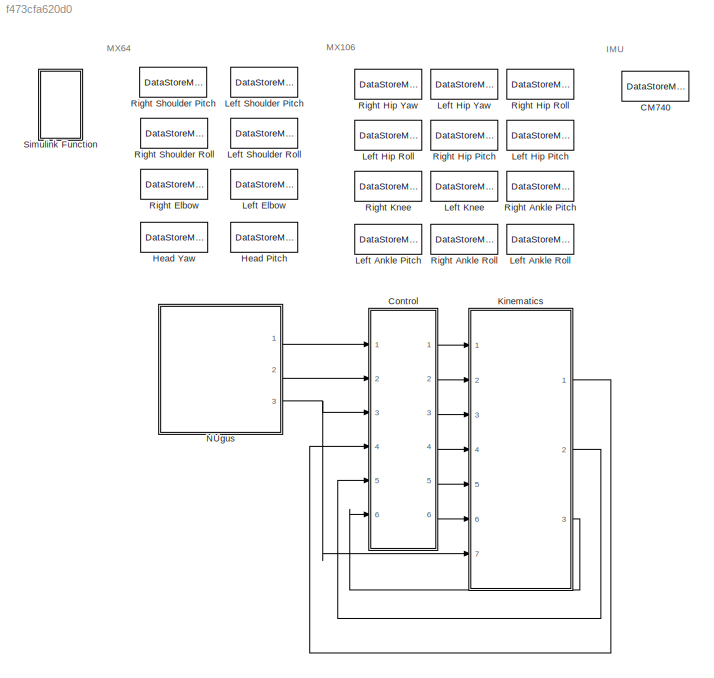
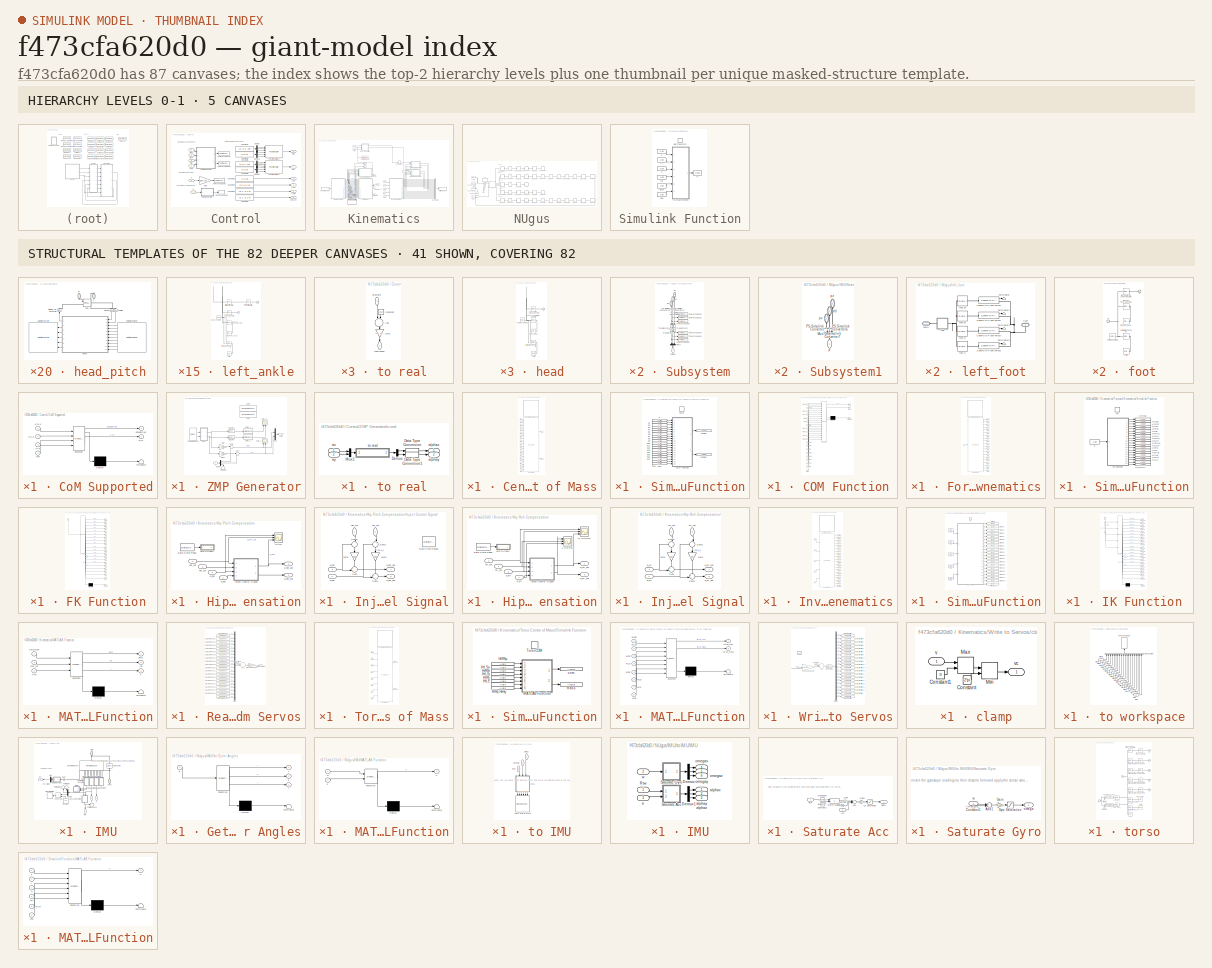
[diagram: thumbnail index - top-2 hierarchy levels (5 canvases) + 41 structural-template representatives of the remaining 82 canvases]
MODEL slx_f473cfa620d0
KIND model
CONFIG AbsTol = auto
CONFIG EnableMultiTasking = off
CONFIG FixedStep = auto
CONFIG MaxStep = 2e-04
CONFIG MinStep = auto
CONFIG RelTol = 1e-2
CONFIG SampleTimeConstraint = Unconstrained
CONFIG Solver = VariableStepAuto
CONFIG SolverName = VariableStepAuto
CONFIG StartTime = 0.0
CONFIG StopTime = inf
BLOCK [DataStoreMemory] CM740
  DataStoreName = CM740
  InitialValue = CM740_default
  OutDataTypeStr = Bus: CM740_bus
  ReadBeforeWriteMsg = warning
  ShowAdditionalParam = off
  SignalType = real
  VectorParams1D = off
  WriteAfterReadMsg = warning
  WriteAfterWriteMsg = warning
BLOCK [SubSystem] Control
  Ports = [6, 6]
  RequestExecContextInheritance = off
BLOCK [SubSystem] Control/CoM Supported
  ErrorFcn = Stateflow.Translate.translate
  PermitHierarchicalResolution = ExplicitOnly
  Ports = [4, 2]
  RequestExecContextInheritance = off
  SFBlockType = MATLAB Function
  TreatAsAtomicUnit = on
BLOCK [Demux] Control/CoM Supported/ Demux 
  Outputs = 1
  Ports = [1, 1]
BLOCK [S-Function] Control/CoM Supported/ SFunction 
  EnableBusSupport = off
  FunctionName = sf_sfun
  PortCounts = [4 3]
  Ports = [4, 3]
  SFcnIsStateOwnerBlock = off
  SFunctionDeploymentMode = off
  Tag = Stateflow S-Function 12
BLOCK [Terminator] Control/CoM Supported/ Terminator 
BLOCK [Inport] Control/CoM Supported/HtLAr
  IconDisplay = Port number
  Port = 2
BLOCK [Inport] Control/CoM Supported/HtRAr
  IconDisplay = Port number
BLOCK [Inport] Control/CoM Supported/Htw
  IconDisplay = Port number
  Port = 3
BLOCK [Inport] Control/CoM Supported/com
  IconDisplay = Port number
  Port = 4
BLOCK [Outport] Control/CoM Supported/isSupported
  IconDisplay = Port number
  VectorParamsAs1DForOutWhenUnconnected = off
BLOCK [Outport] Control/CoM Supported/p_ch
  IconDisplay = Port number
  Port = 2
  VectorParamsAs1DForOutWhenUnconnected = off
BLOCK [Constant] Control/Constant1
  Value = [0 -0.1 -z0]
BLOCK [Constant] Control/Constant2
  Value = [1 0 0]
BLOCK [Constant] Control/Constant3
  Value = [0.2 0.2 0]
BLOCK [Constant] Control/Constant4
  Value = [0.2 -0.2 0]
BLOCK [Constant] Control/Constant5
  Value = [0.2 -0.1 0]
BLOCK [Constant] Control/Constant7
  Value = [0 0 0]
BLOCK [Constant] Control/Constant8
  Value = [0 0.1 -z0]
BLOCK [Constant] Control/Constant9
  Value = [0 0 0]
BLOCK [Demux] Control/Demux
  DisplayOption = bar
  Outputs = 3
  Ports = [1, 3]
BLOCK [Demux] Control/Demux1
  DisplayOption = bar
  Outputs = 3
  Ports = [1, 3]
BLOCK [Demux] Control/Demux2
  DisplayOption = bar
  Outputs = 3
  Ports = [1, 3]
BLOCK [Demux] Control/Demux3
  DisplayOption = bar
  Outputs = 3
  Ports = [1, 3]
BLOCK [FunctionCaller] Control/Function Caller2
  FunctionPrototype = H = getTransform(x,y,z,roll,pitch,yaw)
  InputArgumentSpecifications = <Enter example>
  OutputArgumentSpecifications = <Enter example>
  Ports = [6, 1]
BLOCK [FunctionCaller] Control/Function Caller3
  FunctionPrototype = H = getTransform(x,y,z,roll,pitch,yaw)
  InputArgumentSpecifications = <Enter example>
  OutputArgumentSpecifications = <Enter example>
  Ports = [6, 1]
BLOCK [Gain] Control/Gain
  Gain = sqrt(z0/g)
  OutDataTypeStr = Inherit: Inherit via internal rule
  ParamDataTypeStr = Inherit: Inherit via internal rule
  SaturateOnIntegerOverflow = off
BLOCK [Inport] Control/HtLAr
  IconDisplay = Port number
  Port = 6
BLOCK [Outport] Control/HtLl
  IconDisplay = Port number
  Port = 4
  VectorParamsAs1DForOutWhenUnconnected = off
BLOCK [Inport] Control/HtRAr
  IconDisplay = Port number
  Port = 5
BLOCK [Outport] Control/HtRl
  IconDisplay = Port number
  Port = 3
  VectorParamsAs1DForOutWhenUnconnected = off
BLOCK [Inport] Control/Htw
  IconDisplay = Port number
  Port = 3
BLOCK [ToWorkspace] Control/To Workspace1
  FixptAsFi = on
  MaxDataPoints = inf
  Ports = [1]
  SampleTime = sample_time
  SaveFormat = Timeseries
  VariableName = zmp
BLOCK [ToWorkspace] Control/To Workspace2
  FixptAsFi = on
  MaxDataPoints = inf
  Ports = [1]
  SampleTime = sample_time
  SaveFormat = Timeseries
  VariableName = capture_step
BLOCK [ToWorkspace] Control/To Workspace3
  FixptAsFi = on
  MaxDataPoints = inf
  Ports = [1]
  SampleTime = sample_time
  SaveFormat = Timeseries
  VariableName = support_hull
BLOCK [ToWorkspace] Control/To Workspace4
  FixptAsFi = on
  MaxDataPoints = inf
  Ports = [1]
  SampleTime = sample_time
  SaveFormat = Timeseries
  VariableName = is_supported
BLOCK [SubSystem] Control/ZMP Generator
  Ports = [1, 1]
  RequestExecContextInheritance = off
BLOCK [DataStoreRead] Control/ZMP Generator/Data Store Read1
  DataStoreElements = CM740.acc_x#CM740.acc_y
  DataStoreName = CM740
  Ports = [0, 2]
  SampleTime = Ts
BLOCK [Demux] Control/ZMP Generator/Demux
  DisplayOption = bar
  Outputs = 3
  Ports = [1, 3]
BLOCK [Gain] Control/ZMP Generator/Gain
  Gain = -z0/g
  OutDataTypeStr = Inherit: Inherit via internal rule
  ParamDataTypeStr = Inherit: Inherit via internal rule
  SaturateOnIntegerOverflow = off
BLOCK [Gain] Control/ZMP Generator/Gain1
  Gain = -z0/g
  OutDataTypeStr = Inherit: Inherit via internal rule
  ParamDataTypeStr = Inherit: Inherit via internal rule
  SaturateOnIntegerOverflow = off
BLOCK [Reference] Control/ZMP Generator/Get Jerk X  REF=simulink/Discrete/Discrete Derivative
  Ports = [1, 1]
  SourceBlock = simulink/Discrete/Discrete Derivative
  SourceProductBaseCode = SL
  SourceProductName = Simulink
  SourceType = Discrete Derivative
BLOCK [Reference] Control/ZMP Generator/Get Jerk Y  REF=simulink/Discrete/Discrete Derivative
  Ports = [1, 1]
  SourceBlock = simulink/Discrete/Discrete Derivative
  SourceProductBaseCode = SL
  SourceProductName = Simulink
  SourceType = Discrete Derivative
BLOCK [Mux] Control/ZMP Generator/Mux2
  DisplayOption = bar
  Inputs = 2
  Ports = [2, 1]
BLOCK [Sum] Control/ZMP Generator/Sum
  IconShape = round
  InputSameDT = off
  Inputs = |++
  OutDataTypeStr = Inherit: Inherit via internal rule
  Ports = [2, 1]
  SaturateOnIntegerOverflow = off
BLOCK [Sum] Control/ZMP Generator/Sum1
  IconShape = round
  InputSameDT = off
  Inputs = |++
  OutDataTypeStr = Inherit: Inherit via internal rule
  Ports = [2, 1]
  SaturateOnIntegerOverflow = off
BLOCK [Terminator] Control/ZMP Generator/Terminator
BLOCK [DiscreteStateSpace] Control/ZMP Generator/ZMPx
  A = [1 Ts Ts^2/2; 0 1 Ts; 0 0 1]
  B = [Ts^3/6; Ts^2/2; Ts]
  C = [1 0 -z0/g]
  Commented = on
  D = 0
  SampleTime = Ts
BLOCK [StateSpace] Control/ZMP Generator/ZMPx_c
  A = [0 1 0; 0 0 1; 0 0 0]
  B = [0;0;1]
  C = [1 0 -z0/g]
  D = [0]
  InitialCondition = 0
  Ports = [1, 1]
BLOCK [DiscreteStateSpace] Control/ZMP Generator/ZMPy
  A = [1 Ts Ts^2/2; 0 1 Ts; 0 0 1]
  B = [Ts^3/6; Ts^2/2; Ts]
  C = [1 0 -z0/g]
  Commented = on
  D = 0
  SampleTime = Ts
BLOCK [StateSpace] Control/ZMP Generator/ZMPy_c
  A = [0 1 0; 0 0 1; 0 0 0]
  B = [0;0;1]
  C = [1 0 -z0/g]
  D = [0]
  InitialCondition = 0
  Ports = [1, 1]
BLOCK [Inport] Control/ZMP Generator/p
  IconDisplay = Port number
BLOCK [SubSystem] Control/ZMP Generator/to real
  Ports = [2, 2]
  RequestExecContextInheritance = off
BLOCK [DataTypeConversion] Control/ZMP Generator/to real/Data Type Conversion
  OutDataTypeStr = double
  RndMeth = Floor
  SaturateOnIntegerOverflow = off
BLOCK [DataTypeConversion] Control/ZMP Generator/to real/Data Type Conversion1
  OutDataTypeStr = double
  RndMeth = Floor
  SaturateOnIntegerOverflow = off
BLOCK [Demux] Control/ZMP Generator/to real/Demux
  DisplayOption = bar
  Outputs = 2
  Ports = [1, 2]
BLOCK [Mux] Control/ZMP Generator/to real/Mux2
  DisplayOption = bar
  Inputs = 2
  Ports = [2, 1]
BLOCK [Outport] Control/ZMP Generator/to real/alphax
  IconDisplay = Port number
  VectorParamsAs1DForOutWhenUnconnected = off
BLOCK [Outport] Control/ZMP Generator/to real/alphay
  IconDisplay = Port number
  Port = 2
  VectorParamsAs1DForOutWhenUnconnected = off
BLOCK [Inport] Control/ZMP Generator/to real/ax
  IconDisplay = Port number
BLOCK [Inport] Control/ZMP Generator/to real/ay
  IconDisplay = Port number
  Port = 2
BLOCK [SubSystem] Control/ZMP Generator/to real/to real
  Ports = [1, 1]
  RequestExecContextInheritance = off
BLOCK [Sum] Control/ZMP Generator/to real/to real/Add
  InputSameDT = off
  Inputs = +-
  OutDataTypeStr = Inherit: Inherit via internal rule
  Ports = [2, 1]
  SaturateOnIntegerOverflow = off
BLOCK [Constant] Control/ZMP Generator/to real/to real/Constant
  Value = 512
BLOCK [Gain] Control/ZMP Generator/to real/to real/Gain
  Gain = (4 * 9.80657) / 512
  OutDataTypeStr = Inherit: Inherit via internal rule
  ParamDataTypeStr = Inherit: Inherit via internal rule
  SaturateOnIntegerOverflow = off
BLOCK [Outport] Control/ZMP Generator/to real/to real/continuous
  IconDisplay = Port number
  VectorParamsAs1DForOutWhenUnconnected = off
BLOCK [Inport] Control/ZMP Generator/to real/to real/discrete
  IconDisplay = Port number
BLOCK [Outport] Control/ZMP Generator/zmp
  IconDisplay = Port number
  VectorParamsAs1DForOutWhenUnconnected = off
BLOCK [Scope] Control/ZMP Generator/zmp_c
  Floating = off
  NumInputPorts = 2
  Ports = [2]
  ScopeSpecificationString = Simulink.scopes.TimeScopeBlockCfg('CurrentConfiguration', extmgr.ConfigurationSet(extmgr.Configuration('Core','General UI',true),extmgr.Configuration('Core','Source UI',true),extmgr.Configuration('Sources','WiredSimulink',true,'DataLoggingVariableName','ScopeData1'),extmgr.Configuration('Visuals','Time Domain',true,'SerializedDisplays',{struct('MinYLimReal','-0.37016','MaxYLimReal','1.1266','YLabe...<+1420ch>
BLOCK [Scope] Control/ZMP Generator/zmp_ss
  Floating = off
  NumInputPorts = 2
  Ports = [2]
  ScopeSpecificationString = Simulink.scopes.TimeScopeBlockCfg('CurrentConfiguration', extmgr.ConfigurationSet(extmgr.Configuration('Core','General UI',true),extmgr.Configuration('Core','Source UI',true),extmgr.Configuration('Sources','WiredSimulink',true,'DataLoggingVariableName','ScopeData3'),extmgr.Configuration('Visuals','Time Domain',true,'SerializedDisplays',{struct('MinYLimReal','-0.0469','MaxYLimReal','0.03838','YLabe...<+1397ch>
BLOCK [Inport] Control/com
  IconDisplay = Port number
  Port = 4
BLOCK [Outport] Control/com_ref
  IconDisplay = Port number
  Port = 6
  VectorParamsAs1DForOutWhenUnconnected = off
BLOCK [Inport] Control/p
  IconDisplay = Port number
BLOCK [Outport] Control/rCP
  IconDisplay = Port number
  Port = 5
  VectorParamsAs1DForOutWhenUnconnected = off
BLOCK [Outport] Control/rTLh
  IconDisplay = Port number
  Port = 2
  VectorParamsAs1DForOutWhenUnconnected = off
BLOCK [Outport] Control/rTRh
  IconDisplay = Port number
  VectorParamsAs1DForOutWhenUnconnected = off
BLOCK [Inport] Control/v
  IconDisplay = Port number
  Port = 2
BLOCK [DataStoreMemory] Head Pitch
  DataStoreName = MX64_ID19
  InitialValue = MX64_default
  OutDataTypeStr = Bus: MX64_bus
  ReadBeforeWriteMsg = warning
  ShowAdditionalParam = off
  SignalType = real
  VectorParams1D = off
  WriteAfterReadMsg = warning
  WriteAfterWriteMsg = warning
BLOCK [DataStoreMemory] Head Yaw
  DataStoreName = MX64_ID18
  InitialValue = MX64_default
  OutDataTypeStr = Bus: MX64_bus
  ReadBeforeWriteMsg = warning
  ShowAdditionalParam = off
  SignalType = real
  VectorParams1D = off
  WriteAfterReadMsg = warning
  WriteAfterWriteMsg = warning
BLOCK [SubSystem] Kinematics
  Ports = [7, 3]
  RequestExecContextInheritance = off
BLOCK [BusCreator] Kinematics/Bus Creator2
  DisplayOption = bar
  InheritFromInputs = on
  Inputs = 20
  Ports = [20, 1]
BLOCK [SubSystem] Kinematics/Centre of Mass
  Ports = [20, 2]
  RequestExecContextInheritance = off
BLOCK [FunctionCaller] Kinematics/Centre of Mass/Function Caller
  FunctionPrototype = [com,mass] = COM(HtRSp,HtLSp,HtRSr,HtLSr,HtRE,HtLE,HtRHy,HtLHy,HtRHr,HtLHr,HtRHp,HtLHp,HtRK,HtLK,HtRAp,HtLAp,HtRAr,HtLAr,HtHy,HtHp)
  InputArgumentSpecifications = <Enter example>
  OutputArgumentSpecifications = <Enter example>
  Ports = [20, 2]
BLOCK [Inport] Kinematics/Centre of Mass/HtHp
  IconDisplay = Port number
  Port = 20
BLOCK [Inport] Kinematics/Centre of Mass/HtHy
  IconDisplay = Port number
  Port = 19
BLOCK [Inport] Kinematics/Centre of Mass/HtLAp
  IconDisplay = Port number
  Port = 16
BLOCK [Inport] Kinematics/Centre of Mass/HtLAr
  IconDisplay = Port number
  Port = 18
BLOCK [Inport] Kinematics/Centre of Mass/HtLE
  IconDisplay = Port number
  Port = 6
BLOCK [Inport] Kinematics/Centre of Mass/HtLHp
  IconDisplay = Port number
  Port = 12
BLOCK [Inport] Kinematics/Centre of Mass/HtLHr
  IconDisplay = Port number
  Port = 10
BLOCK [Inport] Kinematics/Centre of Mass/HtLHy
  IconDisplay = Port number
  Port = 8
BLOCK [Inport] Kinematics/Centre of Mass/HtLK
  IconDisplay = Port number
  Port = 14
BLOCK [Inport] Kinematics/Centre of Mass/HtLSp
  IconDisplay = Port number
  Port = 2
BLOCK [Inport] Kinematics/Centre of Mass/HtLSr
  IconDisplay = Port number
  Port = 4
BLOCK [Inport] Kinematics/Centre of Mass/HtRAp
  IconDisplay = Port number
  Port = 15
BLOCK [Inport] Kinematics/Centre of Mass/HtRAr
  IconDisplay = Port number
  Port = 17
BLOCK [Inport] Kinematics/Centre of Mass/HtRE
  IconDisplay = Port number
  Port = 5
BLOCK [Inport] Kinematics/Centre of Mass/HtRHp
  IconDisplay = Port number
  Port = 11
BLOCK [Inport] Kinematics/Centre of Mass/HtRHr
  IconDisplay = Port number
  Port = 9
BLOCK [Inport] Kinematics/Centre of Mass/HtRHy
  IconDisplay = Port number
  Port = 7
BLOCK [Inport] Kinematics/Centre of Mass/HtRK
  IconDisplay = Port number
  Port = 13
BLOCK [Inport] Kinematics/Centre of Mass/HtRSp
  IconDisplay = Port number
BLOCK [Inport] Kinematics/Centre of Mass/HtRSr
  IconDisplay = Port number
  Port = 3
BLOCK [SubSystem] Kinematics/Centre of Mass/Simulink Function
  Ports = [0, 0, 0, 1]
  RequestExecContextInheritance = off
  TreatAsAtomicUnit = on
BLOCK [TriggerPort] Kinematics/Centre of Mass/Simulink Function/COM
  FunctionName = COM
  FunctionVisibility = scoped
  IsSimulinkFunction = on
  Ports = []
  StatesWhenEnabling = held
  TriggerType = function-call
  VariantControl = (inherit)
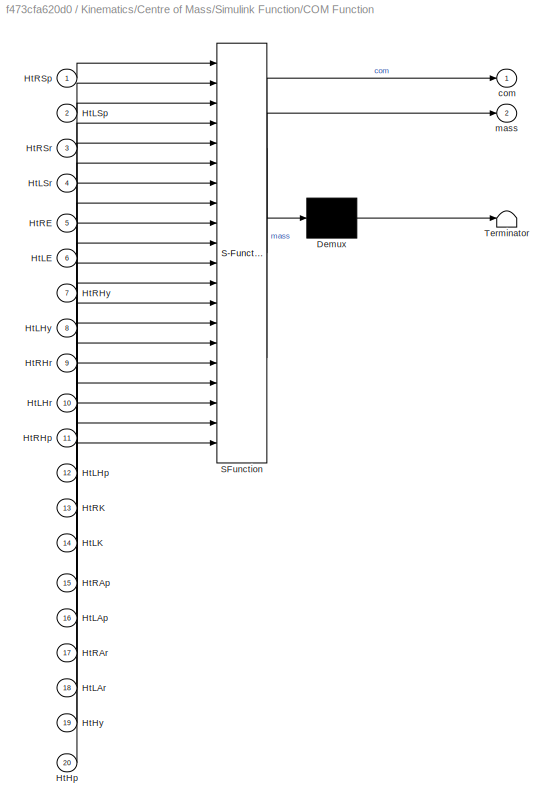
BLOCK [SubSystem] Kinematics/Centre of Mass/Simulink Function/COM Function
  ErrorFcn = Stateflow.Translate.translate
  PermitHierarchicalResolution = ExplicitOnly
  Ports = [20, 2]
  RequestExecContextInheritance = off
  SFBlockType = MATLAB Function
  TreatAsAtomicUnit = on
BLOCK [Demux] Kinematics/Centre of Mass/Simulink Function/COM Function/ Demux 
  Outputs = 1
  Ports = [1, 1]
BLOCK [S-Function] Kinematics/Centre of Mass/Simulink Function/COM Function/ SFunction 
  EnableBusSupport = off
  FunctionName = sf_sfun
  PortCounts = [20 3]
  Ports = [20, 3]
  SFcnIsStateOwnerBlock = off
  SFunctionDeploymentMode = off
  Tag = Stateflow S-Function 2
BLOCK [Terminator] Kinematics/Centre of Mass/Simulink Function/COM Function/ Terminator 
BLOCK [Inport] Kinematics/Centre of Mass/Simulink Function/COM Function/HtHp
  IconDisplay = Port number
  Port = 20
BLOCK [Inport] Kinematics/Centre of Mass/Simulink Function/COM Function/HtHy
  IconDisplay = Port number
  Port = 19
BLOCK [Inport] Kinematics/Centre of Mass/Simulink Function/COM Function/HtLAp
  IconDisplay = Port number
  Port = 16
BLOCK [Inport] Kinematics/Centre of Mass/Simulink Function/COM Function/HtLAr
  IconDisplay = Port number
  Port = 18
BLOCK [Inport] Kinematics/Centre of Mass/Simulink Function/COM Function/HtLE
  IconDisplay = Port number
  Port = 6
BLOCK [Inport] Kinematics/Centre of Mass/Simulink Function/COM Function/HtLHp
  IconDisplay = Port number
  Port = 12
BLOCK [Inport] Kinematics/Centre of Mass/Simulink Function/COM Function/HtLHr
  IconDisplay = Port number
  Port = 10
BLOCK [Inport] Kinematics/Centre of Mass/Simulink Function/COM Function/HtLHy
  IconDisplay = Port number
  Port = 8
BLOCK [Inport] Kinematics/Centre of Mass/Simulink Function/COM Function/HtLK
  IconDisplay = Port number
  Port = 14
BLOCK [Inport] Kinematics/Centre of Mass/Simulink Function/COM Function/HtLSp
  IconDisplay = Port number
  Port = 2
BLOCK [Inport] Kinematics/Centre of Mass/Simulink Function/COM Function/HtLSr
  IconDisplay = Port number
  Port = 4
BLOCK [Inport] Kinematics/Centre of Mass/Simulink Function/COM Function/HtRAp
  IconDisplay = Port number
  Port = 15
BLOCK [Inport] Kinematics/Centre of Mass/Simulink Function/COM Function/HtRAr
  IconDisplay = Port number
  Port = 17
BLOCK [Inport] Kinematics/Centre of Mass/Simulink Function/COM Function/HtRE
  IconDisplay = Port number
  Port = 5
BLOCK [Inport] Kinematics/Centre of Mass/Simulink Function/COM Function/HtRHp
  IconDisplay = Port number
  Port = 11
BLOCK [Inport] Kinematics/Centre of Mass/Simulink Function/COM Function/HtRHr
  IconDisplay = Port number
  Port = 9
BLOCK [Inport] Kinematics/Centre of Mass/Simulink Function/COM Function/HtRHy
  IconDisplay = Port number
  Port = 7
BLOCK [Inport] Kinematics/Centre of Mass/Simulink Function/COM Function/HtRK
  IconDisplay = Port number
  Port = 13
BLOCK [Inport] Kinematics/Centre of Mass/Simulink Function/COM Function/HtRSp
  IconDisplay = Port number
BLOCK [Inport] Kinematics/Centre of Mass/Simulink Function/COM Function/HtRSr
  IconDisplay = Port number
  Port = 3
BLOCK [Outport] Kinematics/Centre of Mass/Simulink Function/COM Function/com
  IconDisplay = Port number
  VectorParamsAs1DForOutWhenUnconnected = off
BLOCK [Outport] Kinematics/Centre of Mass/Simulink Function/COM Function/mass
  IconDisplay = Port number
  Port = 2
  VectorParamsAs1DForOutWhenUnconnected = off
BLOCK [ArgOut] Kinematics/Centre of Mass/Simulink Function/HtRSp
  ArgumentName = com
  DisableCoverage = on
  PortDimensions = [1 3]
BLOCK [ArgOut] Kinematics/Centre of Mass/Simulink Function/HtRSp1
  ArgumentName = mass
  DisableCoverage = on
  Port = 2
BLOCK [ArgIn] Kinematics/Centre of Mass/Simulink Function/p
  ArgumentName = HtRSp
  DisableCoverage = on
  PortDimensions = [4 4]
BLOCK [ArgIn] Kinematics/Centre of Mass/Simulink Function/p1
  ArgumentName = HtLSp
  DisableCoverage = on
  Port = 2
  PortDimensions = [4 4]
BLOCK [ArgIn] Kinematics/Centre of Mass/Simulink Function/p10
  ArgumentName = HtRHp
  DisableCoverage = on
  Port = 11
  PortDimensions = [4 4]
BLOCK [ArgIn] Kinematics/Centre of Mass/Simulink Function/p11
  ArgumentName = HtLHp
  DisableCoverage = on
  Port = 12
  PortDimensions = [4 4]
BLOCK [ArgIn] Kinematics/Centre of Mass/Simulink Function/p12
  ArgumentName = HtRK
  DisableCoverage = on
  Port = 13
  PortDimensions = [4 4]
BLOCK [ArgIn] Kinematics/Centre of Mass/Simulink Function/p13
  ArgumentName = HtLK
  DisableCoverage = on
  Port = 14
  PortDimensions = [4 4]
BLOCK [ArgIn] Kinematics/Centre of Mass/Simulink Function/p14
  ArgumentName = HtRAp
  DisableCoverage = on
  Port = 15
  PortDimensions = [4 4]
BLOCK [ArgIn] Kinematics/Centre of Mass/Simulink Function/p15
  ArgumentName = HtLAp
  DisableCoverage = on
  Port = 16
  PortDimensions = [4 4]
BLOCK [ArgIn] Kinematics/Centre of Mass/Simulink Function/p16
  ArgumentName = HtRAr
  DisableCoverage = on
  Port = 17
  PortDimensions = [4 4]
BLOCK [ArgIn] Kinematics/Centre of Mass/Simulink Function/p17
  ArgumentName = HtLAr
  DisableCoverage = on
  Port = 18
  PortDimensions = [4 4]
BLOCK [ArgIn] Kinematics/Centre of Mass/Simulink Function/p18
  ArgumentName = HtHy
  DisableCoverage = on
  Port = 19
  PortDimensions = [4 4]
BLOCK [ArgIn] Kinematics/Centre of Mass/Simulink Function/p19
  ArgumentName = HtHp
  DisableCoverage = on
  Port = 20
  PortDimensions = [4 4]
BLOCK [ArgIn] Kinematics/Centre of Mass/Simulink Function/p2
  ArgumentName = HtRSr
  DisableCoverage = on
  Port = 3
  PortDimensions = [4 4]
BLOCK [ArgIn] Kinematics/Centre of Mass/Simulink Function/p3
  ArgumentName = HtLSr
  DisableCoverage = on
  Port = 4
  PortDimensions = [4 4]
BLOCK [ArgIn] Kinematics/Centre of Mass/Simulink Function/p4
  ArgumentName = HtRE
  DisableCoverage = on
  Port = 5
  PortDimensions = [4 4]
BLOCK [ArgIn] Kinematics/Centre of Mass/Simulink Function/p5
  ArgumentName = HtLE
  DisableCoverage = on
  Port = 6
  PortDimensions = [4 4]
BLOCK [ArgIn] Kinematics/Centre of Mass/Simulink Function/p6
  ArgumentName = HtRHy
  DisableCoverage = on
  Port = 7
  PortDimensions = [4 4]
BLOCK [ArgIn] Kinematics/Centre of Mass/Simulink Function/p7
  ArgumentName = HtLHy
  DisableCoverage = on
  Port = 8
  PortDimensions = [4 4]
BLOCK [ArgIn] Kinematics/Centre of Mass/Simulink Function/p8
  ArgumentName = HtRHr
  DisableCoverage = on
  Port = 9
  PortDimensions = [4 4]
BLOCK [ArgIn] Kinematics/Centre of Mass/Simulink Function/p9
  ArgumentName = HtLHr
  DisableCoverage = on
  Port = 10
  PortDimensions = [4 4]
BLOCK [Outport] Kinematics/Centre of Mass/com
  IconDisplay = Port number
  VectorParamsAs1DForOutWhenUnconnected = off
BLOCK [Outport] Kinematics/Centre of Mass/mass
  IconDisplay = Port number
  Port = 2
  VectorParamsAs1DForOutWhenUnconnected = off
BLOCK [SubSystem] Kinematics/Forward Kinematics
  Ports = [1, 20]
  RequestExecContextInheritance = off
BLOCK [FunctionCaller] Kinematics/Forward Kinematics/Function Caller
  FunctionPrototype = [HtRSp,HtLSp,HtRSr,HtLSr,HtRE,HtLE,HtRHy,HtLHy,HtRHr,HtLHr,HtRHp,HtLHp,HtRK,HtLK,HtRAp,HtLAp,HtRAr,HtLAr,HtHy,HtHp] = FK(p)
  InputArgumentSpecifications = double([1 1 1 1 1 1 1 1 1 1 1 1 1 1 1 1 1 1 1 1])
  OutputArgumentSpecifications = <Enter example>
  Ports = [1, 20]
BLOCK [Outport] Kinematics/Forward Kinematics/HtHp
  IconDisplay = Port number
  Port = 20
  VectorParamsAs1DForOutWhenUnconnected = off
BLOCK [Outport] Kinematics/Forward Kinematics/HtHy
  IconDisplay = Port number
  Port = 19
  VectorParamsAs1DForOutWhenUnconnected = off
BLOCK [Outport] Kinematics/Forward Kinematics/HtLAp
  IconDisplay = Port number
  Port = 16
  VectorParamsAs1DForOutWhenUnconnected = off
BLOCK [Outport] Kinematics/Forward Kinematics/HtLAr
  IconDisplay = Port number
  Port = 18
  VectorParamsAs1DForOutWhenUnconnected = off
BLOCK [Outport] Kinematics/Forward Kinematics/HtLE
  IconDisplay = Port number
  Port = 6
  VectorParamsAs1DForOutWhenUnconnected = off
BLOCK [Outport] Kinematics/Forward Kinematics/HtLHp
  IconDisplay = Port number
  Port = 12
  VectorParamsAs1DForOutWhenUnconnected = off
BLOCK [Outport] Kinematics/Forward Kinematics/HtLHr
  IconDisplay = Port number
  Port = 10
  VectorParamsAs1DForOutWhenUnconnected = off
BLOCK [Outport] Kinematics/Forward Kinematics/HtLHy
  IconDisplay = Port number
  Port = 8
  VectorParamsAs1DForOutWhenUnconnected = off
BLOCK [Outport] Kinematics/Forward Kinematics/HtLK
  IconDisplay = Port number
  Port = 14
  VectorParamsAs1DForOutWhenUnconnected = off
BLOCK [Outport] Kinematics/Forward Kinematics/HtLSp
  IconDisplay = Port number
  Port = 2
  VectorParamsAs1DForOutWhenUnconnected = off
BLOCK [Outport] Kinematics/Forward Kinematics/HtLSr
  IconDisplay = Port number
  Port = 4
  VectorParamsAs1DForOutWhenUnconnected = off
BLOCK [Outport] Kinematics/Forward Kinematics/HtRAp
  IconDisplay = Port number
  Port = 15
  VectorParamsAs1DForOutWhenUnconnected = off
BLOCK [Outport] Kinematics/Forward Kinematics/HtRAr
  IconDisplay = Port number
  Port = 17
  VectorParamsAs1DForOutWhenUnconnected = off
BLOCK [Outport] Kinematics/Forward Kinematics/HtRE
  IconDisplay = Port number
  Port = 5
  VectorParamsAs1DForOutWhenUnconnected = off
BLOCK [Outport] Kinematics/Forward Kinematics/HtRHp
  IconDisplay = Port number
  Port = 11
  VectorParamsAs1DForOutWhenUnconnected = off
BLOCK [Outport] Kinematics/Forward Kinematics/HtRHr
  IconDisplay = Port number
  Port = 9
  VectorParamsAs1DForOutWhenUnconnected = off
BLOCK [Outport] Kinematics/Forward Kinematics/HtRHy
  IconDisplay = Port number
  Port = 7
  VectorParamsAs1DForOutWhenUnconnected = off
BLOCK [Outport] Kinematics/Forward Kinematics/HtRK
  IconDisplay = Port number
  Port = 13
  VectorParamsAs1DForOutWhenUnconnected = off
BLOCK [Outport] Kinematics/Forward Kinematics/HtRSp
  IconDisplay = Port number
  VectorParamsAs1DForOutWhenUnconnected = off
BLOCK [Outport] Kinematics/Forward Kinematics/HtRSr
  IconDisplay = Port number
  Port = 3
  VectorParamsAs1DForOutWhenUnconnected = off
BLOCK [SubSystem] Kinematics/Forward Kinematics/Simulink Function
  Ports = [0, 0, 0, 1]
  RequestExecContextInheritance = off
  TreatAsAtomicUnit = on
BLOCK [TriggerPort] Kinematics/Forward Kinematics/Simulink Function/FK
  FunctionName = FK
  FunctionVisibility = scoped
  IsSimulinkFunction = on
  Ports = []
  StatesWhenEnabling = held
  TriggerType = function-call
  VariantControl = (inherit)
BLOCK [SubSystem] Kinematics/Forward Kinematics/Simulink Function/FK Function
  ErrorFcn = Stateflow.Translate.translate
  PermitHierarchicalResolution = ExplicitOnly
  Ports = [1, 20]
  RequestExecContextInheritance = off
  SFBlockType = MATLAB Function
  TreatAsAtomicUnit = on
BLOCK [Demux] Kinematics/Forward Kinematics/Simulink Function/FK Function/ Demux 
  Outputs = 1
  Ports = [1, 1]
BLOCK [S-Function] Kinematics/Forward Kinematics/Simulink Function/FK Function/ SFunction 
  EnableBusSupport = off
  FunctionName = sf_sfun
  PortCounts = [1 21]
  Ports = [1, 21]
  SFcnIsStateOwnerBlock = off
  SFunctionDeploymentMode = off
  Tag = Stateflow S-Function 1
BLOCK [Terminator] Kinematics/Forward Kinematics/Simulink Function/FK Function/ Terminator 
BLOCK [Outport] Kinematics/Forward Kinematics/Simulink Function/FK Function/HtHp
  IconDisplay = Port number
  Port = 20
  VectorParamsAs1DForOutWhenUnconnected = off
BLOCK [Outport] Kinematics/Forward Kinematics/Simulink Function/FK Function/HtHy
  IconDisplay = Port number
  Port = 19
  VectorParamsAs1DForOutWhenUnconnected = off
BLOCK [Outport] Kinematics/Forward Kinematics/Simulink Function/FK Function/HtLAp
  IconDisplay = Port number
  Port = 16
  VectorParamsAs1DForOutWhenUnconnected = off
BLOCK [Outport] Kinematics/Forward Kinematics/Simulink Function/FK Function/HtLAr
  IconDisplay = Port number
  Port = 18
  VectorParamsAs1DForOutWhenUnconnected = off
BLOCK [Outport] Kinematics/Forward Kinematics/Simulink Function/FK Function/HtLE
  IconDisplay = Port number
  Port = 6
  VectorParamsAs1DForOutWhenUnconnected = off
BLOCK [Outport] Kinematics/Forward Kinematics/Simulink Function/FK Function/HtLHp
  IconDisplay = Port number
  Port = 12
  VectorParamsAs1DForOutWhenUnconnected = off
BLOCK [Outport] Kinematics/Forward Kinematics/Simulink Function/FK Function/HtLHr
  IconDisplay = Port number
  Port = 10
  VectorParamsAs1DForOutWhenUnconnected = off
BLOCK [Outport] Kinematics/Forward Kinematics/Simulink Function/FK Function/HtLHy
  IconDisplay = Port number
  Port = 8
  VectorParamsAs1DForOutWhenUnconnected = off
BLOCK [Outport] Kinematics/Forward Kinematics/Simulink Function/FK Function/HtLK
  IconDisplay = Port number
  Port = 14
  VectorParamsAs1DForOutWhenUnconnected = off
BLOCK [Outport] Kinematics/Forward Kinematics/Simulink Function/FK Function/HtLSp
  IconDisplay = Port number
  Port = 2
  VectorParamsAs1DForOutWhenUnconnected = off
BLOCK [Outport] Kinematics/Forward Kinematics/Simulink Function/FK Function/HtLSr
  IconDisplay = Port number
  Port = 4
  VectorParamsAs1DForOutWhenUnconnected = off
BLOCK [Outport] Kinematics/Forward Kinematics/Simulink Function/FK Function/HtRAp
  IconDisplay = Port number
  Port = 15
  VectorParamsAs1DForOutWhenUnconnected = off
BLOCK [Outport] Kinematics/Forward Kinematics/Simulink Function/FK Function/HtRAr
  IconDisplay = Port number
  Port = 17
  VectorParamsAs1DForOutWhenUnconnected = off
BLOCK [Outport] Kinematics/Forward Kinematics/Simulink Function/FK Function/HtRE
  IconDisplay = Port number
  Port = 5
  VectorParamsAs1DForOutWhenUnconnected = off
BLOCK [Outport] Kinematics/Forward Kinematics/Simulink Function/FK Function/HtRHp
  IconDisplay = Port number
  Port = 11
  VectorParamsAs1DForOutWhenUnconnected = off
BLOCK [Outport] Kinematics/Forward Kinematics/Simulink Function/FK Function/HtRHr
  IconDisplay = Port number
  Port = 9
  VectorParamsAs1DForOutWhenUnconnected = off
BLOCK [Outport] Kinematics/Forward Kinematics/Simulink Function/FK Function/HtRHy
  IconDisplay = Port number
  Port = 7
  VectorParamsAs1DForOutWhenUnconnected = off
BLOCK [Outport] Kinematics/Forward Kinematics/Simulink Function/FK Function/HtRK
  IconDisplay = Port number
  Port = 13
  VectorParamsAs1DForOutWhenUnconnected = off
BLOCK [Outport] Kinematics/Forward Kinematics/Simulink Function/FK Function/HtRSp
  IconDisplay = Port number
  VectorParamsAs1DForOutWhenUnconnected = off
BLOCK [Outport] Kinematics/Forward Kinematics/Simulink Function/FK Function/HtRSr
  IconDisplay = Port number
  Port = 3
  VectorParamsAs1DForOutWhenUnconnected = off
BLOCK [Inport] Kinematics/Forward Kinematics/Simulink Function/FK Function/p
  IconDisplay = Port number
BLOCK [ArgOut] Kinematics/Forward Kinematics/Simulink Function/HtHp
  ArgumentName = HtHp
  DisableCoverage = on
  Port = 20
  PortDimensions = [4 4]
BLOCK [ArgOut] Kinematics/Forward Kinematics/Simulink Function/HtHy
  ArgumentName = HtHy
  DisableCoverage = on
  Port = 19
  PortDimensions = [4 4]
BLOCK [ArgOut] Kinematics/Forward Kinematics/Simulink Function/HtLAp
  ArgumentName = HtLAp
  DisableCoverage = on
  Port = 16
  PortDimensions = [4 4]
BLOCK [ArgOut] Kinematics/Forward Kinematics/Simulink Function/HtLAr
  ArgumentName = HtLAr
  DisableCoverage = on
  Port = 18
  PortDimensions = [4 4]
BLOCK [ArgOut] Kinematics/Forward Kinematics/Simulink Function/HtLE
  ArgumentName = HtLE
  DisableCoverage = on
  Port = 6
  PortDimensions = [4 4]
BLOCK [ArgOut] Kinematics/Forward Kinematics/Simulink Function/HtLHp
  ArgumentName = HtLHp
  DisableCoverage = on
  Port = 12
  PortDimensions = [4 4]
BLOCK [ArgOut] Kinematics/Forward Kinematics/Simulink Function/HtLHr
  ArgumentName = HtLHr
  DisableCoverage = on
  Port = 10
  PortDimensions = [4 4]
BLOCK [ArgOut] Kinematics/Forward Kinematics/Simulink Function/HtLHy
  ArgumentName = HtLHy
  DisableCoverage = on
  Port = 8
  PortDimensions = [4 4]
BLOCK [ArgOut] Kinematics/Forward Kinematics/Simulink Function/HtLK
  ArgumentName = HtLK
  DisableCoverage = on
  Port = 14
  PortDimensions = [4 4]
BLOCK [ArgOut] Kinematics/Forward Kinematics/Simulink Function/HtLSp
  ArgumentName = HtLSp
  DisableCoverage = on
  Port = 2
  PortDimensions = [4 4]
BLOCK [ArgOut] Kinematics/Forward Kinematics/Simulink Function/HtLSr
  ArgumentName = HtLSr
  DisableCoverage = on
  Port = 4
  PortDimensions = [4 4]
BLOCK [ArgOut] Kinematics/Forward Kinematics/Simulink Function/HtRAp
  ArgumentName = HtRAp
  DisableCoverage = on
  Port = 15
  PortDimensions = [4 4]
BLOCK [ArgOut] Kinematics/Forward Kinematics/Simulink Function/HtRAr
  ArgumentName = HtRAr
  DisableCoverage = on
  Port = 17
  PortDimensions = [4 4]
BLOCK [ArgOut] Kinematics/Forward Kinematics/Simulink Function/HtRE
  ArgumentName = HtRE
  DisableCoverage = on
  Port = 5
  PortDimensions = [4 4]
BLOCK [ArgOut] Kinematics/Forward Kinematics/Simulink Function/HtRHp
  ArgumentName = HtRHp
  DisableCoverage = on
  Port = 11
  PortDimensions = [4 4]
BLOCK [ArgOut] Kinematics/Forward Kinematics/Simulink Function/HtRHr
  ArgumentName = HtRHr
  DisableCoverage = on
  Port = 9
  PortDimensions = [4 4]
BLOCK [ArgOut] Kinematics/Forward Kinematics/Simulink Function/HtRHy
  ArgumentName = HtRHy
  DisableCoverage = on
  Port = 7
  PortDimensions = [4 4]
BLOCK [ArgOut] Kinematics/Forward Kinematics/Simulink Function/HtRK
  ArgumentName = HtRK
  DisableCoverage = on
  Port = 13
  PortDimensions = [4 4]
BLOCK [ArgOut] Kinematics/Forward Kinematics/Simulink Function/HtRSp
  ArgumentName = HtRSp
  DisableCoverage = on
  PortDimensions = [4 4]
BLOCK [ArgOut] Kinematics/Forward Kinematics/Simulink Function/HtRSr
  ArgumentName = HtRSr
  DisableCoverage = on
  Port = 3
  PortDimensions = [4 4]
BLOCK [ArgIn] Kinematics/Forward Kinematics/Simulink Function/p
  ArgumentName = p
  DisableCoverage = on
  PortDimensions = [1 20]
BLOCK [Inport] Kinematics/Forward Kinematics/p
  IconDisplay = Port number
BLOCK [Inport] Kinematics/HTLl
  IconDisplay = Port number
  Port = 4
BLOCK [Inport] Kinematics/HTRl
  IconDisplay = Port number
  Port = 3
BLOCK [SubSystem] Kinematics/Hip Pitch Compensation
  Ports = [4, 2]
  RequestExecContextInheritance = off
BLOCK [DataStoreRead] Kinematics/Hip Pitch Compensation/Data Store Read
  Commented = on
  DataStoreElements = CM740.gyro_x
  DataStoreName = CM740
  Ports = [0, 1]
  SampleTime = sample_time
BLOCK [SubSystem] Kinematics/Hip Pitch Compensation/Inject Control Signal
  Ports = [4, 2]
  RequestExecContextInheritance = off
BLOCK [DataStoreRead] Kinematics/Hip Pitch Compensation/Inject Control Signal/Data Store Read1
  DataStoreElements = CM740.gyro_y
  DataStoreName = CM740
  Ports = [0, 1]
BLOCK [Gain] Kinematics/Hip Pitch Compensation/Inject Control Signal/Gain
  Gain = Khp
  OutDataTypeStr = Inherit: Inherit via internal rule
  ParamDataTypeStr = Inherit: Inherit via internal rule
  SaturateOnIntegerOverflow = off
BLOCK [Gain] Kinematics/Hip Pitch Compensation/Inject Control Signal/Gain1
  Gain = Khp
  OutDataTypeStr = Inherit: Inherit via internal rule
  ParamDataTypeStr = Inherit: Inherit via internal rule
  SaturateOnIntegerOverflow = off
BLOCK [Sum] Kinematics/Hip Pitch Compensation/Inject Control Signal/Sum
  IconShape = round
  InputSameDT = off
  Inputs = ++|
  OutDataTypeStr = Inherit: Inherit via internal rule
  Ports = [2, 1]
  SaturateOnIntegerOverflow = off
BLOCK [Sum] Kinematics/Hip Pitch Compensation/Inject Control Signal/Sum1
  IconShape = round
  InputSameDT = off
  Inputs = ++|
  OutDataTypeStr = Inherit: Inherit via internal rule
  Ports = [2, 1]
  SaturateOnIntegerOverflow = off
BLOCK [Sum] Kinematics/Hip Pitch Compensation/Inject Control Signal/Sum2
  IconShape = round
  InputSameDT = off
  Inputs = -+|
  OutDataTypeStr = Inherit: Inherit via internal rule
  Ports = [2, 1]
  SaturateOnIntegerOverflow = off
BLOCK [Sum] Kinematics/Hip Pitch Compensation/Inject Control Signal/Sum3
  IconShape = round
  InputSameDT = off
  Inputs = -+|
  OutDataTypeStr = Inherit: Inherit via internal rule
  Ports = [2, 1]
  SaturateOnIntegerOverflow = off
BLOCK [Inport] Kinematics/Hip Pitch Compensation/Inject Control Signal/hpl_ref
  IconDisplay = Port number
  Port = 2
BLOCK [Inport] Kinematics/Hip Pitch Compensation/Inject Control Signal/hpr_ref
  IconDisplay = Port number
BLOCK [Inport] Kinematics/Hip Pitch Compensation/Inject Control Signal/q_hpl
  IconDisplay = Port number
  Port = 4
BLOCK [Outport] Kinematics/Hip Pitch Compensation/Inject Control Signal/q_hpl_out
  IconDisplay = Port number
  Port = 2
  VectorParamsAs1DForOutWhenUnconnected = off
BLOCK [Inport] Kinematics/Hip Pitch Compensation/Inject Control Signal/q_hpr
  IconDisplay = Port number
  Port = 3
BLOCK [Outport] Kinematics/Hip Pitch Compensation/Inject Control Signal/q_hpr_out
  IconDisplay = Port number
  VectorParamsAs1DForOutWhenUnconnected = off
BLOCK [Scope] Kinematics/Hip Pitch Compensation/Pitch
  Floating = off
  NumInputPorts = 3
  Ports = [3]
  ScopeSpecificationString = Simulink.scopes.TimeScopeBlockCfg('CurrentConfiguration', extmgr.ConfigurationSet(extmgr.Configuration('Core','General UI',true),extmgr.Configuration('Core','Source UI',true),extmgr.Configuration('Sources','WiredSimulink',true,'DataLoggingVariableName','ScopeData1'),extmgr.Configuration('Visuals','Time Domain',true,'SerializedDisplays',{struct('MinYLimReal','-0.18147','MaxYLimReal','0.02016','YLab...<+1481ch>
BLOCK [SubSystem] Kinematics/Hip Pitch Compensation/disc to rad//s
  Commented = on
  Ports = [1, 1]
  RequestExecContextInheritance = off
BLOCK [Sum] Kinematics/Hip Pitch Compensation/disc to rad//s/Add1
  InputSameDT = off
  Inputs = +-
  OutDataTypeStr = Inherit: Inherit via internal rule
  Ports = [2, 1]
  SaturateOnIntegerOverflow = off
BLOCK [Constant] Kinematics/Hip Pitch Compensation/disc to rad//s/Constant4
  Value = 512
BLOCK [Gain] Kinematics/Hip Pitch Compensation/disc to rad//s/Gain
  Gain = (500*pi)/(180*512)
  OutDataTypeStr = double
  ParamDataTypeStr = Inherit: Inherit via internal rule
  SaturateOnIntegerOverflow = off
BLOCK [Inport] Kinematics/Hip Pitch Compensation/disc to rad//s/disc
  IconDisplay = Port number
BLOCK [Outport] Kinematics/Hip Pitch Compensation/disc to rad//s/rad
  IconDisplay = Port number
  VectorParamsAs1DForOutWhenUnconnected = off
BLOCK [Inport] Kinematics/Hip Pitch Compensation/hpl_ref
  IconDisplay = Port number
  Port = 2
BLOCK [Inport] Kinematics/Hip Pitch Compensation/hpr_ref 
  IconDisplay = Port number
BLOCK [Inport] Kinematics/Hip Pitch Compensation/q_hpl
  IconDisplay = Port number
  Port = 4
BLOCK [Outport] Kinematics/Hip Pitch Compensation/q_hpl_out
  IconDisplay = Port number
  Port = 2
  VectorParamsAs1DForOutWhenUnconnected = off
BLOCK [Inport] Kinematics/Hip Pitch Compensation/q_hpr
  IconDisplay = Port number
  Port = 3
BLOCK [Outport] Kinematics/Hip Pitch Compensation/q_hpr_out
  IconDisplay = Port number
  VectorParamsAs1DForOutWhenUnconnected = off
BLOCK [SubSystem] Kinematics/Hip Roll Compensation
  Ports = [4, 2]
  RequestExecContextInheritance = off
BLOCK [DataStoreRead] Kinematics/Hip Roll Compensation/Data Store Read
  Commented = on
  DataStoreElements = CM740.gyro_x
  DataStoreName = CM740
  Ports = [0, 1]
  SampleTime = sample_time
BLOCK [SubSystem] Kinematics/Hip Roll Compensation/Inject Control Signal
  Ports = [4, 2]
  RequestExecContextInheritance = off
BLOCK [Gain] Kinematics/Hip Roll Compensation/Inject Control Signal/Gain
  Gain = Khr
  OutDataTypeStr = Inherit: Inherit via internal rule
  ParamDataTypeStr = Inherit: Inherit via internal rule
  SaturateOnIntegerOverflow = off
BLOCK [Gain] Kinematics/Hip Roll Compensation/Inject Control Signal/Gain1
  Gain = Khr
  OutDataTypeStr = Inherit: Inherit via internal rule
  ParamDataTypeStr = Inherit: Inherit via internal rule
  SaturateOnIntegerOverflow = off
BLOCK [Sum] Kinematics/Hip Roll Compensation/Inject Control Signal/Sum
  IconShape = round
  InputSameDT = off
  Inputs = ++|
  OutDataTypeStr = Inherit: Inherit via internal rule
  Ports = [2, 1]
  SaturateOnIntegerOverflow = off
BLOCK [Sum] Kinematics/Hip Roll Compensation/Inject Control Signal/Sum1
  IconShape = round
  InputSameDT = off
  Inputs = ++|
  OutDataTypeStr = Inherit: Inherit via internal rule
  Ports = [2, 1]
  SaturateOnIntegerOverflow = off
BLOCK [Sum] Kinematics/Hip Roll Compensation/Inject Control Signal/Sum2
  IconShape = round
  InputSameDT = off
  Inputs = -+|
  OutDataTypeStr = Inherit: Inherit via internal rule
  Ports = [2, 1]
  SaturateOnIntegerOverflow = off
BLOCK [Sum] Kinematics/Hip Roll Compensation/Inject Control Signal/Sum3
  IconShape = round
  InputSameDT = off
  Inputs = -+|
  OutDataTypeStr = Inherit: Inherit via internal rule
  Ports = [2, 1]
  SaturateOnIntegerOverflow = off
BLOCK [Inport] Kinematics/Hip Roll Compensation/Inject Control Signal/hrl_ref
  IconDisplay = Port number
  Port = 2
BLOCK [Inport] Kinematics/Hip Roll Compensation/Inject Control Signal/hrr_ref
  IconDisplay = Port number
BLOCK [Inport] Kinematics/Hip Roll Compensation/Inject Control Signal/q_hrl
  IconDisplay = Port number
  Port = 4
BLOCK [Outport] Kinematics/Hip Roll Compensation/Inject Control Signal/q_hrl_out
  IconDisplay = Port number
  Port = 2
  VectorParamsAs1DForOutWhenUnconnected = off
BLOCK [Inport] Kinematics/Hip Roll Compensation/Inject Control Signal/q_hrr
  IconDisplay = Port number
  Port = 3
BLOCK [Outport] Kinematics/Hip Roll Compensation/Inject Control Signal/q_hrr_out
  IconDisplay = Port number
  VectorParamsAs1DForOutWhenUnconnected = off
BLOCK [Scope] Kinematics/Hip Roll Compensation/L Hip Roll
  Floating = off
  NumInputPorts = 3
  Ports = [3]
  ScopeSpecificationString = Simulink.scopes.TimeScopeBlockCfg('CurrentConfiguration', extmgr.ConfigurationSet(extmgr.Configuration('Core','General UI',true),extmgr.Configuration('Core','Source UI',true),extmgr.Configuration('Sources','WiredSimulink',true,'DataLoggingVariableName','ScopeData2'),extmgr.Configuration('Visuals','Time Domain',true,'SerializedDisplays',{struct('MinYLimReal','-1.63226','MaxYLimReal','1.27191','YLab...<+1446ch>
BLOCK [Scope] Kinematics/Hip Roll Compensation/R Hip Roll
  Floating = off
  NumInputPorts = 3
  Ports = [3]
  ScopeSpecificationString = Simulink.scopes.TimeScopeBlockCfg('CurrentConfiguration', extmgr.ConfigurationSet(extmgr.Configuration('Core','General UI',true),extmgr.Configuration('Core','Source UI',true),extmgr.Configuration('Sources','WiredSimulink',true,'DataLoggingVariableName','ScopeData1'),extmgr.Configuration('Visuals','Time Domain',true,'SerializedDisplays',{struct('MinYLimReal','-1.38604','MaxYLimReal','1.46273','YLab...<+1515ch>
BLOCK [SubSystem] Kinematics/Hip Roll Compensation/disc to rad//s
  Commented = on
  Ports = [1, 1]
  RequestExecContextInheritance = off
BLOCK [Sum] Kinematics/Hip Roll Compensation/disc to rad//s/Add1
  InputSameDT = off
  Inputs = +-
  OutDataTypeStr = Inherit: Inherit via internal rule
  Ports = [2, 1]
  SaturateOnIntegerOverflow = off
BLOCK [Constant] Kinematics/Hip Roll Compensation/disc to rad//s/Constant4
  Value = 512
BLOCK [Gain] Kinematics/Hip Roll Compensation/disc to rad//s/Gain
  Gain = (500*pi)/(180*512)
  OutDataTypeStr = double
  ParamDataTypeStr = Inherit: Inherit via internal rule
  SaturateOnIntegerOverflow = off
BLOCK [Inport] Kinematics/Hip Roll Compensation/disc to rad//s/disc
  IconDisplay = Port number
BLOCK [Outport] Kinematics/Hip Roll Compensation/disc to rad//s/rad
  IconDisplay = Port number
  VectorParamsAs1DForOutWhenUnconnected = off
BLOCK [Inport] Kinematics/Hip Roll Compensation/hrl_ref
  IconDisplay = Port number
BLOCK [Inport] Kinematics/Hip Roll Compensation/hrr_ref 
  IconDisplay = Port number
  Port = 2
BLOCK [Inport] Kinematics/Hip Roll Compensation/q_hrl
  IconDisplay = Port number
  Port = 4
BLOCK [Outport] Kinematics/Hip Roll Compensation/q_hrl_out
  IconDisplay = Port number
  Port = 2
  VectorParamsAs1DForOutWhenUnconnected = off
BLOCK [Inport] Kinematics/Hip Roll Compensation/q_hrr
  IconDisplay = Port number
  Port = 3
BLOCK [Outport] Kinematics/Hip Roll Compensation/q_hrr_out
  IconDisplay = Port number
  VectorParamsAs1DForOutWhenUnconnected = off
BLOCK [Outport] Kinematics/HtLAr
  IconDisplay = Port number
  Port = 3
  VectorParamsAs1DForOutWhenUnconnected = off
BLOCK [Outport] Kinematics/HtRAr
  IconDisplay = Port number
  Port = 2
  VectorParamsAs1DForOutWhenUnconnected = off
BLOCK [Inport] Kinematics/Htw
  IconDisplay = Port number
  Port = 7
BLOCK [SubSystem] Kinematics/Inverse Kinematics
  Ports = [5, 20]
  RequestExecContextInheritance = off
BLOCK [FunctionCaller] Kinematics/Inverse Kinematics/Function Caller
  FunctionPrototype = [thetaTRSp,thetaTLSp,thetaTRSr,thetaTLSr,thetaTRE,thetaTLE,thetaTRHy,thetaTLHy,thetaTRHr,thetaTLHr,thetaTRHp,thetaTLHp,thetaTRK,thetaTLK,thetaTRAp,thetaTLAp,thetaTRAr,thetaTLAr,thetaTNy,thetaTNp] = IK(rTRh,rTLh,HTRl,HTLl,rCP)
  InputArgumentSpecifications = <Enter example>
  OutputArgumentSpecifications = <Enter example>
  Ports = [5, 20]
BLOCK [Inport] Kinematics/Inverse Kinematics/HTLl
  IconDisplay = Port number
  Port = 4
BLOCK [Inport] Kinematics/Inverse Kinematics/HTRl
  IconDisplay = Port number
  Port = 3
BLOCK [SubSystem] Kinematics/Inverse Kinematics/Simulink Function
  Ports = [0, 0, 0, 1]
  RequestExecContextInheritance = off
  TreatAsAtomicUnit = on
BLOCK [ArgOut] Kinematics/Inverse Kinematics/Simulink Function/HtRSp
  ArgumentName = thetaTRSp
  DisableCoverage = on
BLOCK [ArgOut] Kinematics/Inverse Kinematics/Simulink Function/HtRSp1
  ArgumentName = thetaTLSp
  DisableCoverage = on
  Port = 2
BLOCK [ArgOut] Kinematics/Inverse Kinematics/Simulink Function/HtRSp10
  ArgumentName = thetaTRHp
  DisableCoverage = on
  Port = 11
BLOCK [ArgOut] Kinematics/Inverse Kinematics/Simulink Function/HtRSp11
  ArgumentName = thetaTLHp
  DisableCoverage = on
  Port = 12
BLOCK [ArgOut] Kinematics/Inverse Kinematics/Simulink Function/HtRSp12
  ArgumentName = thetaTRK
  DisableCoverage = on
  Port = 13
BLOCK [ArgOut] Kinematics/Inverse Kinematics/Simulink Function/HtRSp13
  ArgumentName = thetaTLK
  DisableCoverage = on
  Port = 14
BLOCK [ArgOut] Kinematics/Inverse Kinematics/Simulink Function/HtRSp14
  ArgumentName = thetaTRAp
  DisableCoverage = on
  Port = 15
BLOCK [ArgOut] Kinematics/Inverse Kinematics/Simulink Function/HtRSp15
  ArgumentName = thetaTLAp
  DisableCoverage = on
  Port = 16
BLOCK [ArgOut] Kinematics/Inverse Kinematics/Simulink Function/HtRSp16
  ArgumentName = thetaTRAr
  DisableCoverage = on
  Port = 17
BLOCK [ArgOut] Kinematics/Inverse Kinematics/Simulink Function/HtRSp17
  ArgumentName = thetaTLAr
  DisableCoverage = on
  Port = 18
BLOCK [ArgOut] Kinematics/Inverse Kinematics/Simulink Function/HtRSp18
  ArgumentName = thetaTNy
  DisableCoverage = on
  Port = 19
BLOCK [ArgOut] Kinematics/Inverse Kinematics/Simulink Function/HtRSp19
  ArgumentName = thetaTNp
  DisableCoverage = on
  Port = 20
BLOCK [ArgOut] Kinematics/Inverse Kinematics/Simulink Function/HtRSp2
  ArgumentName = thetaTRSr
  DisableCoverage = on
  Port = 3
BLOCK [ArgOut] Kinematics/Inverse Kinematics/Simulink Function/HtRSp3
  ArgumentName = thetaTLSr
  DisableCoverage = on
  Port = 4
BLOCK [ArgOut] Kinematics/Inverse Kinematics/Simulink Function/HtRSp4
  ArgumentName = thetaTRE
  DisableCoverage = on
  Port = 5
BLOCK [ArgOut] Kinematics/Inverse Kinematics/Simulink Function/HtRSp5
  ArgumentName = thetaTLE
  DisableCoverage = on
  Port = 6
BLOCK [ArgOut] Kinematics/Inverse Kinematics/Simulink Function/HtRSp6
  ArgumentName = thetaTRHy
  DisableCoverage = on
  Port = 7
BLOCK [ArgOut] Kinematics/Inverse Kinematics/Simulink Function/HtRSp7
  ArgumentName = thetaTLHy
  DisableCoverage = on
  Port = 8
BLOCK [ArgOut] Kinematics/Inverse Kinematics/Simulink Function/HtRSp8
  ArgumentName = thetaTRHr
  DisableCoverage = on
  Port = 9
BLOCK [ArgOut] Kinematics/Inverse Kinematics/Simulink Function/HtRSp9
  ArgumentName = thetaTLHr
  DisableCoverage = on
  Port = 10
BLOCK [TriggerPort] Kinematics/Inverse Kinematics/Simulink Function/IK
  FunctionName = IK
  FunctionVisibility = scoped
  IsSimulinkFunction = on
  Ports = []
  StatesWhenEnabling = held
  TriggerType = function-call
  VariantControl = (inherit)
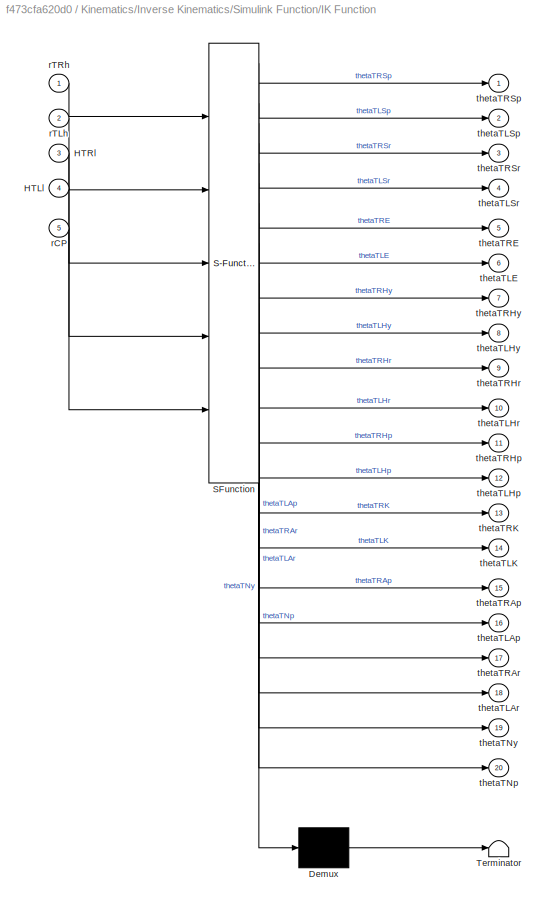
BLOCK [SubSystem] Kinematics/Inverse Kinematics/Simulink Function/IK Function
  ErrorFcn = Stateflow.Translate.translate
  PermitHierarchicalResolution = ExplicitOnly
  Ports = [5, 20]
  RequestExecContextInheritance = off
  SFBlockType = MATLAB Function
  TreatAsAtomicUnit = on
BLOCK [Demux] Kinematics/Inverse Kinematics/Simulink Function/IK Function/ Demux 
  Outputs = 1
  Ports = [1, 1]
BLOCK [S-Function] Kinematics/Inverse Kinematics/Simulink Function/IK Function/ SFunction 
  EnableBusSupport = off
  FunctionName = sf_sfun
  PortCounts = [5 21]
  Ports = [5, 21]
  SFcnIsStateOwnerBlock = off
  SFunctionDeploymentMode = off
  Tag = Stateflow S-Function 4
BLOCK [Terminator] Kinematics/Inverse Kinematics/Simulink Function/IK Function/ Terminator 
BLOCK [Inport] Kinematics/Inverse Kinematics/Simulink Function/IK Function/HTLl
  IconDisplay = Port number
  Port = 4
BLOCK [Inport] Kinematics/Inverse Kinematics/Simulink Function/IK Function/HTRl
  IconDisplay = Port number
  Port = 3
BLOCK [Inport] Kinematics/Inverse Kinematics/Simulink Function/IK Function/rCP
  IconDisplay = Port number
  Port = 5
BLOCK [Inport] Kinematics/Inverse Kinematics/Simulink Function/IK Function/rTLh
  IconDisplay = Port number
  Port = 2
BLOCK [Inport] Kinematics/Inverse Kinematics/Simulink Function/IK Function/rTRh
  IconDisplay = Port number
BLOCK [Outport] Kinematics/Inverse Kinematics/Simulink Function/IK Function/thetaTLAp
  IconDisplay = Port number
  Port = 16
  VectorParamsAs1DForOutWhenUnconnected = off
BLOCK [Outport] Kinematics/Inverse Kinematics/Simulink Function/IK Function/thetaTLAr
  IconDisplay = Port number
  Port = 18
  VectorParamsAs1DForOutWhenUnconnected = off
BLOCK [Outport] Kinematics/Inverse Kinematics/Simulink Function/IK Function/thetaTLE
  IconDisplay = Port number
  Port = 6
  VectorParamsAs1DForOutWhenUnconnected = off
BLOCK [Outport] Kinematics/Inverse Kinematics/Simulink Function/IK Function/thetaTLHp
  IconDisplay = Port number
  Port = 12
  VectorParamsAs1DForOutWhenUnconnected = off
BLOCK [Outport] Kinematics/Inverse Kinematics/Simulink Function/IK Function/thetaTLHr
  IconDisplay = Port number
  Port = 10
  VectorParamsAs1DForOutWhenUnconnected = off
BLOCK [Outport] Kinematics/Inverse Kinematics/Simulink Function/IK Function/thetaTLHy
  IconDisplay = Port number
  Port = 8
  VectorParamsAs1DForOutWhenUnconnected = off
BLOCK [Outport] Kinematics/Inverse Kinematics/Simulink Function/IK Function/thetaTLK
  IconDisplay = Port number
  Port = 14
  VectorParamsAs1DForOutWhenUnconnected = off
BLOCK [Outport] Kinematics/Inverse Kinematics/Simulink Function/IK Function/thetaTLSp
  IconDisplay = Port number
  Port = 2
  VectorParamsAs1DForOutWhenUnconnected = off
BLOCK [Outport] Kinematics/Inverse Kinematics/Simulink Function/IK Function/thetaTLSr
  IconDisplay = Port number
  Port = 4
  VectorParamsAs1DForOutWhenUnconnected = off
BLOCK [Outport] Kinematics/Inverse Kinematics/Simulink Function/IK Function/thetaTNp
  IconDisplay = Port number
  Port = 20
  VectorParamsAs1DForOutWhenUnconnected = off
BLOCK [Outport] Kinematics/Inverse Kinematics/Simulink Function/IK Function/thetaTNy
  IconDisplay = Port number
  Port = 19
  VectorParamsAs1DForOutWhenUnconnected = off
BLOCK [Outport] Kinematics/Inverse Kinematics/Simulink Function/IK Function/thetaTRAp
  IconDisplay = Port number
  Port = 15
  VectorParamsAs1DForOutWhenUnconnected = off
BLOCK [Outport] Kinematics/Inverse Kinematics/Simulink Function/IK Function/thetaTRAr
  IconDisplay = Port number
  Port = 17
  VectorParamsAs1DForOutWhenUnconnected = off
BLOCK [Outport] Kinematics/Inverse Kinematics/Simulink Function/IK Function/thetaTRE
  IconDisplay = Port number
  Port = 5
  VectorParamsAs1DForOutWhenUnconnected = off
BLOCK [Outport] Kinematics/Inverse Kinematics/Simulink Function/IK Function/thetaTRHp
  IconDisplay = Port number
  Port = 11
  VectorParamsAs1DForOutWhenUnconnected = off
BLOCK [Outport] Kinematics/Inverse Kinematics/Simulink Function/IK Function/thetaTRHr
  IconDisplay = Port number
  Port = 9
  VectorParamsAs1DForOutWhenUnconnected = off
BLOCK [Outport] Kinematics/Inverse Kinematics/Simulink Function/IK Function/thetaTRHy
  IconDisplay = Port number
  Port = 7
  VectorParamsAs1DForOutWhenUnconnected = off
BLOCK [Outport] Kinematics/Inverse Kinematics/Simulink Function/IK Function/thetaTRK
  IconDisplay = Port number
  Port = 13
  VectorParamsAs1DForOutWhenUnconnected = off
BLOCK [Outport] Kinematics/Inverse Kinematics/Simulink Function/IK Function/thetaTRSp
  IconDisplay = Port number
  VectorParamsAs1DForOutWhenUnconnected = off
BLOCK [Outport] Kinematics/Inverse Kinematics/Simulink Function/IK Function/thetaTRSr
  IconDisplay = Port number
  Port = 3
  VectorParamsAs1DForOutWhenUnconnected = off
BLOCK [ArgIn] Kinematics/Inverse Kinematics/Simulink Function/p
  ArgumentName = HTRl
  DisableCoverage = on
  Port = 3
  PortDimensions = [4 4]
BLOCK [ArgIn] Kinematics/Inverse Kinematics/Simulink Function/p1
  ArgumentName = rTLh
  DisableCoverage = on
  Port = 2
  PortDimensions = [1 3]
BLOCK [ArgIn] Kinematics/Inverse Kinematics/Simulink Function/p2
  ArgumentName = rTRh
  DisableCoverage = on
  PortDimensions = [1 3]
BLOCK [ArgIn] Kinematics/Inverse Kinematics/Simulink Function/p3
  ArgumentName = HTLl
  DisableCoverage = on
  Port = 4
  PortDimensions = [4 4]
BLOCK [ArgIn] Kinematics/Inverse Kinematics/Simulink Function/p4
  ArgumentName = rCP
  DisableCoverage = on
  Port = 5
  PortDimensions = [1 3]
BLOCK [Inport] Kinematics/Inverse Kinematics/rCP
  IconDisplay = Port number
  Port = 5
BLOCK [Inport] Kinematics/Inverse Kinematics/rTLh
  IconDisplay = Port number
  Port = 2
BLOCK [Inport] Kinematics/Inverse Kinematics/rTRh
  IconDisplay = Port number
BLOCK [Outport] Kinematics/Inverse Kinematics/thetaTLAp
  IconDisplay = Port number
  Port = 16
  VectorParamsAs1DForOutWhenUnconnected = off
BLOCK [Outport] Kinematics/Inverse Kinematics/thetaTLAr
  IconDisplay = Port number
  Port = 18
  VectorParamsAs1DForOutWhenUnconnected = off
BLOCK [Outport] Kinematics/Inverse Kinematics/thetaTLE
  IconDisplay = Port number
  Port = 6
  VectorParamsAs1DForOutWhenUnconnected = off
BLOCK [Outport] Kinematics/Inverse Kinematics/thetaTLHp
  IconDisplay = Port number
  Port = 12
  VectorParamsAs1DForOutWhenUnconnected = off
BLOCK [Outport] Kinematics/Inverse Kinematics/thetaTLHr
  IconDisplay = Port number
  Port = 10
  VectorParamsAs1DForOutWhenUnconnected = off
BLOCK [Outport] Kinematics/Inverse Kinematics/thetaTLHy
  IconDisplay = Port number
  Port = 8
  VectorParamsAs1DForOutWhenUnconnected = off
BLOCK [Outport] Kinematics/Inverse Kinematics/thetaTLK
  IconDisplay = Port number
  Port = 14
  VectorParamsAs1DForOutWhenUnconnected = off
BLOCK [Outport] Kinematics/Inverse Kinematics/thetaTLSp
  IconDisplay = Port number
  Port = 2
  VectorParamsAs1DForOutWhenUnconnected = off
BLOCK [Outport] Kinematics/Inverse Kinematics/thetaTLSr
  IconDisplay = Port number
  Port = 4
  VectorParamsAs1DForOutWhenUnconnected = off
BLOCK [Outport] Kinematics/Inverse Kinematics/thetaTNp
  IconDisplay = Port number
  Port = 20
  VectorParamsAs1DForOutWhenUnconnected = off
BLOCK [Outport] Kinematics/Inverse Kinematics/thetaTNy
  IconDisplay = Port number
  Port = 19
  VectorParamsAs1DForOutWhenUnconnected = off
BLOCK [Outport] Kinematics/Inverse Kinematics/thetaTRAp
  IconDisplay = Port number
  Port = 15
  VectorParamsAs1DForOutWhenUnconnected = off
BLOCK [Outport] Kinematics/Inverse Kinematics/thetaTRAr
  IconDisplay = Port number
  Port = 17
  VectorParamsAs1DForOutWhenUnconnected = off
BLOCK [Outport] Kinematics/Inverse Kinematics/thetaTRE
  IconDisplay = Port number
  Port = 5
  VectorParamsAs1DForOutWhenUnconnected = off
BLOCK [Outport] Kinematics/Inverse Kinematics/thetaTRHp
  IconDisplay = Port number
  Port = 11
  VectorParamsAs1DForOutWhenUnconnected = off
BLOCK [Outport] Kinematics/Inverse Kinematics/thetaTRHr
  IconDisplay = Port number
  Port = 9
  VectorParamsAs1DForOutWhenUnconnected = off
BLOCK [Outport] Kinematics/Inverse Kinematics/thetaTRHy
  IconDisplay = Port number
  Port = 7
  VectorParamsAs1DForOutWhenUnconnected = off
BLOCK [Outport] Kinematics/Inverse Kinematics/thetaTRK
  IconDisplay = Port number
  Port = 13
  VectorParamsAs1DForOutWhenUnconnected = off
BLOCK [Outport] Kinematics/Inverse Kinematics/thetaTRSp
  IconDisplay = Port number
  VectorParamsAs1DForOutWhenUnconnected = off
BLOCK [Outport] Kinematics/Inverse Kinematics/thetaTRSr
  IconDisplay = Port number
  Port = 3
  VectorParamsAs1DForOutWhenUnconnected = off
BLOCK [SubSystem] Kinematics/MATLAB Function
  ErrorFcn = Stateflow.Translate.translate
  PermitHierarchicalResolution = ExplicitOnly
  Ports = [3, 3]
  RequestExecContextInheritance = off
  SFBlockType = MATLAB Function
  SystemSampleTime = sample_time
  TreatAsAtomicUnit = on
BLOCK [Demux] Kinematics/MATLAB Function/ Demux 
  Outputs = 1
  Ports = [1, 1]
BLOCK [S-Function] Kinematics/MATLAB Function/ SFunction 
  EnableBusSupport = off
  FunctionName = sf_sfun
  PortCounts = [3 4]
  Ports = [3, 4]
  SFcnIsStateOwnerBlock = off
  SFunctionDeploymentMode = off
  Tag = Stateflow S-Function 8
BLOCK [Terminator] Kinematics/MATLAB Function/ Terminator 
BLOCK [Inport] Kinematics/MATLAB Function/Htw
  IconDisplay = Port number
  Port = 3
BLOCK [Inport] Kinematics/MATLAB Function/com_ref
  IconDisplay = Port number
  Port = 2
BLOCK [Outport] Kinematics/MATLAB Function/pitch
  IconDisplay = Port number
  VectorParamsAs1DForOutWhenUnconnected = off
BLOCK [Outport] Kinematics/MATLAB Function/roll
  IconDisplay = Port number
  Port = 2
  VectorParamsAs1DForOutWhenUnconnected = off
BLOCK [Inport] Kinematics/MATLAB Function/torso_com
  IconDisplay = Port number
BLOCK [Outport] Kinematics/MATLAB Function/v
  IconDisplay = Port number
  Port = 3
  VectorParamsAs1DForOutWhenUnconnected = off
BLOCK [SubSystem] Kinematics/Read from Servos
  Ports = [0, 1]
  RequestExecContextInheritance = off
BLOCK [Sum] Kinematics/Read from Servos/Add1
  InputSameDT = off
  Inputs = -+
  OutDataTypeStr = double
  Ports = [2, 1]
  SaturateOnIntegerOverflow = off
BLOCK [Constant] Kinematics/Read from Servos/Constant1
  Value = 2048
BLOCK [DataStoreRead] Kinematics/Read from Servos/Data Store Read
  DataStoreElements = MX64_ID0.present_position
  DataStoreName = MX64_ID0
  Ports = [0, 1]
BLOCK [DataStoreRead] Kinematics/Read from Servos/Data Store Read1
  DataStoreElements = MX64_ID1.present_position
  DataStoreName = MX64_ID1
  Ports = [0, 1]
BLOCK [DataStoreRead] Kinematics/Read from Servos/Data Store Read10
  DataStoreElements = MX106_ID10.present_position
  DataStoreName = MX106_ID10
  Ports = [0, 1]
BLOCK [DataStoreRead] Kinematics/Read from Servos/Data Store Read11
  DataStoreElements = MX106_ID11.present_position
  DataStoreName = MX106_ID11
  Ports = [0, 1]
BLOCK [DataStoreRead] Kinematics/Read from Servos/Data Store Read12
  DataStoreElements = MX106_ID12.present_position
  DataStoreName = MX106_ID12
  Ports = [0, 1]
BLOCK [DataStoreRead] Kinematics/Read from Servos/Data Store Read13
  DataStoreElements = MX106_ID13.present_position
  DataStoreName = MX106_ID13
  Ports = [0, 1]
BLOCK [DataStoreRead] Kinematics/Read from Servos/Data Store Read14
  DataStoreElements = MX106_ID14.present_position
  DataStoreName = MX106_ID14
  Ports = [0, 1]
BLOCK [DataStoreRead] Kinematics/Read from Servos/Data Store Read15
  DataStoreElements = MX106_ID15.present_position
  DataStoreName = MX106_ID15
  Ports = [0, 1]
BLOCK [DataStoreRead] Kinematics/Read from Servos/Data Store Read16
  DataStoreElements = MX106_ID16.present_position
  DataStoreName = MX106_ID16
  Ports = [0, 1]
BLOCK [DataStoreRead] Kinematics/Read from Servos/Data Store Read17
  DataStoreElements = MX106_ID17.present_position
  DataStoreName = MX106_ID17
  Ports = [0, 1]
BLOCK [DataStoreRead] Kinematics/Read from Servos/Data Store Read18
  DataStoreElements = MX64_ID18.present_position
  DataStoreName = MX64_ID18
  Ports = [0, 1]
BLOCK [DataStoreRead] Kinematics/Read from Servos/Data Store Read19
  DataStoreElements = MX64_ID19.present_position
  DataStoreName = MX64_ID19
  Ports = [0, 1]
BLOCK [DataStoreRead] Kinematics/Read from Servos/Data Store Read2
  DataStoreElements = MX64_ID2.present_position
  DataStoreName = MX64_ID2
  Ports = [0, 1]
BLOCK [DataStoreRead] Kinematics/Read from Servos/Data Store Read3
  DataStoreElements = MX64_ID3.present_position
  DataStoreName = MX64_ID3
  Ports = [0, 1]
BLOCK [DataStoreRead] Kinematics/Read from Servos/Data Store Read4
  DataStoreElements = MX64_ID4.present_position
  DataStoreName = MX64_ID4
  Ports = [0, 1]
BLOCK [DataStoreRead] Kinematics/Read from Servos/Data Store Read5
  DataStoreElements = MX64_ID5.present_position
  DataStoreName = MX64_ID5
  Ports = [0, 1]
BLOCK [DataStoreRead] Kinematics/Read from Servos/Data Store Read6
  DataStoreElements = MX106_ID6.present_position
  DataStoreName = MX106_ID6
  Ports = [0, 1]
BLOCK [DataStoreRead] Kinematics/Read from Servos/Data Store Read7
  DataStoreElements = MX106_ID7.present_position
  DataStoreName = MX106_ID7
  Ports = [0, 1]
BLOCK [DataStoreRead] Kinematics/Read from Servos/Data Store Read8
  DataStoreElements = MX106_ID8.present_position
  DataStoreName = MX106_ID8
  Ports = [0, 1]
BLOCK [DataStoreRead] Kinematics/Read from Servos/Data Store Read9
  DataStoreElements = MX106_ID9.present_position
  DataStoreName = MX106_ID9
  Ports = [0, 1]
BLOCK [Gain] Kinematics/Read from Servos/Discrete to Radians
  Gain = pi/2048
  ParamDataTypeStr = Inherit: Inherit via internal rule
BLOCK [Mux] Kinematics/Read from Servos/Mux
  DisplayOption = bar
  Inputs = 20
  Ports = [20, 1]
BLOCK [Outport] Kinematics/Read from Servos/servo positions
  IconDisplay = Port number
  PortDimensions = 20
  VectorParamsAs1DForOutWhenUnconnected = off
BLOCK [Terminator] Kinematics/Terminator
BLOCK [Terminator] Kinematics/Terminator1
BLOCK [ToWorkspace] Kinematics/To Workspace
  FixptAsFi = on
  MaxDataPoints = inf
  Ports = [1]
  SampleTime = sample_time
  SaveFormat = Timeseries
  VariableName = com
BLOCK [ToWorkspace] Kinematics/To Workspace1
  FixptAsFi = on
  MaxDataPoints = inf
  Ports = [1]
  SampleTime = -1
  SaveFormat = Timeseries
  VariableName = torso_com
BLOCK [SubSystem] Kinematics/Torso Centre of Mass
  Ports = [8, 2]
  RequestExecContextInheritance = off
BLOCK [FunctionCaller] Kinematics/Torso Centre of Mass/Function Caller
  FunctionPrototype = [torso_com,torso_mass] = TorsoCOM(HtRSp,HtLSp,HtRSr,HtLSr,HtRE,HtLE,HtHy,HtHp)
  InputArgumentSpecifications = <Enter example>
  OutputArgumentSpecifications = <Enter example>
  Ports = [8, 2]
BLOCK [Inport] Kinematics/Torso Centre of Mass/HtHp
  IconDisplay = Port number
  Port = 8
BLOCK [Inport] Kinematics/Torso Centre of Mass/HtHy
  IconDisplay = Port number
  Port = 7
BLOCK [Inport] Kinematics/Torso Centre of Mass/HtLE
  IconDisplay = Port number
  Port = 6
BLOCK [Inport] Kinematics/Torso Centre of Mass/HtLSp
  IconDisplay = Port number
  Port = 2
BLOCK [Inport] Kinematics/Torso Centre of Mass/HtLSr
  IconDisplay = Port number
  Port = 4
BLOCK [Inport] Kinematics/Torso Centre of Mass/HtRE
  IconDisplay = Port number
  Port = 5
BLOCK [Inport] Kinematics/Torso Centre of Mass/HtRSp
  IconDisplay = Port number
BLOCK [Inport] Kinematics/Torso Centre of Mass/HtRSr
  IconDisplay = Port number
  Port = 3
BLOCK [SubSystem] Kinematics/Torso Centre of Mass/Simulink Function
  Ports = [0, 0, 0, 1]
  RequestExecContextInheritance = off
  TreatAsAtomicUnit = on
BLOCK [ArgIn] Kinematics/Torso Centre of Mass/Simulink Function/HtHp
  ArgumentName = HtHp
  DisableCoverage = on
  Port = 8
  PortDimensions = [4 4]
BLOCK [ArgIn] Kinematics/Torso Centre of Mass/Simulink Function/HtHy
  ArgumentName = HtHy
  DisableCoverage = on
  Port = 7
  PortDimensions = [4 4]
BLOCK [ArgIn] Kinematics/Torso Centre of Mass/Simulink Function/HtLE
  ArgumentName = HtLE
  DisableCoverage = on
  Port = 6
  PortDimensions = [4 4]
BLOCK [ArgIn] Kinematics/Torso Centre of Mass/Simulink Function/HtLSp
  ArgumentName = HtLSp
  DisableCoverage = on
  Port = 2
  PortDimensions = [4 4]
BLOCK [ArgIn] Kinematics/Torso Centre of Mass/Simulink Function/HtLSr
  ArgumentName = HtLSr
  DisableCoverage = on
  Port = 4
  PortDimensions = [4 4]
BLOCK [ArgIn] Kinematics/Torso Centre of Mass/Simulink Function/HtRE
  ArgumentName = HtRE
  DisableCoverage = on
  Port = 5
  PortDimensions = [4 4]
BLOCK [ArgIn] Kinematics/Torso Centre of Mass/Simulink Function/HtRSp
  ArgumentName = HtRSp
  DisableCoverage = on
  PortDimensions = [4 4]
BLOCK [ArgIn] Kinematics/Torso Centre of Mass/Simulink Function/HtRSr
  ArgumentName = HtRSr
  DisableCoverage = on
  Port = 3
  PortDimensions = [4 4]
BLOCK [SubSystem] Kinematics/Torso Centre of Mass/Simulink Function/MATLAB Function
  ErrorFcn = Stateflow.Translate.translate
  PermitHierarchicalResolution = ExplicitOnly
  Ports = [8, 2]
  RequestExecContextInheritance = off
  SFBlockType = MATLAB Function
  TreatAsAtomicUnit = on
BLOCK [Demux] Kinematics/Torso Centre of Mass/Simulink Function/MATLAB Function/ Demux 
  Outputs = 1
  Ports = [1, 1]
BLOCK [S-Function] Kinematics/Torso Centre of Mass/Simulink Function/MATLAB Function/ SFunction 
  EnableBusSupport = off
  FunctionName = sf_sfun
  PortCounts = [8 3]
  Ports = [8, 3]
  SFcnIsStateOwnerBlock = off
  SFunctionDeploymentMode = off
  Tag = Stateflow S-Function 7
BLOCK [Terminator] Kinematics/Torso Centre of Mass/Simulink Function/MATLAB Function/ Terminator 
BLOCK [Inport] Kinematics/Torso Centre of Mass/Simulink Function/MATLAB Function/HtHp
  IconDisplay = Port number
  Port = 8
BLOCK [Inport] Kinematics/Torso Centre of Mass/Simulink Function/MATLAB Function/HtHy
  IconDisplay = Port number
  Port = 7
BLOCK [Inport] Kinematics/Torso Centre of Mass/Simulink Function/MATLAB Function/HtLE
  IconDisplay = Port number
  Port = 6
BLOCK [Inport] Kinematics/Torso Centre of Mass/Simulink Function/MATLAB Function/HtLSp
  IconDisplay = Port number
  Port = 2
BLOCK [Inport] Kinematics/Torso Centre of Mass/Simulink Function/MATLAB Function/HtLSr
  IconDisplay = Port number
  Port = 4
BLOCK [Inport] Kinematics/Torso Centre of Mass/Simulink Function/MATLAB Function/HtRE
  IconDisplay = Port number
  Port = 5
BLOCK [Inport] Kinematics/Torso Centre of Mass/Simulink Function/MATLAB Function/HtRSp
  IconDisplay = Port number
BLOCK [Inport] Kinematics/Torso Centre of Mass/Simulink Function/MATLAB Function/HtRSr
  IconDisplay = Port number
  Port = 3
BLOCK [Outport] Kinematics/Torso Centre of Mass/Simulink Function/MATLAB Function/torso_com
  IconDisplay = Port number
  VectorParamsAs1DForOutWhenUnconnected = off
BLOCK [Outport] Kinematics/Torso Centre of Mass/Simulink Function/MATLAB Function/torso_mass
  IconDisplay = Port number
  Port = 2
  VectorParamsAs1DForOutWhenUnconnected = off
BLOCK [TriggerPort] Kinematics/Torso Centre of Mass/Simulink Function/TorsoCOM
  FunctionName = TorsoCOM
  FunctionVisibility = scoped
  IsSimulinkFunction = on
  Ports = []
  StatesWhenEnabling = held
  TriggerType = function-call
  VariantControl = (inherit)
BLOCK [ArgOut] Kinematics/Torso Centre of Mass/Simulink Function/com
  ArgumentName = torso_com
  DisableCoverage = on
  PortDimensions = [1 3]
BLOCK [ArgOut] Kinematics/Torso Centre of Mass/Simulink Function/mass
  ArgumentName = torso_mass
  DisableCoverage = on
  Port = 2
BLOCK [Outport] Kinematics/Torso Centre of Mass/torso_com
  IconDisplay = Port number
  VectorParamsAs1DForOutWhenUnconnected = off
BLOCK [Outport] Kinematics/Torso Centre of Mass/torso_mass
  IconDisplay = Port number
  Port = 2
  VectorParamsAs1DForOutWhenUnconnected = off
BLOCK [UnaryMinus] Kinematics/Unary Minus
BLOCK [UnaryMinus] Kinematics/Unary Minus1
BLOCK [SubSystem] Kinematics/Write to Servos
  Ports = [1]
  RequestExecContextInheritance = off
BLOCK [Sum] Kinematics/Write to Servos/Add
  InputSameDT = off
  OutDataTypeStr = Inherit: Inherit via internal rule
  Ports = [2, 1]
  SaturateOnIntegerOverflow = off
BLOCK [Constant] Kinematics/Write to Servos/Constant
  Value = 2048
BLOCK [DataStoreWrite] Kinematics/Write to Servos/Data Store Write
  DataStoreElements = MX64_ID18.goal_position
  DataStoreName = MX64_ID18
  Ports = [1]
BLOCK [DataStoreWrite] Kinematics/Write to Servos/Data Store Write1
  DataStoreElements = MX64_ID19.goal_position
  DataStoreName = MX64_ID19
  Ports = [1]
BLOCK [DataStoreWrite] Kinematics/Write to Servos/Data Store Write10
  DataStoreElements = MX106_ID10.goal_position
  DataStoreName = MX106_ID10
  Ports = [1]
BLOCK [DataStoreWrite] Kinematics/Write to Servos/Data Store Write11
  DataStoreElements = MX106_ID12.goal_position
  DataStoreName = MX106_ID12
  Ports = [1]
BLOCK [DataStoreWrite] Kinematics/Write to Servos/Data Store Write12
  DataStoreElements = MX106_ID14.goal_position
  DataStoreName = MX106_ID14
  Ports = [1]
BLOCK [DataStoreWrite] Kinematics/Write to Servos/Data Store Write13
  DataStoreElements = MX106_ID16.goal_position
  DataStoreName = MX106_ID16
  Ports = [1]
BLOCK [DataStoreWrite] Kinematics/Write to Servos/Data Store Write14
  DataStoreElements = MX106_ID7.goal_position
  DataStoreName = MX106_ID7
  Ports = [1]
BLOCK [DataStoreWrite] Kinematics/Write to Servos/Data Store Write15
  DataStoreElements = MX106_ID9.goal_position
  DataStoreName = MX106_ID9
  Ports = [1]
BLOCK [DataStoreWrite] Kinematics/Write to Servos/Data Store Write16
  DataStoreElements = MX106_ID11.goal_position
  DataStoreName = MX106_ID11
  Ports = [1]
BLOCK [DataStoreWrite] Kinematics/Write to Servos/Data Store Write17
  DataStoreElements = MX106_ID13.goal_position
  DataStoreName = MX106_ID13
  Ports = [1]
BLOCK [DataStoreWrite] Kinematics/Write to Servos/Data Store Write18
  DataStoreElements = MX106_ID15.goal_position
  DataStoreName = MX106_ID15
  Ports = [1]
BLOCK [DataStoreWrite] Kinematics/Write to Servos/Data Store Write19
  DataStoreElements = MX106_ID17.goal_position
  DataStoreName = MX106_ID17
  Ports = [1]
BLOCK [DataStoreWrite] Kinematics/Write to Servos/Data Store Write2
  DataStoreElements = MX64_ID0.goal_position
  DataStoreName = MX64_ID0
  Ports = [1]
BLOCK [DataStoreWrite] Kinematics/Write to Servos/Data Store Write3
  DataStoreElements = MX64_ID2.goal_position
  DataStoreName = MX64_ID2
  Ports = [1]
BLOCK [DataStoreWrite] Kinematics/Write to Servos/Data Store Write4
  DataStoreElements = MX64_ID4.goal_position
  DataStoreName = MX64_ID4
  Ports = [1]
BLOCK [DataStoreWrite] Kinematics/Write to Servos/Data Store Write5
  DataStoreElements = MX64_ID1.goal_position
  DataStoreName = MX64_ID1
  Ports = [1]
BLOCK [DataStoreWrite] Kinematics/Write to Servos/Data Store Write6
  DataStoreElements = MX64_ID3.goal_position
  DataStoreName = MX64_ID3
  Ports = [1]
BLOCK [DataStoreWrite] Kinematics/Write to Servos/Data Store Write7
  DataStoreElements = MX64_ID5.goal_position
  DataStoreName = MX64_ID5
  Ports = [1]
BLOCK [DataStoreWrite] Kinematics/Write to Servos/Data Store Write8
  DataStoreElements = MX106_ID6.goal_position
  DataStoreName = MX106_ID6
  Ports = [1]
BLOCK [DataStoreWrite] Kinematics/Write to Servos/Data Store Write9
  DataStoreElements = MX106_ID8.goal_position
  DataStoreName = MX106_ID8
  Ports = [1]
BLOCK [DataTypeConversion] Kinematics/Write to Servos/Data Type Conversion
  OutDataTypeStr = int16
  RndMeth = Floor
  SaturateOnIntegerOverflow = off
BLOCK [Demux] Kinematics/Write to Servos/Demux
  DisplayOption = bar
  Outputs = 20
  Ports = [1, 20]
BLOCK [Gain] Kinematics/Write to Servos/Radians to Discrete
  Gain = (4096*180)/(360*pi)
  ParamDataTypeStr = Inherit: Inherit via internal rule
BLOCK [SubSystem] Kinematics/Write to Servos/clamp
  Commented = on
  Ports = [1, 1]
  RequestExecContextInheritance = off
BLOCK [Constant] Kinematics/Write to Servos/clamp/Constant
  Value = 2*pi
BLOCK [Constant] Kinematics/Write to Servos/clamp/Constant1
  Value = 0
BLOCK [MinMax] Kinematics/Write to Servos/clamp/Max
  Function = max
  InputSameDT = off
  Inputs = 2
  Ports = [2, 1]
  SaturateOnIntegerOverflow = off
BLOCK [MinMax] Kinematics/Write to Servos/clamp/Min
  InputSameDT = off
  Inputs = 2
  Ports = [2, 1]
  SaturateOnIntegerOverflow = off
BLOCK [Inport] Kinematics/Write to Servos/clamp/v
  IconDisplay = Port number
BLOCK [Outport] Kinematics/Write to Servos/clamp/vc
  IconDisplay = Port number
  VectorParamsAs1DForOutWhenUnconnected = off
BLOCK [Inport] Kinematics/Write to Servos/servo commands
  IconDisplay = Port number
  PortDimensions = 20
BLOCK [Outport] Kinematics/com
  IconDisplay = Port number
  VectorParamsAs1DForOutWhenUnconnected = off
BLOCK [Inport] Kinematics/com_ref
  IconDisplay = Port number
  Port = 6
BLOCK [Inport] Kinematics/rCP
  IconDisplay = Port number
  Port = 5
BLOCK [Inport] Kinematics/rTLh
  IconDisplay = Port number
  Port = 2
BLOCK [Inport] Kinematics/rTRh
  IconDisplay = Port number
BLOCK [SubSystem] Kinematics/to workspace
  Ports = [20]
  RequestExecContextInheritance = off
BLOCK [BusCreator] Kinematics/to workspace/Bus Creator
  DisplayOption = bar
  InheritFromInputs = on
  Inputs = 20
  Ports = [20, 1]
BLOCK [Inport] Kinematics/to workspace/HtHp
  IconDisplay = Port number
  Port = 20
BLOCK [Inport] Kinematics/to workspace/HtHy
  IconDisplay = Port number
  Port = 19
BLOCK [Inport] Kinematics/to workspace/HtLAp
  IconDisplay = Port number
  Port = 16
BLOCK [Inport] Kinematics/to workspace/HtLAr
  IconDisplay = Port number
  Port = 18
BLOCK [Inport] Kinematics/to workspace/HtLE
  IconDisplay = Port number
  Port = 6
BLOCK [Inport] Kinematics/to workspace/HtLHp
  IconDisplay = Port number
  Port = 12
BLOCK [Inport] Kinematics/to workspace/HtLHr
  IconDisplay = Port number
  Port = 10
BLOCK [Inport] Kinematics/to workspace/HtLHy
  IconDisplay = Port number
  Port = 8
BLOCK [Inport] Kinematics/to workspace/HtLK
  IconDisplay = Port number
  Port = 14
BLOCK [Inport] Kinematics/to workspace/HtLSp
  IconDisplay = Port number
  Port = 2
BLOCK [Inport] Kinematics/to workspace/HtLSr
  IconDisplay = Port number
  Port = 4
BLOCK [Inport] Kinematics/to workspace/HtRAp
  IconDisplay = Port number
  Port = 15
BLOCK [Inport] Kinematics/to workspace/HtRAr
  IconDisplay = Port number
  Port = 17
BLOCK [Inport] Kinematics/to workspace/HtRE
  IconDisplay = Port number
  Port = 5
BLOCK [Inport] Kinematics/to workspace/HtRHp
  IconDisplay = Port number
  Port = 11
BLOCK [Inport] Kinematics/to workspace/HtRHr
  IconDisplay = Port number
  Port = 9
BLOCK [Inport] Kinematics/to workspace/HtRHy
  IconDisplay = Port number
  Port = 7
BLOCK [Inport] Kinematics/to workspace/HtRK
  IconDisplay = Port number
  Port = 13
BLOCK [Inport] Kinematics/to workspace/HtRSp
  IconDisplay = Port number
BLOCK [Inport] Kinematics/to workspace/HtRSr
  IconDisplay = Port number
  Port = 3
BLOCK [ToWorkspace] Kinematics/to workspace/To Workspace
  FixptAsFi = on
  MaxDataPoints = inf
  Ports = [1]
  SampleTime = sample_time
  SaveFormat = Timeseries
  VariableName = FK
BLOCK [DataStoreMemory] Left Ankle Pitch
  DataStoreName = MX106_ID15
  InitialValue = MX106_default
  OutDataTypeStr = Bus: MX106_bus
  ReadBeforeWriteMsg = warning
  ShowAdditionalParam = off
  SignalType = real
  VectorParams1D = off
  WriteAfterReadMsg = warning
  WriteAfterWriteMsg = warning
BLOCK [DataStoreMemory] Left Ankle Roll
  DataStoreName = MX106_ID17
  InitialValue = MX106_default
  OutDataTypeStr = Bus: MX106_bus
  ReadBeforeWriteMsg = warning
  ShowAdditionalParam = off
  SignalType = real
  VectorParams1D = off
  WriteAfterReadMsg = warning
  WriteAfterWriteMsg = warning
BLOCK [DataStoreMemory] Left Elbow
  DataStoreName = MX64_ID5
  InitialValue = MX64_default
  OutDataTypeStr = Bus: MX64_bus
  ReadBeforeWriteMsg = warning
  ShowAdditionalParam = off
  SignalType = real
  VectorParams1D = off
  WriteAfterReadMsg = warning
  WriteAfterWriteMsg = warning
BLOCK [DataStoreMemory] Left Hip Pitch
  DataStoreName = MX106_ID11
  InitialValue = MX106_default
  OutDataTypeStr = Bus: MX106_bus
  ReadBeforeWriteMsg = warning
  ShowAdditionalParam = off
  SignalType = real
  VectorParams1D = off
  WriteAfterReadMsg = warning
  WriteAfterWriteMsg = warning
BLOCK [DataStoreMemory] Left Hip Roll
  DataStoreName = MX106_ID9
  InitialValue = MX106_default
  OutDataTypeStr = Bus: MX106_bus
  ReadBeforeWriteMsg = warning
  ShowAdditionalParam = off
  SignalType = real
  VectorParams1D = off
  WriteAfterReadMsg = warning
  WriteAfterWriteMsg = warning
BLOCK [DataStoreMemory] Left Hip Yaw
  DataStoreName = MX106_ID7
  InitialValue = MX106_default
  OutDataTypeStr = Bus: MX106_bus
  ReadBeforeWriteMsg = warning
  ShowAdditionalParam = off
  SignalType = real
  VectorParams1D = off
  WriteAfterReadMsg = warning
  WriteAfterWriteMsg = warning
BLOCK [DataStoreMemory] Left Knee
  DataStoreName = MX106_ID13
  InitialValue = MX106_default
  OutDataTypeStr = Bus: MX106_bus
  ReadBeforeWriteMsg = warning
  ShowAdditionalParam = off
  SignalType = real
  VectorParams1D = off
  WriteAfterReadMsg = warning
  WriteAfterWriteMsg = warning
BLOCK [DataStoreMemory] Left Shoulder Pitch
  DataStoreName = MX64_ID1
  InitialValue = MX64_default
  OutDataTypeStr = Bus: MX64_bus
  ReadBeforeWriteMsg = warning
  ShowAdditionalParam = off
  SignalType = real
  VectorParams1D = off
  WriteAfterReadMsg = warning
  WriteAfterWriteMsg = warning
BLOCK [DataStoreMemory] Left Shoulder Roll
  DataStoreName = MX64_ID3
  InitialValue = MX64_default
  OutDataTypeStr = Bus: MX64_bus
  ReadBeforeWriteMsg = warning
  ShowAdditionalParam = off
  SignalType = real
  VectorParams1D = off
  WriteAfterReadMsg = warning
  WriteAfterWriteMsg = warning
BLOCK [SubSystem] NUgus
  Ports = [0, 3]
  RequestExecContextInheritance = off
BLOCK [Reference] NUgus/Floor  REF=sm_lib/Body Elements/Brick Solid
  Ports = [0, 0, 0, 0, 0, 0, 1]
  SourceBlock = sm_lib/Body Elements/Brick Solid
  SourceProductBaseCode = MS
  SourceProductName = Simscape Multibody
  SourceType = Brick Solid
BLOCK [Outport] NUgus/Htw
  IconDisplay = Port number
  Port = 3
  VectorParamsAs1DForOutWhenUnconnected = off
BLOCK [SubSystem] NUgus/IMU
  Ports = [0, 4, 0, 0, 0, 1, 1]
  RequestExecContextInheritance = off
BLOCK [Reference] NUgus/IMU/6-DOF Joint  REF=sm_lib/Joints/6-DOF Joint
  Ports = [0, 0, 0, 0, 0, 1, 1]
  SourceBlock = sm_lib/Joints/6-DOF Joint
  SourceProductBaseCode = MS
  SourceProductName = Simscape Multibody
  SourceType = 6-DOF Joint
BLOCK [Constant] NUgus/IMU/Constant
  Value = 0.3
BLOCK [Demux] NUgus/IMU/Demux
  DisplayOption = bar
  Outputs = 3
  Ports = [1, 3]
BLOCK [SubSystem] NUgus/IMU/Get Euler Angles
  ErrorFcn = Stateflow.Translate.translate
  PermitHierarchicalResolution = ExplicitOnly
  Ports = [1, 3]
  RequestExecContextInheritance = off
  SFBlockType = MATLAB Function
  TreatAsAtomicUnit = on
BLOCK [Demux] NUgus/IMU/Get Euler Angles/ Demux 
  Outputs = 1
  Ports = [1, 1]
BLOCK [S-Function] NUgus/IMU/Get Euler Angles/ SFunction 
  EnableBusSupport = off
  FunctionName = sf_sfun
  PortCounts = [1 4]
  Ports = [1, 4]
  SFcnIsStateOwnerBlock = off
  SFunctionDeploymentMode = off
  Tag = Stateflow S-Function 11
BLOCK [Terminator] NUgus/IMU/Get Euler Angles/ Terminator 
BLOCK [Outport] NUgus/IMU/Get Euler Angles/p
  IconDisplay = Port number
  Port = 2
  VectorParamsAs1DForOutWhenUnconnected = off
BLOCK [Inport] NUgus/IMU/Get Euler Angles/q
  IconDisplay = Port number
BLOCK [Outport] NUgus/IMU/Get Euler Angles/r
  IconDisplay = Port number
  VectorParamsAs1DForOutWhenUnconnected = off
BLOCK [Outport] NUgus/IMU/Get Euler Angles/y
  IconDisplay = Port number
  Port = 3
  VectorParamsAs1DForOutWhenUnconnected = off
BLOCK [Outport] NUgus/IMU/Htw
  IconDisplay = Port number
  VectorParamsAs1DForOutWhenUnconnected = off
BLOCK [RelationalOperator] NUgus/IMU/Less Than
  InputSameDT = off
  Operator = <
  OutDataTypeStr = boolean
  Ports = [2, 1]
  RndMeth = Simplest
BLOCK [SubSystem] NUgus/IMU/MATLAB Function
  ErrorFcn = Stateflow.Translate.translate
  PermitHierarchicalResolution = ExplicitOnly
  Ports = [2, 1]
  RequestExecContextInheritance = off
  SFBlockType = MATLAB Function
  TreatAsAtomicUnit = on
BLOCK [Demux] NUgus/IMU/MATLAB Function/ Demux 
  Outputs = 1
  Ports = [1, 1]
BLOCK [S-Function] NUgus/IMU/MATLAB Function/ SFunction 
  EnableBusSupport = off
  FunctionName = sf_sfun
  PortCounts = [2 2]
  Ports = [2, 2]
  SFcnIsStateOwnerBlock = off
  SFunctionDeploymentMode = off
  Tag = Stateflow S-Function 6
BLOCK [Terminator] NUgus/IMU/MATLAB Function/ Terminator 
BLOCK [Outport] NUgus/IMU/MATLAB Function/h
  IconDisplay = Port number
  VectorParamsAs1DForOutWhenUnconnected = off
BLOCK [Inport] NUgus/IMU/MATLAB Function/m
  IconDisplay = Port number
BLOCK [Inport] NUgus/IMU/MATLAB Function/p
  IconDisplay = Port number
  Port = 2
BLOCK [Mux] NUgus/IMU/Mux
  DisplayOption = bar
  Inputs = 3
  Ports = [3, 1]
BLOCK [Reference] NUgus/IMU/PS-Simulink Converter2  REF=nesl_utility/PS-Simulink
Converter
  Ports = [0, 1, 0, 0, 0, 1]
  SourceBlock = nesl_utility/PS-Simulink\nConverter
  SourceProductBaseCode = SS
  SourceProductName = Simscape
  SourceType = PS-Simulink\nConverter
BLOCK [Stop] NUgus/IMU/Stop Simulation
BLOCK [SubSystem] NUgus/IMU/Subsystem
  Ports = [0, 1, 0, 0, 0, 3]
  RequestExecContextInheritance = off
BLOCK [Mux] NUgus/IMU/Subsystem/Mux4
  DisplayOption = bar
  Inputs = 3
  Ports = [3, 1]
BLOCK [Reference] NUgus/IMU/Subsystem/PS-Simulink Converter14  REF=nesl_utility/PS-Simulink
Converter
  Ports = [0, 1, 0, 0, 0, 1]
  SourceBlock = nesl_utility/PS-Simulink\nConverter
  SourceProductBaseCode = SS
  SourceProductName = Simscape
  SourceType = PS-Simulink\nConverter
BLOCK [Reference] NUgus/IMU/Subsystem/PS-Simulink Converter15  REF=nesl_utility/PS-Simulink
Converter
  Ports = [0, 1, 0, 0, 0, 1]
  SourceBlock = nesl_utility/PS-Simulink\nConverter
  SourceProductBaseCode = SS
  SourceProductName = Simscape
  SourceType = PS-Simulink\nConverter
BLOCK [Reference] NUgus/IMU/Subsystem/PS-Simulink Converter16  REF=nesl_utility/PS-Simulink
Converter
  Ports = [0, 1, 0, 0, 0, 1]
  SourceBlock = nesl_utility/PS-Simulink\nConverter
  SourceProductBaseCode = SS
  SourceProductName = Simscape
  SourceType = PS-Simulink\nConverter
BLOCK [ToWorkspace] NUgus/IMU/Subsystem/To Workspace1
  FixptAsFi = on
  MaxDataPoints = inf
  Ports = [1]
  SampleTime = -1
  SaveFormat = Timeseries
  VariableName = raw_omega_y
BLOCK [ToWorkspace] NUgus/IMU/Subsystem/To Workspace2
  FixptAsFi = on
  MaxDataPoints = inf
  Ports = [1]
  SampleTime = -1
  SaveFormat = Timeseries
  VariableName = raw_omega_z
BLOCK [ToWorkspace] NUgus/IMU/Subsystem/To Workspace3
  FixptAsFi = on
  MaxDataPoints = inf
  Ports = [1]
  SampleTime = -1
  SaveFormat = Timeseries
  VariableName = omega_y
BLOCK [ToWorkspace] NUgus/IMU/Subsystem/To Workspace4
  FixptAsFi = on
  MaxDataPoints = inf
  Ports = [1]
  SampleTime = -1
  SaveFormat = Timeseries
  VariableName = omega_z
BLOCK [ToWorkspace] NUgus/IMU/Subsystem/To Workspace5
  FixptAsFi = on
  MaxDataPoints = inf
  Ports = [1]
  SampleTime = -1
  SaveFormat = Timeseries
  VariableName = omega_x
BLOCK [ToWorkspace] NUgus/IMU/Subsystem/To Workspace6
  FixptAsFi = on
  MaxDataPoints = inf
  Ports = [1]
  SampleTime = -1
  SaveFormat = Timeseries
  VariableName = raw_omega_x
BLOCK [TransferFcn] NUgus/IMU/Subsystem/Transfer Fcn1
  Denominator = [1 4 4]
  Numerator = [4]
BLOCK [TransferFcn] NUgus/IMU/Subsystem/Transfer Fcn2
  Denominator = [1 4 4]
  Numerator = [4]
BLOCK [TransferFcn] NUgus/IMU/Subsystem/Transfer Fcn3
  Denominator = [1 4 4]
  Numerator = [4]
BLOCK [Outport] NUgus/IMU/Subsystem/omega
  IconDisplay = Port number
  VectorParamsAs1DForOutWhenUnconnected = off
BLOCK [PMIOPort] NUgus/IMU/Subsystem/wx
  Side = Left
BLOCK [PMIOPort] NUgus/IMU/Subsystem/wy
  Port = 2
  Side = Left
BLOCK [PMIOPort] NUgus/IMU/Subsystem/wz
  Port = 3
  Side = Left
BLOCK [SubSystem] NUgus/IMU/Subsystem1
  Ports = [0, 1, 0, 0, 0, 3]
  RequestExecContextInheritance = off
BLOCK [Mux] NUgus/IMU/Subsystem1/Mux
  DisplayOption = bar
  Inputs = 3
  Ports = [3, 1]
BLOCK [Reference] NUgus/IMU/Subsystem1/PS-Simulink Converter  REF=nesl_utility/PS-Simulink
Converter
  Ports = [0, 1, 0, 0, 0, 1]
  SourceBlock = nesl_utility/PS-Simulink\nConverter
  SourceProductBaseCode = SS
  SourceProductName = Simscape
  SourceType = PS-Simulink\nConverter
BLOCK [Reference] NUgus/IMU/Subsystem1/PS-Simulink Converter6  REF=nesl_utility/PS-Simulink
Converter
  Ports = [0, 1, 0, 0, 0, 1]
  SourceBlock = nesl_utility/PS-Simulink\nConverter
  SourceProductBaseCode = SS
  SourceProductName = Simscape
  SourceType = PS-Simulink\nConverter
BLOCK [Reference] NUgus/IMU/Subsystem1/PS-Simulink Converter7  REF=nesl_utility/PS-Simulink
Converter
  Ports = [0, 1, 0, 0, 0, 1]
  SourceBlock = nesl_utility/PS-Simulink\nConverter
  SourceProductBaseCode = SS
  SourceProductName = Simscape
  SourceType = PS-Simulink\nConverter
BLOCK [Outport] NUgus/IMU/Subsystem1/p
  IconDisplay = Port number
  VectorParamsAs1DForOutWhenUnconnected = off
BLOCK [PMIOPort] NUgus/IMU/Subsystem1/px
  Side = Left
BLOCK [PMIOPort] NUgus/IMU/Subsystem1/py
  Port = 2
  Side = Left
BLOCK [PMIOPort] NUgus/IMU/Subsystem1/pz
  Port = 3
  Side = Left
BLOCK [SubSystem] NUgus/IMU/Subsystem2
  Ports = [0, 1, 0, 0, 0, 3]
  RequestExecContextInheritance = off
BLOCK [Mux] NUgus/IMU/Subsystem2/Mux2
  DisplayOption = bar
  Inputs = 3
  Ports = [3, 1]
BLOCK [Reference] NUgus/IMU/Subsystem2/PS-Simulink Converter10  REF=nesl_utility/PS-Simulink
Converter
  Ports = [0, 1, 0, 0, 0, 1]
  SourceBlock = nesl_utility/PS-Simulink\nConverter
  SourceProductBaseCode = SS
  SourceProductName = Simscape
  SourceType = PS-Simulink\nConverter
BLOCK [Reference] NUgus/IMU/Subsystem2/PS-Simulink Converter8  REF=nesl_utility/PS-Simulink
Converter
  Ports = [0, 1, 0, 0, 0, 1]
  SourceBlock = nesl_utility/PS-Simulink\nConverter
  SourceProductBaseCode = SS
  SourceProductName = Simscape
  SourceType = PS-Simulink\nConverter
BLOCK [Reference] NUgus/IMU/Subsystem2/PS-Simulink Converter9  REF=nesl_utility/PS-Simulink
Converter
  Ports = [0, 1, 0, 0, 0, 1]
  SourceBlock = nesl_utility/PS-Simulink\nConverter
  SourceProductBaseCode = SS
  SourceProductName = Simscape
  SourceType = PS-Simulink\nConverter
BLOCK [Outport] NUgus/IMU/Subsystem2/v
  IconDisplay = Port number
  VectorParamsAs1DForOutWhenUnconnected = off
BLOCK [PMIOPort] NUgus/IMU/Subsystem2/vx
  Side = Left
BLOCK [PMIOPort] NUgus/IMU/Subsystem2/vy
  Port = 2
  Side = Left
BLOCK [PMIOPort] NUgus/IMU/Subsystem2/vz
  Port = 3
  Side = Left
BLOCK [SubSystem] NUgus/IMU/Subsystem3
  Ports = [0, 1, 0, 0, 0, 3]
  RequestExecContextInheritance = off
BLOCK [Mux] NUgus/IMU/Subsystem3/Mux3
  DisplayOption = bar
  Inputs = 3
  Ports = [3, 1]
BLOCK [Reference] NUgus/IMU/Subsystem3/PS-Simulink Converter11  REF=nesl_utility/PS-Simulink
Converter
  Ports = [0, 1, 0, 0, 0, 1]
  SourceBlock = nesl_utility/PS-Simulink\nConverter
  SourceProductBaseCode = SS
  SourceProductName = Simscape
  SourceType = PS-Simulink\nConverter
BLOCK [Reference] NUgus/IMU/Subsystem3/PS-Simulink Converter12  REF=nesl_utility/PS-Simulink
Converter
  Ports = [0, 1, 0, 0, 0, 1]
  SourceBlock = nesl_utility/PS-Simulink\nConverter
  SourceProductBaseCode = SS
  SourceProductName = Simscape
  SourceType = PS-Simulink\nConverter
BLOCK [Reference] NUgus/IMU/Subsystem3/PS-Simulink Converter13  REF=nesl_utility/PS-Simulink
Converter
  Ports = [0, 1, 0, 0, 0, 1]
  SourceBlock = nesl_utility/PS-Simulink\nConverter
  SourceProductBaseCode = SS
  SourceProductName = Simscape
  SourceType = PS-Simulink\nConverter
BLOCK [ToWorkspace] NUgus/IMU/Subsystem3/To Workspace1
  FixptAsFi = on
  MaxDataPoints = inf
  Ports = [1]
  SampleTime = -1
  SaveFormat = Timeseries
  VariableName = raw_alpha_y
BLOCK [ToWorkspace] NUgus/IMU/Subsystem3/To Workspace2
  FixptAsFi = on
  MaxDataPoints = inf
  Ports = [1]
  SampleTime = -1
  SaveFormat = Timeseries
  VariableName = raw_alpha_z
BLOCK [ToWorkspace] NUgus/IMU/Subsystem3/To Workspace3
  FixptAsFi = on
  MaxDataPoints = inf
  Ports = [1]
  SampleTime = -1
  SaveFormat = Timeseries
  VariableName = alpha_y
BLOCK [ToWorkspace] NUgus/IMU/Subsystem3/To Workspace4
  FixptAsFi = on
  MaxDataPoints = inf
  Ports = [1]
  SampleTime = -1
  SaveFormat = Timeseries
  VariableName = alpha_z
BLOCK [ToWorkspace] NUgus/IMU/Subsystem3/To Workspace5
  FixptAsFi = on
  MaxDataPoints = inf
  Ports = [1]
  SampleTime = -1
  SaveFormat = Timeseries
  VariableName = alpha_x
BLOCK [ToWorkspace] NUgus/IMU/Subsystem3/To Workspace6
  FixptAsFi = on
  MaxDataPoints = inf
  Ports = [1]
  SampleTime = -1
  SaveFormat = Timeseries
  VariableName = raw_alpha_x
BLOCK [TransferFcn] NUgus/IMU/Subsystem3/Transfer Fcn1
  Denominator = [1 1 0.25]
  Numerator = [0.25]
BLOCK [TransferFcn] NUgus/IMU/Subsystem3/Transfer Fcn2
  Denominator = [1 1 0.25]
  Numerator = [0.25]
BLOCK [TransferFcn] NUgus/IMU/Subsystem3/Transfer Fcn3
  Denominator = [1 1 0.25]
  Numerator = [0.25]
BLOCK [Outport] NUgus/IMU/Subsystem3/alpha
  IconDisplay = Port number
  VectorParamsAs1DForOutWhenUnconnected = off
BLOCK [PMIOPort] NUgus/IMU/Subsystem3/ax
  Side = Left
BLOCK [PMIOPort] NUgus/IMU/Subsystem3/ay
  Port = 2
  Side = Left
BLOCK [PMIOPort] NUgus/IMU/Subsystem3/az
  Port = 3
  Side = Left
BLOCK [Terminator] NUgus/IMU/Terminator
BLOCK [Terminator] NUgus/IMU/Terminator1
BLOCK [ToWorkspace] NUgus/IMU/To Workspace
  FixptAsFi = on
  MaxDataPoints = inf
  Ports = [1]
  SampleTime = sample_time
  SaveFormat = Timeseries
  VariableName = Htw
BLOCK [PMIOPort] NUgus/IMU/Torso
  Port = 2
  Side = Right
BLOCK [Reference] NUgus/IMU/Transform Sensor  REF=sm_lib/Frames and
Transforms/Transform
Sensor
  Ports = [0, 0, 0, 0, 0, 1, 15]
  SourceBlock = sm_lib/Frames and\nTransforms/Transform\nSensor
  SourceProductBaseCode = MS
  SourceProductName = Simscape Multibody
  SourceType = Transform\nSensor
BLOCK [PMIOPort] NUgus/IMU/World
  Side = Left
BLOCK [Outport] NUgus/IMU/p
  IconDisplay = Port number
  Port = 2
  VectorParamsAs1DForOutWhenUnconnected = off
BLOCK [Reference] NUgus/IMU/quat  REF=nesl_utility/PS-Simulink
Converter
  Ports = [0, 1, 0, 0, 0, 1]
  SourceBlock = nesl_utility/PS-Simulink\nConverter
  SourceProductBaseCode = SS
  SourceProductName = Simscape
  SourceType = PS-Simulink\nConverter
BLOCK [Outport] NUgus/IMU/rpy
  IconDisplay = Port number
  Port = 4
  VectorParamsAs1DForOutWhenUnconnected = off
BLOCK [SubSystem] NUgus/IMU/to IMU
  Ports = [3]
  RequestExecContextInheritance = off
BLOCK [DataStoreWrite] NUgus/IMU/to IMU/Data Store Write
  DataStoreElements = CM740.acc_x#CM740.acc_y#CM740.acc_z#CM740.gyro_x#CM740.gyro_y#CM740.gyro_z
  DataStoreName = CM740
  Ports = [6]
  SampleTime = sample_time
BLOCK [SubSystem] NUgus/IMU/to IMU/IMU
  Ports = [3, 6]
  RequestExecContextInheritance = off
BLOCK [Demux] NUgus/IMU/to IMU/IMU/Demux
  DisplayOption = bar
  Outputs = 3
  Ports = [1, 3]
BLOCK [Demux] NUgus/IMU/to IMU/IMU/Demux1
  DisplayOption = bar
  Outputs = 3
  Ports = [1, 3]
BLOCK [Inport] NUgus/IMU/to IMU/IMU/Rtw
  IconDisplay = Port number
BLOCK [SubSystem] NUgus/IMU/to IMU/IMU/Saturate Acc
  Ports = [2, 1]
  RequestExecContextInheritance = off
BLOCK [Inport] NUgus/IMU/to IMU/IMU/Saturate Acc/Acc
  IconDisplay = Port number
  Port = 2
BLOCK [Saturate] NUgus/IMU/to IMU/IMU/Saturate Acc/Acc Saturation
  InputPortMap = u0
  LowerLimit = 0
  Ports = [1, 1]
  UpperLimit = 1023
BLOCK [Sum] NUgus/IMU/to IMU/IMU/Saturate Acc/Add
  InputSameDT = off
  Inputs = +++
  OutDataTypeStr = Inherit: Inherit via internal rule
  Ports = [3, 1]
  SaturateOnIntegerOverflow = off
BLOCK [Constant] NUgus/IMU/to IMU/IMU/Saturate Acc/Constant
  Value = CM740_acc_bias
BLOCK [Constant] NUgus/IMU/to IMU/IMU/Saturate Acc/Constant1
  Value = [0 0 9.80743]
BLOCK [Gain] NUgus/IMU/to IMU/IMU/Saturate Acc/Gain
  Gain = [1 1 -1]
  OutDataTypeStr = Inherit: Inherit via internal rule
  ParamDataTypeStr = Inherit: Inherit via internal rule
  SaturateOnIntegerOverflow = off
BLOCK [Gain] NUgus/IMU/to IMU/IMU/Saturate Acc/Gain1
  Gain = CM740_acc_gain
  OutDataTypeStr = int16
  ParamDataTypeStr = Inherit: Inherit via internal rule
  SaturateOnIntegerOverflow = off
BLOCK [Product] NUgus/IMU/to IMU/IMU/Saturate Acc/Matrix Multiply
  InputSameDT = off
  Multiplication = Matrix(*)
  OutDataTypeStr = Inherit: Inherit via internal rule
  Ports = [2, 1]
  RndMeth = Floor
  SaturateOnIntegerOverflow = off
BLOCK [Inport] NUgus/IMU/to IMU/IMU/Saturate Acc/Rtw
  IconDisplay = Port number
BLOCK [Math] NUgus/IMU/to IMU/IMU/Saturate Acc/Transpose
  Operator = transpose
  Ports = [1, 1]
BLOCK [Outport] NUgus/IMU/to IMU/IMU/Saturate Acc/alpha
  IconDisplay = Port number
  VectorParamsAs1DForOutWhenUnconnected = off
BLOCK [SubSystem] NUgus/IMU/to IMU/IMU/Saturate Gyro
  Ports = [1, 1]
  RequestExecContextInheritance = off
BLOCK [Sum] NUgus/IMU/to IMU/IMU/Saturate Gyro/Add1
  InputSameDT = off
  OutDataTypeStr = Inherit: Inherit via internal rule
  Ports = [2, 1]
  SaturateOnIntegerOverflow = off
BLOCK [Constant] NUgus/IMU/to IMU/IMU/Saturate Gyro/Constant1
  Value = CM740_gyro_bias
BLOCK [Gain] NUgus/IMU/to IMU/IMU/Saturate Gyro/Gain
  Gain = CM740_gyro_gain
  OutDataTypeStr = int16
  ParamDataTypeStr = Inherit: Inherit via internal rule
  SaturateOnIntegerOverflow = off
BLOCK [Saturate] NUgus/IMU/to IMU/IMU/Saturate Gyro/Gyro Saturation
  InputPortMap = u0
  LowerLimit = 0
  Ports = [1, 1]
  UpperLimit = 1023
BLOCK [Outport] NUgus/IMU/to IMU/IMU/Saturate Gyro/omega
  IconDisplay = Port number
  VectorParamsAs1DForOutWhenUnconnected = off
BLOCK [Inport] NUgus/IMU/to IMU/IMU/Saturate Gyro/w
  IconDisplay = Port number
BLOCK [Inport] NUgus/IMU/to IMU/IMU/a
  IconDisplay = Port number
  Port = 3
BLOCK [Outport] NUgus/IMU/to IMU/IMU/alphax
  IconDisplay = Port number
  VectorParamsAs1DForOutWhenUnconnected = off
BLOCK [Outport] NUgus/IMU/to IMU/IMU/alphay
  IconDisplay = Port number
  Port = 2
  VectorParamsAs1DForOutWhenUnconnected = off
BLOCK [Outport] NUgus/IMU/to IMU/IMU/alphaz
  IconDisplay = Port number
  Port = 3
  VectorParamsAs1DForOutWhenUnconnected = off
BLOCK [Outport] NUgus/IMU/to IMU/IMU/omegax
  IconDisplay = Port number
  Port = 4
  VectorParamsAs1DForOutWhenUnconnected = off
BLOCK [Outport] NUgus/IMU/to IMU/IMU/omegay
  IconDisplay = Port number
  Port = 5
  VectorParamsAs1DForOutWhenUnconnected = off
BLOCK [Outport] NUgus/IMU/to IMU/IMU/omegaz
  IconDisplay = Port number
  Port = 6
  VectorParamsAs1DForOutWhenUnconnected = off
BLOCK [Inport] NUgus/IMU/to IMU/IMU/w
  IconDisplay = Port number
  Port = 2
BLOCK [Inport] NUgus/IMU/to IMU/Rtw
  IconDisplay = Port number
  Port = 3
BLOCK [Inport] NUgus/IMU/to IMU/alpha
  IconDisplay = Port number
BLOCK [Inport] NUgus/IMU/to IMU/omega
  IconDisplay = Port number
  Port = 2
BLOCK [Outport] NUgus/IMU/v
  IconDisplay = Port number
  Port = 3
  VectorParamsAs1DForOutWhenUnconnected = off
BLOCK [Reference] NUgus/MechanismConfiguration  REF=sm_lib/Utilities/Mechanism
Configuration
  Ports = [0, 0, 0, 0, 0, 0, 1]
  SourceBlock = sm_lib/Utilities/Mechanism\nConfiguration
  SourceProductBaseCode = MS
  SourceProductName = Simscape Multibody
  SourceType = Mechanism\nConfiguration
BLOCK [Reference] NUgus/Solver Configuration  REF=nesl_utility/Solver
Configuration
  Ports = [0, 0, 0, 0, 0, 0, 1]
  SourceBlock = nesl_utility/Solver\nConfiguration
  SourceProductBaseCode = SS
  SourceProductName = Simscape
  SourceType = Solver\nConfiguration
BLOCK [Reference] NUgus/World  REF=sm_lib/Frames and
Transforms/World Frame
  Ports = [0, 0, 0, 0, 0, 0, 1]
  SourceBlock = sm_lib/Frames and\nTransforms/World Frame
  SourceProductBaseCode = MS
  SourceProductName = Simscape Multibody
  SourceType = World Frame
BLOCK [Reference] NUgus/floor_offset1  REF=sm_lib/Frames and
Transforms/Rigid
Transform
  Ports = [0, 0, 0, 0, 0, 1, 1]
  SourceBlock = sm_lib/Frames and\nTransforms/Rigid\nTransform
  SourceProductBaseCode = MS
  SourceProductName = Simscape Multibody
  SourceType = Rigid\nTransform
BLOCK [SubSystem] NUgus/head
  Ports = [0, 0, 0, 0, 0, 1]
  RequestExecContextInheritance = off
BLOCK [PMIOPort] NUgus/head/F
  Side = Left
BLOCK [Reference] NUgus/head/Inertia  REF=sm_lib/Body Elements/Inertia
  Ports = [0, 0, 0, 0, 0, 0, 1]
  SourceBlock = sm_lib/Body Elements/Inertia
  SourceProductBaseCode = MS
  SourceProductName = Simscape Multibody
  SourceType = Inertia
BLOCK [Reference] NUgus/head/InertiaOriginTransform  REF=sm_lib/Frames and
Transforms/Rigid
Transform
  Ports = [0, 0, 0, 0, 0, 1, 1]
  SourceBlock = sm_lib/Frames and\nTransforms/Rigid\nTransform
  SourceProductBaseCode = MS
  SourceProductName = Simscape Multibody
  SourceType = Rigid\nTransform
BLOCK [Reference] NUgus/head/ReferenceFrame  REF=sm_lib/Frames and
Transforms/Reference
Frame
  Ports = [0, 0, 0, 0, 0, 0, 1]
  SourceBlock = sm_lib/Frames and\nTransforms/Reference\nFrame
  SourceProductBaseCode = MS
  SourceProductName = Simscape Multibody
  SourceType = Reference\nFrame
BLOCK [Reference] NUgus/head/head_pitch_AxisInvTransform  REF=sm_lib/Frames and
Transforms/Rigid
Transform
  Ports = [0, 0, 0, 0, 0, 1, 1]
  SourceBlock = sm_lib/Frames and\nTransforms/Rigid\nTransform
  SourceProductBaseCode = MS
  SourceProductName = Simscape Multibody
  SourceType = Rigid\nTransform
BLOCK [Reference] NUgus/head/head_visual  REF=sm_lib/Body Elements/File Solid
  Ports = [0, 0, 0, 0, 0, 0, 1]
  SourceBlock = sm_lib/Body Elements/File Solid
  SourceProductBaseCode = MS
  SourceProductName = Simscape Multibody
  SourceType = File Solid
BLOCK [Reference] NUgus/head/head_visualOriginTransform  REF=sm_lib/Frames and
Transforms/Rigid
Transform
  Ports = [0, 0, 0, 0, 0, 1, 1]
  SourceBlock = sm_lib/Frames and\nTransforms/Rigid\nTransform
  SourceProductBaseCode = MS
  SourceProductName = Simscape Multibody
  SourceType = Rigid\nTransform
BLOCK [SubSystem] NUgus/head_pitch
  Ports = [0, 0, 0, 0, 0, 1, 1]
  RequestExecContextInheritance = off
BLOCK [PMIOPort] NUgus/head_pitch/B
  Side = Left
BLOCK [DataStoreRead] NUgus/head_pitch/Data Store Read
  DataStoreElements = MX64_ID19.CW_angle_limit#MX64_ID19.CCW_angle_limit#MX64_ID19.torque_enable#MX64_ID19.D_gain#MX64_ID19.I_gain#MX64_ID19.P_gain#MX64_ID19.goal_position#MX64_ID19.moving_speed#MX64_ID19.torque_limit
  DataStoreName = MX64_ID19
  Ports = [0, 9]
  SampleTime = sample_time
BLOCK [DataStoreWrite] NUgus/head_pitch/Data Store Write
  DataStoreElements = MX64_ID19.present_position#MX64_ID19.present_speed#MX64_ID19.present_load#MX64_ID19.moving#MX64_ID19.pwm
  DataStoreName = MX64_ID19
  Ports = [5]
  SampleTime = sample_time
BLOCK [PMIOPort] NUgus/head_pitch/F
  Port = 2
  Side = Right
BLOCK [Reference] NUgus/head_pitch/Joint  REF=sm_lib/Joints/Revolute Joint
  Ports = [0, 0, 0, 0, 0, 2, 3]
  SourceBlock = sm_lib/Joints/Revolute Joint
  SourceProductBaseCode = MS
  SourceProductName = Simscape Multibody
  SourceType = Revolute Joint
BLOCK [ModelReference] NUgus/head_pitch/Model
  ModelNameDialog = MX64
  ModelReferenceVersion = 1.54
  Ports = [11, 7]
BLOCK [Reference] NUgus/head_pitch/Position  REF=nesl_utility/PS-Simulink
Converter
  Ports = [0, 1, 0, 0, 0, 1]
  SourceBlock = nesl_utility/PS-Simulink\nConverter
  SourceProductBaseCode = SS
  SourceProductName = Simscape
  SourceType = PS-Simulink\nConverter
BLOCK [Reference] NUgus/head_pitch/Simulink-PS Converter  REF=nesl_utility/Simulink-PS
Converter
  Ports = [1, 0, 0, 0, 0, 0, 1]
  SourceBlock = nesl_utility/Simulink-PS\nConverter
  SourceProductBaseCode = SS
  SourceProductName = Simscape
  SourceType = Simulink-PS\nConverter
BLOCK [Reference] NUgus/head_pitch/Speed  REF=nesl_utility/PS-Simulink
Converter
  Ports = [0, 1, 0, 0, 0, 1]
  SourceBlock = nesl_utility/PS-Simulink\nConverter
  SourceProductBaseCode = SS
  SourceProductName = Simscape
  SourceType = PS-Simulink\nConverter
BLOCK [SubSystem] NUgus/head_yaw
  Ports = [0, 0, 0, 0, 0, 1, 1]
  RequestExecContextInheritance = off
BLOCK [PMIOPort] NUgus/head_yaw/B
  Side = Left
BLOCK [DataStoreRead] NUgus/head_yaw/Data Store Read
  DataStoreElements = MX64_ID18.CW_angle_limit#MX64_ID18.CCW_angle_limit#MX64_ID18.torque_enable#MX64_ID18.D_gain#MX64_ID18.I_gain#MX64_ID18.P_gain#MX64_ID18.goal_position#MX64_ID18.moving_speed#MX64_ID18.torque_limit
  DataStoreName = MX64_ID18
  Ports = [0, 9]
  SampleTime = sample_time
BLOCK [DataStoreWrite] NUgus/head_yaw/Data Store Write
  DataStoreElements = MX64_ID18.present_position#MX64_ID18.present_speed#MX64_ID18.present_load#MX64_ID18.moving#MX64_ID18.pwm
  DataStoreName = MX64_ID18
  Ports = [5]
  SampleTime = sample_time
BLOCK [PMIOPort] NUgus/head_yaw/F
  Port = 2
  Side = Right
BLOCK [Reference] NUgus/head_yaw/Joint  REF=sm_lib/Joints/Revolute Joint
  Ports = [0, 0, 0, 0, 0, 2, 3]
  SourceBlock = sm_lib/Joints/Revolute Joint
  SourceProductBaseCode = MS
  SourceProductName = Simscape Multibody
  SourceType = Revolute Joint
BLOCK [ModelReference] NUgus/head_yaw/Model
  ModelNameDialog = MX64
  ModelReferenceVersion = 1.54
  Ports = [11, 7]
BLOCK [Reference] NUgus/head_yaw/Position  REF=nesl_utility/PS-Simulink
Converter
  Ports = [0, 1, 0, 0, 0, 1]
  SourceBlock = nesl_utility/PS-Simulink\nConverter
  SourceProductBaseCode = SS
  SourceProductName = Simscape
  SourceType = PS-Simulink\nConverter
BLOCK [Reference] NUgus/head_yaw/Simulink-PS Converter  REF=nesl_utility/Simulink-PS
Converter
  Ports = [1, 0, 0, 0, 0, 0, 1]
  SourceBlock = nesl_utility/Simulink-PS\nConverter
  SourceProductBaseCode = SS
  SourceProductName = Simscape
  SourceType = Simulink-PS\nConverter
BLOCK [Reference] NUgus/head_yaw/Speed  REF=nesl_utility/PS-Simulink
Converter
  Ports = [0, 1, 0, 0, 0, 1]
  SourceBlock = nesl_utility/PS-Simulink\nConverter
  SourceProductBaseCode = SS
  SourceProductName = Simscape
  SourceType = PS-Simulink\nConverter
BLOCK [SubSystem] NUgus/left_ankle
  Ports = [0, 0, 0, 0, 0, 1, 1]
  RequestExecContextInheritance = off
BLOCK [PMIOPort] NUgus/left_ankle/F
  Side = Left
BLOCK [PMIOPort] NUgus/left_ankle/F1
  Port = 2
  Side = Right
BLOCK [Reference] NUgus/left_ankle/Inertia  REF=sm_lib/Body Elements/Inertia
  Ports = [0, 0, 0, 0, 0, 0, 1]
  SourceBlock = sm_lib/Body Elements/Inertia
  SourceProductBaseCode = MS
  SourceProductName = Simscape Multibody
  SourceType = Inertia
BLOCK [Reference] NUgus/left_ankle/InertiaOriginTransform  REF=sm_lib/Frames and
Transforms/Rigid
Transform
  Ports = [0, 0, 0, 0, 0, 1, 1]
  SourceBlock = sm_lib/Frames and\nTransforms/Rigid\nTransform
  SourceProductBaseCode = MS
  SourceProductName = Simscape Multibody
  SourceType = Rigid\nTransform
BLOCK [Reference] NUgus/left_ankle/ReferenceFrame  REF=sm_lib/Frames and
Transforms/Reference
Frame
  Ports = [0, 0, 0, 0, 0, 0, 1]
  SourceBlock = sm_lib/Frames and\nTransforms/Reference\nFrame
  SourceProductBaseCode = MS
  SourceProductName = Simscape Multibody
  SourceType = Reference\nFrame
BLOCK [Reference] NUgus/left_ankle/left_ankle_pitch_AxisInvTransform  REF=sm_lib/Frames and
Transforms/Rigid
Transform
  Ports = [0, 0, 0, 0, 0, 1, 1]
  SourceBlock = sm_lib/Frames and\nTransforms/Rigid\nTransform
  SourceProductBaseCode = MS
  SourceProductName = Simscape Multibody
  SourceType = Rigid\nTransform
BLOCK [Reference] NUgus/left_ankle/left_ankle_roll_AxisTransform  REF=sm_lib/Frames and
Transforms/Rigid
Transform
  Ports = [0, 0, 0, 0, 0, 1, 1]
  SourceBlock = sm_lib/Frames and\nTransforms/Rigid\nTransform
  SourceProductBaseCode = MS
  SourceProductName = Simscape Multibody
  SourceType = Rigid\nTransform
BLOCK [Reference] NUgus/left_ankle/left_ankle_roll_OriginTransform  REF=sm_lib/Frames and
Transforms/Rigid
Transform
  Ports = [0, 0, 0, 0, 0, 1, 1]
  SourceBlock = sm_lib/Frames and\nTransforms/Rigid\nTransform
  SourceProductBaseCode = MS
  SourceProductName = Simscape Multibody
  SourceType = Rigid\nTransform
BLOCK [Reference] NUgus/left_ankle/left_ankle_visual  REF=sm_lib/Body Elements/File Solid
  Ports = [0, 0, 0, 0, 0, 0, 1]
  SourceBlock = sm_lib/Body Elements/File Solid
  SourceProductBaseCode = MS
  SourceProductName = Simscape Multibody
  SourceType = File Solid
BLOCK [Reference] NUgus/left_ankle/left_ankle_visualOriginTransform  REF=sm_lib/Frames and
Transforms/Rigid
Transform
  Ports = [0, 0, 0, 0, 0, 1, 1]
  SourceBlock = sm_lib/Frames and\nTransforms/Rigid\nTransform
  SourceProductBaseCode = MS
  SourceProductName = Simscape Multibody
  SourceType = Rigid\nTransform
BLOCK [SubSystem] NUgus/left_ankle_pitch
  Ports = [0, 0, 0, 0, 0, 1, 1]
  RequestExecContextInheritance = off
BLOCK [PMIOPort] NUgus/left_ankle_pitch/B
  Side = Left
BLOCK [DataStoreRead] NUgus/left_ankle_pitch/Data Store Read
  DataStoreElements = MX106_ID15.CW_angle_limit#MX106_ID15.CCW_angle_limit#MX106_ID15.torque_enable#MX106_ID15.D_gain#MX106_ID15.I_gain#MX106_ID15.P_gain#MX106_ID15.goal_position#MX106_ID15.moving_speed#MX106_ID15.torque_limit
  DataStoreName = MX106_ID15
  Ports = [0, 9]
  SampleTime = sample_time
BLOCK [DataStoreWrite] NUgus/left_ankle_pitch/Data Store Write
  DataStoreElements = MX106_ID15.present_position#MX106_ID15.present_speed#MX106_ID15.present_load#MX106_ID15.moving#MX106_ID15.pwm
  DataStoreName = MX106_ID15
  Ports = [5]
  SampleTime = sample_time
BLOCK [PMIOPort] NUgus/left_ankle_pitch/F
  Port = 2
  Side = Right
BLOCK [Reference] NUgus/left_ankle_pitch/Joint  REF=sm_lib/Joints/Revolute Joint
  Ports = [0, 0, 0, 0, 0, 2, 3]
  SourceBlock = sm_lib/Joints/Revolute Joint
  SourceProductBaseCode = MS
  SourceProductName = Simscape Multibody
  SourceType = Revolute Joint
BLOCK [ModelReference] NUgus/left_ankle_pitch/Model
  ModelNameDialog = MX106
  ModelReferenceVersion = 1.45
  Ports = [11, 7]
BLOCK [Reference] NUgus/left_ankle_pitch/Position  REF=nesl_utility/PS-Simulink
Converter
  Ports = [0, 1, 0, 0, 0, 1]
  SourceBlock = nesl_utility/PS-Simulink\nConverter
  SourceProductBaseCode = SS
  SourceProductName = Simscape
  SourceType = PS-Simulink\nConverter
BLOCK [Reference] NUgus/left_ankle_pitch/Simulink-PS Converter  REF=nesl_utility/Simulink-PS
Converter
  Ports = [1, 0, 0, 0, 0, 0, 1]
  SourceBlock = nesl_utility/Simulink-PS\nConverter
  SourceProductBaseCode = SS
  SourceProductName = Simscape
  SourceType = Simulink-PS\nConverter
BLOCK [Reference] NUgus/left_ankle_pitch/Speed  REF=nesl_utility/PS-Simulink
Converter
  Ports = [0, 1, 0, 0, 0, 1]
  SourceBlock = nesl_utility/PS-Simulink\nConverter
  SourceProductBaseCode = SS
  SourceProductName = Simscape
  SourceType = PS-Simulink\nConverter
BLOCK [SubSystem] NUgus/left_ankle_roll
  Ports = [0, 0, 0, 0, 0, 1, 1]
  RequestExecContextInheritance = off
BLOCK [PMIOPort] NUgus/left_ankle_roll/B
  Side = Left
BLOCK [DataStoreRead] NUgus/left_ankle_roll/Data Store Read
  DataStoreElements = MX106_ID17.CW_angle_limit#MX106_ID17.CCW_angle_limit#MX106_ID17.torque_enable#MX106_ID17.D_gain#MX106_ID17.I_gain#MX106_ID17.P_gain#MX106_ID17.goal_position#MX106_ID17.moving_speed#MX106_ID17.torque_limit
  DataStoreName = MX106_ID17
  Ports = [0, 9]
  SampleTime = sample_time
BLOCK [DataStoreWrite] NUgus/left_ankle_roll/Data Store Write
  DataStoreElements = MX106_ID17.present_position#MX106_ID17.present_speed#MX106_ID17.present_load#MX106_ID17.moving#MX106_ID17.pwm
  DataStoreName = MX106_ID17
  Ports = [5]
  SampleTime = sample_time
BLOCK [PMIOPort] NUgus/left_ankle_roll/F
  Port = 2
  Side = Right
BLOCK [Reference] NUgus/left_ankle_roll/Joint  REF=sm_lib/Joints/Revolute Joint
  Ports = [0, 0, 0, 0, 0, 2, 3]
  SourceBlock = sm_lib/Joints/Revolute Joint
  SourceProductBaseCode = MS
  SourceProductName = Simscape Multibody
  SourceType = Revolute Joint
BLOCK [ModelReference] NUgus/left_ankle_roll/Model
  ModelNameDialog = MX106
  ModelReferenceVersion = 1.45
  Ports = [11, 7]
BLOCK [Reference] NUgus/left_ankle_roll/Position  REF=nesl_utility/PS-Simulink
Converter
  Ports = [0, 1, 0, 0, 0, 1]
  SourceBlock = nesl_utility/PS-Simulink\nConverter
  SourceProductBaseCode = SS
  SourceProductName = Simscape
  SourceType = PS-Simulink\nConverter
BLOCK [Reference] NUgus/left_ankle_roll/Simulink-PS Converter  REF=nesl_utility/Simulink-PS
Converter
  Ports = [1, 0, 0, 0, 0, 0, 1]
  SourceBlock = nesl_utility/Simulink-PS\nConverter
  SourceProductBaseCode = SS
  SourceProductName = Simscape
  SourceType = Simulink-PS\nConverter
BLOCK [Reference] NUgus/left_ankle_roll/Speed  REF=nesl_utility/PS-Simulink
Converter
  Ports = [0, 1, 0, 0, 0, 1]
  SourceBlock = nesl_utility/PS-Simulink\nConverter
  SourceProductBaseCode = SS
  SourceProductName = Simscape
  SourceType = PS-Simulink\nConverter
BLOCK [SubSystem] NUgus/left_elbow
  Ports = [0, 0, 0, 0, 0, 1, 1]
  RequestExecContextInheritance = off
BLOCK [PMIOPort] NUgus/left_elbow/B
  Side = Left
BLOCK [DataStoreRead] NUgus/left_elbow/Data Store Read
  DataStoreElements = MX64_ID5.CW_angle_limit#MX64_ID5.CCW_angle_limit#MX64_ID5.torque_enable#MX64_ID5.D_gain#MX64_ID5.I_gain#MX64_ID5.P_gain#MX64_ID5.goal_position#MX64_ID5.moving_speed#MX64_ID5.torque_limit
  DataStoreName = MX64_ID5
  Ports = [0, 9]
  SampleTime = sample_time
BLOCK [DataStoreWrite] NUgus/left_elbow/Data Store Write
  DataStoreElements = MX64_ID5.present_position#MX64_ID5.present_speed#MX64_ID5.present_load#MX64_ID5.moving#MX64_ID5.pwm
  DataStoreName = MX64_ID5
  Ports = [5]
  SampleTime = sample_time
BLOCK [PMIOPort] NUgus/left_elbow/F
  Port = 2
  Side = Right
BLOCK [Reference] NUgus/left_elbow/Joint  REF=sm_lib/Joints/Revolute Joint
  Ports = [0, 0, 0, 0, 0, 2, 3]
  SourceBlock = sm_lib/Joints/Revolute Joint
  SourceProductBaseCode = MS
  SourceProductName = Simscape Multibody
  SourceType = Revolute Joint
BLOCK [ModelReference] NUgus/left_elbow/Model
  ModelNameDialog = MX64
  ModelReferenceVersion = 1.54
  Ports = [11, 7]
BLOCK [Reference] NUgus/left_elbow/Position  REF=nesl_utility/PS-Simulink
Converter
  Ports = [0, 1, 0, 0, 0, 1]
  SourceBlock = nesl_utility/PS-Simulink\nConverter
  SourceProductBaseCode = SS
  SourceProductName = Simscape
  SourceType = PS-Simulink\nConverter
BLOCK [Reference] NUgus/left_elbow/Simulink-PS Converter  REF=nesl_utility/Simulink-PS
Converter
  Ports = [1, 0, 0, 0, 0, 0, 1]
  SourceBlock = nesl_utility/Simulink-PS\nConverter
  SourceProductBaseCode = SS
  SourceProductName = Simscape
  SourceType = Simulink-PS\nConverter
BLOCK [Reference] NUgus/left_elbow/Speed  REF=nesl_utility/PS-Simulink
Converter
  Ports = [0, 1, 0, 0, 0, 1]
  SourceBlock = nesl_utility/PS-Simulink\nConverter
  SourceProductBaseCode = SS
  SourceProductName = Simscape
  SourceType = PS-Simulink\nConverter
BLOCK [SubSystem] NUgus/left_foot
  Ports = [0, 0, 0, 0, 0, 1, 1]
  RequestExecContextInheritance = off
BLOCK [Reference] NUgus/left_foot/Sphere to Plane Force1  REF=Contact_Forces_Lib/3D/Sphere to Plane Force
  Ports = [0, 1, 0, 0, 0, 1, 1]
  SourceBlock = Contact_Forces_Lib/3D/Sphere to Plane Force
  SourceProductName = Simscape Multibody Contact Forces Library
  SourceType = Sphere to Plane Force
BLOCK [Reference] NUgus/left_foot/Sphere to Plane Force2  REF=Contact_Forces_Lib/3D/Sphere to Plane Force
  Ports = [0, 1, 0, 0, 0, 1, 1]
  SourceBlock = Contact_Forces_Lib/3D/Sphere to Plane Force
  SourceProductName = Simscape Multibody Contact Forces Library
  SourceType = Sphere to Plane Force
BLOCK [Reference] NUgus/left_foot/Sphere to Plane Force3  REF=Contact_Forces_Lib/3D/Sphere to Plane Force
  Ports = [0, 1, 0, 0, 0, 1, 1]
  SourceBlock = Contact_Forces_Lib/3D/Sphere to Plane Force
  SourceProductName = Simscape Multibody Contact Forces Library
  SourceType = Sphere to Plane Force
BLOCK [Reference] NUgus/left_foot/Sphere to Plane Force4  REF=Contact_Forces_Lib/3D/Sphere to Plane Force
  Ports = [0, 1, 0, 0, 0, 1, 1]
  SourceBlock = Contact_Forces_Lib/3D/Sphere to Plane Force
  SourceProductName = Simscape Multibody Contact Forces Library
  SourceType = Sphere to Plane Force
BLOCK [Terminator] NUgus/left_foot/Terminator
BLOCK [Terminator] NUgus/left_foot/Terminator1
BLOCK [Terminator] NUgus/left_foot/Terminator2
BLOCK [Terminator] NUgus/left_foot/Terminator3
BLOCK [PMIOPort] NUgus/left_foot/ankle
  Side = Left
BLOCK [PMIOPort] NUgus/left_foot/floor
  Port = 2
  Side = Right
BLOCK [SubSystem] NUgus/left_foot/foot
  Ports = [0, 0, 0, 0, 0, 1, 1]
  RequestExecContextInheritance = off
BLOCK [PMIOPort] NUgus/left_foot/foot/B
  Port = 2
  Side = Right
BLOCK [PMIOPort] NUgus/left_foot/foot/F
  Side = Left
BLOCK [Reference] NUgus/left_foot/foot/Inertia  REF=sm_lib/Body Elements/Inertia
  Ports = [0, 0, 0, 0, 0, 0, 1]
  SourceBlock = sm_lib/Body Elements/Inertia
  SourceProductBaseCode = MS
  SourceProductName = Simscape Multibody
  SourceType = Inertia
BLOCK [Reference] NUgus/left_foot/foot/InertiaOriginTransform  REF=sm_lib/Frames and
Transforms/Rigid
Transform
  Ports = [0, 0, 0, 0, 0, 1, 1]
  SourceBlock = sm_lib/Frames and\nTransforms/Rigid\nTransform
  SourceProductBaseCode = MS
  SourceProductName = Simscape Multibody
  SourceType = Rigid\nTransform
BLOCK [Reference] NUgus/left_foot/foot/ReferenceFrame  REF=sm_lib/Frames and
Transforms/Reference
Frame
  Ports = [0, 0, 0, 0, 0, 0, 1]
  SourceBlock = sm_lib/Frames and\nTransforms/Reference\nFrame
  SourceProductBaseCode = MS
  SourceProductName = Simscape Multibody
  SourceType = Reference\nFrame
BLOCK [Reference] NUgus/left_foot/foot/right_ankle_roll_AxisInvTransform  REF=sm_lib/Frames and
Transforms/Rigid
Transform
  Ports = [0, 0, 0, 0, 0, 1, 1]
  SourceBlock = sm_lib/Frames and\nTransforms/Rigid\nTransform
  SourceProductBaseCode = MS
  SourceProductName = Simscape Multibody
  SourceType = Rigid\nTransform
BLOCK [Reference] NUgus/left_foot/foot/right_foot_visual  REF=sm_lib/Body Elements/File Solid
  Ports = [0, 0, 0, 0, 0, 0, 1]
  SourceBlock = sm_lib/Body Elements/File Solid
  SourceProductBaseCode = MS
  SourceProductName = Simscape Multibody
  SourceType = File Solid
BLOCK [Reference] NUgus/left_foot/foot/right_foot_visualOriginTransform  REF=sm_lib/Frames and
Transforms/Rigid
Transform
  Ports = [0, 0, 0, 0, 0, 1, 1]
  SourceBlock = sm_lib/Frames and\nTransforms/Rigid\nTransform
  SourceProductBaseCode = MS
  SourceProductName = Simscape Multibody
  SourceType = Rigid\nTransform
BLOCK [Reference] NUgus/left_foot/foot_bl  REF=sm_lib/Frames and
Transforms/Rigid
Transform
  Ports = [0, 0, 0, 0, 0, 1, 1]
  SourceBlock = sm_lib/Frames and\nTransforms/Rigid\nTransform
  SourceProductBaseCode = MS
  SourceProductName = Simscape Multibody
  SourceType = Rigid\nTransform
BLOCK [Reference] NUgus/left_foot/foot_br  REF=sm_lib/Frames and
Transforms/Rigid
Transform
  Ports = [0, 0, 0, 0, 0, 1, 1]
  SourceBlock = sm_lib/Frames and\nTransforms/Rigid\nTransform
  SourceProductBaseCode = MS
  SourceProductName = Simscape Multibody
  SourceType = Rigid\nTransform
BLOCK [Reference] NUgus/left_foot/foot_fl  REF=sm_lib/Frames and
Transforms/Rigid
Transform
  Ports = [0, 0, 0, 0, 0, 1, 1]
  SourceBlock = sm_lib/Frames and\nTransforms/Rigid\nTransform
  SourceProductBaseCode = MS
  SourceProductName = Simscape Multibody
  SourceType = Rigid\nTransform
BLOCK [Reference] NUgus/left_foot/foot_fr  REF=sm_lib/Frames and
Transforms/Rigid
Transform
  Ports = [0, 0, 0, 0, 0, 1, 1]
  SourceBlock = sm_lib/Frames and\nTransforms/Rigid\nTransform
  SourceProductBaseCode = MS
  SourceProductName = Simscape Multibody
  SourceType = Rigid\nTransform
BLOCK [SubSystem] NUgus/left_hip_pitch
  Ports = [0, 0, 0, 0, 0, 1, 1]
  RequestExecContextInheritance = off
BLOCK [PMIOPort] NUgus/left_hip_pitch/B
  Side = Left
BLOCK [DataStoreRead] NUgus/left_hip_pitch/Data Store Read
  DataStoreElements = MX106_ID11.CW_angle_limit#MX106_ID11.CCW_angle_limit#MX106_ID11.torque_enable#MX106_ID11.D_gain#MX106_ID11.I_gain#MX106_ID11.P_gain#MX106_ID11.goal_position#MX106_ID11.moving_speed#MX106_ID11.torque_limit
  DataStoreName = MX106_ID11
  Ports = [0, 9]
  SampleTime = sample_time
BLOCK [DataStoreWrite] NUgus/left_hip_pitch/Data Store Write
  DataStoreElements = MX106_ID11.present_position#MX106_ID11.present_speed#MX106_ID11.present_load#MX106_ID11.moving#MX106_ID11.pwm
  DataStoreName = MX106_ID11
  Ports = [5]
  SampleTime = sample_time
BLOCK [PMIOPort] NUgus/left_hip_pitch/F
  Port = 2
  Side = Right
BLOCK [Reference] NUgus/left_hip_pitch/Joint  REF=sm_lib/Joints/Revolute Joint
  Ports = [0, 0, 0, 0, 0, 2, 3]
  SourceBlock = sm_lib/Joints/Revolute Joint
  SourceProductBaseCode = MS
  SourceProductName = Simscape Multibody
  SourceType = Revolute Joint
BLOCK [ModelReference] NUgus/left_hip_pitch/Model
  ModelNameDialog = MX106
  ModelReferenceVersion = 1.45
  Ports = [11, 7]
BLOCK [Reference] NUgus/left_hip_pitch/Position  REF=nesl_utility/PS-Simulink
Converter
  Ports = [0, 1, 0, 0, 0, 1]
  SourceBlock = nesl_utility/PS-Simulink\nConverter
  SourceProductBaseCode = SS
  SourceProductName = Simscape
  SourceType = PS-Simulink\nConverter
BLOCK [Reference] NUgus/left_hip_pitch/Simulink-PS Converter  REF=nesl_utility/Simulink-PS
Converter
  Ports = [1, 0, 0, 0, 0, 0, 1]
  SourceBlock = nesl_utility/Simulink-PS\nConverter
  SourceProductBaseCode = SS
  SourceProductName = Simscape
  SourceType = Simulink-PS\nConverter
BLOCK [Reference] NUgus/left_hip_pitch/Speed  REF=nesl_utility/PS-Simulink
Converter
  Ports = [0, 1, 0, 0, 0, 1]
  SourceBlock = nesl_utility/PS-Simulink\nConverter
  SourceProductBaseCode = SS
  SourceProductName = Simscape
  SourceType = PS-Simulink\nConverter
BLOCK [SubSystem] NUgus/left_hip_roll
  Ports = [0, 0, 0, 0, 0, 1, 1]
  RequestExecContextInheritance = off
BLOCK [PMIOPort] NUgus/left_hip_roll/B
  Side = Left
BLOCK [DataStoreRead] NUgus/left_hip_roll/Data Store Read
  DataStoreElements = MX106_ID9.CW_angle_limit#MX106_ID9.CCW_angle_limit#MX106_ID9.torque_enable#MX106_ID9.D_gain#MX106_ID9.I_gain#MX106_ID9.P_gain#MX106_ID9.goal_position#MX106_ID9.moving_speed#MX106_ID9.torque_limit
  DataStoreName = MX106_ID9
  Ports = [0, 9]
  SampleTime = sample_time
BLOCK [DataStoreWrite] NUgus/left_hip_roll/Data Store Write
  DataStoreElements = MX106_ID9.present_position#MX106_ID9.present_speed#MX106_ID9.present_load#MX106_ID9.moving#MX106_ID9.pwm
  DataStoreName = MX106_ID9
  Ports = [5]
  SampleTime = sample_time
BLOCK [PMIOPort] NUgus/left_hip_roll/F
  Port = 2
  Side = Right
BLOCK [Reference] NUgus/left_hip_roll/Joint  REF=sm_lib/Joints/Revolute Joint
  Ports = [0, 0, 0, 0, 0, 2, 3]
  SourceBlock = sm_lib/Joints/Revolute Joint
  SourceProductBaseCode = MS
  SourceProductName = Simscape Multibody
  SourceType = Revolute Joint
BLOCK [ModelReference] NUgus/left_hip_roll/Model
  ModelNameDialog = MX106
  ModelReferenceVersion = 1.45
  Ports = [11, 7]
BLOCK [Reference] NUgus/left_hip_roll/Position  REF=nesl_utility/PS-Simulink
Converter
  Ports = [0, 1, 0, 0, 0, 1]
  SourceBlock = nesl_utility/PS-Simulink\nConverter
  SourceProductBaseCode = SS
  SourceProductName = Simscape
  SourceType = PS-Simulink\nConverter
BLOCK [Reference] NUgus/left_hip_roll/Simulink-PS Converter  REF=nesl_utility/Simulink-PS
Converter
  Ports = [1, 0, 0, 0, 0, 0, 1]
  SourceBlock = nesl_utility/Simulink-PS\nConverter
  SourceProductBaseCode = SS
  SourceProductName = Simscape
  SourceType = Simulink-PS\nConverter
BLOCK [Reference] NUgus/left_hip_roll/Speed  REF=nesl_utility/PS-Simulink
Converter
  Ports = [0, 1, 0, 0, 0, 1]
  SourceBlock = nesl_utility/PS-Simulink\nConverter
  SourceProductBaseCode = SS
  SourceProductName = Simscape
  SourceType = PS-Simulink\nConverter
BLOCK [SubSystem] NUgus/left_hip_roll1
  Ports = [0, 0, 0, 0, 0, 1, 1]
  RequestExecContextInheritance = off
BLOCK [PMIOPort] NUgus/left_hip_roll1/F
  Side = Left
BLOCK [PMIOPort] NUgus/left_hip_roll1/F1
  Port = 2
  Side = Right
BLOCK [Reference] NUgus/left_hip_roll1/Inertia  REF=sm_lib/Body Elements/Inertia
  Ports = [0, 0, 0, 0, 0, 0, 1]
  SourceBlock = sm_lib/Body Elements/Inertia
  SourceProductBaseCode = MS
  SourceProductName = Simscape Multibody
  SourceType = Inertia
BLOCK [Reference] NUgus/left_hip_roll1/InertiaOriginTransform  REF=sm_lib/Frames and
Transforms/Rigid
Transform
  Ports = [0, 0, 0, 0, 0, 1, 1]
  SourceBlock = sm_lib/Frames and\nTransforms/Rigid\nTransform
  SourceProductBaseCode = MS
  SourceProductName = Simscape Multibody
  SourceType = Rigid\nTransform
BLOCK [Reference] NUgus/left_hip_roll1/ReferenceFrame  REF=sm_lib/Frames and
Transforms/Reference
Frame
  Ports = [0, 0, 0, 0, 0, 0, 1]
  SourceBlock = sm_lib/Frames and\nTransforms/Reference\nFrame
  SourceProductBaseCode = MS
  SourceProductName = Simscape Multibody
  SourceType = Reference\nFrame
BLOCK [Reference] NUgus/left_hip_roll1/left_hip_pitch_AxisTransform  REF=sm_lib/Frames and
Transforms/Rigid
Transform
  Ports = [0, 0, 0, 0, 0, 1, 1]
  SourceBlock = sm_lib/Frames and\nTransforms/Rigid\nTransform
  SourceProductBaseCode = MS
  SourceProductName = Simscape Multibody
  SourceType = Rigid\nTransform
BLOCK [Reference] NUgus/left_hip_roll1/left_hip_pitch_OriginTransform  REF=sm_lib/Frames and
Transforms/Rigid
Transform
  Ports = [0, 0, 0, 0, 0, 1, 1]
  SourceBlock = sm_lib/Frames and\nTransforms/Rigid\nTransform
  SourceProductBaseCode = MS
  SourceProductName = Simscape Multibody
  SourceType = Rigid\nTransform
BLOCK [Reference] NUgus/left_hip_roll1/left_hip_roll_AxisInvTransform  REF=sm_lib/Frames and
Transforms/Rigid
Transform
  Ports = [0, 0, 0, 0, 0, 1, 1]
  SourceBlock = sm_lib/Frames and\nTransforms/Rigid\nTransform
  SourceProductBaseCode = MS
  SourceProductName = Simscape Multibody
  SourceType = Rigid\nTransform
BLOCK [Reference] NUgus/left_hip_roll1/left_hip_roll_visual  REF=sm_lib/Body Elements/File Solid
  Ports = [0, 0, 0, 0, 0, 0, 1]
  SourceBlock = sm_lib/Body Elements/File Solid
  SourceProductBaseCode = MS
  SourceProductName = Simscape Multibody
  SourceType = File Solid
BLOCK [Reference] NUgus/left_hip_roll1/left_hip_roll_visualOriginTransform  REF=sm_lib/Frames and
Transforms/Rigid
Transform
  Ports = [0, 0, 0, 0, 0, 1, 1]
  SourceBlock = sm_lib/Frames and\nTransforms/Rigid\nTransform
  SourceProductBaseCode = MS
  SourceProductName = Simscape Multibody
  SourceType = Rigid\nTransform
BLOCK [SubSystem] NUgus/left_hip_yaw
  Ports = [0, 0, 0, 0, 0, 1, 1]
  RequestExecContextInheritance = off
BLOCK [PMIOPort] NUgus/left_hip_yaw/B
  Side = Left
BLOCK [DataStoreRead] NUgus/left_hip_yaw/Data Store Read
  DataStoreElements = MX106_ID7.CW_angle_limit#MX106_ID7.CCW_angle_limit#MX106_ID7.torque_enable#MX106_ID7.D_gain#MX106_ID7.I_gain#MX106_ID7.P_gain#MX106_ID7.goal_position#MX106_ID7.moving_speed#MX106_ID7.torque_limit
  DataStoreName = MX106_ID7
  Ports = [0, 9]
  SampleTime = sample_time
BLOCK [DataStoreWrite] NUgus/left_hip_yaw/Data Store Write
  DataStoreElements = MX106_ID7.present_position#MX106_ID7.present_speed#MX106_ID7.present_load#MX106_ID7.moving#MX106_ID7.pwm
  DataStoreName = MX106_ID7
  Ports = [5]
  SampleTime = sample_time
BLOCK [PMIOPort] NUgus/left_hip_yaw/F
  Port = 2
  Side = Right
BLOCK [Reference] NUgus/left_hip_yaw/Joint  REF=sm_lib/Joints/Revolute Joint
  Ports = [0, 0, 0, 0, 0, 2, 3]
  SourceBlock = sm_lib/Joints/Revolute Joint
  SourceProductBaseCode = MS
  SourceProductName = Simscape Multibody
  SourceType = Revolute Joint
BLOCK [ModelReference] NUgus/left_hip_yaw/Model
  ModelNameDialog = MX106
  ModelReferenceVersion = 1.45
  Ports = [11, 7]
BLOCK [Reference] NUgus/left_hip_yaw/Position  REF=nesl_utility/PS-Simulink
Converter
  Ports = [0, 1, 0, 0, 0, 1]
  SourceBlock = nesl_utility/PS-Simulink\nConverter
  SourceProductBaseCode = SS
  SourceProductName = Simscape
  SourceType = PS-Simulink\nConverter
BLOCK [Reference] NUgus/left_hip_yaw/Simulink-PS Converter  REF=nesl_utility/Simulink-PS
Converter
  Ports = [1, 0, 0, 0, 0, 0, 1]
  SourceBlock = nesl_utility/Simulink-PS\nConverter
  SourceProductBaseCode = SS
  SourceProductName = Simscape
  SourceType = Simulink-PS\nConverter
BLOCK [Reference] NUgus/left_hip_yaw/Speed  REF=nesl_utility/PS-Simulink
Converter
  Ports = [0, 1, 0, 0, 0, 1]
  SourceBlock = nesl_utility/PS-Simulink\nConverter
  SourceProductBaseCode = SS
  SourceProductName = Simscape
  SourceType = PS-Simulink\nConverter
BLOCK [SubSystem] NUgus/left_hip_yaw1
  Ports = [0, 0, 0, 0, 0, 1, 1]
  RequestExecContextInheritance = off
BLOCK [PMIOPort] NUgus/left_hip_yaw1/F
  Side = Left
BLOCK [PMIOPort] NUgus/left_hip_yaw1/F1
  Port = 2
  Side = Right
BLOCK [Reference] NUgus/left_hip_yaw1/Inertia  REF=sm_lib/Body Elements/Inertia
  Ports = [0, 0, 0, 0, 0, 0, 1]
  SourceBlock = sm_lib/Body Elements/Inertia
  SourceProductBaseCode = MS
  SourceProductName = Simscape Multibody
  SourceType = Inertia
BLOCK [Reference] NUgus/left_hip_yaw1/InertiaOriginTransform  REF=sm_lib/Frames and
Transforms/Rigid
Transform
  Ports = [0, 0, 0, 0, 0, 1, 1]
  SourceBlock = sm_lib/Frames and\nTransforms/Rigid\nTransform
  SourceProductBaseCode = MS
  SourceProductName = Simscape Multibody
  SourceType = Rigid\nTransform
BLOCK [Reference] NUgus/left_hip_yaw1/ReferenceFrame  REF=sm_lib/Frames and
Transforms/Reference
Frame
  Ports = [0, 0, 0, 0, 0, 0, 1]
  SourceBlock = sm_lib/Frames and\nTransforms/Reference\nFrame
  SourceProductBaseCode = MS
  SourceProductName = Simscape Multibody
  SourceType = Reference\nFrame
BLOCK [Reference] NUgus/left_hip_yaw1/left_hip_roll_AxisTransform  REF=sm_lib/Frames and
Transforms/Rigid
Transform
  Ports = [0, 0, 0, 0, 0, 1, 1]
  SourceBlock = sm_lib/Frames and\nTransforms/Rigid\nTransform
  SourceProductBaseCode = MS
  SourceProductName = Simscape Multibody
  SourceType = Rigid\nTransform
BLOCK [Reference] NUgus/left_hip_yaw1/left_hip_roll_OriginTransform  REF=sm_lib/Frames and
Transforms/Rigid
Transform
  Ports = [0, 0, 0, 0, 0, 1, 1]
  SourceBlock = sm_lib/Frames and\nTransforms/Rigid\nTransform
  SourceProductBaseCode = MS
  SourceProductName = Simscape Multibody
  SourceType = Rigid\nTransform
BLOCK [Reference] NUgus/left_hip_yaw1/left_hip_yaw_AxisInvTransform  REF=sm_lib/Frames and
Transforms/Rigid
Transform
  Ports = [0, 0, 0, 0, 0, 1, 1]
  SourceBlock = sm_lib/Frames and\nTransforms/Rigid\nTransform
  SourceProductBaseCode = MS
  SourceProductName = Simscape Multibody
  SourceType = Rigid\nTransform
BLOCK [Reference] NUgus/left_hip_yaw1/left_hip_yaw_visual  REF=sm_lib/Body Elements/File Solid
  Ports = [0, 0, 0, 0, 0, 0, 1]
  SourceBlock = sm_lib/Body Elements/File Solid
  SourceProductBaseCode = MS
  SourceProductName = Simscape Multibody
  SourceType = File Solid
BLOCK [Reference] NUgus/left_hip_yaw1/left_hip_yaw_visualOriginTransform  REF=sm_lib/Frames and
Transforms/Rigid
Transform
  Ports = [0, 0, 0, 0, 0, 1, 1]
  SourceBlock = sm_lib/Frames and\nTransforms/Rigid\nTransform
  SourceProductBaseCode = MS
  SourceProductName = Simscape Multibody
  SourceType = Rigid\nTransform
BLOCK [SubSystem] NUgus/left_knee
  Ports = [0, 0, 0, 0, 0, 1, 1]
  RequestExecContextInheritance = off
BLOCK [PMIOPort] NUgus/left_knee/B
  Side = Left
BLOCK [DataStoreRead] NUgus/left_knee/Data Store Read
  DataStoreElements = MX106_ID13.CW_angle_limit#MX106_ID13.CCW_angle_limit#MX106_ID13.torque_enable#MX106_ID13.D_gain#MX106_ID13.I_gain#MX106_ID13.P_gain#MX106_ID13.goal_position#MX106_ID13.moving_speed#MX106_ID13.torque_limit
  DataStoreName = MX106_ID13
  Ports = [0, 9]
  SampleTime = sample_time
BLOCK [DataStoreWrite] NUgus/left_knee/Data Store Write
  DataStoreElements = MX106_ID13.present_position#MX106_ID13.present_speed#MX106_ID13.present_load#MX106_ID13.moving#MX106_ID13.pwm
  DataStoreName = MX106_ID13
  Ports = [5]
  SampleTime = sample_time
BLOCK [PMIOPort] NUgus/left_knee/F
  Port = 2
  Side = Right
BLOCK [Reference] NUgus/left_knee/Joint  REF=sm_lib/Joints/Revolute Joint
  Ports = [0, 0, 0, 0, 0, 2, 3]
  SourceBlock = sm_lib/Joints/Revolute Joint
  SourceProductBaseCode = MS
  SourceProductName = Simscape Multibody
  SourceType = Revolute Joint
BLOCK [ModelReference] NUgus/left_knee/Model
  ModelNameDialog = MX106
  ModelReferenceVersion = 1.45
  Ports = [11, 7]
BLOCK [Reference] NUgus/left_knee/Position  REF=nesl_utility/PS-Simulink
Converter
  Ports = [0, 1, 0, 0, 0, 1]
  SourceBlock = nesl_utility/PS-Simulink\nConverter
  SourceProductBaseCode = SS
  SourceProductName = Simscape
  SourceType = PS-Simulink\nConverter
BLOCK [Reference] NUgus/left_knee/Simulink-PS Converter  REF=nesl_utility/Simulink-PS
Converter
  Ports = [1, 0, 0, 0, 0, 0, 1]
  SourceBlock = nesl_utility/Simulink-PS\nConverter
  SourceProductBaseCode = SS
  SourceProductName = Simscape
  SourceType = Simulink-PS\nConverter
BLOCK [Reference] NUgus/left_knee/Speed  REF=nesl_utility/PS-Simulink
Converter
  Ports = [0, 1, 0, 0, 0, 1]
  SourceBlock = nesl_utility/PS-Simulink\nConverter
  SourceProductBaseCode = SS
  SourceProductName = Simscape
  SourceType = PS-Simulink\nConverter
BLOCK [SubSystem] NUgus/left_lower_arm
  Ports = [0, 0, 0, 0, 0, 1]
  RequestExecContextInheritance = off
BLOCK [PMIOPort] NUgus/left_lower_arm/F
  Side = Left
BLOCK [Reference] NUgus/left_lower_arm/Inertia  REF=sm_lib/Body Elements/Inertia
  Ports = [0, 0, 0, 0, 0, 0, 1]
  SourceBlock = sm_lib/Body Elements/Inertia
  SourceProductBaseCode = MS
  SourceProductName = Simscape Multibody
  SourceType = Inertia
BLOCK [Reference] NUgus/left_lower_arm/InertiaOriginTransform  REF=sm_lib/Frames and
Transforms/Rigid
Transform
  Ports = [0, 0, 0, 0, 0, 1, 1]
  SourceBlock = sm_lib/Frames and\nTransforms/Rigid\nTransform
  SourceProductBaseCode = MS
  SourceProductName = Simscape Multibody
  SourceType = Rigid\nTransform
BLOCK [Reference] NUgus/left_lower_arm/ReferenceFrame  REF=sm_lib/Frames and
Transforms/Reference
Frame
  Ports = [0, 0, 0, 0, 0, 0, 1]
  SourceBlock = sm_lib/Frames and\nTransforms/Reference\nFrame
  SourceProductBaseCode = MS
  SourceProductName = Simscape Multibody
  SourceType = Reference\nFrame
BLOCK [Reference] NUgus/left_lower_arm/left_elbow_pitch_AxisInvTransform  REF=sm_lib/Frames and
Transforms/Rigid
Transform
  Ports = [0, 0, 0, 0, 0, 1, 1]
  SourceBlock = sm_lib/Frames and\nTransforms/Rigid\nTransform
  SourceProductBaseCode = MS
  SourceProductName = Simscape Multibody
  SourceType = Rigid\nTransform
BLOCK [Reference] NUgus/left_lower_arm/left_lower_arm_visual  REF=sm_lib/Body Elements/File Solid
  Ports = [0, 0, 0, 0, 0, 0, 1]
  SourceBlock = sm_lib/Body Elements/File Solid
  SourceProductBaseCode = MS
  SourceProductName = Simscape Multibody
  SourceType = File Solid
BLOCK [Reference] NUgus/left_lower_arm/left_lower_arm_visualOriginTransform  REF=sm_lib/Frames and
Transforms/Rigid
Transform
  Ports = [0, 0, 0, 0, 0, 1, 1]
  SourceBlock = sm_lib/Frames and\nTransforms/Rigid\nTransform
  SourceProductBaseCode = MS
  SourceProductName = Simscape Multibody
  SourceType = Rigid\nTransform
BLOCK [SubSystem] NUgus/left_lower_leg
  Ports = [0, 0, 0, 0, 0, 1, 1]
  RequestExecContextInheritance = off
BLOCK [PMIOPort] NUgus/left_lower_leg/F
  Side = Left
BLOCK [PMIOPort] NUgus/left_lower_leg/F1
  Port = 2
  Side = Right
BLOCK [Reference] NUgus/left_lower_leg/Inertia  REF=sm_lib/Body Elements/Inertia
  Ports = [0, 0, 0, 0, 0, 0, 1]
  SourceBlock = sm_lib/Body Elements/Inertia
  SourceProductBaseCode = MS
  SourceProductName = Simscape Multibody
  SourceType = Inertia
BLOCK [Reference] NUgus/left_lower_leg/InertiaOriginTransform  REF=sm_lib/Frames and
Transforms/Rigid
Transform
  Ports = [0, 0, 0, 0, 0, 1, 1]
  SourceBlock = sm_lib/Frames and\nTransforms/Rigid\nTransform
  SourceProductBaseCode = MS
  SourceProductName = Simscape Multibody
  SourceType = Rigid\nTransform
BLOCK [Reference] NUgus/left_lower_leg/ReferenceFrame  REF=sm_lib/Frames and
Transforms/Reference
Frame
  Ports = [0, 0, 0, 0, 0, 0, 1]
  SourceBlock = sm_lib/Frames and\nTransforms/Reference\nFrame
  SourceProductBaseCode = MS
  SourceProductName = Simscape Multibody
  SourceType = Reference\nFrame
BLOCK [Reference] NUgus/left_lower_leg/left_ankle_pitch_AxisTransform  REF=sm_lib/Frames and
Transforms/Rigid
Transform
  Ports = [0, 0, 0, 0, 0, 1, 1]
  SourceBlock = sm_lib/Frames and\nTransforms/Rigid\nTransform
  SourceProductBaseCode = MS
  SourceProductName = Simscape Multibody
  SourceType = Rigid\nTransform
BLOCK [Reference] NUgus/left_lower_leg/left_ankle_pitch_OriginTransform  REF=sm_lib/Frames and
Transforms/Rigid
Transform
  Ports = [0, 0, 0, 0, 0, 1, 1]
  SourceBlock = sm_lib/Frames and\nTransforms/Rigid\nTransform
  SourceProductBaseCode = MS
  SourceProductName = Simscape Multibody
  SourceType = Rigid\nTransform
BLOCK [Reference] NUgus/left_lower_leg/left_knee_pitch_AxisInvTransform  REF=sm_lib/Frames and
Transforms/Rigid
Transform
  Ports = [0, 0, 0, 0, 0, 1, 1]
  SourceBlock = sm_lib/Frames and\nTransforms/Rigid\nTransform
  SourceProductBaseCode = MS
  SourceProductName = Simscape Multibody
  SourceType = Rigid\nTransform
BLOCK [Reference] NUgus/left_lower_leg/left_lower_leg_visual  REF=sm_lib/Body Elements/File Solid
  Ports = [0, 0, 0, 0, 0, 0, 1]
  SourceBlock = sm_lib/Body Elements/File Solid
  SourceProductBaseCode = MS
  SourceProductName = Simscape Multibody
  SourceType = File Solid
BLOCK [Reference] NUgus/left_lower_leg/left_lower_leg_visualOriginTransform  REF=sm_lib/Frames and
Transforms/Rigid
Transform
  Ports = [0, 0, 0, 0, 0, 1, 1]
  SourceBlock = sm_lib/Frames and\nTransforms/Rigid\nTransform
  SourceProductBaseCode = MS
  SourceProductName = Simscape Multibody
  SourceType = Rigid\nTransform
BLOCK [SubSystem] NUgus/left_shoulder
  Ports = [0, 0, 0, 0, 0, 1, 1]
  RequestExecContextInheritance = off
BLOCK [PMIOPort] NUgus/left_shoulder/F
  Side = Left
BLOCK [PMIOPort] NUgus/left_shoulder/F1
  Port = 2
  Side = Right
BLOCK [Reference] NUgus/left_shoulder/Inertia  REF=sm_lib/Body Elements/Inertia
  Ports = [0, 0, 0, 0, 0, 0, 1]
  SourceBlock = sm_lib/Body Elements/Inertia
  SourceProductBaseCode = MS
  SourceProductName = Simscape Multibody
  SourceType = Inertia
BLOCK [Reference] NUgus/left_shoulder/InertiaOriginTransform  REF=sm_lib/Frames and
Transforms/Rigid
Transform
  Ports = [0, 0, 0, 0, 0, 1, 1]
  SourceBlock = sm_lib/Frames and\nTransforms/Rigid\nTransform
  SourceProductBaseCode = MS
  SourceProductName = Simscape Multibody
  SourceType = Rigid\nTransform
BLOCK [Reference] NUgus/left_shoulder/ReferenceFrame  REF=sm_lib/Frames and
Transforms/Reference
Frame
  Ports = [0, 0, 0, 0, 0, 0, 1]
  SourceBlock = sm_lib/Frames and\nTransforms/Reference\nFrame
  SourceProductBaseCode = MS
  SourceProductName = Simscape Multibody
  SourceType = Reference\nFrame
BLOCK [Reference] NUgus/left_shoulder/left_shoulder_pitch_AxisInvTransform  REF=sm_lib/Frames and
Transforms/Rigid
Transform
  Ports = [0, 0, 0, 0, 0, 1, 1]
  SourceBlock = sm_lib/Frames and\nTransforms/Rigid\nTransform
  SourceProductBaseCode = MS
  SourceProductName = Simscape Multibody
  SourceType = Rigid\nTransform
BLOCK [Reference] NUgus/left_shoulder/left_shoulder_roll_AxisTransform  REF=sm_lib/Frames and
Transforms/Rigid
Transform
  Ports = [0, 0, 0, 0, 0, 1, 1]
  SourceBlock = sm_lib/Frames and\nTransforms/Rigid\nTransform
  SourceProductBaseCode = MS
  SourceProductName = Simscape Multibody
  SourceType = Rigid\nTransform
BLOCK [Reference] NUgus/left_shoulder/left_shoulder_roll_OriginTransform  REF=sm_lib/Frames and
Transforms/Rigid
Transform
  Ports = [0, 0, 0, 0, 0, 1, 1]
  SourceBlock = sm_lib/Frames and\nTransforms/Rigid\nTransform
  SourceProductBaseCode = MS
  SourceProductName = Simscape Multibody
  SourceType = Rigid\nTransform
BLOCK [Reference] NUgus/left_shoulder/left_shoulder_visual  REF=sm_lib/Body Elements/File Solid
  Ports = [0, 0, 0, 0, 0, 0, 1]
  SourceBlock = sm_lib/Body Elements/File Solid
  SourceProductBaseCode = MS
  SourceProductName = Simscape Multibody
  SourceType = File Solid
BLOCK [Reference] NUgus/left_shoulder/left_shoulder_visualOriginTransform  REF=sm_lib/Frames and
Transforms/Rigid
Transform
  Ports = [0, 0, 0, 0, 0, 1, 1]
  SourceBlock = sm_lib/Frames and\nTransforms/Rigid\nTransform
  SourceProductBaseCode = MS
  SourceProductName = Simscape Multibody
  SourceType = Rigid\nTransform
BLOCK [SubSystem] NUgus/left_shoulder_pitch
  Ports = [0, 0, 0, 0, 0, 1, 1]
  RequestExecContextInheritance = off
BLOCK [PMIOPort] NUgus/left_shoulder_pitch/B
  Side = Left
BLOCK [DataStoreRead] NUgus/left_shoulder_pitch/Data Store Read
  DataStoreElements = MX64_ID1.CW_angle_limit#MX64_ID1.CCW_angle_limit#MX64_ID1.torque_enable#MX64_ID1.D_gain#MX64_ID1.I_gain#MX64_ID1.P_gain#MX64_ID1.goal_position#MX64_ID1.moving_speed#MX64_ID1.torque_limit
  DataStoreName = MX64_ID1
  Ports = [0, 9]
  SampleTime = sample_time
BLOCK [DataStoreWrite] NUgus/left_shoulder_pitch/Data Store Write
  DataStoreElements = MX64_ID1.present_position#MX64_ID1.present_speed#MX64_ID1.present_load#MX64_ID1.moving#MX64_ID1.pwm
  DataStoreName = MX64_ID1
  Ports = [5]
  SampleTime = sample_time
BLOCK [PMIOPort] NUgus/left_shoulder_pitch/F
  Port = 2
  Side = Right
BLOCK [Reference] NUgus/left_shoulder_pitch/Joint  REF=sm_lib/Joints/Revolute Joint
  Ports = [0, 0, 0, 0, 0, 2, 3]
  SourceBlock = sm_lib/Joints/Revolute Joint
  SourceProductBaseCode = MS
  SourceProductName = Simscape Multibody
  SourceType = Revolute Joint
BLOCK [ModelReference] NUgus/left_shoulder_pitch/Model
  ModelNameDialog = MX64
  ModelReferenceVersion = 1.54
  Ports = [11, 7]
BLOCK [Reference] NUgus/left_shoulder_pitch/Position  REF=nesl_utility/PS-Simulink
Converter
  Ports = [0, 1, 0, 0, 0, 1]
  SourceBlock = nesl_utility/PS-Simulink\nConverter
  SourceProductBaseCode = SS
  SourceProductName = Simscape
  SourceType = PS-Simulink\nConverter
BLOCK [Reference] NUgus/left_shoulder_pitch/Simulink-PS Converter  REF=nesl_utility/Simulink-PS
Converter
  Ports = [1, 0, 0, 0, 0, 0, 1]
  SourceBlock = nesl_utility/Simulink-PS\nConverter
  SourceProductBaseCode = SS
  SourceProductName = Simscape
  SourceType = Simulink-PS\nConverter
BLOCK [Reference] NUgus/left_shoulder_pitch/Speed  REF=nesl_utility/PS-Simulink
Converter
  Ports = [0, 1, 0, 0, 0, 1]
  SourceBlock = nesl_utility/PS-Simulink\nConverter
  SourceProductBaseCode = SS
  SourceProductName = Simscape
  SourceType = PS-Simulink\nConverter
BLOCK [SubSystem] NUgus/left_shoulder_roll
  Ports = [0, 0, 0, 0, 0, 1, 1]
  RequestExecContextInheritance = off
BLOCK [PMIOPort] NUgus/left_shoulder_roll/B
  Side = Left
BLOCK [DataStoreRead] NUgus/left_shoulder_roll/Data Store Read
  DataStoreElements = MX64_ID3.CW_angle_limit#MX64_ID3.CCW_angle_limit#MX64_ID3.torque_enable#MX64_ID3.D_gain#MX64_ID3.I_gain#MX64_ID3.P_gain#MX64_ID3.goal_position#MX64_ID3.moving_speed#MX64_ID3.torque_limit
  DataStoreName = MX64_ID3
  Ports = [0, 9]
  SampleTime = sample_time
BLOCK [DataStoreWrite] NUgus/left_shoulder_roll/Data Store Write
  DataStoreElements = MX64_ID3.present_position#MX64_ID3.present_speed#MX64_ID3.present_load#MX64_ID3.moving#MX64_ID3.pwm
  DataStoreName = MX64_ID3
  Ports = [5]
  SampleTime = sample_time
BLOCK [PMIOPort] NUgus/left_shoulder_roll/F
  Port = 2
  Side = Right
BLOCK [Reference] NUgus/left_shoulder_roll/Joint  REF=sm_lib/Joints/Revolute Joint
  Ports = [0, 0, 0, 0, 0, 2, 3]
  SourceBlock = sm_lib/Joints/Revolute Joint
  SourceProductBaseCode = MS
  SourceProductName = Simscape Multibody
  SourceType = Revolute Joint
BLOCK [ModelReference] NUgus/left_shoulder_roll/Model
  ModelNameDialog = MX64
  ModelReferenceVersion = 1.54
  Ports = [11, 7]
BLOCK [Reference] NUgus/left_shoulder_roll/Position  REF=nesl_utility/PS-Simulink
Converter
  Ports = [0, 1, 0, 0, 0, 1]
  SourceBlock = nesl_utility/PS-Simulink\nConverter
  SourceProductBaseCode = SS
  SourceProductName = Simscape
  SourceType = PS-Simulink\nConverter
BLOCK [Reference] NUgus/left_shoulder_roll/Simulink-PS Converter  REF=nesl_utility/Simulink-PS
Converter
  Ports = [1, 0, 0, 0, 0, 0, 1]
  SourceBlock = nesl_utility/Simulink-PS\nConverter
  SourceProductBaseCode = SS
  SourceProductName = Simscape
  SourceType = Simulink-PS\nConverter
BLOCK [Reference] NUgus/left_shoulder_roll/Speed  REF=nesl_utility/PS-Simulink
Converter
  Ports = [0, 1, 0, 0, 0, 1]
  SourceBlock = nesl_utility/PS-Simulink\nConverter
  SourceProductBaseCode = SS
  SourceProductName = Simscape
  SourceType = PS-Simulink\nConverter
BLOCK [SubSystem] NUgus/left_upper_arm
  Ports = [0, 0, 0, 0, 0, 1, 1]
  RequestExecContextInheritance = off
BLOCK [PMIOPort] NUgus/left_upper_arm/F
  Side = Left
BLOCK [PMIOPort] NUgus/left_upper_arm/F1
  Port = 2
  Side = Right
BLOCK [Reference] NUgus/left_upper_arm/Inertia  REF=sm_lib/Body Elements/Inertia
  Ports = [0, 0, 0, 0, 0, 0, 1]
  SourceBlock = sm_lib/Body Elements/Inertia
  SourceProductBaseCode = MS
  SourceProductName = Simscape Multibody
  SourceType = Inertia
BLOCK [Reference] NUgus/left_upper_arm/InertiaOriginTransform  REF=sm_lib/Frames and
Transforms/Rigid
Transform
  Ports = [0, 0, 0, 0, 0, 1, 1]
  SourceBlock = sm_lib/Frames and\nTransforms/Rigid\nTransform
  SourceProductBaseCode = MS
  SourceProductName = Simscape Multibody
  SourceType = Rigid\nTransform
BLOCK [Reference] NUgus/left_upper_arm/ReferenceFrame  REF=sm_lib/Frames and
Transforms/Reference
Frame
  Ports = [0, 0, 0, 0, 0, 0, 1]
  SourceBlock = sm_lib/Frames and\nTransforms/Reference\nFrame
  SourceProductBaseCode = MS
  SourceProductName = Simscape Multibody
  SourceType = Reference\nFrame
BLOCK [Reference] NUgus/left_upper_arm/left_elbow_pitch_AxisTransform  REF=sm_lib/Frames and
Transforms/Rigid
Transform
  Ports = [0, 0, 0, 0, 0, 1, 1]
  SourceBlock = sm_lib/Frames and\nTransforms/Rigid\nTransform
  SourceProductBaseCode = MS
  SourceProductName = Simscape Multibody
  SourceType = Rigid\nTransform
BLOCK [Reference] NUgus/left_upper_arm/left_elbow_pitch_OriginTransform  REF=sm_lib/Frames and
Transforms/Rigid
Transform
  Ports = [0, 0, 0, 0, 0, 1, 1]
  SourceBlock = sm_lib/Frames and\nTransforms/Rigid\nTransform
  SourceProductBaseCode = MS
  SourceProductName = Simscape Multibody
  SourceType = Rigid\nTransform
BLOCK [Reference] NUgus/left_upper_arm/left_shoulder_roll_AxisInvTransform  REF=sm_lib/Frames and
Transforms/Rigid
Transform
  Ports = [0, 0, 0, 0, 0, 1, 1]
  SourceBlock = sm_lib/Frames and\nTransforms/Rigid\nTransform
  SourceProductBaseCode = MS
  SourceProductName = Simscape Multibody
  SourceType = Rigid\nTransform
BLOCK [Reference] NUgus/left_upper_arm/left_upper_arm_visual  REF=sm_lib/Body Elements/File Solid
  Ports = [0, 0, 0, 0, 0, 0, 1]
  SourceBlock = sm_lib/Body Elements/File Solid
  SourceProductBaseCode = MS
  SourceProductName = Simscape Multibody
  SourceType = File Solid
BLOCK [Reference] NUgus/left_upper_arm/left_upper_arm_visualOriginTransform  REF=sm_lib/Frames and
Transforms/Rigid
Transform
  Ports = [0, 0, 0, 0, 0, 1, 1]
  SourceBlock = sm_lib/Frames and\nTransforms/Rigid\nTransform
  SourceProductBaseCode = MS
  SourceProductName = Simscape Multibody
  SourceType = Rigid\nTransform
BLOCK [SubSystem] NUgus/left_upper_leg
  Ports = [0, 0, 0, 0, 0, 1, 1]
  RequestExecContextInheritance = off
BLOCK [PMIOPort] NUgus/left_upper_leg/F
  Side = Left
BLOCK [PMIOPort] NUgus/left_upper_leg/F1
  Port = 2
  Side = Right
BLOCK [Reference] NUgus/left_upper_leg/Inertia  REF=sm_lib/Body Elements/Inertia
  Ports = [0, 0, 0, 0, 0, 0, 1]
  SourceBlock = sm_lib/Body Elements/Inertia
  SourceProductBaseCode = MS
  SourceProductName = Simscape Multibody
  SourceType = Inertia
BLOCK [Reference] NUgus/left_upper_leg/InertiaOriginTransform  REF=sm_lib/Frames and
Transforms/Rigid
Transform
  Ports = [0, 0, 0, 0, 0, 1, 1]
  SourceBlock = sm_lib/Frames and\nTransforms/Rigid\nTransform
  SourceProductBaseCode = MS
  SourceProductName = Simscape Multibody
  SourceType = Rigid\nTransform
BLOCK [Reference] NUgus/left_upper_leg/ReferenceFrame  REF=sm_lib/Frames and
Transforms/Reference
Frame
  Ports = [0, 0, 0, 0, 0, 0, 1]
  SourceBlock = sm_lib/Frames and\nTransforms/Reference\nFrame
  SourceProductBaseCode = MS
  SourceProductName = Simscape Multibody
  SourceType = Reference\nFrame
BLOCK [Reference] NUgus/left_upper_leg/left_hip_pitch_AxisInvTransform  REF=sm_lib/Frames and
Transforms/Rigid
Transform
  Ports = [0, 0, 0, 0, 0, 1, 1]
  SourceBlock = sm_lib/Frames and\nTransforms/Rigid\nTransform
  SourceProductBaseCode = MS
  SourceProductName = Simscape Multibody
  SourceType = Rigid\nTransform
BLOCK [Reference] NUgus/left_upper_leg/left_knee_pitch_AxisTransform  REF=sm_lib/Frames and
Transforms/Rigid
Transform
  Ports = [0, 0, 0, 0, 0, 1, 1]
  SourceBlock = sm_lib/Frames and\nTransforms/Rigid\nTransform
  SourceProductBaseCode = MS
  SourceProductName = Simscape Multibody
  SourceType = Rigid\nTransform
BLOCK [Reference] NUgus/left_upper_leg/left_knee_pitch_OriginTransform  REF=sm_lib/Frames and
Transforms/Rigid
Transform
  Ports = [0, 0, 0, 0, 0, 1, 1]
  SourceBlock = sm_lib/Frames and\nTransforms/Rigid\nTransform
  SourceProductBaseCode = MS
  SourceProductName = Simscape Multibody
  SourceType = Rigid\nTransform
BLOCK [Reference] NUgus/left_upper_leg/left_upper_leg_visual  REF=sm_lib/Body Elements/File Solid
  Ports = [0, 0, 0, 0, 0, 0, 1]
  SourceBlock = sm_lib/Body Elements/File Solid
  SourceProductBaseCode = MS
  SourceProductName = Simscape Multibody
  SourceType = File Solid
BLOCK [Reference] NUgus/left_upper_leg/left_upper_leg_visualOriginTransform  REF=sm_lib/Frames and
Transforms/Rigid
Transform
  Ports = [0, 0, 0, 0, 0, 1, 1]
  SourceBlock = sm_lib/Frames and\nTransforms/Rigid\nTransform
  SourceProductBaseCode = MS
  SourceProductName = Simscape Multibody
  SourceType = Rigid\nTransform
BLOCK [SubSystem] NUgus/neck
  Ports = [0, 0, 0, 0, 0, 1, 1]
  RequestExecContextInheritance = off
BLOCK [PMIOPort] NUgus/neck/F
  Side = Left
BLOCK [PMIOPort] NUgus/neck/F1
  Port = 2
  Side = Right
BLOCK [Reference] NUgus/neck/Inertia  REF=sm_lib/Body Elements/Inertia
  Ports = [0, 0, 0, 0, 0, 0, 1]
  SourceBlock = sm_lib/Body Elements/Inertia
  SourceProductBaseCode = MS
  SourceProductName = Simscape Multibody
  SourceType = Inertia
BLOCK [Reference] NUgus/neck/InertiaOriginTransform  REF=sm_lib/Frames and
Transforms/Rigid
Transform
  Ports = [0, 0, 0, 0, 0, 1, 1]
  SourceBlock = sm_lib/Frames and\nTransforms/Rigid\nTransform
  SourceProductBaseCode = MS
  SourceProductName = Simscape Multibody
  SourceType = Rigid\nTransform
BLOCK [Reference] NUgus/neck/ReferenceFrame  REF=sm_lib/Frames and
Transforms/Reference
Frame
  Ports = [0, 0, 0, 0, 0, 0, 1]
  SourceBlock = sm_lib/Frames and\nTransforms/Reference\nFrame
  SourceProductBaseCode = MS
  SourceProductName = Simscape Multibody
  SourceType = Reference\nFrame
BLOCK [Reference] NUgus/neck/head_pitch_AxisTransform  REF=sm_lib/Frames and
Transforms/Rigid
Transform
  Ports = [0, 0, 0, 0, 0, 1, 1]
  SourceBlock = sm_lib/Frames and\nTransforms/Rigid\nTransform
  SourceProductBaseCode = MS
  SourceProductName = Simscape Multibody
  SourceType = Rigid\nTransform
BLOCK [Reference] NUgus/neck/head_pitch_OriginTransform  REF=sm_lib/Frames and
Transforms/Rigid
Transform
  Ports = [0, 0, 0, 0, 0, 1, 1]
  SourceBlock = sm_lib/Frames and\nTransforms/Rigid\nTransform
  SourceProductBaseCode = MS
  SourceProductName = Simscape Multibody
  SourceType = Rigid\nTransform
BLOCK [Reference] NUgus/neck/neck_visual  REF=sm_lib/Body Elements/File Solid
  Ports = [0, 0, 0, 0, 0, 0, 1]
  SourceBlock = sm_lib/Body Elements/File Solid
  SourceProductBaseCode = MS
  SourceProductName = Simscape Multibody
  SourceType = File Solid
BLOCK [Reference] NUgus/neck/neck_visualOriginTransform  REF=sm_lib/Frames and
Transforms/Rigid
Transform
  Ports = [0, 0, 0, 0, 0, 1, 1]
  SourceBlock = sm_lib/Frames and\nTransforms/Rigid\nTransform
  SourceProductBaseCode = MS
  SourceProductName = Simscape Multibody
  SourceType = Rigid\nTransform
BLOCK [Reference] NUgus/neck/neck_yaw_AxisInvTransform  REF=sm_lib/Frames and
Transforms/Rigid
Transform
  Ports = [0, 0, 0, 0, 0, 1, 1]
  SourceBlock = sm_lib/Frames and\nTransforms/Rigid\nTransform
  SourceProductBaseCode = MS
  SourceProductName = Simscape Multibody
  SourceType = Rigid\nTransform
BLOCK [Outport] NUgus/p
  IconDisplay = Port number
  VectorParamsAs1DForOutWhenUnconnected = off
BLOCK [SubSystem] NUgus/right_ankle
  Ports = [0, 0, 0, 0, 0, 1, 1]
  RequestExecContextInheritance = off
BLOCK [PMIOPort] NUgus/right_ankle/F
  Side = Left
BLOCK [PMIOPort] NUgus/right_ankle/F1
  Port = 2
  Side = Right
BLOCK [Reference] NUgus/right_ankle/Inertia  REF=sm_lib/Body Elements/Inertia
  Ports = [0, 0, 0, 0, 0, 0, 1]
  SourceBlock = sm_lib/Body Elements/Inertia
  SourceProductBaseCode = MS
  SourceProductName = Simscape Multibody
  SourceType = Inertia
BLOCK [Reference] NUgus/right_ankle/InertiaOriginTransform  REF=sm_lib/Frames and
Transforms/Rigid
Transform
  Ports = [0, 0, 0, 0, 0, 1, 1]
  SourceBlock = sm_lib/Frames and\nTransforms/Rigid\nTransform
  SourceProductBaseCode = MS
  SourceProductName = Simscape Multibody
  SourceType = Rigid\nTransform
BLOCK [Reference] NUgus/right_ankle/ReferenceFrame  REF=sm_lib/Frames and
Transforms/Reference
Frame
  Ports = [0, 0, 0, 0, 0, 0, 1]
  SourceBlock = sm_lib/Frames and\nTransforms/Reference\nFrame
  SourceProductBaseCode = MS
  SourceProductName = Simscape Multibody
  SourceType = Reference\nFrame
BLOCK [Reference] NUgus/right_ankle/right_ankle_pitch_AxisInvTransform  REF=sm_lib/Frames and
Transforms/Rigid
Transform
  Ports = [0, 0, 0, 0, 0, 1, 1]
  SourceBlock = sm_lib/Frames and\nTransforms/Rigid\nTransform
  SourceProductBaseCode = MS
  SourceProductName = Simscape Multibody
  SourceType = Rigid\nTransform
BLOCK [Reference] NUgus/right_ankle/right_ankle_roll_AxisTransform  REF=sm_lib/Frames and
Transforms/Rigid
Transform
  Ports = [0, 0, 0, 0, 0, 1, 1]
  SourceBlock = sm_lib/Frames and\nTransforms/Rigid\nTransform
  SourceProductBaseCode = MS
  SourceProductName = Simscape Multibody
  SourceType = Rigid\nTransform
BLOCK [Reference] NUgus/right_ankle/right_ankle_roll_OriginTransform  REF=sm_lib/Frames and
Transforms/Rigid
Transform
  Ports = [0, 0, 0, 0, 0, 1, 1]
  SourceBlock = sm_lib/Frames and\nTransforms/Rigid\nTransform
  SourceProductBaseCode = MS
  SourceProductName = Simscape Multibody
  SourceType = Rigid\nTransform
BLOCK [Reference] NUgus/right_ankle/right_ankle_visual  REF=sm_lib/Body Elements/File Solid
  Ports = [0, 0, 0, 0, 0, 0, 1]
  SourceBlock = sm_lib/Body Elements/File Solid
  SourceProductBaseCode = MS
  SourceProductName = Simscape Multibody
  SourceType = File Solid
BLOCK [Reference] NUgus/right_ankle/right_ankle_visualOriginTransform  REF=sm_lib/Frames and
Transforms/Rigid
Transform
  Ports = [0, 0, 0, 0, 0, 1, 1]
  SourceBlock = sm_lib/Frames and\nTransforms/Rigid\nTransform
  SourceProductBaseCode = MS
  SourceProductName = Simscape Multibody
  SourceType = Rigid\nTransform
BLOCK [SubSystem] NUgus/right_ankle_pitch
  Ports = [0, 0, 0, 0, 0, 1, 1]
  RequestExecContextInheritance = off
BLOCK [PMIOPort] NUgus/right_ankle_pitch/B
  Side = Left
BLOCK [DataStoreRead] NUgus/right_ankle_pitch/Data Store Read
  DataStoreElements = MX106_ID14.CW_angle_limit#MX106_ID14.CCW_angle_limit#MX106_ID14.torque_enable#MX106_ID14.D_gain#MX106_ID14.I_gain#MX106_ID14.P_gain#MX106_ID14.goal_position#MX106_ID14.moving_speed#MX106_ID14.torque_limit
  DataStoreName = MX106_ID14
  Ports = [0, 9]
  SampleTime = sample_time
BLOCK [DataStoreWrite] NUgus/right_ankle_pitch/Data Store Write
  DataStoreElements = MX106_ID14.present_position#MX106_ID14.present_speed#MX106_ID14.present_load#MX106_ID14.moving#MX106_ID14.pwm
  DataStoreName = MX106_ID14
  Ports = [5]
  SampleTime = sample_time
BLOCK [PMIOPort] NUgus/right_ankle_pitch/F
  Port = 2
  Side = Right
BLOCK [Reference] NUgus/right_ankle_pitch/Joint  REF=sm_lib/Joints/Revolute Joint
  Ports = [0, 0, 0, 0, 0, 2, 3]
  SourceBlock = sm_lib/Joints/Revolute Joint
  SourceProductBaseCode = MS
  SourceProductName = Simscape Multibody
  SourceType = Revolute Joint
BLOCK [ModelReference] NUgus/right_ankle_pitch/Model
  ModelNameDialog = MX106
  ModelReferenceVersion = 1.45
  Ports = [11, 7]
BLOCK [Reference] NUgus/right_ankle_pitch/Position  REF=nesl_utility/PS-Simulink
Converter
  Ports = [0, 1, 0, 0, 0, 1]
  SourceBlock = nesl_utility/PS-Simulink\nConverter
  SourceProductBaseCode = SS
  SourceProductName = Simscape
  SourceType = PS-Simulink\nConverter
BLOCK [Reference] NUgus/right_ankle_pitch/Simulink-PS Converter  REF=nesl_utility/Simulink-PS
Converter
  Ports = [1, 0, 0, 0, 0, 0, 1]
  SourceBlock = nesl_utility/Simulink-PS\nConverter
  SourceProductBaseCode = SS
  SourceProductName = Simscape
  SourceType = Simulink-PS\nConverter
BLOCK [Reference] NUgus/right_ankle_pitch/Speed  REF=nesl_utility/PS-Simulink
Converter
  Ports = [0, 1, 0, 0, 0, 1]
  SourceBlock = nesl_utility/PS-Simulink\nConverter
  SourceProductBaseCode = SS
  SourceProductName = Simscape
  SourceType = PS-Simulink\nConverter
BLOCK [SubSystem] NUgus/right_ankle_roll
  Ports = [0, 0, 0, 0, 0, 1, 1]
  RequestExecContextInheritance = off
BLOCK [PMIOPort] NUgus/right_ankle_roll/B
  Side = Left
BLOCK [DataStoreRead] NUgus/right_ankle_roll/Data Store Read
  DataStoreElements = MX106_ID16.CW_angle_limit#MX106_ID16.CCW_angle_limit#MX106_ID16.torque_enable#MX106_ID16.D_gain#MX106_ID16.I_gain#MX106_ID16.P_gain#MX106_ID16.goal_position#MX106_ID16.moving_speed#MX106_ID16.torque_limit
  DataStoreName = MX106_ID16
  Ports = [0, 9]
  SampleTime = sample_time
BLOCK [DataStoreWrite] NUgus/right_ankle_roll/Data Store Write
  DataStoreElements = MX106_ID16.present_position#MX106_ID16.present_speed#MX106_ID16.present_load#MX106_ID16.moving#MX106_ID16.pwm
  DataStoreName = MX106_ID16
  Ports = [5]
  SampleTime = sample_time
BLOCK [PMIOPort] NUgus/right_ankle_roll/F
  Port = 2
  Side = Right
BLOCK [Reference] NUgus/right_ankle_roll/Joint  REF=sm_lib/Joints/Revolute Joint
  Ports = [0, 0, 0, 0, 0, 2, 3]
  SourceBlock = sm_lib/Joints/Revolute Joint
  SourceProductBaseCode = MS
  SourceProductName = Simscape Multibody
  SourceType = Revolute Joint
BLOCK [ModelReference] NUgus/right_ankle_roll/Model
  ModelNameDialog = MX106
  ModelReferenceVersion = 1.45
  Ports = [11, 7]
BLOCK [Reference] NUgus/right_ankle_roll/Position  REF=nesl_utility/PS-Simulink
Converter
  Ports = [0, 1, 0, 0, 0, 1]
  SourceBlock = nesl_utility/PS-Simulink\nConverter
  SourceProductBaseCode = SS
  SourceProductName = Simscape
  SourceType = PS-Simulink\nConverter
BLOCK [Reference] NUgus/right_ankle_roll/Simulink-PS Converter  REF=nesl_utility/Simulink-PS
Converter
  Ports = [1, 0, 0, 0, 0, 0, 1]
  SourceBlock = nesl_utility/Simulink-PS\nConverter
  SourceProductBaseCode = SS
  SourceProductName = Simscape
  SourceType = Simulink-PS\nConverter
BLOCK [Reference] NUgus/right_ankle_roll/Speed  REF=nesl_utility/PS-Simulink
Converter
  Ports = [0, 1, 0, 0, 0, 1]
  SourceBlock = nesl_utility/PS-Simulink\nConverter
  SourceProductBaseCode = SS
  SourceProductName = Simscape
  SourceType = PS-Simulink\nConverter
BLOCK [SubSystem] NUgus/right_elbow
  Ports = [0, 0, 0, 0, 0, 1, 1]
  RequestExecContextInheritance = off
BLOCK [PMIOPort] NUgus/right_elbow/B
  Side = Left
BLOCK [DataStoreRead] NUgus/right_elbow/Data Store Read
  DataStoreElements = MX64_ID4.CW_angle_limit#MX64_ID4.CCW_angle_limit#MX64_ID4.torque_enable#MX64_ID4.D_gain#MX64_ID4.I_gain#MX64_ID4.P_gain#MX64_ID4.goal_position#MX64_ID4.moving_speed#MX64_ID4.torque_limit
  DataStoreName = MX64_ID4
  Ports = [0, 9]
  SampleTime = sample_time
BLOCK [DataStoreWrite] NUgus/right_elbow/Data Store Write
  DataStoreElements = MX64_ID4.present_position#MX64_ID4.present_speed#MX64_ID4.present_load#MX64_ID4.moving#MX64_ID4.pwm
  DataStoreName = MX64_ID4
  Ports = [5]
  SampleTime = sample_time
BLOCK [PMIOPort] NUgus/right_elbow/F
  Port = 2
  Side = Right
BLOCK [Reference] NUgus/right_elbow/Joint  REF=sm_lib/Joints/Revolute Joint
  Ports = [0, 0, 0, 0, 0, 2, 3]
  SourceBlock = sm_lib/Joints/Revolute Joint
  SourceProductBaseCode = MS
  SourceProductName = Simscape Multibody
  SourceType = Revolute Joint
BLOCK [ModelReference] NUgus/right_elbow/Model
  ModelNameDialog = MX64
  ModelReferenceVersion = 1.54
  Ports = [11, 7]
BLOCK [Reference] NUgus/right_elbow/Position  REF=nesl_utility/PS-Simulink
Converter
  Ports = [0, 1, 0, 0, 0, 1]
  SourceBlock = nesl_utility/PS-Simulink\nConverter
  SourceProductBaseCode = SS
  SourceProductName = Simscape
  SourceType = PS-Simulink\nConverter
BLOCK [Reference] NUgus/right_elbow/Simulink-PS Converter  REF=nesl_utility/Simulink-PS
Converter
  Ports = [1, 0, 0, 0, 0, 0, 1]
  SourceBlock = nesl_utility/Simulink-PS\nConverter
  SourceProductBaseCode = SS
  SourceProductName = Simscape
  SourceType = Simulink-PS\nConverter
BLOCK [Reference] NUgus/right_elbow/Speed  REF=nesl_utility/PS-Simulink
Converter
  Ports = [0, 1, 0, 0, 0, 1]
  SourceBlock = nesl_utility/PS-Simulink\nConverter
  SourceProductBaseCode = SS
  SourceProductName = Simscape
  SourceType = PS-Simulink\nConverter
BLOCK [SubSystem] NUgus/right_foot
  Ports = [0, 0, 0, 0, 0, 1, 1]
  RequestExecContextInheritance = off
BLOCK [Reference] NUgus/right_foot/Sphere to Plane Force  REF=Contact_Forces_Lib/3D/Sphere to Plane Force
  Ports = [0, 1, 0, 0, 0, 1, 1]
  SourceBlock = Contact_Forces_Lib/3D/Sphere to Plane Force
  SourceProductName = Simscape Multibody Contact Forces Library
  SourceType = Sphere to Plane Force
BLOCK [Reference] NUgus/right_foot/Sphere to Plane Force1  REF=Contact_Forces_Lib/3D/Sphere to Plane Force
  Ports = [0, 1, 0, 0, 0, 1, 1]
  SourceBlock = Contact_Forces_Lib/3D/Sphere to Plane Force
  SourceProductName = Simscape Multibody Contact Forces Library
  SourceType = Sphere to Plane Force
BLOCK [Reference] NUgus/right_foot/Sphere to Plane Force2  REF=Contact_Forces_Lib/3D/Sphere to Plane Force
  Ports = [0, 1, 0, 0, 0, 1, 1]
  SourceBlock = Contact_Forces_Lib/3D/Sphere to Plane Force
  SourceProductName = Simscape Multibody Contact Forces Library
  SourceType = Sphere to Plane Force
BLOCK [Reference] NUgus/right_foot/Sphere to Plane Force3  REF=Contact_Forces_Lib/3D/Sphere to Plane Force
  Ports = [0, 1, 0, 0, 0, 1, 1]
  SourceBlock = Contact_Forces_Lib/3D/Sphere to Plane Force
  SourceProductName = Simscape Multibody Contact Forces Library
  SourceType = Sphere to Plane Force
BLOCK [Terminator] NUgus/right_foot/Terminator
BLOCK [Terminator] NUgus/right_foot/Terminator1
BLOCK [Terminator] NUgus/right_foot/Terminator2
BLOCK [Terminator] NUgus/right_foot/Terminator3
BLOCK [PMIOPort] NUgus/right_foot/ankle
  Side = Left
BLOCK [PMIOPort] NUgus/right_foot/floor
  Port = 2
  Side = Right
BLOCK [SubSystem] NUgus/right_foot/foot
  Ports = [0, 0, 0, 0, 0, 1, 1]
  RequestExecContextInheritance = off
BLOCK [PMIOPort] NUgus/right_foot/foot/B
  Port = 2
  Side = Right
BLOCK [PMIOPort] NUgus/right_foot/foot/F
  Side = Left
BLOCK [Reference] NUgus/right_foot/foot/Inertia  REF=sm_lib/Body Elements/Inertia
  Ports = [0, 0, 0, 0, 0, 0, 1]
  SourceBlock = sm_lib/Body Elements/Inertia
  SourceProductBaseCode = MS
  SourceProductName = Simscape Multibody
  SourceType = Inertia
BLOCK [Reference] NUgus/right_foot/foot/InertiaOriginTransform  REF=sm_lib/Frames and
Transforms/Rigid
Transform
  Ports = [0, 0, 0, 0, 0, 1, 1]
  SourceBlock = sm_lib/Frames and\nTransforms/Rigid\nTransform
  SourceProductBaseCode = MS
  SourceProductName = Simscape Multibody
  SourceType = Rigid\nTransform
BLOCK [Reference] NUgus/right_foot/foot/ReferenceFrame  REF=sm_lib/Frames and
Transforms/Reference
Frame
  Ports = [0, 0, 0, 0, 0, 0, 1]
  SourceBlock = sm_lib/Frames and\nTransforms/Reference\nFrame
  SourceProductBaseCode = MS
  SourceProductName = Simscape Multibody
  SourceType = Reference\nFrame
BLOCK [Reference] NUgus/right_foot/foot/right_ankle_roll_AxisInvTransform  REF=sm_lib/Frames and
Transforms/Rigid
Transform
  Ports = [0, 0, 0, 0, 0, 1, 1]
  SourceBlock = sm_lib/Frames and\nTransforms/Rigid\nTransform
  SourceProductBaseCode = MS
  SourceProductName = Simscape Multibody
  SourceType = Rigid\nTransform
BLOCK [Reference] NUgus/right_foot/foot/right_foot_visual  REF=sm_lib/Body Elements/File Solid
  Ports = [0, 0, 0, 0, 0, 0, 1]
  SourceBlock = sm_lib/Body Elements/File Solid
  SourceProductBaseCode = MS
  SourceProductName = Simscape Multibody
  SourceType = File Solid
BLOCK [Reference] NUgus/right_foot/foot/right_foot_visualOriginTransform  REF=sm_lib/Frames and
Transforms/Rigid
Transform
  Ports = [0, 0, 0, 0, 0, 1, 1]
  SourceBlock = sm_lib/Frames and\nTransforms/Rigid\nTransform
  SourceProductBaseCode = MS
  SourceProductName = Simscape Multibody
  SourceType = Rigid\nTransform
BLOCK [Reference] NUgus/right_foot/foot_bl  REF=sm_lib/Frames and
Transforms/Rigid
Transform
  Ports = [0, 0, 0, 0, 0, 1, 1]
  SourceBlock = sm_lib/Frames and\nTransforms/Rigid\nTransform
  SourceProductBaseCode = MS
  SourceProductName = Simscape Multibody
  SourceType = Rigid\nTransform
BLOCK [Reference] NUgus/right_foot/foot_br  REF=sm_lib/Frames and
Transforms/Rigid
Transform
  Ports = [0, 0, 0, 0, 0, 1, 1]
  SourceBlock = sm_lib/Frames and\nTransforms/Rigid\nTransform
  SourceProductBaseCode = MS
  SourceProductName = Simscape Multibody
  SourceType = Rigid\nTransform
BLOCK [Reference] NUgus/right_foot/foot_fl  REF=sm_lib/Frames and
Transforms/Rigid
Transform
  Ports = [0, 0, 0, 0, 0, 1, 1]
  SourceBlock = sm_lib/Frames and\nTransforms/Rigid\nTransform
  SourceProductBaseCode = MS
  SourceProductName = Simscape Multibody
  SourceType = Rigid\nTransform
BLOCK [Reference] NUgus/right_foot/foot_fr  REF=sm_lib/Frames and
Transforms/Rigid
Transform
  Ports = [0, 0, 0, 0, 0, 1, 1]
  SourceBlock = sm_lib/Frames and\nTransforms/Rigid\nTransform
  SourceProductBaseCode = MS
  SourceProductName = Simscape Multibody
  SourceType = Rigid\nTransform
BLOCK [SubSystem] NUgus/right_hip_pitch
  Ports = [0, 0, 0, 0, 0, 1, 1]
  RequestExecContextInheritance = off
BLOCK [PMIOPort] NUgus/right_hip_pitch/B
  Side = Left
BLOCK [DataStoreRead] NUgus/right_hip_pitch/Data Store Read
  DataStoreElements = MX106_ID10.CW_angle_limit#MX106_ID10.CCW_angle_limit#MX106_ID10.torque_enable#MX106_ID10.D_gain#MX106_ID10.I_gain#MX106_ID10.P_gain#MX106_ID10.goal_position#MX106_ID10.moving_speed#MX106_ID10.torque_limit
  DataStoreName = MX106_ID10
  Ports = [0, 9]
  SampleTime = sample_time
BLOCK [DataStoreWrite] NUgus/right_hip_pitch/Data Store Write
  DataStoreElements = MX106_ID10.present_position#MX106_ID10.present_speed#MX106_ID10.present_load#MX106_ID10.moving#MX106_ID10.pwm
  DataStoreName = MX106_ID10
  Ports = [5]
  SampleTime = sample_time
BLOCK [PMIOPort] NUgus/right_hip_pitch/F
  Port = 2
  Side = Right
BLOCK [Reference] NUgus/right_hip_pitch/Joint  REF=sm_lib/Joints/Revolute Joint
  Ports = [0, 0, 0, 0, 0, 2, 3]
  SourceBlock = sm_lib/Joints/Revolute Joint
  SourceProductBaseCode = MS
  SourceProductName = Simscape Multibody
  SourceType = Revolute Joint
BLOCK [ModelReference] NUgus/right_hip_pitch/Model
  ModelNameDialog = MX106
  ModelReferenceVersion = 1.45
  Ports = [11, 7]
BLOCK [Reference] NUgus/right_hip_pitch/Position  REF=nesl_utility/PS-Simulink
Converter
  Ports = [0, 1, 0, 0, 0, 1]
  SourceBlock = nesl_utility/PS-Simulink\nConverter
  SourceProductBaseCode = SS
  SourceProductName = Simscape
  SourceType = PS-Simulink\nConverter
BLOCK [Reference] NUgus/right_hip_pitch/Simulink-PS Converter  REF=nesl_utility/Simulink-PS
Converter
  Ports = [1, 0, 0, 0, 0, 0, 1]
  SourceBlock = nesl_utility/Simulink-PS\nConverter
  SourceProductBaseCode = SS
  SourceProductName = Simscape
  SourceType = Simulink-PS\nConverter
BLOCK [Reference] NUgus/right_hip_pitch/Speed  REF=nesl_utility/PS-Simulink
Converter
  Ports = [0, 1, 0, 0, 0, 1]
  SourceBlock = nesl_utility/PS-Simulink\nConverter
  SourceProductBaseCode = SS
  SourceProductName = Simscape
  SourceType = PS-Simulink\nConverter
BLOCK [SubSystem] NUgus/right_hip_roll
  Ports = [0, 0, 0, 0, 0, 1, 1]
  RequestExecContextInheritance = off
BLOCK [PMIOPort] NUgus/right_hip_roll/B
  Side = Left
BLOCK [DataStoreRead] NUgus/right_hip_roll/Data Store Read
  DataStoreElements = MX106_ID8.CW_angle_limit#MX106_ID8.CCW_angle_limit#MX106_ID8.torque_enable#MX106_ID8.D_gain#MX106_ID8.I_gain#MX106_ID8.P_gain#MX106_ID8.goal_position#MX106_ID8.moving_speed#MX106_ID8.torque_limit
  DataStoreName = MX106_ID8
  Ports = [0, 9]
  SampleTime = sample_time
BLOCK [DataStoreWrite] NUgus/right_hip_roll/Data Store Write
  DataStoreElements = MX106_ID8.present_position#MX106_ID8.present_speed#MX106_ID8.present_load#MX106_ID8.moving#MX106_ID8.pwm
  DataStoreName = MX106_ID8
  Ports = [5]
  SampleTime = sample_time
BLOCK [PMIOPort] NUgus/right_hip_roll/F
  Port = 2
  Side = Right
BLOCK [Reference] NUgus/right_hip_roll/Joint  REF=sm_lib/Joints/Revolute Joint
  Ports = [0, 0, 0, 0, 0, 2, 3]
  SourceBlock = sm_lib/Joints/Revolute Joint
  SourceProductBaseCode = MS
  SourceProductName = Simscape Multibody
  SourceType = Revolute Joint
BLOCK [ModelReference] NUgus/right_hip_roll/Model
  ModelNameDialog = MX106
  ModelReferenceVersion = 1.45
  Ports = [11, 7]
BLOCK [Reference] NUgus/right_hip_roll/Position  REF=nesl_utility/PS-Simulink
Converter
  Ports = [0, 1, 0, 0, 0, 1]
  SourceBlock = nesl_utility/PS-Simulink\nConverter
  SourceProductBaseCode = SS
  SourceProductName = Simscape
  SourceType = PS-Simulink\nConverter
BLOCK [Reference] NUgus/right_hip_roll/Simulink-PS Converter  REF=nesl_utility/Simulink-PS
Converter
  Ports = [1, 0, 0, 0, 0, 0, 1]
  SourceBlock = nesl_utility/Simulink-PS\nConverter
  SourceProductBaseCode = SS
  SourceProductName = Simscape
  SourceType = Simulink-PS\nConverter
BLOCK [Reference] NUgus/right_hip_roll/Speed  REF=nesl_utility/PS-Simulink
Converter
  Ports = [0, 1, 0, 0, 0, 1]
  SourceBlock = nesl_utility/PS-Simulink\nConverter
  SourceProductBaseCode = SS
  SourceProductName = Simscape
  SourceType = PS-Simulink\nConverter
BLOCK [SubSystem] NUgus/right_hip_roll1
  Ports = [0, 0, 0, 0, 0, 1, 1]
  RequestExecContextInheritance = off
BLOCK [PMIOPort] NUgus/right_hip_roll1/F
  Side = Left
BLOCK [PMIOPort] NUgus/right_hip_roll1/F1
  Port = 2
  Side = Right
BLOCK [Reference] NUgus/right_hip_roll1/Inertia  REF=sm_lib/Body Elements/Inertia
  Ports = [0, 0, 0, 0, 0, 0, 1]
  SourceBlock = sm_lib/Body Elements/Inertia
  SourceProductBaseCode = MS
  SourceProductName = Simscape Multibody
  SourceType = Inertia
BLOCK [Reference] NUgus/right_hip_roll1/InertiaOriginTransform  REF=sm_lib/Frames and
Transforms/Rigid
Transform
  Ports = [0, 0, 0, 0, 0, 1, 1]
  SourceBlock = sm_lib/Frames and\nTransforms/Rigid\nTransform
  SourceProductBaseCode = MS
  SourceProductName = Simscape Multibody
  SourceType = Rigid\nTransform
BLOCK [Reference] NUgus/right_hip_roll1/ReferenceFrame  REF=sm_lib/Frames and
Transforms/Reference
Frame
  Ports = [0, 0, 0, 0, 0, 0, 1]
  SourceBlock = sm_lib/Frames and\nTransforms/Reference\nFrame
  SourceProductBaseCode = MS
  SourceProductName = Simscape Multibody
  SourceType = Reference\nFrame
BLOCK [Reference] NUgus/right_hip_roll1/right_hip_pitch_AxisTransform  REF=sm_lib/Frames and
Transforms/Rigid
Transform
  Ports = [0, 0, 0, 0, 0, 1, 1]
  SourceBlock = sm_lib/Frames and\nTransforms/Rigid\nTransform
  SourceProductBaseCode = MS
  SourceProductName = Simscape Multibody
  SourceType = Rigid\nTransform
BLOCK [Reference] NUgus/right_hip_roll1/right_hip_pitch_OriginTransform  REF=sm_lib/Frames and
Transforms/Rigid
Transform
  Ports = [0, 0, 0, 0, 0, 1, 1]
  SourceBlock = sm_lib/Frames and\nTransforms/Rigid\nTransform
  SourceProductBaseCode = MS
  SourceProductName = Simscape Multibody
  SourceType = Rigid\nTransform
BLOCK [Reference] NUgus/right_hip_roll1/right_hip_roll_AxisInvTransform  REF=sm_lib/Frames and
Transforms/Rigid
Transform
  Ports = [0, 0, 0, 0, 0, 1, 1]
  SourceBlock = sm_lib/Frames and\nTransforms/Rigid\nTransform
  SourceProductBaseCode = MS
  SourceProductName = Simscape Multibody
  SourceType = Rigid\nTransform
BLOCK [Reference] NUgus/right_hip_roll1/right_hip_roll_visual  REF=sm_lib/Body Elements/File Solid
  Ports = [0, 0, 0, 0, 0, 0, 1]
  SourceBlock = sm_lib/Body Elements/File Solid
  SourceProductBaseCode = MS
  SourceProductName = Simscape Multibody
  SourceType = File Solid
BLOCK [Reference] NUgus/right_hip_roll1/right_hip_roll_visualOriginTransform  REF=sm_lib/Frames and
Transforms/Rigid
Transform
  Ports = [0, 0, 0, 0, 0, 1, 1]
  SourceBlock = sm_lib/Frames and\nTransforms/Rigid\nTransform
  SourceProductBaseCode = MS
  SourceProductName = Simscape Multibody
  SourceType = Rigid\nTransform
BLOCK [SubSystem] NUgus/right_hip_yaw
  Ports = [0, 0, 0, 0, 0, 1, 1]
  RequestExecContextInheritance = off
BLOCK [PMIOPort] NUgus/right_hip_yaw/B
  Side = Left
BLOCK [DataStoreRead] NUgus/right_hip_yaw/Data Store Read
  DataStoreElements = MX106_ID6.CW_angle_limit#MX106_ID6.CCW_angle_limit#MX106_ID6.torque_enable#MX106_ID6.D_gain#MX106_ID6.I_gain#MX106_ID6.P_gain#MX106_ID6.goal_position#MX106_ID6.moving_speed#MX106_ID6.torque_limit
  DataStoreName = MX106_ID6
  Ports = [0, 9]
  SampleTime = sample_time
BLOCK [DataStoreWrite] NUgus/right_hip_yaw/Data Store Write
  DataStoreElements = MX106_ID6.present_position#MX106_ID6.present_speed#MX106_ID6.present_load#MX106_ID6.moving#MX106_ID6.pwm
  DataStoreName = MX106_ID6
  Ports = [5]
  SampleTime = sample_time
BLOCK [PMIOPort] NUgus/right_hip_yaw/F
  Port = 2
  Side = Right
BLOCK [Reference] NUgus/right_hip_yaw/Joint  REF=sm_lib/Joints/Revolute Joint
  Ports = [0, 0, 0, 0, 0, 2, 3]
  SourceBlock = sm_lib/Joints/Revolute Joint
  SourceProductBaseCode = MS
  SourceProductName = Simscape Multibody
  SourceType = Revolute Joint
BLOCK [ModelReference] NUgus/right_hip_yaw/Model
  ModelNameDialog = MX106
  ModelReferenceVersion = 1.45
  Ports = [11, 7]
BLOCK [Reference] NUgus/right_hip_yaw/Position  REF=nesl_utility/PS-Simulink
Converter
  Ports = [0, 1, 0, 0, 0, 1]
  SourceBlock = nesl_utility/PS-Simulink\nConverter
  SourceProductBaseCode = SS
  SourceProductName = Simscape
  SourceType = PS-Simulink\nConverter
BLOCK [Reference] NUgus/right_hip_yaw/Simulink-PS Converter  REF=nesl_utility/Simulink-PS
Converter
  Ports = [1, 0, 0, 0, 0, 0, 1]
  SourceBlock = nesl_utility/Simulink-PS\nConverter
  SourceProductBaseCode = SS
  SourceProductName = Simscape
  SourceType = Simulink-PS\nConverter
BLOCK [Reference] NUgus/right_hip_yaw/Speed  REF=nesl_utility/PS-Simulink
Converter
  Ports = [0, 1, 0, 0, 0, 1]
  SourceBlock = nesl_utility/PS-Simulink\nConverter
  SourceProductBaseCode = SS
  SourceProductName = Simscape
  SourceType = PS-Simulink\nConverter
BLOCK [SubSystem] NUgus/right_hip_yaw1
  Ports = [0, 0, 0, 0, 0, 1, 1]
  RequestExecContextInheritance = off
BLOCK [PMIOPort] NUgus/right_hip_yaw1/F
  Side = Left
BLOCK [PMIOPort] NUgus/right_hip_yaw1/F1
  Port = 2
  Side = Right
BLOCK [Reference] NUgus/right_hip_yaw1/Inertia  REF=sm_lib/Body Elements/Inertia
  Ports = [0, 0, 0, 0, 0, 0, 1]
  SourceBlock = sm_lib/Body Elements/Inertia
  SourceProductBaseCode = MS
  SourceProductName = Simscape Multibody
  SourceType = Inertia
BLOCK [Reference] NUgus/right_hip_yaw1/InertiaOriginTransform  REF=sm_lib/Frames and
Transforms/Rigid
Transform
  Ports = [0, 0, 0, 0, 0, 1, 1]
  SourceBlock = sm_lib/Frames and\nTransforms/Rigid\nTransform
  SourceProductBaseCode = MS
  SourceProductName = Simscape Multibody
  SourceType = Rigid\nTransform
BLOCK [Reference] NUgus/right_hip_yaw1/ReferenceFrame  REF=sm_lib/Frames and
Transforms/Reference
Frame
  Ports = [0, 0, 0, 0, 0, 0, 1]
  SourceBlock = sm_lib/Frames and\nTransforms/Reference\nFrame
  SourceProductBaseCode = MS
  SourceProductName = Simscape Multibody
  SourceType = Reference\nFrame
BLOCK [Reference] NUgus/right_hip_yaw1/right_hip_roll_AxisTransform  REF=sm_lib/Frames and
Transforms/Rigid
Transform
  Ports = [0, 0, 0, 0, 0, 1, 1]
  SourceBlock = sm_lib/Frames and\nTransforms/Rigid\nTransform
  SourceProductBaseCode = MS
  SourceProductName = Simscape Multibody
  SourceType = Rigid\nTransform
BLOCK [Reference] NUgus/right_hip_yaw1/right_hip_roll_OriginTransform  REF=sm_lib/Frames and
Transforms/Rigid
Transform
  Ports = [0, 0, 0, 0, 0, 1, 1]
  SourceBlock = sm_lib/Frames and\nTransforms/Rigid\nTransform
  SourceProductBaseCode = MS
  SourceProductName = Simscape Multibody
  SourceType = Rigid\nTransform
BLOCK [Reference] NUgus/right_hip_yaw1/right_hip_yaw_AxisInvTransform  REF=sm_lib/Frames and
Transforms/Rigid
Transform
  Ports = [0, 0, 0, 0, 0, 1, 1]
  SourceBlock = sm_lib/Frames and\nTransforms/Rigid\nTransform
  SourceProductBaseCode = MS
  SourceProductName = Simscape Multibody
  SourceType = Rigid\nTransform
BLOCK [Reference] NUgus/right_hip_yaw1/right_hip_yaw_visual  REF=sm_lib/Body Elements/File Solid
  Ports = [0, 0, 0, 0, 0, 0, 1]
  SourceBlock = sm_lib/Body Elements/File Solid
  SourceProductBaseCode = MS
  SourceProductName = Simscape Multibody
  SourceType = File Solid
BLOCK [Reference] NUgus/right_hip_yaw1/right_hip_yaw_visualOriginTransform  REF=sm_lib/Frames and
Transforms/Rigid
Transform
  Ports = [0, 0, 0, 0, 0, 1, 1]
  SourceBlock = sm_lib/Frames and\nTransforms/Rigid\nTransform
  SourceProductBaseCode = MS
  SourceProductName = Simscape Multibody
  SourceType = Rigid\nTransform
BLOCK [SubSystem] NUgus/right_knee
  Ports = [0, 0, 0, 0, 0, 1, 1]
  RequestExecContextInheritance = off
BLOCK [PMIOPort] NUgus/right_knee/B
  Side = Left
BLOCK [DataStoreRead] NUgus/right_knee/Data Store Read
  DataStoreElements = MX106_ID12.CW_angle_limit#MX106_ID12.CCW_angle_limit#MX106_ID12.torque_enable#MX106_ID12.D_gain#MX106_ID12.I_gain#MX106_ID12.P_gain#MX106_ID12.goal_position#MX106_ID12.moving_speed#MX106_ID12.torque_limit
  DataStoreName = MX106_ID12
  Ports = [0, 9]
  SampleTime = sample_time
BLOCK [DataStoreWrite] NUgus/right_knee/Data Store Write
  DataStoreElements = MX106_ID12.present_position#MX106_ID12.present_speed#MX106_ID12.present_load#MX106_ID12.moving#MX106_ID12.pwm
  DataStoreName = MX106_ID12
  Ports = [5]
  SampleTime = sample_time
BLOCK [PMIOPort] NUgus/right_knee/F
  Port = 2
  Side = Right
BLOCK [Reference] NUgus/right_knee/Joint  REF=sm_lib/Joints/Revolute Joint
  Ports = [0, 0, 0, 0, 0, 2, 3]
  SourceBlock = sm_lib/Joints/Revolute Joint
  SourceProductBaseCode = MS
  SourceProductName = Simscape Multibody
  SourceType = Revolute Joint
BLOCK [ModelReference] NUgus/right_knee/Model
  ModelNameDialog = MX106
  ModelReferenceVersion = 1.45
  Ports = [11, 7]
BLOCK [Reference] NUgus/right_knee/Position  REF=nesl_utility/PS-Simulink
Converter
  Ports = [0, 1, 0, 0, 0, 1]
  SourceBlock = nesl_utility/PS-Simulink\nConverter
  SourceProductBaseCode = SS
  SourceProductName = Simscape
  SourceType = PS-Simulink\nConverter
BLOCK [Reference] NUgus/right_knee/Simulink-PS Converter  REF=nesl_utility/Simulink-PS
Converter
  Ports = [1, 0, 0, 0, 0, 0, 1]
  SourceBlock = nesl_utility/Simulink-PS\nConverter
  SourceProductBaseCode = SS
  SourceProductName = Simscape
  SourceType = Simulink-PS\nConverter
BLOCK [Reference] NUgus/right_knee/Speed  REF=nesl_utility/PS-Simulink
Converter
  Ports = [0, 1, 0, 0, 0, 1]
  SourceBlock = nesl_utility/PS-Simulink\nConverter
  SourceProductBaseCode = SS
  SourceProductName = Simscape
  SourceType = PS-Simulink\nConverter
BLOCK [SubSystem] NUgus/right_lower_arm
  Ports = [0, 0, 0, 0, 0, 1]
  RequestExecContextInheritance = off
BLOCK [PMIOPort] NUgus/right_lower_arm/F
  Side = Left
BLOCK [Reference] NUgus/right_lower_arm/Inertia  REF=sm_lib/Body Elements/Inertia
  Ports = [0, 0, 0, 0, 0, 0, 1]
  SourceBlock = sm_lib/Body Elements/Inertia
  SourceProductBaseCode = MS
  SourceProductName = Simscape Multibody
  SourceType = Inertia
BLOCK [Reference] NUgus/right_lower_arm/InertiaOriginTransform  REF=sm_lib/Frames and
Transforms/Rigid
Transform
  Ports = [0, 0, 0, 0, 0, 1, 1]
  SourceBlock = sm_lib/Frames and\nTransforms/Rigid\nTransform
  SourceProductBaseCode = MS
  SourceProductName = Simscape Multibody
  SourceType = Rigid\nTransform
BLOCK [Reference] NUgus/right_lower_arm/ReferenceFrame  REF=sm_lib/Frames and
Transforms/Reference
Frame
  Ports = [0, 0, 0, 0, 0, 0, 1]
  SourceBlock = sm_lib/Frames and\nTransforms/Reference\nFrame
  SourceProductBaseCode = MS
  SourceProductName = Simscape Multibody
  SourceType = Reference\nFrame
BLOCK [Reference] NUgus/right_lower_arm/right_elbow_pitch_AxisInvTransform  REF=sm_lib/Frames and
Transforms/Rigid
Transform
  Ports = [0, 0, 0, 0, 0, 1, 1]
  SourceBlock = sm_lib/Frames and\nTransforms/Rigid\nTransform
  SourceProductBaseCode = MS
  SourceProductName = Simscape Multibody
  SourceType = Rigid\nTransform
BLOCK [Reference] NUgus/right_lower_arm/right_lower_arm_visual  REF=sm_lib/Body Elements/File Solid
  Ports = [0, 0, 0, 0, 0, 0, 1]
  SourceBlock = sm_lib/Body Elements/File Solid
  SourceProductBaseCode = MS
  SourceProductName = Simscape Multibody
  SourceType = File Solid
BLOCK [Reference] NUgus/right_lower_arm/right_lower_arm_visualOriginTransform  REF=sm_lib/Frames and
Transforms/Rigid
Transform
  Ports = [0, 0, 0, 0, 0, 1, 1]
  SourceBlock = sm_lib/Frames and\nTransforms/Rigid\nTransform
  SourceProductBaseCode = MS
  SourceProductName = Simscape Multibody
  SourceType = Rigid\nTransform
BLOCK [SubSystem] NUgus/right_lower_leg
  Ports = [0, 0, 0, 0, 0, 1, 1]
  RequestExecContextInheritance = off
BLOCK [PMIOPort] NUgus/right_lower_leg/F
  Side = Left
BLOCK [PMIOPort] NUgus/right_lower_leg/F1
  Port = 2
  Side = Right
BLOCK [Reference] NUgus/right_lower_leg/Inertia  REF=sm_lib/Body Elements/Inertia
  Ports = [0, 0, 0, 0, 0, 0, 1]
  SourceBlock = sm_lib/Body Elements/Inertia
  SourceProductBaseCode = MS
  SourceProductName = Simscape Multibody
  SourceType = Inertia
BLOCK [Reference] NUgus/right_lower_leg/InertiaOriginTransform  REF=sm_lib/Frames and
Transforms/Rigid
Transform
  Ports = [0, 0, 0, 0, 0, 1, 1]
  SourceBlock = sm_lib/Frames and\nTransforms/Rigid\nTransform
  SourceProductBaseCode = MS
  SourceProductName = Simscape Multibody
  SourceType = Rigid\nTransform
BLOCK [Reference] NUgus/right_lower_leg/ReferenceFrame  REF=sm_lib/Frames and
Transforms/Reference
Frame
  Ports = [0, 0, 0, 0, 0, 0, 1]
  SourceBlock = sm_lib/Frames and\nTransforms/Reference\nFrame
  SourceProductBaseCode = MS
  SourceProductName = Simscape Multibody
  SourceType = Reference\nFrame
BLOCK [Reference] NUgus/right_lower_leg/right_ankle_pitch_AxisTransform  REF=sm_lib/Frames and
Transforms/Rigid
Transform
  Ports = [0, 0, 0, 0, 0, 1, 1]
  SourceBlock = sm_lib/Frames and\nTransforms/Rigid\nTransform
  SourceProductBaseCode = MS
  SourceProductName = Simscape Multibody
  SourceType = Rigid\nTransform
BLOCK [Reference] NUgus/right_lower_leg/right_ankle_pitch_OriginTransform  REF=sm_lib/Frames and
Transforms/Rigid
Transform
  Ports = [0, 0, 0, 0, 0, 1, 1]
  SourceBlock = sm_lib/Frames and\nTransforms/Rigid\nTransform
  SourceProductBaseCode = MS
  SourceProductName = Simscape Multibody
  SourceType = Rigid\nTransform
BLOCK [Reference] NUgus/right_lower_leg/right_knee_pitch_AxisInvTransform  REF=sm_lib/Frames and
Transforms/Rigid
Transform
  Ports = [0, 0, 0, 0, 0, 1, 1]
  SourceBlock = sm_lib/Frames and\nTransforms/Rigid\nTransform
  SourceProductBaseCode = MS
  SourceProductName = Simscape Multibody
  SourceType = Rigid\nTransform
BLOCK [Reference] NUgus/right_lower_leg/right_lower_leg_visual  REF=sm_lib/Body Elements/File Solid
  Ports = [0, 0, 0, 0, 0, 0, 1]
  SourceBlock = sm_lib/Body Elements/File Solid
  SourceProductBaseCode = MS
  SourceProductName = Simscape Multibody
  SourceType = File Solid
BLOCK [Reference] NUgus/right_lower_leg/right_lower_leg_visualOriginTransform  REF=sm_lib/Frames and
Transforms/Rigid
Transform
  Ports = [0, 0, 0, 0, 0, 1, 1]
  SourceBlock = sm_lib/Frames and\nTransforms/Rigid\nTransform
  SourceProductBaseCode = MS
  SourceProductName = Simscape Multibody
  SourceType = Rigid\nTransform
BLOCK [SubSystem] NUgus/right_shoulder
  Ports = [0, 0, 0, 0, 0, 1, 1]
  RequestExecContextInheritance = off
BLOCK [PMIOPort] NUgus/right_shoulder/F
  Side = Left
BLOCK [PMIOPort] NUgus/right_shoulder/F1
  Port = 2
  Side = Right
BLOCK [Reference] NUgus/right_shoulder/Inertia  REF=sm_lib/Body Elements/Inertia
  Ports = [0, 0, 0, 0, 0, 0, 1]
  SourceBlock = sm_lib/Body Elements/Inertia
  SourceProductBaseCode = MS
  SourceProductName = Simscape Multibody
  SourceType = Inertia
BLOCK [Reference] NUgus/right_shoulder/InertiaOriginTransform  REF=sm_lib/Frames and
Transforms/Rigid
Transform
  Ports = [0, 0, 0, 0, 0, 1, 1]
  SourceBlock = sm_lib/Frames and\nTransforms/Rigid\nTransform
  SourceProductBaseCode = MS
  SourceProductName = Simscape Multibody
  SourceType = Rigid\nTransform
BLOCK [Reference] NUgus/right_shoulder/ReferenceFrame  REF=sm_lib/Frames and
Transforms/Reference
Frame
  Ports = [0, 0, 0, 0, 0, 0, 1]
  SourceBlock = sm_lib/Frames and\nTransforms/Reference\nFrame
  SourceProductBaseCode = MS
  SourceProductName = Simscape Multibody
  SourceType = Reference\nFrame
BLOCK [Reference] NUgus/right_shoulder/right_shoulder_pitch_AxisInvTransform  REF=sm_lib/Frames and
Transforms/Rigid
Transform
  Ports = [0, 0, 0, 0, 0, 1, 1]
  SourceBlock = sm_lib/Frames and\nTransforms/Rigid\nTransform
  SourceProductBaseCode = MS
  SourceProductName = Simscape Multibody
  SourceType = Rigid\nTransform
BLOCK [Reference] NUgus/right_shoulder/right_shoulder_roll_AxisTransform  REF=sm_lib/Frames and
Transforms/Rigid
Transform
  Ports = [0, 0, 0, 0, 0, 1, 1]
  SourceBlock = sm_lib/Frames and\nTransforms/Rigid\nTransform
  SourceProductBaseCode = MS
  SourceProductName = Simscape Multibody
  SourceType = Rigid\nTransform
BLOCK [Reference] NUgus/right_shoulder/right_shoulder_roll_OriginTransform  REF=sm_lib/Frames and
Transforms/Rigid
Transform
  Ports = [0, 0, 0, 0, 0, 1, 1]
  SourceBlock = sm_lib/Frames and\nTransforms/Rigid\nTransform
  SourceProductBaseCode = MS
  SourceProductName = Simscape Multibody
  SourceType = Rigid\nTransform
BLOCK [Reference] NUgus/right_shoulder/right_shoulder_visual  REF=sm_lib/Body Elements/File Solid
  Ports = [0, 0, 0, 0, 0, 0, 1]
  SourceBlock = sm_lib/Body Elements/File Solid
  SourceProductBaseCode = MS
  SourceProductName = Simscape Multibody
  SourceType = File Solid
BLOCK [Reference] NUgus/right_shoulder/right_shoulder_visualOriginTransform  REF=sm_lib/Frames and
Transforms/Rigid
Transform
  Ports = [0, 0, 0, 0, 0, 1, 1]
  SourceBlock = sm_lib/Frames and\nTransforms/Rigid\nTransform
  SourceProductBaseCode = MS
  SourceProductName = Simscape Multibody
  SourceType = Rigid\nTransform
BLOCK [SubSystem] NUgus/right_shoulder_pitch
  Ports = [0, 0, 0, 0, 0, 1, 1]
  RequestExecContextInheritance = off
BLOCK [PMIOPort] NUgus/right_shoulder_pitch/B
  Side = Left
BLOCK [DataStoreRead] NUgus/right_shoulder_pitch/Data Store Read
  DataStoreElements = MX64_ID0.CW_angle_limit#MX64_ID0.CCW_angle_limit#MX64_ID0.torque_enable#MX64_ID0.D_gain#MX64_ID0.I_gain#MX64_ID0.P_gain#MX64_ID0.goal_position#MX64_ID0.moving_speed#MX64_ID0.torque_limit
  DataStoreName = MX64_ID0
  Ports = [0, 9]
  SampleTime = sample_time
BLOCK [DataStoreWrite] NUgus/right_shoulder_pitch/Data Store Write
  DataStoreElements = MX64_ID0.present_position#MX64_ID0.present_speed#MX64_ID0.present_load#MX64_ID0.moving#MX64_ID0.pwm
  DataStoreName = MX64_ID0
  Ports = [5]
  SampleTime = sample_time
BLOCK [PMIOPort] NUgus/right_shoulder_pitch/F
  Port = 2
  Side = Right
BLOCK [Reference] NUgus/right_shoulder_pitch/Joint  REF=sm_lib/Joints/Revolute Joint
  Ports = [0, 0, 0, 0, 0, 2, 3]
  SourceBlock = sm_lib/Joints/Revolute Joint
  SourceProductBaseCode = MS
  SourceProductName = Simscape Multibody
  SourceType = Revolute Joint
BLOCK [ModelReference] NUgus/right_shoulder_pitch/Model
  ModelNameDialog = MX64
  ModelReferenceVersion = 1.54
  Ports = [11, 7]
BLOCK [Reference] NUgus/right_shoulder_pitch/Position1  REF=nesl_utility/PS-Simulink
Converter
  Ports = [0, 1, 0, 0, 0, 1]
  SourceBlock = nesl_utility/PS-Simulink\nConverter
  SourceProductBaseCode = SS
  SourceProductName = Simscape
  SourceType = PS-Simulink\nConverter
BLOCK [Reference] NUgus/right_shoulder_pitch/Simulink-PS Converter  REF=nesl_utility/Simulink-PS
Converter
  Ports = [1, 0, 0, 0, 0, 0, 1]
  SourceBlock = nesl_utility/Simulink-PS\nConverter
  SourceProductBaseCode = SS
  SourceProductName = Simscape
  SourceType = Simulink-PS\nConverter
BLOCK [Reference] NUgus/right_shoulder_pitch/Speed  REF=nesl_utility/PS-Simulink
Converter
  Ports = [0, 1, 0, 0, 0, 1]
  SourceBlock = nesl_utility/PS-Simulink\nConverter
  SourceProductBaseCode = SS
  SourceProductName = Simscape
  SourceType = PS-Simulink\nConverter
BLOCK [SubSystem] NUgus/right_shoulder_roll
  Ports = [0, 0, 0, 0, 0, 1, 1]
  RequestExecContextInheritance = off
BLOCK [PMIOPort] NUgus/right_shoulder_roll/B
  Side = Left
BLOCK [DataStoreRead] NUgus/right_shoulder_roll/Data Store Read
  DataStoreElements = MX64_ID2.CW_angle_limit#MX64_ID2.CCW_angle_limit#MX64_ID2.torque_enable#MX64_ID2.D_gain#MX64_ID2.I_gain#MX64_ID2.P_gain#MX64_ID2.goal_position#MX64_ID2.moving_speed#MX64_ID2.torque_limit
  DataStoreName = MX64_ID2
  Ports = [0, 9]
  SampleTime = sample_time
BLOCK [DataStoreWrite] NUgus/right_shoulder_roll/Data Store Write
  DataStoreElements = MX64_ID2.present_position#MX64_ID2.present_speed#MX64_ID2.present_load#MX64_ID2.moving#MX64_ID2.pwm
  DataStoreName = MX64_ID2
  Ports = [5]
  SampleTime = sample_time
BLOCK [PMIOPort] NUgus/right_shoulder_roll/F
  Port = 2
  Side = Right
BLOCK [Reference] NUgus/right_shoulder_roll/Joint  REF=sm_lib/Joints/Revolute Joint
  Ports = [0, 0, 0, 0, 0, 2, 3]
  SourceBlock = sm_lib/Joints/Revolute Joint
  SourceProductBaseCode = MS
  SourceProductName = Simscape Multibody
  SourceType = Revolute Joint
BLOCK [ModelReference] NUgus/right_shoulder_roll/Model
  ModelNameDialog = MX64
  ModelReferenceVersion = 1.54
  Ports = [11, 7]
BLOCK [Reference] NUgus/right_shoulder_roll/Position  REF=nesl_utility/PS-Simulink
Converter
  Ports = [0, 1, 0, 0, 0, 1]
  SourceBlock = nesl_utility/PS-Simulink\nConverter
  SourceProductBaseCode = SS
  SourceProductName = Simscape
  SourceType = PS-Simulink\nConverter
BLOCK [Reference] NUgus/right_shoulder_roll/Simulink-PS Converter  REF=nesl_utility/Simulink-PS
Converter
  Ports = [1, 0, 0, 0, 0, 0, 1]
  SourceBlock = nesl_utility/Simulink-PS\nConverter
  SourceProductBaseCode = SS
  SourceProductName = Simscape
  SourceType = Simulink-PS\nConverter
BLOCK [Reference] NUgus/right_shoulder_roll/Speed  REF=nesl_utility/PS-Simulink
Converter
  Ports = [0, 1, 0, 0, 0, 1]
  SourceBlock = nesl_utility/PS-Simulink\nConverter
  SourceProductBaseCode = SS
  SourceProductName = Simscape
  SourceType = PS-Simulink\nConverter
BLOCK [SubSystem] NUgus/right_upper_arm
  Ports = [0, 0, 0, 0, 0, 1, 1]
  RequestExecContextInheritance = off
BLOCK [PMIOPort] NUgus/right_upper_arm/F
  Side = Left
BLOCK [PMIOPort] NUgus/right_upper_arm/F1
  Port = 2
  Side = Right
BLOCK [Reference] NUgus/right_upper_arm/Inertia  REF=sm_lib/Body Elements/Inertia
  Ports = [0, 0, 0, 0, 0, 0, 1]
  SourceBlock = sm_lib/Body Elements/Inertia
  SourceProductBaseCode = MS
  SourceProductName = Simscape Multibody
  SourceType = Inertia
BLOCK [Reference] NUgus/right_upper_arm/InertiaOriginTransform  REF=sm_lib/Frames and
Transforms/Rigid
Transform
  Ports = [0, 0, 0, 0, 0, 1, 1]
  SourceBlock = sm_lib/Frames and\nTransforms/Rigid\nTransform
  SourceProductBaseCode = MS
  SourceProductName = Simscape Multibody
  SourceType = Rigid\nTransform
BLOCK [Reference] NUgus/right_upper_arm/ReferenceFrame  REF=sm_lib/Frames and
Transforms/Reference
Frame
  Ports = [0, 0, 0, 0, 0, 0, 1]
  SourceBlock = sm_lib/Frames and\nTransforms/Reference\nFrame
  SourceProductBaseCode = MS
  SourceProductName = Simscape Multibody
  SourceType = Reference\nFrame
BLOCK [Reference] NUgus/right_upper_arm/right_elbow_pitch_AxisTransform  REF=sm_lib/Frames and
Transforms/Rigid
Transform
  Ports = [0, 0, 0, 0, 0, 1, 1]
  SourceBlock = sm_lib/Frames and\nTransforms/Rigid\nTransform
  SourceProductBaseCode = MS
  SourceProductName = Simscape Multibody
  SourceType = Rigid\nTransform
BLOCK [Reference] NUgus/right_upper_arm/right_elbow_pitch_OriginTransform  REF=sm_lib/Frames and
Transforms/Rigid
Transform
  Ports = [0, 0, 0, 0, 0, 1, 1]
  SourceBlock = sm_lib/Frames and\nTransforms/Rigid\nTransform
  SourceProductBaseCode = MS
  SourceProductName = Simscape Multibody
  SourceType = Rigid\nTransform
BLOCK [Reference] NUgus/right_upper_arm/right_shoulder_roll_AxisInvTransform  REF=sm_lib/Frames and
Transforms/Rigid
Transform
  Ports = [0, 0, 0, 0, 0, 1, 1]
  SourceBlock = sm_lib/Frames and\nTransforms/Rigid\nTransform
  SourceProductBaseCode = MS
  SourceProductName = Simscape Multibody
  SourceType = Rigid\nTransform
BLOCK [Reference] NUgus/right_upper_arm/right_upper_arm_visual  REF=sm_lib/Body Elements/File Solid
  Ports = [0, 0, 0, 0, 0, 0, 1]
  SourceBlock = sm_lib/Body Elements/File Solid
  SourceProductBaseCode = MS
  SourceProductName = Simscape Multibody
  SourceType = File Solid
BLOCK [Reference] NUgus/right_upper_arm/right_upper_arm_visualOriginTransform  REF=sm_lib/Frames and
Transforms/Rigid
Transform
  Ports = [0, 0, 0, 0, 0, 1, 1]
  SourceBlock = sm_lib/Frames and\nTransforms/Rigid\nTransform
  SourceProductBaseCode = MS
  SourceProductName = Simscape Multibody
  SourceType = Rigid\nTransform
BLOCK [SubSystem] NUgus/right_upper_leg
  Ports = [0, 0, 0, 0, 0, 1, 1]
  RequestExecContextInheritance = off
BLOCK [PMIOPort] NUgus/right_upper_leg/F
  Side = Left
BLOCK [PMIOPort] NUgus/right_upper_leg/F1
  Port = 2
  Side = Right
BLOCK [Reference] NUgus/right_upper_leg/Inertia  REF=sm_lib/Body Elements/Inertia
  Ports = [0, 0, 0, 0, 0, 0, 1]
  SourceBlock = sm_lib/Body Elements/Inertia
  SourceProductBaseCode = MS
  SourceProductName = Simscape Multibody
  SourceType = Inertia
BLOCK [Reference] NUgus/right_upper_leg/InertiaOriginTransform  REF=sm_lib/Frames and
Transforms/Rigid
Transform
  Ports = [0, 0, 0, 0, 0, 1, 1]
  SourceBlock = sm_lib/Frames and\nTransforms/Rigid\nTransform
  SourceProductBaseCode = MS
  SourceProductName = Simscape Multibody
  SourceType = Rigid\nTransform
BLOCK [Reference] NUgus/right_upper_leg/ReferenceFrame  REF=sm_lib/Frames and
Transforms/Reference
Frame
  Ports = [0, 0, 0, 0, 0, 0, 1]
  SourceBlock = sm_lib/Frames and\nTransforms/Reference\nFrame
  SourceProductBaseCode = MS
  SourceProductName = Simscape Multibody
  SourceType = Reference\nFrame
BLOCK [Reference] NUgus/right_upper_leg/right_hip_pitch_AxisInvTransform  REF=sm_lib/Frames and
Transforms/Rigid
Transform
  Ports = [0, 0, 0, 0, 0, 1, 1]
  SourceBlock = sm_lib/Frames and\nTransforms/Rigid\nTransform
  SourceProductBaseCode = MS
  SourceProductName = Simscape Multibody
  SourceType = Rigid\nTransform
BLOCK [Reference] NUgus/right_upper_leg/right_knee_pitch_AxisTransform  REF=sm_lib/Frames and
Transforms/Rigid
Transform
  Ports = [0, 0, 0, 0, 0, 1, 1]
  SourceBlock = sm_lib/Frames and\nTransforms/Rigid\nTransform
  SourceProductBaseCode = MS
  SourceProductName = Simscape Multibody
  SourceType = Rigid\nTransform
BLOCK [Reference] NUgus/right_upper_leg/right_knee_pitch_OriginTransform  REF=sm_lib/Frames and
Transforms/Rigid
Transform
  Ports = [0, 0, 0, 0, 0, 1, 1]
  SourceBlock = sm_lib/Frames and\nTransforms/Rigid\nTransform
  SourceProductBaseCode = MS
  SourceProductName = Simscape Multibody
  SourceType = Rigid\nTransform
BLOCK [Reference] NUgus/right_upper_leg/right_upper_leg_visual  REF=sm_lib/Body Elements/File Solid
  Ports = [0, 0, 0, 0, 0, 0, 1]
  SourceBlock = sm_lib/Body Elements/File Solid
  SourceProductBaseCode = MS
  SourceProductName = Simscape Multibody
  SourceType = File Solid
BLOCK [Reference] NUgus/right_upper_leg/right_upper_leg_visualOriginTransform  REF=sm_lib/Frames and
Transforms/Rigid
Transform
  Ports = [0, 0, 0, 0, 0, 1, 1]
  SourceBlock = sm_lib/Frames and\nTransforms/Rigid\nTransform
  SourceProductBaseCode = MS
  SourceProductName = Simscape Multibody
  SourceType = Rigid\nTransform
BLOCK [SubSystem] NUgus/torso
  Ports = [0, 0, 0, 0, 0, 2, 5]
  RequestExecContextInheritance = off
BLOCK [PMIOPort] NUgus/torso/F
  Side = Left
BLOCK [PMIOPort] NUgus/torso/F1
  Port = 6
  Side = Right
BLOCK [PMIOPort] NUgus/torso/F2
  Port = 5
  Side = Right
BLOCK [PMIOPort] NUgus/torso/F3
  Port = 4
  Side = Right
BLOCK [PMIOPort] NUgus/torso/F4
  Port = 3
  Side = Right
BLOCK [PMIOPort] NUgus/torso/F5
  Port = 2
  Side = Right
BLOCK [PMIOPort] NUgus/torso/Floor
  Port = 7
  Side = Left
BLOCK [Reference] NUgus/torso/Ht  REF=sm_lib/Frames and
Transforms/Reference
Frame
  Ports = [0, 0, 0, 0, 0, 0, 1]
  SourceBlock = sm_lib/Frames and\nTransforms/Reference\nFrame
  SourceProductBaseCode = MS
  SourceProductName = Simscape Multibody
  SourceType = Reference\nFrame
BLOCK [Reference] NUgus/torso/Inertia  REF=sm_lib/Body Elements/Inertia
  Ports = [0, 0, 0, 0, 0, 0, 1]
  SourceBlock = sm_lib/Body Elements/Inertia
  SourceProductBaseCode = MS
  SourceProductName = Simscape Multibody
  SourceType = Inertia
BLOCK [Reference] NUgus/torso/InertiaOriginTransform  REF=sm_lib/Frames and
Transforms/Rigid
Transform
  Ports = [0, 0, 0, 0, 0, 1, 1]
  SourceBlock = sm_lib/Frames and\nTransforms/Rigid\nTransform
  SourceProductBaseCode = MS
  SourceProductName = Simscape Multibody
  SourceType = Rigid\nTransform
BLOCK [Reference] NUgus/torso/Sphere to Plane Force  REF=Contact_Forces_Lib/3D/Sphere to Plane Force
  Ports = [0, 1, 0, 0, 0, 1, 1]
  SourceBlock = Contact_Forces_Lib/3D/Sphere to Plane Force
  SourceProductName = Simscape Multibody Contact Forces Library
  SourceType = Sphere to Plane Force
BLOCK [Reference] NUgus/torso/Sphere to Plane Force1  REF=Contact_Forces_Lib/3D/Sphere to Plane Force
  Ports = [0, 1, 0, 0, 0, 1, 1]
  SourceBlock = Contact_Forces_Lib/3D/Sphere to Plane Force
  SourceProductName = Simscape Multibody Contact Forces Library
  SourceType = Sphere to Plane Force
BLOCK [Terminator] NUgus/torso/Terminator
BLOCK [Terminator] NUgus/torso/Terminator1
BLOCK [Reference] NUgus/torso/left_hip_yaw_AxisTransform  REF=sm_lib/Frames and
Transforms/Rigid
Transform
  Ports = [0, 0, 0, 0, 0, 1, 1]
  SourceBlock = sm_lib/Frames and\nTransforms/Rigid\nTransform
  SourceProductBaseCode = MS
  SourceProductName = Simscape Multibody
  SourceType = Rigid\nTransform
BLOCK [Reference] NUgus/torso/left_hip_yaw_OriginTransform  REF=sm_lib/Frames and
Transforms/Rigid
Transform
  Ports = [0, 0, 0, 0, 0, 1, 1]
  SourceBlock = sm_lib/Frames and\nTransforms/Rigid\nTransform
  SourceProductBaseCode = MS
  SourceProductName = Simscape Multibody
  SourceType = Rigid\nTransform
BLOCK [Reference] NUgus/torso/left_shoulder_pitch_AxisTransform  REF=sm_lib/Frames and
Transforms/Rigid
Transform
  Ports = [0, 0, 0, 0, 0, 1, 1]
  SourceBlock = sm_lib/Frames and\nTransforms/Rigid\nTransform
  SourceProductBaseCode = MS
  SourceProductName = Simscape Multibody
  SourceType = Rigid\nTransform
BLOCK [Reference] NUgus/torso/left_shoulder_pitch_OriginTransform  REF=sm_lib/Frames and
Transforms/Rigid
Transform
  Ports = [0, 0, 0, 0, 0, 1, 1]
  SourceBlock = sm_lib/Frames and\nTransforms/Rigid\nTransform
  SourceProductBaseCode = MS
  SourceProductName = Simscape Multibody
  SourceType = Rigid\nTransform
BLOCK [Reference] NUgus/torso/neck_yaw_AxisTransform  REF=sm_lib/Frames and
Transforms/Rigid
Transform
  Ports = [0, 0, 0, 0, 0, 1, 1]
  SourceBlock = sm_lib/Frames and\nTransforms/Rigid\nTransform
  SourceProductBaseCode = MS
  SourceProductName = Simscape Multibody
  SourceType = Rigid\nTransform
BLOCK [Reference] NUgus/torso/neck_yaw_OriginTransform  REF=sm_lib/Frames and
Transforms/Rigid
Transform
  Ports = [0, 0, 0, 0, 0, 1, 1]
  SourceBlock = sm_lib/Frames and\nTransforms/Rigid\nTransform
  SourceProductBaseCode = MS
  SourceProductName = Simscape Multibody
  SourceType = Rigid\nTransform
BLOCK [Reference] NUgus/torso/right_hip_yaw_AxisTransform  REF=sm_lib/Frames and
Transforms/Rigid
Transform
  Ports = [0, 0, 0, 0, 0, 1, 1]
  SourceBlock = sm_lib/Frames and\nTransforms/Rigid\nTransform
  SourceProductBaseCode = MS
  SourceProductName = Simscape Multibody
  SourceType = Rigid\nTransform
BLOCK [Reference] NUgus/torso/right_hip_yaw_OriginTransform  REF=sm_lib/Frames and
Transforms/Rigid
Transform
  Ports = [0, 0, 0, 0, 0, 1, 1]
  SourceBlock = sm_lib/Frames and\nTransforms/Rigid\nTransform
  SourceProductBaseCode = MS
  SourceProductName = Simscape Multibody
  SourceType = Rigid\nTransform
BLOCK [Reference] NUgus/torso/right_shoulder_pitch_AxisTransform  REF=sm_lib/Frames and
Transforms/Rigid
Transform
  Ports = [0, 0, 0, 0, 0, 1, 1]
  SourceBlock = sm_lib/Frames and\nTransforms/Rigid\nTransform
  SourceProductBaseCode = MS
  SourceProductName = Simscape Multibody
  SourceType = Rigid\nTransform
BLOCK [Reference] NUgus/torso/right_shoulder_pitch_OriginTransform  REF=sm_lib/Frames and
Transforms/Rigid
Transform
  Ports = [0, 0, 0, 0, 0, 1, 1]
  SourceBlock = sm_lib/Frames and\nTransforms/Rigid\nTransform
  SourceProductBaseCode = MS
  SourceProductName = Simscape Multibody
  SourceType = Rigid\nTransform
BLOCK [Reference] NUgus/torso/torso_back  REF=sm_lib/Frames and
Transforms/Rigid
Transform
  Ports = [0, 0, 0, 0, 0, 1, 1]
  SourceBlock = sm_lib/Frames and\nTransforms/Rigid\nTransform
  SourceProductBaseCode = MS
  SourceProductName = Simscape Multibody
  SourceType = Rigid\nTransform
BLOCK [Reference] NUgus/torso/torso_front  REF=sm_lib/Frames and
Transforms/Rigid
Transform
  Ports = [0, 0, 0, 0, 0, 1, 1]
  SourceBlock = sm_lib/Frames and\nTransforms/Rigid\nTransform
  SourceProductBaseCode = MS
  SourceProductName = Simscape Multibody
  SourceType = Rigid\nTransform
BLOCK [Reference] NUgus/torso/torso_visual  REF=sm_lib/Body Elements/File Solid
  Ports = [0, 0, 0, 0, 0, 0, 1]
  SourceBlock = sm_lib/Body Elements/File Solid
  SourceProductBaseCode = MS
  SourceProductName = Simscape Multibody
  SourceType = File Solid
BLOCK [Reference] NUgus/torso/torso_visualOriginTransform  REF=sm_lib/Frames and
Transforms/Rigid
Transform
  Ports = [0, 0, 0, 0, 0, 1, 1]
  SourceBlock = sm_lib/Frames and\nTransforms/Rigid\nTransform
  SourceProductBaseCode = MS
  SourceProductName = Simscape Multibody
  SourceType = Rigid\nTransform
BLOCK [Outport] NUgus/v
  IconDisplay = Port number
  Port = 2
  VectorParamsAs1DForOutWhenUnconnected = off
BLOCK [DataStoreMemory] Right Ankle Pitch
  DataStoreName = MX106_ID14
  InitialValue = MX106_default
  OutDataTypeStr = Bus: MX106_bus
  ReadBeforeWriteMsg = warning
  ShowAdditionalParam = off
  SignalType = real
  VectorParams1D = off
  WriteAfterReadMsg = warning
  WriteAfterWriteMsg = warning
BLOCK [DataStoreMemory] Right Ankle Roll
  DataStoreName = MX106_ID16
  InitialValue = MX106_default
  OutDataTypeStr = Bus: MX106_bus
  ReadBeforeWriteMsg = warning
  ShowAdditionalParam = off
  SignalType = real
  VectorParams1D = off
  WriteAfterReadMsg = warning
  WriteAfterWriteMsg = warning
BLOCK [DataStoreMemory] Right Elbow
  DataStoreName = MX64_ID4
  InitialValue = MX64_default
  OutDataTypeStr = Bus: MX64_bus
  ReadBeforeWriteMsg = warning
  ShowAdditionalParam = off
  SignalType = real
  VectorParams1D = off
  WriteAfterReadMsg = warning
  WriteAfterWriteMsg = warning
BLOCK [DataStoreMemory] Right Hip Pitch
  DataStoreName = MX106_ID10
  InitialValue = MX106_default
  OutDataTypeStr = Bus: MX106_bus
  ReadBeforeWriteMsg = warning
  ShowAdditionalParam = off
  SignalType = real
  VectorParams1D = off
  WriteAfterReadMsg = warning
  WriteAfterWriteMsg = warning
BLOCK [DataStoreMemory] Right Hip Roll
  DataStoreName = MX106_ID8
  InitialValue = MX106_default
  OutDataTypeStr = Bus: MX106_bus
  ReadBeforeWriteMsg = warning
  ShowAdditionalParam = off
  SignalType = real
  VectorParams1D = off
  WriteAfterReadMsg = warning
  WriteAfterWriteMsg = warning
BLOCK [DataStoreMemory] Right Hip Yaw
  DataStoreName = MX106_ID6
  InitialValue = MX106_default
  OutDataTypeStr = Bus: MX106_bus
  ShowAdditionalParam = off
  SignalType = real
  VectorParams1D = off
BLOCK [DataStoreMemory] Right Knee
  DataStoreName = MX106_ID12
  InitialValue = MX106_default
  OutDataTypeStr = Bus: MX106_bus
  ReadBeforeWriteMsg = warning
  ShowAdditionalParam = off
  SignalType = real
  VectorParams1D = off
  WriteAfterReadMsg = warning
  WriteAfterWriteMsg = warning
BLOCK [DataStoreMemory] Right Shoulder Pitch
  DataStoreName = MX64_ID0
  InitialValue = MX64_default
  OutDataTypeStr = Bus: MX64_bus
  ReadBeforeWriteMsg = warning
  ShowAdditionalParam = off
  SignalType = real
  VectorParams1D = off
  WriteAfterReadMsg = warning
  WriteAfterWriteMsg = warning
BLOCK [DataStoreMemory] Right Shoulder Roll
  DataStoreName = MX64_ID2
  InitialValue = MX64_default
  OutDataTypeStr = Bus: MX64_bus
  ReadBeforeWriteMsg = warning
  ShowAdditionalParam = off
  SignalType = real
  VectorParams1D = off
  WriteAfterReadMsg = warning
  WriteAfterWriteMsg = warning
BLOCK [SubSystem] Simulink Function
  Ports = [0, 0, 0, 1]
  RequestExecContextInheritance = off
  TreatAsAtomicUnit = on
BLOCK [ArgOut] Simulink Function/H
  ArgumentName = H
  DisableCoverage = on
  PortDimensions = [4 4]
BLOCK [SubSystem] Simulink Function/MATLAB Function
  ErrorFcn = Stateflow.Translate.translate
  PermitHierarchicalResolution = ExplicitOnly
  Ports = [6, 1]
  RequestExecContextInheritance = off
  SFBlockType = MATLAB Function
  TreatAsAtomicUnit = on
BLOCK [Demux] Simulink Function/MATLAB Function/ Demux 
  Outputs = 1
  Ports = [1, 1]
BLOCK [S-Function] Simulink Function/MATLAB Function/ SFunction 
  EnableBusSupport = off
  FunctionName = sf_sfun
  PortCounts = [6 2]
  Ports = [6, 2]
  SFcnIsStateOwnerBlock = off
  SFunctionDeploymentMode = off
  Tag = Stateflow S-Function 3
BLOCK [Terminator] Simulink Function/MATLAB Function/ Terminator 
BLOCK [Outport] Simulink Function/MATLAB Function/H
  IconDisplay = Port number
  VectorParamsAs1DForOutWhenUnconnected = off
BLOCK [Inport] Simulink Function/MATLAB Function/pitch
  IconDisplay = Port number
  Port = 5
BLOCK [Inport] Simulink Function/MATLAB Function/roll
  IconDisplay = Port number
  Port = 4
BLOCK [Inport] Simulink Function/MATLAB Function/x
  IconDisplay = Port number
BLOCK [Inport] Simulink Function/MATLAB Function/y
  IconDisplay = Port number
  Port = 2
BLOCK [Inport] Simulink Function/MATLAB Function/yaw
  IconDisplay = Port number
  Port = 6
BLOCK [Inport] Simulink Function/MATLAB Function/z
  IconDisplay = Port number
  Port = 3
BLOCK [TriggerPort] Simulink Function/getTransform
  FunctionName = getTransform
  FunctionVisibility = scoped
  IsSimulinkFunction = on
  Ports = []
  StatesWhenEnabling = held
  TriggerType = function-call
  VariantControl = (inherit)
BLOCK [ArgIn] Simulink Function/pitch
  ArgumentName = pitch
  Port = 5
BLOCK [ArgIn] Simulink Function/roll
  ArgumentName = roll
  Port = 4
BLOCK [ArgIn] Simulink Function/x
  ArgumentName = x
  DisableCoverage = on
BLOCK [ArgIn] Simulink Function/yaw
  ArgumentName = yaw
  Port = 6
BLOCK [ArgIn] Simulink Function/y~
  ArgumentName = y
  Port = 2
BLOCK [ArgIn] Simulink Function/z
  ArgumentName = z
  Port = 3
ANNOTATION (root): IMU
ANNOTATION (root): MX106
ANNOTATION (root): MX64
ANNOTATION Control: Calculate Zero Moment Point
ANNOTATION Control: Calculate capture step
ANNOTATION Control: Calculate support polygon
ANNOTATION Control: Define default pose for NUgus
ANNOTATION NUgus: Head
ANNOTATION NUgus: Left Arm
ANNOTATION NUgus: Left Leg
ANNOTATION NUgus: Right Arm
ANNOTATION NUgus: Right Leg
ANNOTATION NUgus/IMU: Check if fallen
ANNOTATION NUgus/IMU: Quaternion -> Euler
ANNOTATION NUgus/IMU: Six DoF object to allow for the NUgus to move freely, centred about the torso
ANNOTATION NUgus/IMU/to IMU: Convert the IMU data to its discrete form and store the discrete data in the CM740 datastore
ANNOTATION NUgus/IMU/to IMU/IMU/Saturate Acc: Apply rotation to the accelerometer data and apply saturation limits for the discrete accelerometer readings
ANNOTATION NUgus/IMU/to IMU/IMU/Saturate Gyro: Convert the gyroscope readings to their discrete form and apply the sensor saturation limits
ANNOTATION NUgus/right_hip_roll: //Spring damper to model flex
LINE Control/CoM Supported:1 -> Control/To Workspace4:1
LINE Control/CoM Supported:2 -> Control/To Workspace3:1
LINE Control/Constant1:1 -> Control/Demux:1
LINE Control/Constant2:1 -> Control/rCP:1
LINE Control/Constant3:1 -> Control/rTLh:1
LINE Control/Constant4:1 -> Control/rTRh:1
LINE Control/Constant5:1 -> Control/com_ref:1
LINE Control/Constant7:1 -> Control/Demux1:1
LINE Control/Constant8:1 -> Control/Demux2:1
LINE Control/Constant9:1 -> Control/Demux3:1
LINE Control/Demux1:1 -> Control/Function Caller2:4
LINE Control/Demux1:2 -> Control/Function Caller2:5
LINE Control/Demux1:3 -> Control/Function Caller2:6
LINE Control/Demux2:1 -> Control/Function Caller3:1
LINE Control/Demux2:2 -> Control/Function Caller3:2
LINE Control/Demux2:3 -> Control/Function Caller3:3
LINE Control/Demux3:1 -> Control/Function Caller3:4
LINE Control/Demux3:2 -> Control/Function Caller3:5
LINE Control/Demux3:3 -> Control/Function Caller3:6
LINE Control/Demux:1 -> Control/Function Caller2:1
LINE Control/Demux:2 -> Control/Function Caller2:2
LINE Control/Demux:3 -> Control/Function Caller2:3
LINE Control/Function Caller2:1 -> Control/HtRl:1
LINE Control/Function Caller3:1 -> Control/HtLl:1
LINE Control/Gain:1 -> Control/To Workspace2:1
LINE Control/HtLAr:1 -> Control/CoM Supported:2
LINE Control/HtRAr:1 -> Control/CoM Supported:1
LINE Control/Htw:1 -> Control/CoM Supported:3
LINE Control/ZMP Generator/Data Store Read1:1 -> Control/ZMP Generator/to real:1
LINE Control/ZMP Generator/Data Store Read1:2 -> Control/ZMP Generator/to real:2
LINE Control/ZMP Generator/Demux:1 -> Control/ZMP Generator/Sum1:2
LINE Control/ZMP Generator/Demux:2 -> Control/ZMP Generator/Sum:2
LINE Control/ZMP Generator/Demux:3 -> Control/ZMP Generator/Terminator:1
LINE Control/ZMP Generator/Gain1:1 -> Control/ZMP Generator/Sum:1
LINE Control/ZMP Generator/Gain:1 -> Control/ZMP Generator/Sum1:1
LINE Control/ZMP Generator/Get Jerk X:1 -> Control/ZMP Generator/ZMPx_c:1
LINE Control/ZMP Generator/Get Jerk Y:1 -> Control/ZMP Generator/ZMPy_c:1
LINE Control/ZMP Generator/Mux2:1 -> Control/ZMP Generator/zmp:1
NET Control/ZMP Generator/Sum1:1 -> Control/ZMP Generator/Mux2:1, Control/ZMP Generator/zmp_c:1
NET Control/ZMP Generator/Sum:1 -> Control/ZMP Generator/Mux2:2, Control/ZMP Generator/zmp_c:2
LINE Control/ZMP Generator/ZMPx_c:1 -> Control/ZMP Generator/zmp_ss:1
LINE Control/ZMP Generator/ZMPy_c:1 -> Control/ZMP Generator/zmp_ss:2
LINE Control/ZMP Generator/p:1 -> Control/ZMP Generator/Demux:1
LINE Control/ZMP Generator/to real/Data Type Conversion1:1 -> Control/ZMP Generator/to real/alphay:1
LINE Control/ZMP Generator/to real/Data Type Conversion:1 -> Control/ZMP Generator/to real/alphax:1
LINE Control/ZMP Generator/to real/Demux:1 -> Control/ZMP Generator/to real/Data Type Conversion:1
LINE Control/ZMP Generator/to real/Demux:2 -> Control/ZMP Generator/to real/Data Type Conversion1:1
LINE Control/ZMP Generator/to real/Mux2:1 -> Control/ZMP Generator/to real/to real:1
LINE Control/ZMP Generator/to real/ax:1 -> Control/ZMP Generator/to real/Mux2:1
LINE Control/ZMP Generator/to real/ay:1 -> Control/ZMP Generator/to real/Mux2:2
LINE Control/ZMP Generator/to real/to real/Add:1 -> Control/ZMP Generator/to real/to real/Gain:1
LINE Control/ZMP Generator/to real/to real/Constant:1 -> Control/ZMP Generator/to real/to real/Add:2
LINE Control/ZMP Generator/to real/to real/Gain:1 -> Control/ZMP Generator/to real/to real/continuous:1
LINE Control/ZMP Generator/to real/to real/discrete:1 -> Control/ZMP Generator/to real/to real/Add:1
LINE Control/ZMP Generator/to real/to real:1 -> Control/ZMP Generator/to real/Demux:1
NET Control/ZMP Generator/to real:1 -> Control/ZMP Generator/Gain:1, Control/ZMP Generator/Get Jerk X:1
NET Control/ZMP Generator/to real:2 -> Control/ZMP Generator/Gain1:1, Control/ZMP Generator/Get Jerk Y:1
LINE Control/ZMP Generator:1 -> Control/To Workspace1:1
LINE Control/com:1 -> Control/CoM Supported:4
LINE Control/p:1 -> Control/ZMP Generator:1
LINE Control/v:1 -> Control/Gain:1
LINE Control:1 -> Kinematics:1
LINE Control:2 -> Kinematics:2
LINE Control:3 -> Kinematics:3
LINE Control:4 -> Kinematics:4
LINE Control:5 -> Kinematics:5
LINE Control:6 -> Kinematics:6
LINE Kinematics/Bus Creator2:1 -> Kinematics/Write to Servos:1
LINE Kinematics/Centre of Mass/Function Caller:1 -> Kinematics/Centre of Mass/com:1
LINE Kinematics/Centre of Mass/Function Caller:2 -> Kinematics/Centre of Mass/mass:1
LINE Kinematics/Centre of Mass/HtHp:1 -> Kinematics/Centre of Mass/Function Caller:20
LINE Kinematics/Centre of Mass/HtHy:1 -> Kinematics/Centre of Mass/Function Caller:19
LINE Kinematics/Centre of Mass/HtLAp:1 -> Kinematics/Centre of Mass/Function Caller:16
LINE Kinematics/Centre of Mass/HtLAr:1 -> Kinematics/Centre of Mass/Function Caller:18
LINE Kinematics/Centre of Mass/HtLE:1 -> Kinematics/Centre of Mass/Function Caller:6
LINE Kinematics/Centre of Mass/HtLHp:1 -> Kinematics/Centre of Mass/Function Caller:12
LINE Kinematics/Centre of Mass/HtLHr:1 -> Kinematics/Centre of Mass/Function Caller:10
LINE Kinematics/Centre of Mass/HtLHy:1 -> Kinematics/Centre of Mass/Function Caller:8
LINE Kinematics/Centre of Mass/HtLK:1 -> Kinematics/Centre of Mass/Function Caller:14
LINE Kinematics/Centre of Mass/HtLSp:1 -> Kinematics/Centre of Mass/Function Caller:2
LINE Kinematics/Centre of Mass/HtLSr:1 -> Kinematics/Centre of Mass/Function Caller:4
LINE Kinematics/Centre of Mass/HtRAp:1 -> Kinematics/Centre of Mass/Function Caller:15
LINE Kinematics/Centre of Mass/HtRAr:1 -> Kinematics/Centre of Mass/Function Caller:17
LINE Kinematics/Centre of Mass/HtRE:1 -> Kinematics/Centre of Mass/Function Caller:5
LINE Kinematics/Centre of Mass/HtRHp:1 -> Kinematics/Centre of Mass/Function Caller:11
LINE Kinematics/Centre of Mass/HtRHr:1 -> Kinematics/Centre of Mass/Function Caller:9
LINE Kinematics/Centre of Mass/HtRHy:1 -> Kinematics/Centre of Mass/Function Caller:7
LINE Kinematics/Centre of Mass/HtRK:1 -> Kinematics/Centre of Mass/Function Caller:13
LINE Kinematics/Centre of Mass/HtRSp:1 -> Kinematics/Centre of Mass/Function Caller:1
LINE Kinematics/Centre of Mass/HtRSr:1 -> Kinematics/Centre of Mass/Function Caller:3
LINE Kinematics/Centre of Mass/Simulink Function/COM Function:1 -> Kinematics/Centre of Mass/Simulink Function/HtRSp:1
LINE Kinematics/Centre of Mass/Simulink Function/COM Function:2 -> Kinematics/Centre of Mass/Simulink Function/HtRSp1:1
LINE Kinematics/Centre of Mass/Simulink Function/p10:1 -> Kinematics/Centre of Mass/Simulink Function/COM Function:11
LINE Kinematics/Centre of Mass/Simulink Function/p11:1 -> Kinematics/Centre of Mass/Simulink Function/COM Function:12
LINE Kinematics/Centre of Mass/Simulink Function/p12:1 -> Kinematics/Centre of Mass/Simulink Function/COM Function:13
LINE Kinematics/Centre of Mass/Simulink Function/p13:1 -> Kinematics/Centre of Mass/Simulink Function/COM Function:14
LINE Kinematics/Centre of Mass/Simulink Function/p14:1 -> Kinematics/Centre of Mass/Simulink Function/COM Function:15
LINE Kinematics/Centre of Mass/Simulink Function/p15:1 -> Kinematics/Centre of Mass/Simulink Function/COM Function:16
LINE Kinematics/Centre of Mass/Simulink Function/p16:1 -> Kinematics/Centre of Mass/Simulink Function/COM Function:17
LINE Kinematics/Centre of Mass/Simulink Function/p17:1 -> Kinematics/Centre of Mass/Simulink Function/COM Function:18
LINE Kinematics/Centre of Mass/Simulink Function/p18:1 -> Kinematics/Centre of Mass/Simulink Function/COM Function:19
LINE Kinematics/Centre of Mass/Simulink Function/p19:1 -> Kinematics/Centre of Mass/Simulink Function/COM Function:20
LINE Kinematics/Centre of Mass/Simulink Function/p1:1 -> Kinematics/Centre of Mass/Simulink Function/COM Function:2
LINE Kinematics/Centre of Mass/Simulink Function/p2:1 -> Kinematics/Centre of Mass/Simulink Function/COM Function:3
LINE Kinematics/Centre of Mass/Simulink Function/p3:1 -> Kinematics/Centre of Mass/Simulink Function/COM Function:4
LINE Kinematics/Centre of Mass/Simulink Function/p4:1 -> Kinematics/Centre of Mass/Simulink Function/COM Function:5
LINE Kinematics/Centre of Mass/Simulink Function/p5:1 -> Kinematics/Centre of Mass/Simulink Function/COM Function:6
LINE Kinematics/Centre of Mass/Simulink Function/p6:1 -> Kinematics/Centre of Mass/Simulink Function/COM Function:7
LINE Kinematics/Centre of Mass/Simulink Function/p7:1 -> Kinematics/Centre of Mass/Simulink Function/COM Function:8
LINE Kinematics/Centre of Mass/Simulink Function/p8:1 -> Kinematics/Centre of Mass/Simulink Function/COM Function:9
LINE Kinematics/Centre of Mass/Simulink Function/p9:1 -> Kinematics/Centre of Mass/Simulink Function/COM Function:10
LINE Kinematics/Centre of Mass/Simulink Function/p:1 -> Kinematics/Centre of Mass/Simulink Function/COM Function:1
NET Kinematics/Centre of Mass:1 -> Kinematics/To Workspace:1, Kinematics/com:1
LINE Kinematics/Centre of Mass:2 -> Kinematics/Terminator1:1
LINE Kinematics/Forward Kinematics/Function Caller:1 -> Kinematics/Forward Kinematics/HtRSp:1
LINE Kinematics/Forward Kinematics/Function Caller:10 -> Kinematics/Forward Kinematics/HtLHr:1
LINE Kinematics/Forward Kinematics/Function Caller:11 -> Kinematics/Forward Kinematics/HtRHp:1
LINE Kinematics/Forward Kinematics/Function Caller:12 -> Kinematics/Forward Kinematics/HtLHp:1
LINE Kinematics/Forward Kinematics/Function Caller:13 -> Kinematics/Forward Kinematics/HtRK:1
LINE Kinematics/Forward Kinematics/Function Caller:14 -> Kinematics/Forward Kinematics/HtLK:1
LINE Kinematics/Forward Kinematics/Function Caller:15 -> Kinematics/Forward Kinematics/HtRAp:1
LINE Kinematics/Forward Kinematics/Function Caller:16 -> Kinematics/Forward Kinematics/HtLAp:1
LINE Kinematics/Forward Kinematics/Function Caller:17 -> Kinematics/Forward Kinematics/HtRAr:1
LINE Kinematics/Forward Kinematics/Function Caller:18 -> Kinematics/Forward Kinematics/HtLAr:1
LINE Kinematics/Forward Kinematics/Function Caller:19 -> Kinematics/Forward Kinematics/HtHy:1
LINE Kinematics/Forward Kinematics/Function Caller:2 -> Kinematics/Forward Kinematics/HtLSp:1
LINE Kinematics/Forward Kinematics/Function Caller:20 -> Kinematics/Forward Kinematics/HtHp:1
LINE Kinematics/Forward Kinematics/Function Caller:3 -> Kinematics/Forward Kinematics/HtRSr:1
LINE Kinematics/Forward Kinematics/Function Caller:4 -> Kinematics/Forward Kinematics/HtLSr:1
LINE Kinematics/Forward Kinematics/Function Caller:5 -> Kinematics/Forward Kinematics/HtRE:1
LINE Kinematics/Forward Kinematics/Function Caller:6 -> Kinematics/Forward Kinematics/HtLE:1
LINE Kinematics/Forward Kinematics/Function Caller:7 -> Kinematics/Forward Kinematics/HtRHy:1
LINE Kinematics/Forward Kinematics/Function Caller:8 -> Kinematics/Forward Kinematics/HtLHy:1
LINE Kinematics/Forward Kinematics/Function Caller:9 -> Kinematics/Forward Kinematics/HtRHr:1
LINE Kinematics/Forward Kinematics/Simulink Function/FK Function:1 -> Kinematics/Forward Kinematics/Simulink Function/HtRSp:1
LINE Kinematics/Forward Kinematics/Simulink Function/FK Function:10 -> Kinematics/Forward Kinematics/Simulink Function/HtLHr:1
LINE Kinematics/Forward Kinematics/Simulink Function/FK Function:11 -> Kinematics/Forward Kinematics/Simulink Function/HtRHp:1
LINE Kinematics/Forward Kinematics/Simulink Function/FK Function:12 -> Kinematics/Forward Kinematics/Simulink Function/HtLHp:1
LINE Kinematics/Forward Kinematics/Simulink Function/FK Function:13 -> Kinematics/Forward Kinematics/Simulink Function/HtRK:1
LINE Kinematics/Forward Kinematics/Simulink Function/FK Function:14 -> Kinematics/Forward Kinematics/Simulink Function/HtLK:1
LINE Kinematics/Forward Kinematics/Simulink Function/FK Function:15 -> Kinematics/Forward Kinematics/Simulink Function/HtRAp:1
LINE Kinematics/Forward Kinematics/Simulink Function/FK Function:16 -> Kinematics/Forward Kinematics/Simulink Function/HtLAp:1
LINE Kinematics/Forward Kinematics/Simulink Function/FK Function:17 -> Kinematics/Forward Kinematics/Simulink Function/HtRAr:1
LINE Kinematics/Forward Kinematics/Simulink Function/FK Function:18 -> Kinematics/Forward Kinematics/Simulink Function/HtLAr:1
LINE Kinematics/Forward Kinematics/Simulink Function/FK Function:19 -> Kinematics/Forward Kinematics/Simulink Function/HtHy:1
LINE Kinematics/Forward Kinematics/Simulink Function/FK Function:2 -> Kinematics/Forward Kinematics/Simulink Function/HtLSp:1
LINE Kinematics/Forward Kinematics/Simulink Function/FK Function:20 -> Kinematics/Forward Kinematics/Simulink Function/HtHp:1
LINE Kinematics/Forward Kinematics/Simulink Function/FK Function:3 -> Kinematics/Forward Kinematics/Simulink Function/HtRSr:1
LINE Kinematics/Forward Kinematics/Simulink Function/FK Function:4 -> Kinematics/Forward Kinematics/Simulink Function/HtLSr:1
LINE Kinematics/Forward Kinematics/Simulink Function/FK Function:5 -> Kinematics/Forward Kinematics/Simulink Function/HtRE:1
LINE Kinematics/Forward Kinematics/Simulink Function/FK Function:6 -> Kinematics/Forward Kinematics/Simulink Function/HtLE:1
LINE Kinematics/Forward Kinematics/Simulink Function/FK Function:7 -> Kinematics/Forward Kinematics/Simulink Function/HtRHy:1
LINE Kinematics/Forward Kinematics/Simulink Function/FK Function:8 -> Kinematics/Forward Kinematics/Simulink Function/HtLHy:1
LINE Kinematics/Forward Kinematics/Simulink Function/FK Function:9 -> Kinematics/Forward Kinematics/Simulink Function/HtRHr:1
LINE Kinematics/Forward Kinematics/Simulink Function/p:1 -> Kinematics/Forward Kinematics/Simulink Function/FK Function:1
LINE Kinematics/Forward Kinematics/p:1 -> Kinematics/Forward Kinematics/Function Caller:1
NET Kinematics/Forward Kinematics:1 -> Kinematics/Centre of Mass:1, Kinematics/Torso Centre of Mass:1, Kinematics/to workspace:1
NET Kinematics/Forward Kinematics:10 -> Kinematics/Centre of Mass:10, Kinematics/to workspace:10
NET Kinematics/Forward Kinematics:11 -> Kinematics/Centre of Mass:11, Kinematics/to workspace:11
NET Kinematics/Forward Kinematics:12 -> Kinematics/Centre of Mass:12, Kinematics/to workspace:12
NET Kinematics/Forward Kinematics:13 -> Kinematics/Centre of Mass:13, Kinematics/to workspace:13
NET Kinematics/Forward Kinematics:14 -> Kinematics/Centre of Mass:14, Kinematics/to workspace:14
NET Kinematics/Forward Kinematics:15 -> Kinematics/Centre of Mass:15, Kinematics/to workspace:15
NET Kinematics/Forward Kinematics:16 -> Kinematics/Centre of Mass:16, Kinematics/to workspace:16
NET Kinematics/Forward Kinematics:17 -> Kinematics/Centre of Mass:17, Kinematics/HtRAr:1, Kinematics/to workspace:17
NET Kinematics/Forward Kinematics:18 -> Kinematics/Centre of Mass:18, Kinematics/HtLAr:1, Kinematics/to workspace:18
NET Kinematics/Forward Kinematics:19 -> Kinematics/Centre of Mass:19, Kinematics/Torso Centre of Mass:7, Kinematics/to workspace:19
NET Kinematics/Forward Kinematics:2 -> Kinematics/Centre of Mass:2, Kinematics/Torso Centre of Mass:2, Kinematics/to workspace:2
NET Kinematics/Forward Kinematics:20 -> Kinematics/Centre of Mass:20, Kinematics/Torso Centre of Mass:8, Kinematics/to workspace:20
NET Kinematics/Forward Kinematics:3 -> Kinematics/Centre of Mass:3, Kinematics/Torso Centre of Mass:3, Kinematics/to workspace:3
NET Kinematics/Forward Kinematics:4 -> Kinematics/Centre of Mass:4, Kinematics/Torso Centre of Mass:4, Kinematics/to workspace:4
NET Kinematics/Forward Kinematics:5 -> Kinematics/Centre of Mass:5, Kinematics/Torso Centre of Mass:5, Kinematics/to workspace:5
NET Kinematics/Forward Kinematics:6 -> Kinematics/Centre of Mass:6, Kinematics/Torso Centre of Mass:6, Kinematics/to workspace:6
NET Kinematics/Forward Kinematics:7 -> Kinematics/Centre of Mass:7, Kinematics/to workspace:7
NET Kinematics/Forward Kinematics:8 -> Kinematics/Centre of Mass:8, Kinematics/to workspace:8
NET Kinematics/Forward Kinematics:9 -> Kinematics/Centre of Mass:9, Kinematics/to workspace:9
LINE Kinematics/HTLl:1 -> Kinematics/Inverse Kinematics:4
LINE Kinematics/HTRl:1 -> Kinematics/Inverse Kinematics:3
LINE Kinematics/Hip Pitch Compensation/Data Store Read:1 -> Kinematics/Hip Pitch Compensation/disc to rad//s:1
LINE Kinematics/Hip Pitch Compensation/Inject Control Signal/Gain1:1 -> Kinematics/Hip Pitch Compensation/Inject Control Signal/Sum:1
LINE Kinematics/Hip Pitch Compensation/Inject Control Signal/Gain:1 -> Kinematics/Hip Pitch Compensation/Inject Control Signal/Sum1:1
LINE Kinematics/Hip Pitch Compensation/Inject Control Signal/Sum1:1 -> Kinematics/Hip Pitch Compensation/Inject Control Signal/q_hpl_out:1
LINE Kinematics/Hip Pitch Compensation/Inject Control Signal/Sum2:1 -> Kinematics/Hip Pitch Compensation/Inject Control Signal/Gain:1
LINE Kinematics/Hip Pitch Compensation/Inject Control Signal/Sum3:1 -> Kinematics/Hip Pitch Compensation/Inject Control Signal/Gain1:1
LINE Kinematics/Hip Pitch Compensation/Inject Control Signal/Sum:1 -> Kinematics/Hip Pitch Compensation/Inject Control Signal/q_hpr_out:1
LINE Kinematics/Hip Pitch Compensation/Inject Control Signal/hpl_ref:1 -> Kinematics/Hip Pitch Compensation/Inject Control Signal/Sum2:2
LINE Kinematics/Hip Pitch Compensation/Inject Control Signal/hpr_ref:1 -> Kinematics/Hip Pitch Compensation/Inject Control Signal/Sum3:2
NET Kinematics/Hip Pitch Compensation/Inject Control Signal/q_hpl:1 -> Kinematics/Hip Pitch Compensation/Inject Control Signal/Sum1:2, Kinematics/Hip Pitch Compensation/Inject Control Signal/Sum2:1
NET Kinematics/Hip Pitch Compensation/Inject Control Signal/q_hpr:1 -> Kinematics/Hip Pitch Compensation/Inject Control Signal/Sum3:1, Kinematics/Hip Pitch Compensation/Inject Control Signal/Sum:2
NET Kinematics/Hip Pitch Compensation/Inject Control Signal:1 -> Kinematics/Hip Pitch Compensation/Pitch:3, Kinematics/Hip Pitch Compensation/q_hpr_out:1
LINE Kinematics/Hip Pitch Compensation/Inject Control Signal:2 -> Kinematics/Hip Pitch Compensation/q_hpl_out:1
LINE Kinematics/Hip Pitch Compensation/disc to rad//s/Add1:1 -> Kinematics/Hip Pitch Compensation/disc to rad//s/Gain:1
LINE Kinematics/Hip Pitch Compensation/disc to rad//s/Constant4:1 -> Kinematics/Hip Pitch Compensation/disc to rad//s/Add1:2
LINE Kinematics/Hip Pitch Compensation/disc to rad//s/Gain:1 -> Kinematics/Hip Pitch Compensation/disc to rad//s/rad:1
LINE Kinematics/Hip Pitch Compensation/disc to rad//s/disc:1 -> Kinematics/Hip Pitch Compensation/disc to rad//s/Add1:1
LINE Kinematics/Hip Pitch Compensation/hpl_ref:1 -> Kinematics/Hip Pitch Compensation/Inject Control Signal:2
NET Kinematics/Hip Pitch Compensation/hpr_ref :1 -> Kinematics/Hip Pitch Compensation/Inject Control Signal:1, Kinematics/Hip Pitch Compensation/Pitch:2
LINE Kinematics/Hip Pitch Compensation/q_hpl:1 -> Kinematics/Hip Pitch Compensation/Inject Control Signal:4
NET Kinematics/Hip Pitch Compensation/q_hpr:1 -> Kinematics/Hip Pitch Compensation/Inject Control Signal:3, Kinematics/Hip Pitch Compensation/Pitch:1
LINE Kinematics/Hip Pitch Compensation:1 -> Kinematics/Bus Creator2:11
LINE Kinematics/Hip Pitch Compensation:2 -> Kinematics/Bus Creator2:12
LINE Kinematics/Hip Roll Compensation/Data Store Read:1 -> Kinematics/Hip Roll Compensation/disc to rad//s:1
LINE Kinematics/Hip Roll Compensation/Inject Control Signal/Gain1:1 -> Kinematics/Hip Roll Compensation/Inject Control Signal/Sum:1
LINE Kinematics/Hip Roll Compensation/Inject Control Signal/Gain:1 -> Kinematics/Hip Roll Compensation/Inject Control Signal/Sum1:1
LINE Kinematics/Hip Roll Compensation/Inject Control Signal/Sum1:1 -> Kinematics/Hip Roll Compensation/Inject Control Signal/q_hrl_out:1
LINE Kinematics/Hip Roll Compensation/Inject Control Signal/Sum2:1 -> Kinematics/Hip Roll Compensation/Inject Control Signal/Gain:1
LINE Kinematics/Hip Roll Compensation/Inject Control Signal/Sum3:1 -> Kinematics/Hip Roll Compensation/Inject Control Signal/Gain1:1
LINE Kinematics/Hip Roll Compensation/Inject Control Signal/Sum:1 -> Kinematics/Hip Roll Compensation/Inject Control Signal/q_hrr_out:1
LINE Kinematics/Hip Roll Compensation/Inject Control Signal/hrl_ref:1 -> Kinematics/Hip Roll Compensation/Inject Control Signal/Sum2:2
LINE Kinematics/Hip Roll Compensation/Inject Control Signal/hrr_ref:1 -> Kinematics/Hip Roll Compensation/Inject Control Signal/Sum3:2
NET Kinematics/Hip Roll Compensation/Inject Control Signal/q_hrl:1 -> Kinematics/Hip Roll Compensation/Inject Control Signal/Sum1:2, Kinematics/Hip Roll Compensation/Inject Control Signal/Sum2:1
NET Kinematics/Hip Roll Compensation/Inject Control Signal/q_hrr:1 -> Kinematics/Hip Roll Compensation/Inject Control Signal/Sum3:1, Kinematics/Hip Roll Compensation/Inject Control Signal/Sum:2
NET Kinematics/Hip Roll Compensation/Inject Control Signal:1 -> Kinematics/Hip Roll Compensation/R Hip Roll:3, Kinematics/Hip Roll Compensation/q_hrr_out:1
NET Kinematics/Hip Roll Compensation/Inject Control Signal:2 -> Kinematics/Hip Roll Compensation/L Hip Roll:1, Kinematics/Hip Roll Compensation/q_hrl_out:1
LINE Kinematics/Hip Roll Compensation/disc to rad//s/Add1:1 -> Kinematics/Hip Roll Compensation/disc to rad//s/Gain:1
LINE Kinematics/Hip Roll Compensation/disc to rad//s/Constant4:1 -> Kinematics/Hip Roll Compensation/disc to rad//s/Add1:2
LINE Kinematics/Hip Roll Compensation/disc to rad//s/Gain:1 -> Kinematics/Hip Roll Compensation/disc to rad//s/rad:1
LINE Kinematics/Hip Roll Compensation/disc to rad//s/disc:1 -> Kinematics/Hip Roll Compensation/disc to rad//s/Add1:1
NET Kinematics/Hip Roll Compensation/hrl_ref:1 -> Kinematics/Hip Roll Compensation/Inject Control Signal:2, Kinematics/Hip Roll Compensation/L Hip Roll:2
NET Kinematics/Hip Roll Compensation/hrr_ref :1 -> Kinematics/Hip Roll Compensation/Inject Control Signal:1, Kinematics/Hip Roll Compensation/R Hip Roll:1
NET Kinematics/Hip Roll Compensation/q_hrl:1 -> Kinematics/Hip Roll Compensation/Inject Control Signal:4, Kinematics/Hip Roll Compensation/L Hip Roll:3
NET Kinematics/Hip Roll Compensation/q_hrr:1 -> Kinematics/Hip Roll Compensation/Inject Control Signal:3, Kinematics/Hip Roll Compensation/R Hip Roll:2
LINE Kinematics/Hip Roll Compensation:1 -> Kinematics/Bus Creator2:9
LINE Kinematics/Hip Roll Compensation:2 -> Kinematics/Bus Creator2:10
LINE Kinematics/Htw:1 -> Kinematics/MATLAB Function:3
LINE Kinematics/Inverse Kinematics/Function Caller:1 -> Kinematics/Inverse Kinematics/thetaTRSp:1
LINE Kinematics/Inverse Kinematics/Function Caller:10 -> Kinematics/Inverse Kinematics/thetaTLHr:1
LINE Kinematics/Inverse Kinematics/Function Caller:11 -> Kinematics/Inverse Kinematics/thetaTRHp:1
LINE Kinematics/Inverse Kinematics/Function Caller:12 -> Kinematics/Inverse Kinematics/thetaTLHp:1
LINE Kinematics/Inverse Kinematics/Function Caller:13 -> Kinematics/Inverse Kinematics/thetaTRK:1
LINE Kinematics/Inverse Kinematics/Function Caller:14 -> Kinematics/Inverse Kinematics/thetaTLK:1
LINE Kinematics/Inverse Kinematics/Function Caller:15 -> Kinematics/Inverse Kinematics/thetaTRAp:1
LINE Kinematics/Inverse Kinematics/Function Caller:16 -> Kinematics/Inverse Kinematics/thetaTLAp:1
LINE Kinematics/Inverse Kinematics/Function Caller:17 -> Kinematics/Inverse Kinematics/thetaTRAr:1
LINE Kinematics/Inverse Kinematics/Function Caller:18 -> Kinematics/Inverse Kinematics/thetaTLAr:1
LINE Kinematics/Inverse Kinematics/Function Caller:19 -> Kinematics/Inverse Kinematics/thetaTNy:1
LINE Kinematics/Inverse Kinematics/Function Caller:2 -> Kinematics/Inverse Kinematics/thetaTLSp:1
LINE Kinematics/Inverse Kinematics/Function Caller:20 -> Kinematics/Inverse Kinematics/thetaTNp:1
LINE Kinematics/Inverse Kinematics/Function Caller:3 -> Kinematics/Inverse Kinematics/thetaTRSr:1
LINE Kinematics/Inverse Kinematics/Function Caller:4 -> Kinematics/Inverse Kinematics/thetaTLSr:1
LINE Kinematics/Inverse Kinematics/Function Caller:5 -> Kinematics/Inverse Kinematics/thetaTRE:1
LINE Kinematics/Inverse Kinematics/Function Caller:6 -> Kinematics/Inverse Kinematics/thetaTLE:1
LINE Kinematics/Inverse Kinematics/Function Caller:7 -> Kinematics/Inverse Kinematics/thetaTRHy:1
LINE Kinematics/Inverse Kinematics/Function Caller:8 -> Kinematics/Inverse Kinematics/thetaTLHy:1
LINE Kinematics/Inverse Kinematics/Function Caller:9 -> Kinematics/Inverse Kinematics/thetaTRHr:1
LINE Kinematics/Inverse Kinematics/HTLl:1 -> Kinematics/Inverse Kinematics/Function Caller:4
LINE Kinematics/Inverse Kinematics/HTRl:1 -> Kinematics/Inverse Kinematics/Function Caller:3
LINE Kinematics/Inverse Kinematics/Simulink Function/IK Function:1 -> Kinematics/Inverse Kinematics/Simulink Function/HtRSp:1
LINE Kinematics/Inverse Kinematics/Simulink Function/IK Function:10 -> Kinematics/Inverse Kinematics/Simulink Function/HtRSp9:1
LINE Kinematics/Inverse Kinematics/Simulink Function/IK Function:11 -> Kinematics/Inverse Kinematics/Simulink Function/HtRSp10:1
LINE Kinematics/Inverse Kinematics/Simulink Function/IK Function:12 -> Kinematics/Inverse Kinematics/Simulink Function/HtRSp11:1
LINE Kinematics/Inverse Kinematics/Simulink Function/IK Function:13 -> Kinematics/Inverse Kinematics/Simulink Function/HtRSp12:1
LINE Kinematics/Inverse Kinematics/Simulink Function/IK Function:14 -> Kinematics/Inverse Kinematics/Simulink Function/HtRSp13:1
LINE Kinematics/Inverse Kinematics/Simulink Function/IK Function:15 -> Kinematics/Inverse Kinematics/Simulink Function/HtRSp14:1
LINE Kinematics/Inverse Kinematics/Simulink Function/IK Function:16 -> Kinematics/Inverse Kinematics/Simulink Function/HtRSp15:1
LINE Kinematics/Inverse Kinematics/Simulink Function/IK Function:17 -> Kinematics/Inverse Kinematics/Simulink Function/HtRSp16:1
LINE Kinematics/Inverse Kinematics/Simulink Function/IK Function:18 -> Kinematics/Inverse Kinematics/Simulink Function/HtRSp17:1
LINE Kinematics/Inverse Kinematics/Simulink Function/IK Function:19 -> Kinematics/Inverse Kinematics/Simulink Function/HtRSp18:1
LINE Kinematics/Inverse Kinematics/Simulink Function/IK Function:2 -> Kinematics/Inverse Kinematics/Simulink Function/HtRSp1:1
LINE Kinematics/Inverse Kinematics/Simulink Function/IK Function:20 -> Kinematics/Inverse Kinematics/Simulink Function/HtRSp19:1
LINE Kinematics/Inverse Kinematics/Simulink Function/IK Function:3 -> Kinematics/Inverse Kinematics/Simulink Function/HtRSp2:1
LINE Kinematics/Inverse Kinematics/Simulink Function/IK Function:4 -> Kinematics/Inverse Kinematics/Simulink Function/HtRSp3:1
LINE Kinematics/Inverse Kinematics/Simulink Function/IK Function:5 -> Kinematics/Inverse Kinematics/Simulink Function/HtRSp4:1
LINE Kinematics/Inverse Kinematics/Simulink Function/IK Function:6 -> Kinematics/Inverse Kinematics/Simulink Function/HtRSp5:1
LINE Kinematics/Inverse Kinematics/Simulink Function/IK Function:7 -> Kinematics/Inverse Kinematics/Simulink Function/HtRSp6:1
LINE Kinematics/Inverse Kinematics/Simulink Function/IK Function:8 -> Kinematics/Inverse Kinematics/Simulink Function/HtRSp7:1
LINE Kinematics/Inverse Kinematics/Simulink Function/IK Function:9 -> Kinematics/Inverse Kinematics/Simulink Function/HtRSp8:1
LINE Kinematics/Inverse Kinematics/Simulink Function/p1:1 -> Kinematics/Inverse Kinematics/Simulink Function/IK Function:2
LINE Kinematics/Inverse Kinematics/Simulink Function/p2:1 -> Kinematics/Inverse Kinematics/Simulink Function/IK Function:1
LINE Kinematics/Inverse Kinematics/Simulink Function/p3:1 -> Kinematics/Inverse Kinematics/Simulink Function/IK Function:4
LINE Kinematics/Inverse Kinematics/Simulink Function/p4:1 -> Kinematics/Inverse Kinematics/Simulink Function/IK Function:5
LINE Kinematics/Inverse Kinematics/Simulink Function/p:1 -> Kinematics/Inverse Kinematics/Simulink Function/IK Function:3
LINE Kinematics/Inverse Kinematics/rCP:1 -> Kinematics/Inverse Kinematics/Function Caller:5
LINE Kinematics/Inverse Kinematics/rTLh:1 -> Kinematics/Inverse Kinematics/Function Caller:2
LINE Kinematics/Inverse Kinematics/rTRh:1 -> Kinematics/Inverse Kinematics/Function Caller:1
LINE Kinematics/Inverse Kinematics:1 -> Kinematics/Bus Creator2:1
LINE Kinematics/Inverse Kinematics:10 -> Kinematics/Hip Roll Compensation:4
LINE Kinematics/Inverse Kinematics:11 -> Kinematics/Hip Pitch Compensation:3
LINE Kinematics/Inverse Kinematics:12 -> Kinematics/Hip Pitch Compensation:4
LINE Kinematics/Inverse Kinematics:13 -> Kinematics/Bus Creator2:13
LINE Kinematics/Inverse Kinematics:14 -> Kinematics/Bus Creator2:14
LINE Kinematics/Inverse Kinematics:15 -> Kinematics/Bus Creator2:15
LINE Kinematics/Inverse Kinematics:16 -> Kinematics/Bus Creator2:16
LINE Kinematics/Inverse Kinematics:17 -> Kinematics/Bus Creator2:17
LINE Kinematics/Inverse Kinematics:18 -> Kinematics/Bus Creator2:18
LINE Kinematics/Inverse Kinematics:19 -> Kinematics/Bus Creator2:19
LINE Kinematics/Inverse Kinematics:2 -> Kinematics/Bus Creator2:2
LINE Kinematics/Inverse Kinematics:20 -> Kinematics/Bus Creator2:20
LINE Kinematics/Inverse Kinematics:3 -> Kinematics/Bus Creator2:3
LINE Kinematics/Inverse Kinematics:4 -> Kinematics/Bus Creator2:4
LINE Kinematics/Inverse Kinematics:5 -> Kinematics/Bus Creator2:5
LINE Kinematics/Inverse Kinematics:6 -> Kinematics/Bus Creator2:6
LINE Kinematics/Inverse Kinematics:7 -> Kinematics/Bus Creator2:7
LINE Kinematics/Inverse Kinematics:8 -> Kinematics/Bus Creator2:8
LINE Kinematics/Inverse Kinematics:9 -> Kinematics/Hip Roll Compensation:3
LINE Kinematics/MATLAB Function:1 -> Kinematics/Unary Minus1:1
NET Kinematics/MATLAB Function:2 -> Kinematics/Hip Roll Compensation:2, Kinematics/Unary Minus:1
LINE Kinematics/Read from Servos/Add1:1 -> Kinematics/Read from Servos/Discrete to Radians:1
LINE Kinematics/Read from Servos/Constant1:1 -> Kinematics/Read from Servos/Add1:1
LINE Kinematics/Read from Servos/Data Store Read10:1 -> Kinematics/Read from Servos/Mux:11
LINE Kinematics/Read from Servos/Data Store Read11:1 -> Kinematics/Read from Servos/Mux:12
LINE Kinematics/Read from Servos/Data Store Read12:1 -> Kinematics/Read from Servos/Mux:13
LINE Kinematics/Read from Servos/Data Store Read13:1 -> Kinematics/Read from Servos/Mux:14
LINE Kinematics/Read from Servos/Data Store Read14:1 -> Kinematics/Read from Servos/Mux:15
LINE Kinematics/Read from Servos/Data Store Read15:1 -> Kinematics/Read from Servos/Mux:16
LINE Kinematics/Read from Servos/Data Store Read16:1 -> Kinematics/Read from Servos/Mux:17
LINE Kinematics/Read from Servos/Data Store Read17:1 -> Kinematics/Read from Servos/Mux:18
LINE Kinematics/Read from Servos/Data Store Read18:1 -> Kinematics/Read from Servos/Mux:19
LINE Kinematics/Read from Servos/Data Store Read19:1 -> Kinematics/Read from Servos/Mux:20
LINE Kinematics/Read from Servos/Data Store Read1:1 -> Kinematics/Read from Servos/Mux:2
LINE Kinematics/Read from Servos/Data Store Read2:1 -> Kinematics/Read from Servos/Mux:3
LINE Kinematics/Read from Servos/Data Store Read3:1 -> Kinematics/Read from Servos/Mux:4
LINE Kinematics/Read from Servos/Data Store Read4:1 -> Kinematics/Read from Servos/Mux:5
LINE Kinematics/Read from Servos/Data Store Read5:1 -> Kinematics/Read from Servos/Mux:6
LINE Kinematics/Read from Servos/Data Store Read6:1 -> Kinematics/Read from Servos/Mux:7
LINE Kinematics/Read from Servos/Data Store Read7:1 -> Kinematics/Read from Servos/Mux:8
LINE Kinematics/Read from Servos/Data Store Read8:1 -> Kinematics/Read from Servos/Mux:9
LINE Kinematics/Read from Servos/Data Store Read9:1 -> Kinematics/Read from Servos/Mux:10
LINE Kinematics/Read from Servos/Data Store Read:1 -> Kinematics/Read from Servos/Mux:1
LINE Kinematics/Read from Servos/Discrete to Radians:1 -> Kinematics/Read from Servos/servo positions:1
LINE Kinematics/Read from Servos/Mux:1 -> Kinematics/Read from Servos/Add1:2
LINE Kinematics/Read from Servos:1 -> Kinematics/Forward Kinematics:1
LINE Kinematics/Torso Centre of Mass/Function Caller:1 -> Kinematics/Torso Centre of Mass/torso_com:1
LINE Kinematics/Torso Centre of Mass/Function Caller:2 -> Kinematics/Torso Centre of Mass/torso_mass:1
LINE Kinematics/Torso Centre of Mass/HtHp:1 -> Kinematics/Torso Centre of Mass/Function Caller:8
LINE Kinematics/Torso Centre of Mass/HtHy:1 -> Kinematics/Torso Centre of Mass/Function Caller:7
LINE Kinematics/Torso Centre of Mass/HtLE:1 -> Kinematics/Torso Centre of Mass/Function Caller:6
LINE Kinematics/Torso Centre of Mass/HtLSp:1 -> Kinematics/Torso Centre of Mass/Function Caller:2
LINE Kinematics/Torso Centre of Mass/HtLSr:1 -> Kinematics/Torso Centre of Mass/Function Caller:4
LINE Kinematics/Torso Centre of Mass/HtRE:1 -> Kinematics/Torso Centre of Mass/Function Caller:5
LINE Kinematics/Torso Centre of Mass/HtRSp:1 -> Kinematics/Torso Centre of Mass/Function Caller:1
LINE Kinematics/Torso Centre of Mass/HtRSr:1 -> Kinematics/Torso Centre of Mass/Function Caller:3
LINE Kinematics/Torso Centre of Mass/Simulink Function/HtHp:1 -> Kinematics/Torso Centre of Mass/Simulink Function/MATLAB Function:8
LINE Kinematics/Torso Centre of Mass/Simulink Function/HtHy:1 -> Kinematics/Torso Centre of Mass/Simulink Function/MATLAB Function:7
LINE Kinematics/Torso Centre of Mass/Simulink Function/HtLE:1 -> Kinematics/Torso Centre of Mass/Simulink Function/MATLAB Function:6
LINE Kinematics/Torso Centre of Mass/Simulink Function/HtLSp:1 -> Kinematics/Torso Centre of Mass/Simulink Function/MATLAB Function:2
LINE Kinematics/Torso Centre of Mass/Simulink Function/HtLSr:1 -> Kinematics/Torso Centre of Mass/Simulink Function/MATLAB Function:4
LINE Kinematics/Torso Centre of Mass/Simulink Function/HtRE:1 -> Kinematics/Torso Centre of Mass/Simulink Function/MATLAB Function:5
LINE Kinematics/Torso Centre of Mass/Simulink Function/HtRSp:1 -> Kinematics/Torso Centre of Mass/Simulink Function/MATLAB Function:1
LINE Kinematics/Torso Centre of Mass/Simulink Function/HtRSr:1 -> Kinematics/Torso Centre of Mass/Simulink Function/MATLAB Function:3
LINE Kinematics/Torso Centre of Mass/Simulink Function/MATLAB Function:1 -> Kinematics/Torso Centre of Mass/Simulink Function/com:1
LINE Kinematics/Torso Centre of Mass/Simulink Function/MATLAB Function:2 -> Kinematics/Torso Centre of Mass/Simulink Function/mass:1
NET Kinematics/Torso Centre of Mass:1 -> Kinematics/MATLAB Function:1, Kinematics/To Workspace1:1
LINE Kinematics/Torso Centre of Mass:2 -> Kinematics/Terminator:1
NET Kinematics/Unary Minus1:1 -> Kinematics/Hip Pitch Compensation:1, Kinematics/Hip Pitch Compensation:2
LINE Kinematics/Unary Minus:1 -> Kinematics/Hip Roll Compensation:1
LINE Kinematics/Write to Servos/Add:1 -> Kinematics/Write to Servos/Data Type Conversion:1
LINE Kinematics/Write to Servos/Constant:1 -> Kinematics/Write to Servos/Add:1
LINE Kinematics/Write to Servos/Data Type Conversion:1 -> Kinematics/Write to Servos/Demux:1
LINE Kinematics/Write to Servos/Demux:1 -> Kinematics/Write to Servos/Data Store Write2:1
LINE Kinematics/Write to Servos/Demux:10 -> Kinematics/Write to Servos/Data Store Write15:1
LINE Kinematics/Write to Servos/Demux:11 -> Kinematics/Write to Servos/Data Store Write10:1
LINE Kinematics/Write to Servos/Demux:12 -> Kinematics/Write to Servos/Data Store Write16:1
LINE Kinematics/Write to Servos/Demux:13 -> Kinematics/Write to Servos/Data Store Write11:1
LINE Kinematics/Write to Servos/Demux:14 -> Kinematics/Write to Servos/Data Store Write17:1
LINE Kinematics/Write to Servos/Demux:15 -> Kinematics/Write to Servos/Data Store Write12:1
LINE Kinematics/Write to Servos/Demux:16 -> Kinematics/Write to Servos/Data Store Write18:1
LINE Kinematics/Write to Servos/Demux:17 -> Kinematics/Write to Servos/Data Store Write13:1
LINE Kinematics/Write to Servos/Demux:18 -> Kinematics/Write to Servos/Data Store Write19:1
LINE Kinematics/Write to Servos/Demux:19 -> Kinematics/Write to Servos/Data Store Write:1
LINE Kinematics/Write to Servos/Demux:2 -> Kinematics/Write to Servos/Data Store Write5:1
LINE Kinematics/Write to Servos/Demux:20 -> Kinematics/Write to Servos/Data Store Write1:1
LINE Kinematics/Write to Servos/Demux:3 -> Kinematics/Write to Servos/Data Store Write3:1
LINE Kinematics/Write to Servos/Demux:4 -> Kinematics/Write to Servos/Data Store Write6:1
LINE Kinematics/Write to Servos/Demux:5 -> Kinematics/Write to Servos/Data Store Write4:1
LINE Kinematics/Write to Servos/Demux:6 -> Kinematics/Write to Servos/Data Store Write7:1
LINE Kinematics/Write to Servos/Demux:7 -> Kinematics/Write to Servos/Data Store Write8:1
LINE Kinematics/Write to Servos/Demux:8 -> Kinematics/Write to Servos/Data Store Write14:1
LINE Kinematics/Write to Servos/Demux:9 -> Kinematics/Write to Servos/Data Store Write9:1
LINE Kinematics/Write to Servos/Radians to Discrete:1 -> Kinematics/Write to Servos/Add:2
LINE Kinematics/Write to Servos/clamp/Constant1:1 -> Kinematics/Write to Servos/clamp/Max:2
LINE Kinematics/Write to Servos/clamp/Constant:1 -> Kinematics/Write to Servos/clamp/Min:2
LINE Kinematics/Write to Servos/clamp/Max:1 -> Kinematics/Write to Servos/clamp/Min:1
LINE Kinematics/Write to Servos/clamp/Min:1 -> Kinematics/Write to Servos/clamp/vc:1
LINE Kinematics/Write to Servos/clamp/v:1 -> Kinematics/Write to Servos/clamp/Max:1
LINE Kinematics/Write to Servos/servo commands:1 -> Kinematics/Write to Servos/Radians to Discrete:1
LINE Kinematics/com_ref:1 -> Kinematics/MATLAB Function:2
LINE Kinematics/rCP:1 -> Kinematics/Inverse Kinematics:5
LINE Kinematics/rTLh:1 -> Kinematics/Inverse Kinematics:2
LINE Kinematics/rTRh:1 -> Kinematics/Inverse Kinematics:1
LINE Kinematics/to workspace/Bus Creator:1 -> Kinematics/to workspace/To Workspace:1
LINE Kinematics/to workspace/HtHp:1 -> Kinematics/to workspace/Bus Creator:20
LINE Kinematics/to workspace/HtHy:1 -> Kinematics/to workspace/Bus Creator:19
LINE Kinematics/to workspace/HtLAp:1 -> Kinematics/to workspace/Bus Creator:16
LINE Kinematics/to workspace/HtLAr:1 -> Kinematics/to workspace/Bus Creator:18
LINE Kinematics/to workspace/HtLE:1 -> Kinematics/to workspace/Bus Creator:6
LINE Kinematics/to workspace/HtLHp:1 -> Kinematics/to workspace/Bus Creator:12
LINE Kinematics/to workspace/HtLHr:1 -> Kinematics/to workspace/Bus Creator:10
LINE Kinematics/to workspace/HtLHy:1 -> Kinematics/to workspace/Bus Creator:8
LINE Kinematics/to workspace/HtLK:1 -> Kinematics/to workspace/Bus Creator:14
LINE Kinematics/to workspace/HtLSp:1 -> Kinematics/to workspace/Bus Creator:2
LINE Kinematics/to workspace/HtLSr:1 -> Kinematics/to workspace/Bus Creator:4
LINE Kinematics/to workspace/HtRAp:1 -> Kinematics/to workspace/Bus Creator:15
LINE Kinematics/to workspace/HtRAr:1 -> Kinematics/to workspace/Bus Creator:17
LINE Kinematics/to workspace/HtRE:1 -> Kinematics/to workspace/Bus Creator:5
LINE Kinematics/to workspace/HtRHp:1 -> Kinematics/to workspace/Bus Creator:11
LINE Kinematics/to workspace/HtRHr:1 -> Kinematics/to workspace/Bus Creator:9
LINE Kinematics/to workspace/HtRHy:1 -> Kinematics/to workspace/Bus Creator:7
LINE Kinematics/to workspace/HtRK:1 -> Kinematics/to workspace/Bus Creator:13
LINE Kinematics/to workspace/HtRSp:1 -> Kinematics/to workspace/Bus Creator:1
LINE Kinematics/to workspace/HtRSr:1 -> Kinematics/to workspace/Bus Creator:3
LINE Kinematics:1 -> Control:4
LINE Kinematics:2 -> Control:5
LINE Kinematics:3 -> Control:6
LINE NUgus/IMU/Constant:1 -> NUgus/IMU/Less Than:2
LINE NUgus/IMU/Demux:1 -> NUgus/IMU/Terminator:1
LINE NUgus/IMU/Demux:2 -> NUgus/IMU/Terminator1:1
LINE NUgus/IMU/Demux:3 -> NUgus/IMU/Less Than:1
LINE NUgus/IMU/Get Euler Angles:1 -> NUgus/IMU/Mux:1
LINE NUgus/IMU/Get Euler Angles:2 -> NUgus/IMU/Mux:2
LINE NUgus/IMU/Get Euler Angles:3 -> NUgus/IMU/Mux:3
LINE NUgus/IMU/Less Than:1 -> NUgus/IMU/Stop Simulation:1
NET NUgus/IMU/MATLAB Function:1 -> NUgus/IMU/Htw:1, NUgus/IMU/To Workspace:1
LINE NUgus/IMU/Mux:1 -> NUgus/IMU/rpy:1
NET NUgus/IMU/PS-Simulink Converter2:1 -> NUgus/IMU/MATLAB Function:1, NUgus/IMU/to IMU:3
LINE NUgus/IMU/Subsystem/Mux4:1 -> NUgus/IMU/Subsystem/omega:1
NET NUgus/IMU/Subsystem/PS-Simulink Converter14:1 -> NUgus/IMU/Subsystem/To Workspace6:1, NUgus/IMU/Subsystem/Transfer Fcn3:1
NET NUgus/IMU/Subsystem/PS-Simulink Converter15:1 -> NUgus/IMU/Subsystem/To Workspace1:1, NUgus/IMU/Subsystem/Transfer Fcn1:1
NET NUgus/IMU/Subsystem/PS-Simulink Converter16:1 -> NUgus/IMU/Subsystem/To Workspace2:1, NUgus/IMU/Subsystem/Transfer Fcn2:1
NET NUgus/IMU/Subsystem/Transfer Fcn1:1 -> NUgus/IMU/Subsystem/Mux4:2, NUgus/IMU/Subsystem/To Workspace3:1
NET NUgus/IMU/Subsystem/Transfer Fcn2:1 -> NUgus/IMU/Subsystem/Mux4:3, NUgus/IMU/Subsystem/To Workspace4:1
NET NUgus/IMU/Subsystem/Transfer Fcn3:1 -> NUgus/IMU/Subsystem/Mux4:1, NUgus/IMU/Subsystem/To Workspace5:1
LINE NUgus/IMU/Subsystem1/Mux:1 -> NUgus/IMU/Subsystem1/p:1
LINE NUgus/IMU/Subsystem1/PS-Simulink Converter6:1 -> NUgus/IMU/Subsystem1/Mux:2
LINE NUgus/IMU/Subsystem1/PS-Simulink Converter7:1 -> NUgus/IMU/Subsystem1/Mux:3
LINE NUgus/IMU/Subsystem1/PS-Simulink Converter:1 -> NUgus/IMU/Subsystem1/Mux:1
NET NUgus/IMU/Subsystem1:1 -> NUgus/IMU/Demux:1, NUgus/IMU/MATLAB Function:2, NUgus/IMU/p:1
LINE NUgus/IMU/Subsystem2/Mux2:1 -> NUgus/IMU/Subsystem2/v:1
LINE NUgus/IMU/Subsystem2/PS-Simulink Converter10:1 -> NUgus/IMU/Subsystem2/Mux2:3
LINE NUgus/IMU/Subsystem2/PS-Simulink Converter8:1 -> NUgus/IMU/Subsystem2/Mux2:1
LINE NUgus/IMU/Subsystem2/PS-Simulink Converter9:1 -> NUgus/IMU/Subsystem2/Mux2:2
LINE NUgus/IMU/Subsystem2:1 -> NUgus/IMU/v:1
LINE NUgus/IMU/Subsystem3/Mux3:1 -> NUgus/IMU/Subsystem3/alpha:1
NET NUgus/IMU/Subsystem3/PS-Simulink Converter11:1 -> NUgus/IMU/Subsystem3/To Workspace2:1, NUgus/IMU/Subsystem3/Transfer Fcn2:1
NET NUgus/IMU/Subsystem3/PS-Simulink Converter12:1 -> NUgus/IMU/Subsystem3/To Workspace6:1, NUgus/IMU/Subsystem3/Transfer Fcn3:1
NET NUgus/IMU/Subsystem3/PS-Simulink Converter13:1 -> NUgus/IMU/Subsystem3/To Workspace1:1, NUgus/IMU/Subsystem3/Transfer Fcn1:1
NET NUgus/IMU/Subsystem3/Transfer Fcn1:1 -> NUgus/IMU/Subsystem3/Mux3:2, NUgus/IMU/Subsystem3/To Workspace3:1
NET NUgus/IMU/Subsystem3/Transfer Fcn2:1 -> NUgus/IMU/Subsystem3/Mux3:3, NUgus/IMU/Subsystem3/To Workspace4:1
NET NUgus/IMU/Subsystem3/Transfer Fcn3:1 -> NUgus/IMU/Subsystem3/Mux3:1, NUgus/IMU/Subsystem3/To Workspace5:1
LINE NUgus/IMU/Subsystem3:1 -> NUgus/IMU/to IMU:1
LINE NUgus/IMU/Subsystem:1 -> NUgus/IMU/to IMU:2
LINE NUgus/IMU/quat:1 -> NUgus/IMU/Get Euler Angles:1
LINE NUgus/IMU/to IMU/IMU/Demux1:1 -> NUgus/IMU/to IMU/IMU/alphax:1
LINE NUgus/IMU/to IMU/IMU/Demux1:2 -> NUgus/IMU/to IMU/IMU/alphay:1
LINE NUgus/IMU/to IMU/IMU/Demux1:3 -> NUgus/IMU/to IMU/IMU/alphaz:1
LINE NUgus/IMU/to IMU/IMU/Demux:1 -> NUgus/IMU/to IMU/IMU/omegax:1
LINE NUgus/IMU/to IMU/IMU/Demux:2 -> NUgus/IMU/to IMU/IMU/omegay:1
LINE NUgus/IMU/to IMU/IMU/Demux:3 -> NUgus/IMU/to IMU/IMU/omegaz:1
LINE NUgus/IMU/to IMU/IMU/Rtw:1 -> NUgus/IMU/to IMU/IMU/Saturate Acc:1
LINE NUgus/IMU/to IMU/IMU/Saturate Acc/Acc Saturation:1 -> NUgus/IMU/to IMU/IMU/Saturate Acc/alpha:1
LINE NUgus/IMU/to IMU/IMU/Saturate Acc/Acc:1 -> NUgus/IMU/to IMU/IMU/Saturate Acc/Add:3
LINE NUgus/IMU/to IMU/IMU/Saturate Acc/Add:1 -> NUgus/IMU/to IMU/IMU/Saturate Acc/Gain1:1
LINE NUgus/IMU/to IMU/IMU/Saturate Acc/Constant1:1 -> NUgus/IMU/to IMU/IMU/Saturate Acc/Matrix Multiply:2
LINE NUgus/IMU/to IMU/IMU/Saturate Acc/Constant:1 -> NUgus/IMU/to IMU/IMU/Saturate Acc/Add:2
LINE NUgus/IMU/to IMU/IMU/Saturate Acc/Gain1:1 -> NUgus/IMU/to IMU/IMU/Saturate Acc/Acc Saturation:1
LINE NUgus/IMU/to IMU/IMU/Saturate Acc/Gain:1 -> NUgus/IMU/to IMU/IMU/Saturate Acc/Add:1
LINE NUgus/IMU/to IMU/IMU/Saturate Acc/Matrix Multiply:1 -> NUgus/IMU/to IMU/IMU/Saturate Acc/Gain:1
LINE NUgus/IMU/to IMU/IMU/Saturate Acc/Rtw:1 -> NUgus/IMU/to IMU/IMU/Saturate Acc/Transpose:1
LINE NUgus/IMU/to IMU/IMU/Saturate Acc/Transpose:1 -> NUgus/IMU/to IMU/IMU/Saturate Acc/Matrix Multiply:1
LINE NUgus/IMU/to IMU/IMU/Saturate Acc:1 -> NUgus/IMU/to IMU/IMU/Demux1:1
LINE NUgus/IMU/to IMU/IMU/Saturate Gyro/Add1:1 -> NUgus/IMU/to IMU/IMU/Saturate Gyro/Gain:1
LINE NUgus/IMU/to IMU/IMU/Saturate Gyro/Constant1:1 -> NUgus/IMU/to IMU/IMU/Saturate Gyro/Add1:2
LINE NUgus/IMU/to IMU/IMU/Saturate Gyro/Gain:1 -> NUgus/IMU/to IMU/IMU/Saturate Gyro/Gyro Saturation:1
LINE NUgus/IMU/to IMU/IMU/Saturate Gyro/Gyro Saturation:1 -> NUgus/IMU/to IMU/IMU/Saturate Gyro/omega:1
LINE NUgus/IMU/to IMU/IMU/Saturate Gyro/w:1 -> NUgus/IMU/to IMU/IMU/Saturate Gyro/Add1:1
LINE NUgus/IMU/to IMU/IMU/Saturate Gyro:1 -> NUgus/IMU/to IMU/IMU/Demux:1
LINE NUgus/IMU/to IMU/IMU/a:1 -> NUgus/IMU/to IMU/IMU/Saturate Acc:2
LINE NUgus/IMU/to IMU/IMU/w:1 -> NUgus/IMU/to IMU/IMU/Saturate Gyro:1
LINE NUgus/IMU/to IMU/IMU:1 -> NUgus/IMU/to IMU/Data Store Write:1
LINE NUgus/IMU/to IMU/IMU:2 -> NUgus/IMU/to IMU/Data Store Write:2
LINE NUgus/IMU/to IMU/IMU:3 -> NUgus/IMU/to IMU/Data Store Write:3
LINE NUgus/IMU/to IMU/IMU:4 -> NUgus/IMU/to IMU/Data Store Write:4
LINE NUgus/IMU/to IMU/IMU:5 -> NUgus/IMU/to IMU/Data Store Write:5
LINE NUgus/IMU/to IMU/IMU:6 -> NUgus/IMU/to IMU/Data Store Write:6
LINE NUgus/IMU/to IMU/Rtw:1 -> NUgus/IMU/to IMU/IMU:1
LINE NUgus/IMU/to IMU/alpha:1 -> NUgus/IMU/to IMU/IMU:3
LINE NUgus/IMU/to IMU/omega:1 -> NUgus/IMU/to IMU/IMU:2
LINE NUgus/IMU:1 -> NUgus/Htw:1
LINE NUgus/IMU:2 -> NUgus/p:1
LINE NUgus/IMU:3 -> NUgus/v:1
LINE NUgus/head_pitch/Data Store Read:1 -> NUgus/head_pitch/Model:3
LINE NUgus/head_pitch/Data Store Read:2 -> NUgus/head_pitch/Model:4
LINE NUgus/head_pitch/Data Store Read:3 -> NUgus/head_pitch/Model:5
LINE NUgus/head_pitch/Data Store Read:4 -> NUgus/head_pitch/Model:6
LINE NUgus/head_pitch/Data Store Read:5 -> NUgus/head_pitch/Model:7
LINE NUgus/head_pitch/Data Store Read:6 -> NUgus/head_pitch/Model:8
LINE NUgus/head_pitch/Data Store Read:7 -> NUgus/head_pitch/Model:9
LINE NUgus/head_pitch/Data Store Read:8 -> NUgus/head_pitch/Model:10
LINE NUgus/head_pitch/Data Store Read:9 -> NUgus/head_pitch/Model:11
LINE NUgus/head_pitch/Model:1 -> NUgus/head_pitch/Simulink-PS Converter:1
LINE NUgus/head_pitch/Model:2 -> NUgus/head_pitch/Data Store Write:1
LINE NUgus/head_pitch/Model:3 -> NUgus/head_pitch/Data Store Write:2
LINE NUgus/head_pitch/Model:4 -> NUgus/head_pitch/Data Store Write:3
LINE NUgus/head_pitch/Model:5 -> NUgus/head_pitch/Data Store Write:4
LINE NUgus/head_pitch/Model:6 -> NUgus/head_pitch/Data Store Write:5
LINE NUgus/head_pitch/Position:1 -> NUgus/head_pitch/Model:2
LINE NUgus/head_pitch/Speed:1 -> NUgus/head_pitch/Model:1
LINE NUgus/head_yaw/Data Store Read:1 -> NUgus/head_yaw/Model:3
LINE NUgus/head_yaw/Data Store Read:2 -> NUgus/head_yaw/Model:4
LINE NUgus/head_yaw/Data Store Read:3 -> NUgus/head_yaw/Model:5
LINE NUgus/head_yaw/Data Store Read:4 -> NUgus/head_yaw/Model:6
LINE NUgus/head_yaw/Data Store Read:5 -> NUgus/head_yaw/Model:7
LINE NUgus/head_yaw/Data Store Read:6 -> NUgus/head_yaw/Model:8
LINE NUgus/head_yaw/Data Store Read:7 -> NUgus/head_yaw/Model:9
LINE NUgus/head_yaw/Data Store Read:8 -> NUgus/head_yaw/Model:10
LINE NUgus/head_yaw/Data Store Read:9 -> NUgus/head_yaw/Model:11
LINE NUgus/head_yaw/Model:1 -> NUgus/head_yaw/Simulink-PS Converter:1
LINE NUgus/head_yaw/Model:2 -> NUgus/head_yaw/Data Store Write:1
LINE NUgus/head_yaw/Model:3 -> NUgus/head_yaw/Data Store Write:2
LINE NUgus/head_yaw/Model:4 -> NUgus/head_yaw/Data Store Write:3
LINE NUgus/head_yaw/Model:5 -> NUgus/head_yaw/Data Store Write:4
LINE NUgus/head_yaw/Model:6 -> NUgus/head_yaw/Data Store Write:5
LINE NUgus/head_yaw/Position:1 -> NUgus/head_yaw/Model:2
LINE NUgus/head_yaw/Speed:1 -> NUgus/head_yaw/Model:1
LINE NUgus/left_ankle_pitch/Data Store Read:1 -> NUgus/left_ankle_pitch/Model:3
LINE NUgus/left_ankle_pitch/Data Store Read:2 -> NUgus/left_ankle_pitch/Model:4
LINE NUgus/left_ankle_pitch/Data Store Read:3 -> NUgus/left_ankle_pitch/Model:5
LINE NUgus/left_ankle_pitch/Data Store Read:4 -> NUgus/left_ankle_pitch/Model:6
LINE NUgus/left_ankle_pitch/Data Store Read:5 -> NUgus/left_ankle_pitch/Model:7
LINE NUgus/left_ankle_pitch/Data Store Read:6 -> NUgus/left_ankle_pitch/Model:8
LINE NUgus/left_ankle_pitch/Data Store Read:7 -> NUgus/left_ankle_pitch/Model:9
LINE NUgus/left_ankle_pitch/Data Store Read:8 -> NUgus/left_ankle_pitch/Model:10
LINE NUgus/left_ankle_pitch/Data Store Read:9 -> NUgus/left_ankle_pitch/Model:11
LINE NUgus/left_ankle_pitch/Model:1 -> NUgus/left_ankle_pitch/Simulink-PS Converter:1
LINE NUgus/left_ankle_pitch/Model:2 -> NUgus/left_ankle_pitch/Data Store Write:1
LINE NUgus/left_ankle_pitch/Model:3 -> NUgus/left_ankle_pitch/Data Store Write:2
LINE NUgus/left_ankle_pitch/Model:4 -> NUgus/left_ankle_pitch/Data Store Write:3
LINE NUgus/left_ankle_pitch/Model:5 -> NUgus/left_ankle_pitch/Data Store Write:4
LINE NUgus/left_ankle_pitch/Model:6 -> NUgus/left_ankle_pitch/Data Store Write:5
LINE NUgus/left_ankle_pitch/Position:1 -> NUgus/left_ankle_pitch/Model:2
LINE NUgus/left_ankle_pitch/Speed:1 -> NUgus/left_ankle_pitch/Model:1
LINE NUgus/left_ankle_roll/Data Store Read:1 -> NUgus/left_ankle_roll/Model:3
LINE NUgus/left_ankle_roll/Data Store Read:2 -> NUgus/left_ankle_roll/Model:4
LINE NUgus/left_ankle_roll/Data Store Read:3 -> NUgus/left_ankle_roll/Model:5
LINE NUgus/left_ankle_roll/Data Store Read:4 -> NUgus/left_ankle_roll/Model:6
LINE NUgus/left_ankle_roll/Data Store Read:5 -> NUgus/left_ankle_roll/Model:7
LINE NUgus/left_ankle_roll/Data Store Read:6 -> NUgus/left_ankle_roll/Model:8
LINE NUgus/left_ankle_roll/Data Store Read:7 -> NUgus/left_ankle_roll/Model:9
LINE NUgus/left_ankle_roll/Data Store Read:8 -> NUgus/left_ankle_roll/Model:10
LINE NUgus/left_ankle_roll/Data Store Read:9 -> NUgus/left_ankle_roll/Model:11
LINE NUgus/left_ankle_roll/Model:1 -> NUgus/left_ankle_roll/Simulink-PS Converter:1
LINE NUgus/left_ankle_roll/Model:2 -> NUgus/left_ankle_roll/Data Store Write:1
LINE NUgus/left_ankle_roll/Model:3 -> NUgus/left_ankle_roll/Data Store Write:2
LINE NUgus/left_ankle_roll/Model:4 -> NUgus/left_ankle_roll/Data Store Write:3
LINE NUgus/left_ankle_roll/Model:5 -> NUgus/left_ankle_roll/Data Store Write:4
LINE NUgus/left_ankle_roll/Model:6 -> NUgus/left_ankle_roll/Data Store Write:5
LINE NUgus/left_ankle_roll/Position:1 -> NUgus/left_ankle_roll/Model:2
LINE NUgus/left_ankle_roll/Speed:1 -> NUgus/left_ankle_roll/Model:1
LINE NUgus/left_elbow/Data Store Read:1 -> NUgus/left_elbow/Model:3
LINE NUgus/left_elbow/Data Store Read:2 -> NUgus/left_elbow/Model:4
LINE NUgus/left_elbow/Data Store Read:3 -> NUgus/left_elbow/Model:5
LINE NUgus/left_elbow/Data Store Read:4 -> NUgus/left_elbow/Model:6
LINE NUgus/left_elbow/Data Store Read:5 -> NUgus/left_elbow/Model:7
LINE NUgus/left_elbow/Data Store Read:6 -> NUgus/left_elbow/Model:8
LINE NUgus/left_elbow/Data Store Read:7 -> NUgus/left_elbow/Model:9
LINE NUgus/left_elbow/Data Store Read:8 -> NUgus/left_elbow/Model:10
LINE NUgus/left_elbow/Data Store Read:9 -> NUgus/left_elbow/Model:11
LINE NUgus/left_elbow/Model:1 -> NUgus/left_elbow/Simulink-PS Converter:1
LINE NUgus/left_elbow/Model:2 -> NUgus/left_elbow/Data Store Write:1
LINE NUgus/left_elbow/Model:3 -> NUgus/left_elbow/Data Store Write:2
LINE NUgus/left_elbow/Model:4 -> NUgus/left_elbow/Data Store Write:3
LINE NUgus/left_elbow/Model:5 -> NUgus/left_elbow/Data Store Write:4
LINE NUgus/left_elbow/Model:6 -> NUgus/left_elbow/Data Store Write:5
LINE NUgus/left_elbow/Position:1 -> NUgus/left_elbow/Model:2
LINE NUgus/left_elbow/Speed:1 -> NUgus/left_elbow/Model:1
LINE NUgus/left_foot/Sphere to Plane Force1:1 -> NUgus/left_foot/Terminator1:1
LINE NUgus/left_foot/Sphere to Plane Force2:1 -> NUgus/left_foot/Terminator2:1
LINE NUgus/left_foot/Sphere to Plane Force3:1 -> NUgus/left_foot/Terminator3:1
LINE NUgus/left_foot/Sphere to Plane Force4:1 -> NUgus/left_foot/Terminator:1
LINE NUgus/left_hip_pitch/Data Store Read:1 -> NUgus/left_hip_pitch/Model:3
LINE NUgus/left_hip_pitch/Data Store Read:2 -> NUgus/left_hip_pitch/Model:4
LINE NUgus/left_hip_pitch/Data Store Read:3 -> NUgus/left_hip_pitch/Model:5
LINE NUgus/left_hip_pitch/Data Store Read:4 -> NUgus/left_hip_pitch/Model:6
LINE NUgus/left_hip_pitch/Data Store Read:5 -> NUgus/left_hip_pitch/Model:7
LINE NUgus/left_hip_pitch/Data Store Read:6 -> NUgus/left_hip_pitch/Model:8
LINE NUgus/left_hip_pitch/Data Store Read:7 -> NUgus/left_hip_pitch/Model:9
LINE NUgus/left_hip_pitch/Data Store Read:8 -> NUgus/left_hip_pitch/Model:10
LINE NUgus/left_hip_pitch/Data Store Read:9 -> NUgus/left_hip_pitch/Model:11
LINE NUgus/left_hip_pitch/Model:1 -> NUgus/left_hip_pitch/Simulink-PS Converter:1
LINE NUgus/left_hip_pitch/Model:2 -> NUgus/left_hip_pitch/Data Store Write:1
LINE NUgus/left_hip_pitch/Model:3 -> NUgus/left_hip_pitch/Data Store Write:2
LINE NUgus/left_hip_pitch/Model:4 -> NUgus/left_hip_pitch/Data Store Write:3
LINE NUgus/left_hip_pitch/Model:5 -> NUgus/left_hip_pitch/Data Store Write:4
LINE NUgus/left_hip_pitch/Model:6 -> NUgus/left_hip_pitch/Data Store Write:5
LINE NUgus/left_hip_pitch/Position:1 -> NUgus/left_hip_pitch/Model:2
LINE NUgus/left_hip_pitch/Speed:1 -> NUgus/left_hip_pitch/Model:1
LINE NUgus/left_hip_roll/Data Store Read:1 -> NUgus/left_hip_roll/Model:3
LINE NUgus/left_hip_roll/Data Store Read:2 -> NUgus/left_hip_roll/Model:4
LINE NUgus/left_hip_roll/Data Store Read:3 -> NUgus/left_hip_roll/Model:5
LINE NUgus/left_hip_roll/Data Store Read:4 -> NUgus/left_hip_roll/Model:6
LINE NUgus/left_hip_roll/Data Store Read:5 -> NUgus/left_hip_roll/Model:7
LINE NUgus/left_hip_roll/Data Store Read:6 -> NUgus/left_hip_roll/Model:8
LINE NUgus/left_hip_roll/Data Store Read:7 -> NUgus/left_hip_roll/Model:9
LINE NUgus/left_hip_roll/Data Store Read:8 -> NUgus/left_hip_roll/Model:10
LINE NUgus/left_hip_roll/Data Store Read:9 -> NUgus/left_hip_roll/Model:11
LINE NUgus/left_hip_roll/Model:1 -> NUgus/left_hip_roll/Simulink-PS Converter:1
LINE NUgus/left_hip_roll/Model:2 -> NUgus/left_hip_roll/Data Store Write:1
LINE NUgus/left_hip_roll/Model:3 -> NUgus/left_hip_roll/Data Store Write:2
LINE NUgus/left_hip_roll/Model:4 -> NUgus/left_hip_roll/Data Store Write:3
LINE NUgus/left_hip_roll/Model:5 -> NUgus/left_hip_roll/Data Store Write:4
LINE NUgus/left_hip_roll/Model:6 -> NUgus/left_hip_roll/Data Store Write:5
LINE NUgus/left_hip_roll/Position:1 -> NUgus/left_hip_roll/Model:2
LINE NUgus/left_hip_roll/Speed:1 -> NUgus/left_hip_roll/Model:1
LINE NUgus/left_hip_yaw/Data Store Read:1 -> NUgus/left_hip_yaw/Model:3
LINE NUgus/left_hip_yaw/Data Store Read:2 -> NUgus/left_hip_yaw/Model:4
LINE NUgus/left_hip_yaw/Data Store Read:3 -> NUgus/left_hip_yaw/Model:5
LINE NUgus/left_hip_yaw/Data Store Read:4 -> NUgus/left_hip_yaw/Model:6
LINE NUgus/left_hip_yaw/Data Store Read:5 -> NUgus/left_hip_yaw/Model:7
LINE NUgus/left_hip_yaw/Data Store Read:6 -> NUgus/left_hip_yaw/Model:8
LINE NUgus/left_hip_yaw/Data Store Read:7 -> NUgus/left_hip_yaw/Model:9
LINE NUgus/left_hip_yaw/Data Store Read:8 -> NUgus/left_hip_yaw/Model:10
LINE NUgus/left_hip_yaw/Data Store Read:9 -> NUgus/left_hip_yaw/Model:11
LINE NUgus/left_hip_yaw/Model:1 -> NUgus/left_hip_yaw/Simulink-PS Converter:1
LINE NUgus/left_hip_yaw/Model:2 -> NUgus/left_hip_yaw/Data Store Write:1
LINE NUgus/left_hip_yaw/Model:3 -> NUgus/left_hip_yaw/Data Store Write:2
LINE NUgus/left_hip_yaw/Model:4 -> NUgus/left_hip_yaw/Data Store Write:3
LINE NUgus/left_hip_yaw/Model:5 -> NUgus/left_hip_yaw/Data Store Write:4
LINE NUgus/left_hip_yaw/Model:6 -> NUgus/left_hip_yaw/Data Store Write:5
LINE NUgus/left_hip_yaw/Position:1 -> NUgus/left_hip_yaw/Model:2
LINE NUgus/left_hip_yaw/Speed:1 -> NUgus/left_hip_yaw/Model:1
LINE NUgus/left_knee/Data Store Read:1 -> NUgus/left_knee/Model:3
LINE NUgus/left_knee/Data Store Read:2 -> NUgus/left_knee/Model:4
LINE NUgus/left_knee/Data Store Read:3 -> NUgus/left_knee/Model:5
LINE NUgus/left_knee/Data Store Read:4 -> NUgus/left_knee/Model:6
LINE NUgus/left_knee/Data Store Read:5 -> NUgus/left_knee/Model:7
LINE NUgus/left_knee/Data Store Read:6 -> NUgus/left_knee/Model:8
LINE NUgus/left_knee/Data Store Read:7 -> NUgus/left_knee/Model:9
LINE NUgus/left_knee/Data Store Read:8 -> NUgus/left_knee/Model:10
LINE NUgus/left_knee/Data Store Read:9 -> NUgus/left_knee/Model:11
LINE NUgus/left_knee/Model:1 -> NUgus/left_knee/Simulink-PS Converter:1
LINE NUgus/left_knee/Model:2 -> NUgus/left_knee/Data Store Write:1
LINE NUgus/left_knee/Model:3 -> NUgus/left_knee/Data Store Write:2
LINE NUgus/left_knee/Model:4 -> NUgus/left_knee/Data Store Write:3
LINE NUgus/left_knee/Model:5 -> NUgus/left_knee/Data Store Write:4
LINE NUgus/left_knee/Model:6 -> NUgus/left_knee/Data Store Write:5
LINE NUgus/left_knee/Position:1 -> NUgus/left_knee/Model:2
LINE NUgus/left_knee/Speed:1 -> NUgus/left_knee/Model:1
LINE NUgus/left_shoulder_pitch/Data Store Read:1 -> NUgus/left_shoulder_pitch/Model:3
LINE NUgus/left_shoulder_pitch/Data Store Read:2 -> NUgus/left_shoulder_pitch/Model:4
LINE NUgus/left_shoulder_pitch/Data Store Read:3 -> NUgus/left_shoulder_pitch/Model:5
LINE NUgus/left_shoulder_pitch/Data Store Read:4 -> NUgus/left_shoulder_pitch/Model:6
LINE NUgus/left_shoulder_pitch/Data Store Read:5 -> NUgus/left_shoulder_pitch/Model:7
LINE NUgus/left_shoulder_pitch/Data Store Read:6 -> NUgus/left_shoulder_pitch/Model:8
LINE NUgus/left_shoulder_pitch/Data Store Read:7 -> NUgus/left_shoulder_pitch/Model:9
LINE NUgus/left_shoulder_pitch/Data Store Read:8 -> NUgus/left_shoulder_pitch/Model:10
LINE NUgus/left_shoulder_pitch/Data Store Read:9 -> NUgus/left_shoulder_pitch/Model:11
LINE NUgus/left_shoulder_pitch/Model:1 -> NUgus/left_shoulder_pitch/Simulink-PS Converter:1
LINE NUgus/left_shoulder_pitch/Model:2 -> NUgus/left_shoulder_pitch/Data Store Write:1
LINE NUgus/left_shoulder_pitch/Model:3 -> NUgus/left_shoulder_pitch/Data Store Write:2
LINE NUgus/left_shoulder_pitch/Model:4 -> NUgus/left_shoulder_pitch/Data Store Write:3
LINE NUgus/left_shoulder_pitch/Model:5 -> NUgus/left_shoulder_pitch/Data Store Write:4
LINE NUgus/left_shoulder_pitch/Model:6 -> NUgus/left_shoulder_pitch/Data Store Write:5
LINE NUgus/left_shoulder_pitch/Position:1 -> NUgus/left_shoulder_pitch/Model:2
LINE NUgus/left_shoulder_pitch/Speed:1 -> NUgus/left_shoulder_pitch/Model:1
LINE NUgus/left_shoulder_roll/Data Store Read:1 -> NUgus/left_shoulder_roll/Model:3
LINE NUgus/left_shoulder_roll/Data Store Read:2 -> NUgus/left_shoulder_roll/Model:4
LINE NUgus/left_shoulder_roll/Data Store Read:3 -> NUgus/left_shoulder_roll/Model:5
LINE NUgus/left_shoulder_roll/Data Store Read:4 -> NUgus/left_shoulder_roll/Model:6
LINE NUgus/left_shoulder_roll/Data Store Read:5 -> NUgus/left_shoulder_roll/Model:7
LINE NUgus/left_shoulder_roll/Data Store Read:6 -> NUgus/left_shoulder_roll/Model:8
LINE NUgus/left_shoulder_roll/Data Store Read:7 -> NUgus/left_shoulder_roll/Model:9
LINE NUgus/left_shoulder_roll/Data Store Read:8 -> NUgus/left_shoulder_roll/Model:10
LINE NUgus/left_shoulder_roll/Data Store Read:9 -> NUgus/left_shoulder_roll/Model:11
LINE NUgus/left_shoulder_roll/Model:1 -> NUgus/left_shoulder_roll/Simulink-PS Converter:1
LINE NUgus/left_shoulder_roll/Model:2 -> NUgus/left_shoulder_roll/Data Store Write:1
LINE NUgus/left_shoulder_roll/Model:3 -> NUgus/left_shoulder_roll/Data Store Write:2
LINE NUgus/left_shoulder_roll/Model:4 -> NUgus/left_shoulder_roll/Data Store Write:3
LINE NUgus/left_shoulder_roll/Model:5 -> NUgus/left_shoulder_roll/Data Store Write:4
LINE NUgus/left_shoulder_roll/Model:6 -> NUgus/left_shoulder_roll/Data Store Write:5
LINE NUgus/left_shoulder_roll/Position:1 -> NUgus/left_shoulder_roll/Model:2
LINE NUgus/left_shoulder_roll/Speed:1 -> NUgus/left_shoulder_roll/Model:1
LINE NUgus/right_ankle_pitch/Data Store Read:1 -> NUgus/right_ankle_pitch/Model:3
LINE NUgus/right_ankle_pitch/Data Store Read:2 -> NUgus/right_ankle_pitch/Model:4
LINE NUgus/right_ankle_pitch/Data Store Read:3 -> NUgus/right_ankle_pitch/Model:5
LINE NUgus/right_ankle_pitch/Data Store Read:4 -> NUgus/right_ankle_pitch/Model:6
LINE NUgus/right_ankle_pitch/Data Store Read:5 -> NUgus/right_ankle_pitch/Model:7
LINE NUgus/right_ankle_pitch/Data Store Read:6 -> NUgus/right_ankle_pitch/Model:8
LINE NUgus/right_ankle_pitch/Data Store Read:7 -> NUgus/right_ankle_pitch/Model:9
LINE NUgus/right_ankle_pitch/Data Store Read:8 -> NUgus/right_ankle_pitch/Model:10
LINE NUgus/right_ankle_pitch/Data Store Read:9 -> NUgus/right_ankle_pitch/Model:11
LINE NUgus/right_ankle_pitch/Model:1 -> NUgus/right_ankle_pitch/Simulink-PS Converter:1
LINE NUgus/right_ankle_pitch/Model:2 -> NUgus/right_ankle_pitch/Data Store Write:1
LINE NUgus/right_ankle_pitch/Model:3 -> NUgus/right_ankle_pitch/Data Store Write:2
LINE NUgus/right_ankle_pitch/Model:4 -> NUgus/right_ankle_pitch/Data Store Write:3
LINE NUgus/right_ankle_pitch/Model:5 -> NUgus/right_ankle_pitch/Data Store Write:4
LINE NUgus/right_ankle_pitch/Model:6 -> NUgus/right_ankle_pitch/Data Store Write:5
LINE NUgus/right_ankle_pitch/Position:1 -> NUgus/right_ankle_pitch/Model:2
LINE NUgus/right_ankle_pitch/Speed:1 -> NUgus/right_ankle_pitch/Model:1
LINE NUgus/right_ankle_roll/Data Store Read:1 -> NUgus/right_ankle_roll/Model:3
LINE NUgus/right_ankle_roll/Data Store Read:2 -> NUgus/right_ankle_roll/Model:4
LINE NUgus/right_ankle_roll/Data Store Read:3 -> NUgus/right_ankle_roll/Model:5
LINE NUgus/right_ankle_roll/Data Store Read:4 -> NUgus/right_ankle_roll/Model:6
LINE NUgus/right_ankle_roll/Data Store Read:5 -> NUgus/right_ankle_roll/Model:7
LINE NUgus/right_ankle_roll/Data Store Read:6 -> NUgus/right_ankle_roll/Model:8
LINE NUgus/right_ankle_roll/Data Store Read:7 -> NUgus/right_ankle_roll/Model:9
LINE NUgus/right_ankle_roll/Data Store Read:8 -> NUgus/right_ankle_roll/Model:10
LINE NUgus/right_ankle_roll/Data Store Read:9 -> NUgus/right_ankle_roll/Model:11
LINE NUgus/right_ankle_roll/Model:1 -> NUgus/right_ankle_roll/Simulink-PS Converter:1
LINE NUgus/right_ankle_roll/Model:2 -> NUgus/right_ankle_roll/Data Store Write:1
LINE NUgus/right_ankle_roll/Model:3 -> NUgus/right_ankle_roll/Data Store Write:2
LINE NUgus/right_ankle_roll/Model:4 -> NUgus/right_ankle_roll/Data Store Write:3
LINE NUgus/right_ankle_roll/Model:5 -> NUgus/right_ankle_roll/Data Store Write:4
LINE NUgus/right_ankle_roll/Model:6 -> NUgus/right_ankle_roll/Data Store Write:5
LINE NUgus/right_ankle_roll/Position:1 -> NUgus/right_ankle_roll/Model:2
LINE NUgus/right_ankle_roll/Speed:1 -> NUgus/right_ankle_roll/Model:1
LINE NUgus/right_elbow/Data Store Read:1 -> NUgus/right_elbow/Model:3
LINE NUgus/right_elbow/Data Store Read:2 -> NUgus/right_elbow/Model:4
LINE NUgus/right_elbow/Data Store Read:3 -> NUgus/right_elbow/Model:5
LINE NUgus/right_elbow/Data Store Read:4 -> NUgus/right_elbow/Model:6
LINE NUgus/right_elbow/Data Store Read:5 -> NUgus/right_elbow/Model:7
LINE NUgus/right_elbow/Data Store Read:6 -> NUgus/right_elbow/Model:8
LINE NUgus/right_elbow/Data Store Read:7 -> NUgus/right_elbow/Model:9
LINE NUgus/right_elbow/Data Store Read:8 -> NUgus/right_elbow/Model:10
LINE NUgus/right_elbow/Data Store Read:9 -> NUgus/right_elbow/Model:11
LINE NUgus/right_elbow/Model:1 -> NUgus/right_elbow/Simulink-PS Converter:1
LINE NUgus/right_elbow/Model:2 -> NUgus/right_elbow/Data Store Write:1
LINE NUgus/right_elbow/Model:3 -> NUgus/right_elbow/Data Store Write:2
LINE NUgus/right_elbow/Model:4 -> NUgus/right_elbow/Data Store Write:3
LINE NUgus/right_elbow/Model:5 -> NUgus/right_elbow/Data Store Write:4
LINE NUgus/right_elbow/Model:6 -> NUgus/right_elbow/Data Store Write:5
LINE NUgus/right_elbow/Position:1 -> NUgus/right_elbow/Model:2
LINE NUgus/right_elbow/Speed:1 -> NUgus/right_elbow/Model:1
LINE NUgus/right_foot/Sphere to Plane Force1:1 -> NUgus/right_foot/Terminator1:1
LINE NUgus/right_foot/Sphere to Plane Force2:1 -> NUgus/right_foot/Terminator2:1
LINE NUgus/right_foot/Sphere to Plane Force3:1 -> NUgus/right_foot/Terminator3:1
LINE NUgus/right_foot/Sphere to Plane Force:1 -> NUgus/right_foot/Terminator:1
LINE NUgus/right_hip_pitch/Data Store Read:1 -> NUgus/right_hip_pitch/Model:3
LINE NUgus/right_hip_pitch/Data Store Read:2 -> NUgus/right_hip_pitch/Model:4
LINE NUgus/right_hip_pitch/Data Store Read:3 -> NUgus/right_hip_pitch/Model:5
LINE NUgus/right_hip_pitch/Data Store Read:4 -> NUgus/right_hip_pitch/Model:6
LINE NUgus/right_hip_pitch/Data Store Read:5 -> NUgus/right_hip_pitch/Model:7
LINE NUgus/right_hip_pitch/Data Store Read:6 -> NUgus/right_hip_pitch/Model:8
LINE NUgus/right_hip_pitch/Data Store Read:7 -> NUgus/right_hip_pitch/Model:9
LINE NUgus/right_hip_pitch/Data Store Read:8 -> NUgus/right_hip_pitch/Model:10
LINE NUgus/right_hip_pitch/Data Store Read:9 -> NUgus/right_hip_pitch/Model:11
LINE NUgus/right_hip_pitch/Model:1 -> NUgus/right_hip_pitch/Simulink-PS Converter:1
LINE NUgus/right_hip_pitch/Model:2 -> NUgus/right_hip_pitch/Data Store Write:1
LINE NUgus/right_hip_pitch/Model:3 -> NUgus/right_hip_pitch/Data Store Write:2
LINE NUgus/right_hip_pitch/Model:4 -> NUgus/right_hip_pitch/Data Store Write:3
LINE NUgus/right_hip_pitch/Model:5 -> NUgus/right_hip_pitch/Data Store Write:4
LINE NUgus/right_hip_pitch/Model:6 -> NUgus/right_hip_pitch/Data Store Write:5
LINE NUgus/right_hip_pitch/Position:1 -> NUgus/right_hip_pitch/Model:2
LINE NUgus/right_hip_pitch/Speed:1 -> NUgus/right_hip_pitch/Model:1
LINE NUgus/right_hip_roll/Data Store Read:1 -> NUgus/right_hip_roll/Model:3
LINE NUgus/right_hip_roll/Data Store Read:2 -> NUgus/right_hip_roll/Model:4
LINE NUgus/right_hip_roll/Data Store Read:3 -> NUgus/right_hip_roll/Model:5
LINE NUgus/right_hip_roll/Data Store Read:4 -> NUgus/right_hip_roll/Model:6
LINE NUgus/right_hip_roll/Data Store Read:5 -> NUgus/right_hip_roll/Model:7
LINE NUgus/right_hip_roll/Data Store Read:6 -> NUgus/right_hip_roll/Model:8
LINE NUgus/right_hip_roll/Data Store Read:7 -> NUgus/right_hip_roll/Model:9
LINE NUgus/right_hip_roll/Data Store Read:8 -> NUgus/right_hip_roll/Model:10
LINE NUgus/right_hip_roll/Data Store Read:9 -> NUgus/right_hip_roll/Model:11
LINE NUgus/right_hip_roll/Model:1 -> NUgus/right_hip_roll/Simulink-PS Converter:1
LINE NUgus/right_hip_roll/Model:2 -> NUgus/right_hip_roll/Data Store Write:1
LINE NUgus/right_hip_roll/Model:3 -> NUgus/right_hip_roll/Data Store Write:2
LINE NUgus/right_hip_roll/Model:4 -> NUgus/right_hip_roll/Data Store Write:3
LINE NUgus/right_hip_roll/Model:5 -> NUgus/right_hip_roll/Data Store Write:4
LINE NUgus/right_hip_roll/Model:6 -> NUgus/right_hip_roll/Data Store Write:5
LINE NUgus/right_hip_roll/Position:1 -> NUgus/right_hip_roll/Model:2
LINE NUgus/right_hip_roll/Speed:1 -> NUgus/right_hip_roll/Model:1
LINE NUgus/right_hip_yaw/Data Store Read:1 -> NUgus/right_hip_yaw/Model:3
LINE NUgus/right_hip_yaw/Data Store Read:2 -> NUgus/right_hip_yaw/Model:4
LINE NUgus/right_hip_yaw/Data Store Read:3 -> NUgus/right_hip_yaw/Model:5
LINE NUgus/right_hip_yaw/Data Store Read:4 -> NUgus/right_hip_yaw/Model:6
LINE NUgus/right_hip_yaw/Data Store Read:5 -> NUgus/right_hip_yaw/Model:7
LINE NUgus/right_hip_yaw/Data Store Read:6 -> NUgus/right_hip_yaw/Model:8
LINE NUgus/right_hip_yaw/Data Store Read:7 -> NUgus/right_hip_yaw/Model:9
LINE NUgus/right_hip_yaw/Data Store Read:8 -> NUgus/right_hip_yaw/Model:10
LINE NUgus/right_hip_yaw/Data Store Read:9 -> NUgus/right_hip_yaw/Model:11
LINE NUgus/right_hip_yaw/Model:1 -> NUgus/right_hip_yaw/Simulink-PS Converter:1
LINE NUgus/right_hip_yaw/Model:2 -> NUgus/right_hip_yaw/Data Store Write:1
LINE NUgus/right_hip_yaw/Model:3 -> NUgus/right_hip_yaw/Data Store Write:2
LINE NUgus/right_hip_yaw/Model:4 -> NUgus/right_hip_yaw/Data Store Write:3
LINE NUgus/right_hip_yaw/Model:5 -> NUgus/right_hip_yaw/Data Store Write:4
LINE NUgus/right_hip_yaw/Model:6 -> NUgus/right_hip_yaw/Data Store Write:5
LINE NUgus/right_hip_yaw/Position:1 -> NUgus/right_hip_yaw/Model:2
LINE NUgus/right_hip_yaw/Speed:1 -> NUgus/right_hip_yaw/Model:1
LINE NUgus/right_knee/Data Store Read:1 -> NUgus/right_knee/Model:3
LINE NUgus/right_knee/Data Store Read:2 -> NUgus/right_knee/Model:4
LINE NUgus/right_knee/Data Store Read:3 -> NUgus/right_knee/Model:5
LINE NUgus/right_knee/Data Store Read:4 -> NUgus/right_knee/Model:6
LINE NUgus/right_knee/Data Store Read:5 -> NUgus/right_knee/Model:7
LINE NUgus/right_knee/Data Store Read:6 -> NUgus/right_knee/Model:8
LINE NUgus/right_knee/Data Store Read:7 -> NUgus/right_knee/Model:9
LINE NUgus/right_knee/Data Store Read:8 -> NUgus/right_knee/Model:10
LINE NUgus/right_knee/Data Store Read:9 -> NUgus/right_knee/Model:11
LINE NUgus/right_knee/Model:1 -> NUgus/right_knee/Simulink-PS Converter:1
LINE NUgus/right_knee/Model:2 -> NUgus/right_knee/Data Store Write:1
LINE NUgus/right_knee/Model:3 -> NUgus/right_knee/Data Store Write:2
LINE NUgus/right_knee/Model:4 -> NUgus/right_knee/Data Store Write:3
LINE NUgus/right_knee/Model:5 -> NUgus/right_knee/Data Store Write:4
LINE NUgus/right_knee/Model:6 -> NUgus/right_knee/Data Store Write:5
LINE NUgus/right_knee/Position:1 -> NUgus/right_knee/Model:2
LINE NUgus/right_knee/Speed:1 -> NUgus/right_knee/Model:1
LINE NUgus/right_shoulder_pitch/Data Store Read:1 -> NUgus/right_shoulder_pitch/Model:3
LINE NUgus/right_shoulder_pitch/Data Store Read:2 -> NUgus/right_shoulder_pitch/Model:4
LINE NUgus/right_shoulder_pitch/Data Store Read:3 -> NUgus/right_shoulder_pitch/Model:5
LINE NUgus/right_shoulder_pitch/Data Store Read:4 -> NUgus/right_shoulder_pitch/Model:6
LINE NUgus/right_shoulder_pitch/Data Store Read:5 -> NUgus/right_shoulder_pitch/Model:7
LINE NUgus/right_shoulder_pitch/Data Store Read:6 -> NUgus/right_shoulder_pitch/Model:8
LINE NUgus/right_shoulder_pitch/Data Store Read:7 -> NUgus/right_shoulder_pitch/Model:9
LINE NUgus/right_shoulder_pitch/Data Store Read:8 -> NUgus/right_shoulder_pitch/Model:10
LINE NUgus/right_shoulder_pitch/Data Store Read:9 -> NUgus/right_shoulder_pitch/Model:11
LINE NUgus/right_shoulder_pitch/Model:1 -> NUgus/right_shoulder_pitch/Simulink-PS Converter:1
LINE NUgus/right_shoulder_pitch/Model:2 -> NUgus/right_shoulder_pitch/Data Store Write:1
LINE NUgus/right_shoulder_pitch/Model:3 -> NUgus/right_shoulder_pitch/Data Store Write:2
LINE NUgus/right_shoulder_pitch/Model:4 -> NUgus/right_shoulder_pitch/Data Store Write:3
LINE NUgus/right_shoulder_pitch/Model:5 -> NUgus/right_shoulder_pitch/Data Store Write:4
LINE NUgus/right_shoulder_pitch/Model:6 -> NUgus/right_shoulder_pitch/Data Store Write:5
LINE NUgus/right_shoulder_pitch/Position1:1 -> NUgus/right_shoulder_pitch/Model:2
LINE NUgus/right_shoulder_pitch/Speed:1 -> NUgus/right_shoulder_pitch/Model:1
LINE NUgus/right_shoulder_roll/Data Store Read:1 -> NUgus/right_shoulder_roll/Model:3
LINE NUgus/right_shoulder_roll/Data Store Read:2 -> NUgus/right_shoulder_roll/Model:4
LINE NUgus/right_shoulder_roll/Data Store Read:3 -> NUgus/right_shoulder_roll/Model:5
LINE NUgus/right_shoulder_roll/Data Store Read:4 -> NUgus/right_shoulder_roll/Model:6
LINE NUgus/right_shoulder_roll/Data Store Read:5 -> NUgus/right_shoulder_roll/Model:7
LINE NUgus/right_shoulder_roll/Data Store Read:6 -> NUgus/right_shoulder_roll/Model:8
LINE NUgus/right_shoulder_roll/Data Store Read:7 -> NUgus/right_shoulder_roll/Model:9
LINE NUgus/right_shoulder_roll/Data Store Read:8 -> NUgus/right_shoulder_roll/Model:10
LINE NUgus/right_shoulder_roll/Data Store Read:9 -> NUgus/right_shoulder_roll/Model:11
LINE NUgus/right_shoulder_roll/Model:1 -> NUgus/right_shoulder_roll/Simulink-PS Converter:1
LINE NUgus/right_shoulder_roll/Model:2 -> NUgus/right_shoulder_roll/Data Store Write:1
LINE NUgus/right_shoulder_roll/Model:3 -> NUgus/right_shoulder_roll/Data Store Write:2
LINE NUgus/right_shoulder_roll/Model:4 -> NUgus/right_shoulder_roll/Data Store Write:3
LINE NUgus/right_shoulder_roll/Model:5 -> NUgus/right_shoulder_roll/Data Store Write:4
LINE NUgus/right_shoulder_roll/Model:6 -> NUgus/right_shoulder_roll/Data Store Write:5
LINE NUgus/right_shoulder_roll/Position:1 -> NUgus/right_shoulder_roll/Model:2
LINE NUgus/right_shoulder_roll/Speed:1 -> NUgus/right_shoulder_roll/Model:1
LINE NUgus/torso/Sphere to Plane Force1:1 -> NUgus/torso/Terminator1:1
LINE NUgus/torso/Sphere to Plane Force:1 -> NUgus/torso/Terminator:1
LINE NUgus:1 -> Control:1
LINE NUgus:2 -> Control:2
NET NUgus:3 -> Control:3, Kinematics:7
LINE Simulink Function/MATLAB Function:1 -> Simulink Function/H:1
LINE Simulink Function/pitch:1 -> Simulink Function/MATLAB Function:5
LINE Simulink Function/roll:1 -> Simulink Function/MATLAB Function:4
LINE Simulink Function/x:1 -> Simulink Function/MATLAB Function:1
LINE Simulink Function/yaw:1 -> Simulink Function/MATLAB Function:6
LINE Simulink Function/y~:1 -> Simulink Function/MATLAB Function:2
LINE Simulink Function/z:1 -> Simulink Function/MATLAB Function:3
PNET net1: NUgus/Floor:RConn1 -- NUgus/floor_offset1:RConn1 -- NUgus/left_foot:RConn1 -- NUgus/right_foot:RConn1 -- NUgus/torso:LConn2
PNET net2: NUgus/IMU/6-DOF Joint:LConn1 -- NUgus/IMU/Transform Sensor:LConn1 -- NUgus/IMU/World:RConn1
PNET net3: NUgus/IMU/6-DOF Joint:RConn1 -- NUgus/IMU/Torso:RConn1 -- NUgus/IMU/Transform Sensor:RConn1
PLINE NUgus/IMU/PS-Simulink Converter2:LConn1 -- NUgus/IMU/Transform Sensor:RConn3
PLINE NUgus/IMU/Subsystem/PS-Simulink Converter14:LConn1 -- NUgus/IMU/Subsystem/wx:RConn1
PLINE NUgus/IMU/Subsystem/PS-Simulink Converter15:LConn1 -- NUgus/IMU/Subsystem/wy:RConn1
PLINE NUgus/IMU/Subsystem/PS-Simulink Converter16:LConn1 -- NUgus/IMU/Subsystem/wz:RConn1
PLINE NUgus/IMU/Subsystem1/PS-Simulink Converter6:LConn1 -- NUgus/IMU/Subsystem1/py:RConn1
PLINE NUgus/IMU/Subsystem1/PS-Simulink Converter7:LConn1 -- NUgus/IMU/Subsystem1/pz:RConn1
PLINE NUgus/IMU/Subsystem1/PS-Simulink Converter:LConn1 -- NUgus/IMU/Subsystem1/px:RConn1
PLINE NUgus/IMU/Subsystem1:LConn1 -- NUgus/IMU/Transform Sensor:RConn7
PLINE NUgus/IMU/Subsystem1:LConn2 -- NUgus/IMU/Transform Sensor:RConn8
PLINE NUgus/IMU/Subsystem1:LConn3 -- NUgus/IMU/Transform Sensor:RConn9
PLINE NUgus/IMU/Subsystem2/PS-Simulink Converter10:LConn1 -- NUgus/IMU/Subsystem2/vz:RConn1
PLINE NUgus/IMU/Subsystem2/PS-Simulink Converter8:LConn1 -- NUgus/IMU/Subsystem2/vx:RConn1
PLINE NUgus/IMU/Subsystem2/PS-Simulink Converter9:LConn1 -- NUgus/IMU/Subsystem2/vy:RConn1
PLINE NUgus/IMU/Subsystem2:LConn1 -- NUgus/IMU/Transform Sensor:RConn10
PLINE NUgus/IMU/Subsystem2:LConn2 -- NUgus/IMU/Transform Sensor:RConn11
PLINE NUgus/IMU/Subsystem2:LConn3 -- NUgus/IMU/Transform Sensor:RConn12
PLINE NUgus/IMU/Subsystem3/PS-Simulink Converter11:LConn1 -- NUgus/IMU/Subsystem3/az:RConn1
PLINE NUgus/IMU/Subsystem3/PS-Simulink Converter12:LConn1 -- NUgus/IMU/Subsystem3/ax:RConn1
PLINE NUgus/IMU/Subsystem3/PS-Simulink Converter13:LConn1 -- NUgus/IMU/Subsystem3/ay:RConn1
PLINE NUgus/IMU/Subsystem3:LConn1 -- NUgus/IMU/Transform Sensor:RConn13
PLINE NUgus/IMU/Subsystem3:LConn2 -- NUgus/IMU/Transform Sensor:RConn14
PLINE NUgus/IMU/Subsystem3:LConn3 -- NUgus/IMU/Transform Sensor:RConn15
PLINE NUgus/IMU/Subsystem:LConn1 -- NUgus/IMU/Transform Sensor:RConn4
PLINE NUgus/IMU/Subsystem:LConn2 -- NUgus/IMU/Transform Sensor:RConn5
PLINE NUgus/IMU/Subsystem:LConn3 -- NUgus/IMU/Transform Sensor:RConn6
PLINE NUgus/IMU/Transform Sensor:RConn2 -- NUgus/IMU/quat:LConn1
PNET net4: NUgus/IMU:LConn1 -- NUgus/MechanismConfiguration:RConn1 -- NUgus/Solver Configuration:RConn1 -- NUgus/World:RConn1 -- NUgus/floor_offset1:LConn1
PLINE NUgus/IMU:RConn1 -- NUgus/torso:LConn1
PLINE NUgus/head/F:RConn1 -- NUgus/head/head_pitch_AxisInvTransform:RConn1
PLINE NUgus/head/Inertia:RConn1 -- NUgus/head/InertiaOriginTransform:RConn1
PNET net5: NUgus/head/InertiaOriginTransform:LConn1 -- NUgus/head/ReferenceFrame:RConn1 -- NUgus/head/head_pitch_AxisInvTransform:LConn1 -- NUgus/head/head_visualOriginTransform:LConn1
PLINE NUgus/head/head_visual:RConn1 -- NUgus/head/head_visualOriginTransform:RConn1
PLINE NUgus/head:LConn1 -- NUgus/head_pitch:RConn1
PLINE NUgus/head_pitch/B:RConn1 -- NUgus/head_pitch/Joint:LConn1
PLINE NUgus/head_pitch/F:RConn1 -- NUgus/head_pitch/Joint:RConn1
PLINE NUgus/head_pitch/Joint:LConn2 -- NUgus/head_pitch/Simulink-PS Converter:RConn1
PLINE NUgus/head_pitch/Joint:RConn2 -- NUgus/head_pitch/Position:LConn1
PLINE NUgus/head_pitch/Joint:RConn3 -- NUgus/head_pitch/Speed:LConn1
PLINE NUgus/head_pitch:LConn1 -- NUgus/neck:RConn1
PLINE NUgus/head_yaw/B:RConn1 -- NUgus/head_yaw/Joint:LConn1
PLINE NUgus/head_yaw/F:RConn1 -- NUgus/head_yaw/Joint:RConn1
PLINE NUgus/head_yaw/Joint:LConn2 -- NUgus/head_yaw/Simulink-PS Converter:RConn1
PLINE NUgus/head_yaw/Joint:RConn2 -- NUgus/head_yaw/Position:LConn1
PLINE NUgus/head_yaw/Joint:RConn3 -- NUgus/head_yaw/Speed:LConn1
PLINE NUgus/head_yaw:LConn1 -- NUgus/torso:RConn3
PLINE NUgus/head_yaw:RConn1 -- NUgus/neck:LConn1
PLINE NUgus/left_ankle/F1:RConn1 -- NUgus/left_ankle/left_ankle_roll_AxisTransform:RConn1
PLINE NUgus/left_ankle/F:RConn1 -- NUgus/left_ankle/left_ankle_pitch_AxisInvTransform:RConn1
PLINE NUgus/left_ankle/Inertia:RConn1 -- NUgus/left_ankle/InertiaOriginTransform:RConn1
PNET net6: NUgus/left_ankle/InertiaOriginTransform:LConn1 -- NUgus/left_ankle/ReferenceFrame:RConn1 -- NUgus/left_ankle/left_ankle_pitch_AxisInvTransform:LConn1 -- NUgus/left_ankle/left_ankle_roll_OriginTransform:LConn1 -- NUgus/left_ankle/left_ankle_visualOriginTransform:LConn1
PLINE NUgus/left_ankle/left_ankle_roll_AxisTransform:LConn1 -- NUgus/left_ankle/left_ankle_roll_OriginTransform:RConn1
PLINE NUgus/left_ankle/left_ankle_visual:RConn1 -- NUgus/left_ankle/left_ankle_visualOriginTransform:RConn1
PLINE NUgus/left_ankle:LConn1 -- NUgus/left_ankle_pitch:RConn1
PLINE NUgus/left_ankle:RConn1 -- NUgus/left_ankle_roll:LConn1
PLINE NUgus/left_ankle_pitch/B:RConn1 -- NUgus/left_ankle_pitch/Joint:LConn1
PLINE NUgus/left_ankle_pitch/F:RConn1 -- NUgus/left_ankle_pitch/Joint:RConn1
PLINE NUgus/left_ankle_pitch/Joint:LConn2 -- NUgus/left_ankle_pitch/Simulink-PS Converter:RConn1
PLINE NUgus/left_ankle_pitch/Joint:RConn2 -- NUgus/left_ankle_pitch/Position:LConn1
PLINE NUgus/left_ankle_pitch/Joint:RConn3 -- NUgus/left_ankle_pitch/Speed:LConn1
PLINE NUgus/left_ankle_pitch:LConn1 -- NUgus/left_lower_leg:RConn1
PLINE NUgus/left_ankle_roll/B:RConn1 -- NUgus/left_ankle_roll/Joint:LConn1
PLINE NUgus/left_ankle_roll/F:RConn1 -- NUgus/left_ankle_roll/Joint:RConn1
PLINE NUgus/left_ankle_roll/Joint:LConn2 -- NUgus/left_ankle_roll/Simulink-PS Converter:RConn1
PLINE NUgus/left_ankle_roll/Joint:RConn2 -- NUgus/left_ankle_roll/Position:LConn1
PLINE NUgus/left_ankle_roll/Joint:RConn3 -- NUgus/left_ankle_roll/Speed:LConn1
PLINE NUgus/left_ankle_roll:RConn1 -- NUgus/left_foot:LConn1
PLINE NUgus/left_elbow/B:RConn1 -- NUgus/left_elbow/Joint:LConn1
PLINE NUgus/left_elbow/F:RConn1 -- NUgus/left_elbow/Joint:RConn1
PLINE NUgus/left_elbow/Joint:LConn2 -- NUgus/left_elbow/Simulink-PS Converter:RConn1
PLINE NUgus/left_elbow/Joint:RConn2 -- NUgus/left_elbow/Position:LConn1
PLINE NUgus/left_elbow/Joint:RConn3 -- NUgus/left_elbow/Speed:LConn1
PLINE NUgus/left_elbow:LConn1 -- NUgus/left_upper_arm:RConn1
PLINE NUgus/left_elbow:RConn1 -- NUgus/left_lower_arm:LConn1
PLINE NUgus/left_foot/Sphere to Plane Force1:LConn1 -- NUgus/left_foot/foot_bl:RConn1
PNET net7: NUgus/left_foot/Sphere to Plane Force1:RConn1 -- NUgus/left_foot/Sphere to Plane Force2:RConn1 -- NUgus/left_foot/Sphere to Plane Force3:RConn1 -- NUgus/left_foot/Sphere to Plane Force4:RConn1 -- NUgus/left_foot/floor:RConn1
PLINE NUgus/left_foot/Sphere to Plane Force2:LConn1 -- NUgus/left_foot/foot_fr:RConn1
PLINE NUgus/left_foot/Sphere to Plane Force3:LConn1 -- NUgus/left_foot/foot_fl:RConn1
PLINE NUgus/left_foot/Sphere to Plane Force4:LConn1 -- NUgus/left_foot/foot_br:RConn1
PLINE NUgus/left_foot/ankle:RConn1 -- NUgus/left_foot/foot:LConn1
PNET net8: NUgus/left_foot/foot/B:RConn1 -- NUgus/left_foot/foot/InertiaOriginTransform:LConn1 -- NUgus/left_foot/foot/ReferenceFrame:RConn1 -- NUgus/left_foot/foot/right_ankle_roll_AxisInvTransform:LConn1 -- NUgus/left_foot/foot/right_foot_visualOriginTransform:LConn1
PLINE NUgus/left_foot/foot/F:RConn1 -- NUgus/left_foot/foot/right_ankle_roll_AxisInvTransform:RConn1
PLINE NUgus/left_foot/foot/Inertia:RConn1 -- NUgus/left_foot/foot/InertiaOriginTransform:RConn1
PLINE NUgus/left_foot/foot/right_foot_visual:RConn1 -- NUgus/left_foot/foot/right_foot_visualOriginTransform:RConn1
PNET net9: NUgus/left_foot/foot:RConn1 -- NUgus/left_foot/foot_bl:LConn1 -- NUgus/left_foot/foot_br:LConn1 -- NUgus/left_foot/foot_fl:LConn1 -- NUgus/left_foot/foot_fr:LConn1
PLINE NUgus/left_hip_pitch/B:RConn1 -- NUgus/left_hip_pitch/Joint:LConn1
PLINE NUgus/left_hip_pitch/F:RConn1 -- NUgus/left_hip_pitch/Joint:RConn1
PLINE NUgus/left_hip_pitch/Joint:LConn2 -- NUgus/left_hip_pitch/Simulink-PS Converter:RConn1
PLINE NUgus/left_hip_pitch/Joint:RConn2 -- NUgus/left_hip_pitch/Position:LConn1
PLINE NUgus/left_hip_pitch/Joint:RConn3 -- NUgus/left_hip_pitch/Speed:LConn1
PLINE NUgus/left_hip_pitch:LConn1 -- NUgus/left_hip_roll1:RConn1
PLINE NUgus/left_hip_pitch:RConn1 -- NUgus/left_upper_leg:LConn1
PLINE NUgus/left_hip_roll/B:RConn1 -- NUgus/left_hip_roll/Joint:LConn1
PLINE NUgus/left_hip_roll/F:RConn1 -- NUgus/left_hip_roll/Joint:RConn1
PLINE NUgus/left_hip_roll/Joint:LConn2 -- NUgus/left_hip_roll/Simulink-PS Converter:RConn1
PLINE NUgus/left_hip_roll/Joint:RConn2 -- NUgus/left_hip_roll/Position:LConn1
PLINE NUgus/left_hip_roll/Joint:RConn3 -- NUgus/left_hip_roll/Speed:LConn1
PLINE NUgus/left_hip_roll1/F1:RConn1 -- NUgus/left_hip_roll1/left_hip_pitch_AxisTransform:RConn1
PLINE NUgus/left_hip_roll1/F:RConn1 -- NUgus/left_hip_roll1/left_hip_roll_AxisInvTransform:RConn1
PLINE NUgus/left_hip_roll1/Inertia:RConn1 -- NUgus/left_hip_roll1/InertiaOriginTransform:RConn1
PNET net10: NUgus/left_hip_roll1/InertiaOriginTransform:LConn1 -- NUgus/left_hip_roll1/ReferenceFrame:RConn1 -- NUgus/left_hip_roll1/left_hip_pitch_OriginTransform:LConn1 -- NUgus/left_hip_roll1/left_hip_roll_AxisInvTransform:LConn1 -- NUgus/left_hip_roll1/left_hip_roll_visualOriginTransform:LConn1
PLINE NUgus/left_hip_roll1/left_hip_pitch_AxisTransform:LConn1 -- NUgus/left_hip_roll1/left_hip_pitch_OriginTransform:RConn1
PLINE NUgus/left_hip_roll1/left_hip_roll_visual:RConn1 -- NUgus/left_hip_roll1/left_hip_roll_visualOriginTransform:RConn1
PLINE NUgus/left_hip_roll1:LConn1 -- NUgus/left_hip_roll:RConn1
PLINE NUgus/left_hip_roll:LConn1 -- NUgus/left_hip_yaw1:RConn1
PLINE NUgus/left_hip_yaw/B:RConn1 -- NUgus/left_hip_yaw/Joint:LConn1
PLINE NUgus/left_hip_yaw/F:RConn1 -- NUgus/left_hip_yaw/Joint:RConn1
PLINE NUgus/left_hip_yaw/Joint:LConn2 -- NUgus/left_hip_yaw/Simulink-PS Converter:RConn1
PLINE NUgus/left_hip_yaw/Joint:RConn2 -- NUgus/left_hip_yaw/Position:LConn1
PLINE NUgus/left_hip_yaw/Joint:RConn3 -- NUgus/left_hip_yaw/Speed:LConn1
PLINE NUgus/left_hip_yaw1/F1:RConn1 -- NUgus/left_hip_yaw1/left_hip_roll_AxisTransform:RConn1
PLINE NUgus/left_hip_yaw1/F:RConn1 -- NUgus/left_hip_yaw1/left_hip_yaw_AxisInvTransform:RConn1
PLINE NUgus/left_hip_yaw1/Inertia:RConn1 -- NUgus/left_hip_yaw1/InertiaOriginTransform:RConn1
PNET net11: NUgus/left_hip_yaw1/InertiaOriginTransform:LConn1 -- NUgus/left_hip_yaw1/ReferenceFrame:RConn1 -- NUgus/left_hip_yaw1/left_hip_roll_OriginTransform:LConn1 -- NUgus/left_hip_yaw1/left_hip_yaw_AxisInvTransform:LConn1 -- NUgus/left_hip_yaw1/left_hip_yaw_visualOriginTransform:LConn1
PLINE NUgus/left_hip_yaw1/left_hip_roll_AxisTransform:LConn1 -- NUgus/left_hip_yaw1/left_hip_roll_OriginTransform:RConn1
PLINE NUgus/left_hip_yaw1/left_hip_yaw_visual:RConn1 -- NUgus/left_hip_yaw1/left_hip_yaw_visualOriginTransform:RConn1
PLINE NUgus/left_hip_yaw1:LConn1 -- NUgus/left_hip_yaw:RConn1
PLINE NUgus/left_hip_yaw:LConn1 -- NUgus/torso:RConn5
PLINE NUgus/left_knee/B:RConn1 -- NUgus/left_knee/Joint:LConn1
PLINE NUgus/left_knee/F:RConn1 -- NUgus/left_knee/Joint:RConn1
PLINE NUgus/left_knee/Joint:LConn2 -- NUgus/left_knee/Simulink-PS Converter:RConn1
PLINE NUgus/left_knee/Joint:RConn2 -- NUgus/left_knee/Position:LConn1
PLINE NUgus/left_knee/Joint:RConn3 -- NUgus/left_knee/Speed:LConn1
PLINE NUgus/left_knee:LConn1 -- NUgus/left_upper_leg:RConn1
PLINE NUgus/left_knee:RConn1 -- NUgus/left_lower_leg:LConn1
PLINE NUgus/left_lower_arm/F:RConn1 -- NUgus/left_lower_arm/left_elbow_pitch_AxisInvTransform:RConn1
PLINE NUgus/left_lower_arm/Inertia:RConn1 -- NUgus/left_lower_arm/InertiaOriginTransform:RConn1
PNET net12: NUgus/left_lower_arm/InertiaOriginTransform:LConn1 -- NUgus/left_lower_arm/ReferenceFrame:RConn1 -- NUgus/left_lower_arm/left_elbow_pitch_AxisInvTransform:LConn1 -- NUgus/left_lower_arm/left_lower_arm_visualOriginTransform:LConn1
PLINE NUgus/left_lower_arm/left_lower_arm_visual:RConn1 -- NUgus/left_lower_arm/left_lower_arm_visualOriginTransform:RConn1
PLINE NUgus/left_lower_leg/F1:RConn1 -- NUgus/left_lower_leg/left_ankle_pitch_AxisTransform:RConn1
PLINE NUgus/left_lower_leg/F:RConn1 -- NUgus/left_lower_leg/left_knee_pitch_AxisInvTransform:RConn1
PLINE NUgus/left_lower_leg/Inertia:RConn1 -- NUgus/left_lower_leg/InertiaOriginTransform:RConn1
PNET net13: NUgus/left_lower_leg/InertiaOriginTransform:LConn1 -- NUgus/left_lower_leg/ReferenceFrame:RConn1 -- NUgus/left_lower_leg/left_ankle_pitch_OriginTransform:LConn1 -- NUgus/left_lower_leg/left_knee_pitch_AxisInvTransform:LConn1 -- NUgus/left_lower_leg/left_lower_leg_visualOriginTransform:LConn1
PLINE NUgus/left_lower_leg/left_ankle_pitch_AxisTransform:LConn1 -- NUgus/left_lower_leg/left_ankle_pitch_OriginTransform:RConn1
PLINE NUgus/left_lower_leg/left_lower_leg_visual:RConn1 -- NUgus/left_lower_leg/left_lower_leg_visualOriginTransform:RConn1
PLINE NUgus/left_shoulder/F1:RConn1 -- NUgus/left_shoulder/left_shoulder_roll_AxisTransform:RConn1
PLINE NUgus/left_shoulder/F:RConn1 -- NUgus/left_shoulder/left_shoulder_pitch_AxisInvTransform:RConn1
PLINE NUgus/left_shoulder/Inertia:RConn1 -- NUgus/left_shoulder/InertiaOriginTransform:RConn1
PNET net14: NUgus/left_shoulder/InertiaOriginTransform:LConn1 -- NUgus/left_shoulder/ReferenceFrame:RConn1 -- NUgus/left_shoulder/left_shoulder_pitch_AxisInvTransform:LConn1 -- NUgus/left_shoulder/left_shoulder_roll_OriginTransform:LConn1 -- NUgus/left_shoulder/left_shoulder_visualOriginTransform:LConn1
PLINE NUgus/left_shoulder/left_shoulder_roll_AxisTransform:LConn1 -- NUgus/left_shoulder/left_shoulder_roll_OriginTransform:RConn1
PLINE NUgus/left_shoulder/left_shoulder_visual:RConn1 -- NUgus/left_shoulder/left_shoulder_visualOriginTransform:RConn1
PLINE NUgus/left_shoulder:LConn1 -- NUgus/left_shoulder_pitch:RConn1
PLINE NUgus/left_shoulder:RConn1 -- NUgus/left_shoulder_roll:LConn1
PLINE NUgus/left_shoulder_pitch/B:RConn1 -- NUgus/left_shoulder_pitch/Joint:LConn1
PLINE NUgus/left_shoulder_pitch/F:RConn1 -- NUgus/left_shoulder_pitch/Joint:RConn1
PLINE NUgus/left_shoulder_pitch/Joint:LConn2 -- NUgus/left_shoulder_pitch/Simulink-PS Converter:RConn1
PLINE NUgus/left_shoulder_pitch/Joint:RConn2 -- NUgus/left_shoulder_pitch/Position:LConn1
PLINE NUgus/left_shoulder_pitch/Joint:RConn3 -- NUgus/left_shoulder_pitch/Speed:LConn1
PLINE NUgus/left_shoulder_pitch:LConn1 -- NUgus/torso:RConn4
PLINE NUgus/left_shoulder_roll/B:RConn1 -- NUgus/left_shoulder_roll/Joint:LConn1
PLINE NUgus/left_shoulder_roll/F:RConn1 -- NUgus/left_shoulder_roll/Joint:RConn1
PLINE NUgus/left_shoulder_roll/Joint:LConn2 -- NUgus/left_shoulder_roll/Simulink-PS Converter:RConn1
PLINE NUgus/left_shoulder_roll/Joint:RConn2 -- NUgus/left_shoulder_roll/Position:LConn1
PLINE NUgus/left_shoulder_roll/Joint:RConn3 -- NUgus/left_shoulder_roll/Speed:LConn1
PLINE NUgus/left_shoulder_roll:RConn1 -- NUgus/left_upper_arm:LConn1
PLINE NUgus/left_upper_arm/F1:RConn1 -- NUgus/left_upper_arm/left_elbow_pitch_AxisTransform:RConn1
PLINE NUgus/left_upper_arm/F:RConn1 -- NUgus/left_upper_arm/left_shoulder_roll_AxisInvTransform:RConn1
PLINE NUgus/left_upper_arm/Inertia:RConn1 -- NUgus/left_upper_arm/InertiaOriginTransform:RConn1
PNET net15: NUgus/left_upper_arm/InertiaOriginTransform:LConn1 -- NUgus/left_upper_arm/ReferenceFrame:RConn1 -- NUgus/left_upper_arm/left_elbow_pitch_OriginTransform:LConn1 -- NUgus/left_upper_arm/left_shoulder_roll_AxisInvTransform:LConn1 -- NUgus/left_upper_arm/left_upper_arm_visualOriginTransform:LConn1
PLINE NUgus/left_upper_arm/left_elbow_pitch_AxisTransform:LConn1 -- NUgus/left_upper_arm/left_elbow_pitch_OriginTransform:RConn1
PLINE NUgus/left_upper_arm/left_upper_arm_visual:RConn1 -- NUgus/left_upper_arm/left_upper_arm_visualOriginTransform:RConn1
PLINE NUgus/left_upper_leg/F1:RConn1 -- NUgus/left_upper_leg/left_knee_pitch_AxisTransform:RConn1
PLINE NUgus/left_upper_leg/F:RConn1 -- NUgus/left_upper_leg/left_hip_pitch_AxisInvTransform:RConn1
PLINE NUgus/left_upper_leg/Inertia:RConn1 -- NUgus/left_upper_leg/InertiaOriginTransform:RConn1
PNET net16: NUgus/left_upper_leg/InertiaOriginTransform:LConn1 -- NUgus/left_upper_leg/ReferenceFrame:RConn1 -- NUgus/left_upper_leg/left_hip_pitch_AxisInvTransform:LConn1 -- NUgus/left_upper_leg/left_knee_pitch_OriginTransform:LConn1 -- NUgus/left_upper_leg/left_upper_leg_visualOriginTransform:LConn1
PLINE NUgus/left_upper_leg/left_knee_pitch_AxisTransform:LConn1 -- NUgus/left_upper_leg/left_knee_pitch_OriginTransform:RConn1
PLINE NUgus/left_upper_leg/left_upper_leg_visual:RConn1 -- NUgus/left_upper_leg/left_upper_leg_visualOriginTransform:RConn1
PLINE NUgus/neck/F1:RConn1 -- NUgus/neck/head_pitch_AxisTransform:RConn1
PLINE NUgus/neck/F:RConn1 -- NUgus/neck/neck_yaw_AxisInvTransform:RConn1
PLINE NUgus/neck/Inertia:RConn1 -- NUgus/neck/InertiaOriginTransform:RConn1
PNET net17: NUgus/neck/InertiaOriginTransform:LConn1 -- NUgus/neck/ReferenceFrame:RConn1 -- NUgus/neck/head_pitch_OriginTransform:LConn1 -- NUgus/neck/neck_visualOriginTransform:LConn1 -- NUgus/neck/neck_yaw_AxisInvTransform:LConn1
PLINE NUgus/neck/head_pitch_AxisTransform:LConn1 -- NUgus/neck/head_pitch_OriginTransform:RConn1
PLINE NUgus/neck/neck_visual:RConn1 -- NUgus/neck/neck_visualOriginTransform:RConn1
PLINE NUgus/right_ankle/F1:RConn1 -- NUgus/right_ankle/right_ankle_roll_AxisTransform:RConn1
PLINE NUgus/right_ankle/F:RConn1 -- NUgus/right_ankle/right_ankle_pitch_AxisInvTransform:RConn1
PLINE NUgus/right_ankle/Inertia:RConn1 -- NUgus/right_ankle/InertiaOriginTransform:RConn1
PNET net18: NUgus/right_ankle/InertiaOriginTransform:LConn1 -- NUgus/right_ankle/ReferenceFrame:RConn1 -- NUgus/right_ankle/right_ankle_pitch_AxisInvTransform:LConn1 -- NUgus/right_ankle/right_ankle_roll_OriginTransform:LConn1 -- NUgus/right_ankle/right_ankle_visualOriginTransform:LConn1
PLINE NUgus/right_ankle/right_ankle_roll_AxisTransform:LConn1 -- NUgus/right_ankle/right_ankle_roll_OriginTransform:RConn1
PLINE NUgus/right_ankle/right_ankle_visual:RConn1 -- NUgus/right_ankle/right_ankle_visualOriginTransform:RConn1
PLINE NUgus/right_ankle:LConn1 -- NUgus/right_ankle_pitch:RConn1
PLINE NUgus/right_ankle:RConn1 -- NUgus/right_ankle_roll:LConn1
PLINE NUgus/right_ankle_pitch/B:RConn1 -- NUgus/right_ankle_pitch/Joint:LConn1
PLINE NUgus/right_ankle_pitch/F:RConn1 -- NUgus/right_ankle_pitch/Joint:RConn1
PLINE NUgus/right_ankle_pitch/Joint:LConn2 -- NUgus/right_ankle_pitch/Simulink-PS Converter:RConn1
PLINE NUgus/right_ankle_pitch/Joint:RConn2 -- NUgus/right_ankle_pitch/Position:LConn1
PLINE NUgus/right_ankle_pitch/Joint:RConn3 -- NUgus/right_ankle_pitch/Speed:LConn1
PLINE NUgus/right_ankle_pitch:LConn1 -- NUgus/right_lower_leg:RConn1
PLINE NUgus/right_ankle_roll/B:RConn1 -- NUgus/right_ankle_roll/Joint:LConn1
PLINE NUgus/right_ankle_roll/F:RConn1 -- NUgus/right_ankle_roll/Joint:RConn1
PLINE NUgus/right_ankle_roll/Joint:LConn2 -- NUgus/right_ankle_roll/Simulink-PS Converter:RConn1
PLINE NUgus/right_ankle_roll/Joint:RConn2 -- NUgus/right_ankle_roll/Position:LConn1
PLINE NUgus/right_ankle_roll/Joint:RConn3 -- NUgus/right_ankle_roll/Speed:LConn1
PLINE NUgus/right_ankle_roll:RConn1 -- NUgus/right_foot:LConn1
PLINE NUgus/right_elbow/B:RConn1 -- NUgus/right_elbow/Joint:LConn1
PLINE NUgus/right_elbow/F:RConn1 -- NUgus/right_elbow/Joint:RConn1
PLINE NUgus/right_elbow/Joint:LConn2 -- NUgus/right_elbow/Simulink-PS Converter:RConn1
PLINE NUgus/right_elbow/Joint:RConn2 -- NUgus/right_elbow/Position:LConn1
PLINE NUgus/right_elbow/Joint:RConn3 -- NUgus/right_elbow/Speed:LConn1
PLINE NUgus/right_elbow:LConn1 -- NUgus/right_upper_arm:RConn1
PLINE NUgus/right_elbow:RConn1 -- NUgus/right_lower_arm:LConn1
PLINE NUgus/right_foot/Sphere to Plane Force1:LConn1 -- NUgus/right_foot/foot_bl:RConn1
PNET net19: NUgus/right_foot/Sphere to Plane Force1:RConn1 -- NUgus/right_foot/Sphere to Plane Force2:RConn1 -- NUgus/right_foot/Sphere to Plane Force3:RConn1 -- NUgus/right_foot/Sphere to Plane Force:RConn1 -- NUgus/right_foot/floor:RConn1
PLINE NUgus/right_foot/Sphere to Plane Force2:LConn1 -- NUgus/right_foot/foot_fr:RConn1
PLINE NUgus/right_foot/Sphere to Plane Force3:LConn1 -- NUgus/right_foot/foot_fl:RConn1
PLINE NUgus/right_foot/Sphere to Plane Force:LConn1 -- NUgus/right_foot/foot_br:RConn1
PLINE NUgus/right_foot/ankle:RConn1 -- NUgus/right_foot/foot:LConn1
PNET net20: NUgus/right_foot/foot/B:RConn1 -- NUgus/right_foot/foot/InertiaOriginTransform:LConn1 -- NUgus/right_foot/foot/ReferenceFrame:RConn1 -- NUgus/right_foot/foot/right_ankle_roll_AxisInvTransform:LConn1 -- NUgus/right_foot/foot/right_foot_visualOriginTransform:LConn1
PLINE NUgus/right_foot/foot/F:RConn1 -- NUgus/right_foot/foot/right_ankle_roll_AxisInvTransform:RConn1
PLINE NUgus/right_foot/foot/Inertia:RConn1 -- NUgus/right_foot/foot/InertiaOriginTransform:RConn1
PLINE NUgus/right_foot/foot/right_foot_visual:RConn1 -- NUgus/right_foot/foot/right_foot_visualOriginTransform:RConn1
PNET net21: NUgus/right_foot/foot:RConn1 -- NUgus/right_foot/foot_bl:LConn1 -- NUgus/right_foot/foot_br:LConn1 -- NUgus/right_foot/foot_fl:LConn1 -- NUgus/right_foot/foot_fr:LConn1
PLINE NUgus/right_hip_pitch/B:RConn1 -- NUgus/right_hip_pitch/Joint:LConn1
PLINE NUgus/right_hip_pitch/F:RConn1 -- NUgus/right_hip_pitch/Joint:RConn1
PLINE NUgus/right_hip_pitch/Joint:LConn2 -- NUgus/right_hip_pitch/Simulink-PS Converter:RConn1
PLINE NUgus/right_hip_pitch/Joint:RConn2 -- NUgus/right_hip_pitch/Position:LConn1
PLINE NUgus/right_hip_pitch/Joint:RConn3 -- NUgus/right_hip_pitch/Speed:LConn1
PLINE NUgus/right_hip_pitch:LConn1 -- NUgus/right_hip_roll1:RConn1
PLINE NUgus/right_hip_pitch:RConn1 -- NUgus/right_upper_leg:LConn1
PLINE NUgus/right_hip_roll/B:RConn1 -- NUgus/right_hip_roll/Joint:LConn1
PLINE NUgus/right_hip_roll/F:RConn1 -- NUgus/right_hip_roll/Joint:RConn1
PLINE NUgus/right_hip_roll/Joint:LConn2 -- NUgus/right_hip_roll/Simulink-PS Converter:RConn1
PLINE NUgus/right_hip_roll/Joint:RConn2 -- NUgus/right_hip_roll/Position:LConn1
PLINE NUgus/right_hip_roll/Joint:RConn3 -- NUgus/right_hip_roll/Speed:LConn1
PLINE NUgus/right_hip_roll1/F1:RConn1 -- NUgus/right_hip_roll1/right_hip_pitch_AxisTransform:RConn1
PLINE NUgus/right_hip_roll1/F:RConn1 -- NUgus/right_hip_roll1/right_hip_roll_AxisInvTransform:RConn1
PLINE NUgus/right_hip_roll1/Inertia:RConn1 -- NUgus/right_hip_roll1/InertiaOriginTransform:RConn1
PNET net22: NUgus/right_hip_roll1/InertiaOriginTransform:LConn1 -- NUgus/right_hip_roll1/ReferenceFrame:RConn1 -- NUgus/right_hip_roll1/right_hip_pitch_OriginTransform:LConn1 -- NUgus/right_hip_roll1/right_hip_roll_AxisInvTransform:LConn1 -- NUgus/right_hip_roll1/right_hip_roll_visualOriginTransform:LConn1
PLINE NUgus/right_hip_roll1/right_hip_pitch_AxisTransform:LConn1 -- NUgus/right_hip_roll1/right_hip_pitch_OriginTransform:RConn1
PLINE NUgus/right_hip_roll1/right_hip_roll_visual:RConn1 -- NUgus/right_hip_roll1/right_hip_roll_visualOriginTransform:RConn1
PLINE NUgus/right_hip_roll1:LConn1 -- NUgus/right_hip_roll:RConn1
PLINE NUgus/right_hip_roll:LConn1 -- NUgus/right_hip_yaw1:RConn1
PLINE NUgus/right_hip_yaw/B:RConn1 -- NUgus/right_hip_yaw/Joint:LConn1
PLINE NUgus/right_hip_yaw/F:RConn1 -- NUgus/right_hip_yaw/Joint:RConn1
PLINE NUgus/right_hip_yaw/Joint:LConn2 -- NUgus/right_hip_yaw/Simulink-PS Converter:RConn1
PLINE NUgus/right_hip_yaw/Joint:RConn2 -- NUgus/right_hip_yaw/Position:LConn1
PLINE NUgus/right_hip_yaw/Joint:RConn3 -- NUgus/right_hip_yaw/Speed:LConn1
PLINE NUgus/right_hip_yaw1/F1:RConn1 -- NUgus/right_hip_yaw1/right_hip_roll_AxisTransform:RConn1
PLINE NUgus/right_hip_yaw1/F:RConn1 -- NUgus/right_hip_yaw1/right_hip_yaw_AxisInvTransform:RConn1
PLINE NUgus/right_hip_yaw1/Inertia:RConn1 -- NUgus/right_hip_yaw1/InertiaOriginTransform:RConn1
PNET net23: NUgus/right_hip_yaw1/InertiaOriginTransform:LConn1 -- NUgus/right_hip_yaw1/ReferenceFrame:RConn1 -- NUgus/right_hip_yaw1/right_hip_roll_OriginTransform:LConn1 -- NUgus/right_hip_yaw1/right_hip_yaw_AxisInvTransform:LConn1 -- NUgus/right_hip_yaw1/right_hip_yaw_visualOriginTransform:LConn1
PLINE NUgus/right_hip_yaw1/right_hip_roll_AxisTransform:LConn1 -- NUgus/right_hip_yaw1/right_hip_roll_OriginTransform:RConn1
PLINE NUgus/right_hip_yaw1/right_hip_yaw_visual:RConn1 -- NUgus/right_hip_yaw1/right_hip_yaw_visualOriginTransform:RConn1
PLINE NUgus/right_hip_yaw1:LConn1 -- NUgus/right_hip_yaw:RConn1
PLINE NUgus/right_hip_yaw:LConn1 -- NUgus/torso:RConn2
PLINE NUgus/right_knee/B:RConn1 -- NUgus/right_knee/Joint:LConn1
PLINE NUgus/right_knee/F:RConn1 -- NUgus/right_knee/Joint:RConn1
PLINE NUgus/right_knee/Joint:LConn2 -- NUgus/right_knee/Simulink-PS Converter:RConn1
PLINE NUgus/right_knee/Joint:RConn2 -- NUgus/right_knee/Position:LConn1
PLINE NUgus/right_knee/Joint:RConn3 -- NUgus/right_knee/Speed:LConn1
PLINE NUgus/right_knee:LConn1 -- NUgus/right_upper_leg:RConn1
PLINE NUgus/right_knee:RConn1 -- NUgus/right_lower_leg:LConn1
PLINE NUgus/right_lower_arm/F:RConn1 -- NUgus/right_lower_arm/right_elbow_pitch_AxisInvTransform:RConn1
PLINE NUgus/right_lower_arm/Inertia:RConn1 -- NUgus/right_lower_arm/InertiaOriginTransform:RConn1
PNET net24: NUgus/right_lower_arm/InertiaOriginTransform:LConn1 -- NUgus/right_lower_arm/ReferenceFrame:RConn1 -- NUgus/right_lower_arm/right_elbow_pitch_AxisInvTransform:LConn1 -- NUgus/right_lower_arm/right_lower_arm_visualOriginTransform:LConn1
PLINE NUgus/right_lower_arm/right_lower_arm_visual:RConn1 -- NUgus/right_lower_arm/right_lower_arm_visualOriginTransform:RConn1
PLINE NUgus/right_lower_leg/F1:RConn1 -- NUgus/right_lower_leg/right_ankle_pitch_AxisTransform:RConn1
PLINE NUgus/right_lower_leg/F:RConn1 -- NUgus/right_lower_leg/right_knee_pitch_AxisInvTransform:RConn1
PLINE NUgus/right_lower_leg/Inertia:RConn1 -- NUgus/right_lower_leg/InertiaOriginTransform:RConn1
PNET net25: NUgus/right_lower_leg/InertiaOriginTransform:LConn1 -- NUgus/right_lower_leg/ReferenceFrame:RConn1 -- NUgus/right_lower_leg/right_ankle_pitch_OriginTransform:LConn1 -- NUgus/right_lower_leg/right_knee_pitch_AxisInvTransform:LConn1 -- NUgus/right_lower_leg/right_lower_leg_visualOriginTransform:LConn1
PLINE NUgus/right_lower_leg/right_ankle_pitch_AxisTransform:LConn1 -- NUgus/right_lower_leg/right_ankle_pitch_OriginTransform:RConn1
PLINE NUgus/right_lower_leg/right_lower_leg_visual:RConn1 -- NUgus/right_lower_leg/right_lower_leg_visualOriginTransform:RConn1
PLINE NUgus/right_shoulder/F1:RConn1 -- NUgus/right_shoulder/right_shoulder_roll_AxisTransform:RConn1
PLINE NUgus/right_shoulder/F:RConn1 -- NUgus/right_shoulder/right_shoulder_pitch_AxisInvTransform:RConn1
PLINE NUgus/right_shoulder/Inertia:RConn1 -- NUgus/right_shoulder/InertiaOriginTransform:RConn1
PNET net26: NUgus/right_shoulder/InertiaOriginTransform:LConn1 -- NUgus/right_shoulder/ReferenceFrame:RConn1 -- NUgus/right_shoulder/right_shoulder_pitch_AxisInvTransform:LConn1 -- NUgus/right_shoulder/right_shoulder_roll_OriginTransform:LConn1 -- NUgus/right_shoulder/right_shoulder_visualOriginTransform:LConn1
PLINE NUgus/right_shoulder/right_shoulder_roll_AxisTransform:LConn1 -- NUgus/right_shoulder/right_shoulder_roll_OriginTransform:RConn1
PLINE NUgus/right_shoulder/right_shoulder_visual:RConn1 -- NUgus/right_shoulder/right_shoulder_visualOriginTransform:RConn1
PLINE NUgus/right_shoulder:LConn1 -- NUgus/right_shoulder_pitch:RConn1
PLINE NUgus/right_shoulder:RConn1 -- NUgus/right_shoulder_roll:LConn1
PLINE NUgus/right_shoulder_pitch/B:RConn1 -- NUgus/right_shoulder_pitch/Joint:LConn1
PLINE NUgus/right_shoulder_pitch/F:RConn1 -- NUgus/right_shoulder_pitch/Joint:RConn1
PLINE NUgus/right_shoulder_pitch/Joint:LConn2 -- NUgus/right_shoulder_pitch/Simulink-PS Converter:RConn1
PLINE NUgus/right_shoulder_pitch/Joint:RConn2 -- NUgus/right_shoulder_pitch/Position1:LConn1
PLINE NUgus/right_shoulder_pitch/Joint:RConn3 -- NUgus/right_shoulder_pitch/Speed:LConn1
PLINE NUgus/right_shoulder_pitch:LConn1 -- NUgus/torso:RConn1
PLINE NUgus/right_shoulder_roll/B:RConn1 -- NUgus/right_shoulder_roll/Joint:LConn1
PLINE NUgus/right_shoulder_roll/F:RConn1 -- NUgus/right_shoulder_roll/Joint:RConn1
PLINE NUgus/right_shoulder_roll/Joint:LConn2 -- NUgus/right_shoulder_roll/Simulink-PS Converter:RConn1
PLINE NUgus/right_shoulder_roll/Joint:RConn2 -- NUgus/right_shoulder_roll/Position:LConn1
PLINE NUgus/right_shoulder_roll/Joint:RConn3 -- NUgus/right_shoulder_roll/Speed:LConn1
PLINE NUgus/right_shoulder_roll:RConn1 -- NUgus/right_upper_arm:LConn1
PLINE NUgus/right_upper_arm/F1:RConn1 -- NUgus/right_upper_arm/right_elbow_pitch_AxisTransform:RConn1
PLINE NUgus/right_upper_arm/F:RConn1 -- NUgus/right_upper_arm/right_shoulder_roll_AxisInvTransform:RConn1
PLINE NUgus/right_upper_arm/Inertia:RConn1 -- NUgus/right_upper_arm/InertiaOriginTransform:RConn1
PNET net27: NUgus/right_upper_arm/InertiaOriginTransform:LConn1 -- NUgus/right_upper_arm/ReferenceFrame:RConn1 -- NUgus/right_upper_arm/right_elbow_pitch_OriginTransform:LConn1 -- NUgus/right_upper_arm/right_shoulder_roll_AxisInvTransform:LConn1 -- NUgus/right_upper_arm/right_upper_arm_visualOriginTransform:LConn1
PLINE NUgus/right_upper_arm/right_elbow_pitch_AxisTransform:LConn1 -- NUgus/right_upper_arm/right_elbow_pitch_OriginTransform:RConn1
PLINE NUgus/right_upper_arm/right_upper_arm_visual:RConn1 -- NUgus/right_upper_arm/right_upper_arm_visualOriginTransform:RConn1
PLINE NUgus/right_upper_leg/F1:RConn1 -- NUgus/right_upper_leg/right_knee_pitch_AxisTransform:RConn1
PLINE NUgus/right_upper_leg/F:RConn1 -- NUgus/right_upper_leg/right_hip_pitch_AxisInvTransform:RConn1
PLINE NUgus/right_upper_leg/Inertia:RConn1 -- NUgus/right_upper_leg/InertiaOriginTransform:RConn1
PNET net28: NUgus/right_upper_leg/InertiaOriginTransform:LConn1 -- NUgus/right_upper_leg/ReferenceFrame:RConn1 -- NUgus/right_upper_leg/right_hip_pitch_AxisInvTransform:LConn1 -- NUgus/right_upper_leg/right_knee_pitch_OriginTransform:LConn1 -- NUgus/right_upper_leg/right_upper_leg_visualOriginTransform:LConn1
PLINE NUgus/right_upper_leg/right_knee_pitch_AxisTransform:LConn1 -- NUgus/right_upper_leg/right_knee_pitch_OriginTransform:RConn1
PLINE NUgus/right_upper_leg/right_upper_leg_visual:RConn1 -- NUgus/right_upper_leg/right_upper_leg_visualOriginTransform:RConn1
PLINE NUgus/torso/F1:RConn1 -- NUgus/torso/left_hip_yaw_AxisTransform:RConn1
PLINE NUgus/torso/F2:RConn1 -- NUgus/torso/left_shoulder_pitch_AxisTransform:RConn1
PLINE NUgus/torso/F3:RConn1 -- NUgus/torso/neck_yaw_AxisTransform:RConn1
PLINE NUgus/torso/F4:RConn1 -- NUgus/torso/right_hip_yaw_AxisTransform:RConn1
PLINE NUgus/torso/F5:RConn1 -- NUgus/torso/right_shoulder_pitch_AxisTransform:RConn1
PNET net29: NUgus/torso/F:RConn1 -- NUgus/torso/Ht:RConn1 -- NUgus/torso/InertiaOriginTransform:LConn1 -- NUgus/torso/left_hip_yaw_OriginTransform:LConn1 -- NUgus/torso/left_shoulder_pitch_OriginTransform:LConn1 -- NUgus/torso/neck_yaw_OriginTransform:LConn1 -- NUgus/torso/right_hip_yaw_OriginTransform:LConn1 -- NUgus/torso/right_shoulder_pitch_OriginTransform:LConn1 -- NUgus/torso/torso_back:LConn1 -- NUgus/torso/torso_front:LConn1 -- NUgus/torso/torso_visualOriginTransform:LConn1
PNET net30: NUgus/torso/Floor:RConn1 -- NUgus/torso/Sphere to Plane Force1:RConn1 -- NUgus/torso/Sphere to Plane Force:RConn1
PLINE NUgus/torso/Inertia:RConn1 -- NUgus/torso/InertiaOriginTransform:RConn1
PLINE NUgus/torso/Sphere to Plane Force1:LConn1 -- NUgus/torso/torso_back:RConn1
PLINE NUgus/torso/Sphere to Plane Force:LConn1 -- NUgus/torso/torso_front:RConn1
PLINE NUgus/torso/left_hip_yaw_AxisTransform:LConn1 -- NUgus/torso/left_hip_yaw_OriginTransform:RConn1
PLINE NUgus/torso/left_shoulder_pitch_AxisTransform:LConn1 -- NUgus/torso/left_shoulder_pitch_OriginTransform:RConn1
PLINE NUgus/torso/neck_yaw_AxisTransform:LConn1 -- NUgus/torso/neck_yaw_OriginTransform:RConn1
PLINE NUgus/torso/right_hip_yaw_AxisTransform:LConn1 -- NUgus/torso/right_hip_yaw_OriginTransform:RConn1
PLINE NUgus/torso/right_shoulder_pitch_AxisTransform:LConn1 -- NUgus/torso/right_shoulder_pitch_OriginTransform:RConn1
PLINE NUgus/torso/torso_visual:RConn1 -- NUgus/torso/torso_visualOriginTransform:RConn1
note: NET lines group one-source signal fan-out (src -> all destinations, sorted); 1:1 wires keep LINE; PNET lines group multi-terminal physical nets as a canonical sorted terminal list (undirected conserving connections); 2-terminal nets keep the pairwise PLINE form
CHART Kinematics/Forward Kinematics/Simulink Function/FK Function states=1 transitions=1
  STATE_LABEL 'eML_blk_kernel()'
  STATE_LABEL 'SCRIPT:\nfunction [HtRSp, HtLSp, HtRSr, HtLSr, HtRE, HtLE, HtRHy, HtLHy, HtRHr, HtLHr, HtRHp, HtLHp, HtRK, HtLK, HtRAp, HtLAp, HtRAr, HtLAr, HtHy, HtHp] = FK(p)\n    model = NUgusKinematics();\n\n    kinematics = Kinematics(model);\n    \n    % Get FK for arms\n    [RSp, RSr, RE] = kinematics.armFK(p, false);\n    [LSp, LSr, LE] = kinematics.armFK(p, true);\n    % Get FK for legs\n    [RHy, RHr, RHp, RK, RA...<+632ch>'
CHART Kinematics/Centre of Mass/Simulink Function/COM Function states=1 transitions=1
  STATE_LABEL 'eML_blk_kernel()'
  STATE_LABEL 'SCRIPT:\nfunction [com, mass] = COM(HtRSp, HtLSp, HtRSr, HtLSr, HtRE, HtLE, HtRHy, HtLHy, HtRHr, HtLHr, HtRHp, HtLHp, HtRK, HtLK, HtRAp, HtLAp, HtRAr, HtLAr, HtHy, HtHp)\n    model = NUgusKinematics();\n    \n    % Store mass particles and their transforms to multiply\n    ms = [model.mass.head; model.mass.arm_upper; model.mass.arm_upper; model.mass.arm_lower; model.mass.arm_lower; model.mass.hip_block...<+841ch>'
CHART Simulink Function/MATLAB Function states=1 transitions=1
  STATE_LABEL 'eML_blk_kernel()'
  STATE_LABEL 'SCRIPT:\nfunction H = getTransform(x,y,z,roll,pitch,yaw)\n    t = Transform3D();    \n    t = t.translate([x,y,z]).rotateX(roll).rotateY(pitch).rotateZ(yaw);\n    H = t.tf;\nend'
CHART Kinematics/Inverse Kinematics/Simulink Function/IK Function states=1 transitions=1
  STATE_LABEL 'eML_blk_kernel()'
  STATE_LABEL 'SCRIPT:\nfunction [thetaTRSp, thetaTLSp, thetaTRSr, thetaTLSr, thetaTRE, thetaTLE, thetaTRHy, thetaTLHy, thetaTRHr, thetaTLHr, thetaTRHp, thetaTLHp, thetaTRK, thetaTLK, thetaTRAp, thetaTLAp, thetaTRAr, thetaTLAr, thetaTNy, thetaTNp] = IK(rTRh, rTLh, HTRl, HTLl, rCP)\n    model = NUgusKinematics();\n\n    kinematics = Kinematics(model);\n\n    % Head IK\n    [thetaTNy, thetaTNp] = kinematics.headIK(rCP);\n...<+383ch>'
CHART NUgus/IMU/MATLAB Function states=1 transitions=1
  STATE_LABEL 'eML_blk_kernel()'
  STATE_LABEL 'SCRIPT:\nfunction h = hom(m, p)\n    h = [m p; [0 0 0 1]];\nend\n'
CHART Kinematics/Torso Centre of Mass/Simulink Function/MATLAB Function states=1 transitions=1
  STATE_LABEL 'eML_blk_kernel()'
  STATE_LABEL 'SCRIPT:\nfunction [torso_com, torso_mass] = TorsoCOM(HtRSp, HtLSp, HtRSr, HtLSr, HtRE, HtLE, HtHy, HtHp)\n    model = NUgusKinematics();\n    \n    % Store mass particles and their transforms to multiply\n    ms = [model.mass.head; model.mass.arm_upper; model.mass.arm_upper; model.mass.arm_lower; model.mass.arm_lower; model.mass.torso];\n    tf = [HtHp, HtRSp, HtLSp, HtRSr, HtLSr, [1 0 0 0; 0 1 0 0; 0 0...<+542ch>'
CHART Kinematics/MATLAB Function states=1 transitions=1
  STATE_LABEL 'eML_blk_kernel()'
  STATE_LABEL "SCRIPT:\nfunction [pitch, roll, v] = SupportCOM(torso_com, com_ref, Htw)\n\n    % Get vector between current torso CoM and desired CoM in world space\n    v = (Htw * [torso_com 0]') - (Htw * [com_ref; 0]);\n    \n    roll  = atan(v(2) / torso_com(3));\n    pitch = atan(v(1) / torso_com(3));\nend\n"
CHART NUgus/IMU/Get Euler Angles states=1 transitions=1
  STATE_LABEL 'eML_blk_kernel()'
  STATE_LABEL 'SCRIPT:\nfunction [r,p,y]= eulerfromquat(q)    \n    r = atan2(2*(q(1)*q(2) + q(3)*q(4)), 1 - 2*(q(2) ^ 2 + q(3) ^ 2));\n    p = asin(2*(q(1)*q(3)-q(4)*q(2)));\n    y = atan2(2*(q(1)*q(4) + q(2)*q(3)), 1 - 2*(q(3) ^ 2 + q(4) ^ 2));\nend'
CHART Control/CoM Supported states=1 transitions=1
  STATE_LABEL 'eML_blk_kernel()'
  STATE_LABEL 'SCRIPT:\nfunction [isSupported, p_ch] = GetSupport(HtRAr, HtLAr, Htw, com)\n    model = NUgusKinematics();\n    \n    % Get points of "contact" for each foot\n    [pl,nl] = getSupport(model, HtLAr, Htw);\n    [pr,nr] = getSupport(model, HtRAr, Htw);\n    \n    isSupported = 0;\n    \n    % Combine left and right support points\n    p = [pl(:,1:nl) pr(:,1:nr)];\n    \n    % Only get the points which lie on the ...<+3608ch>'
